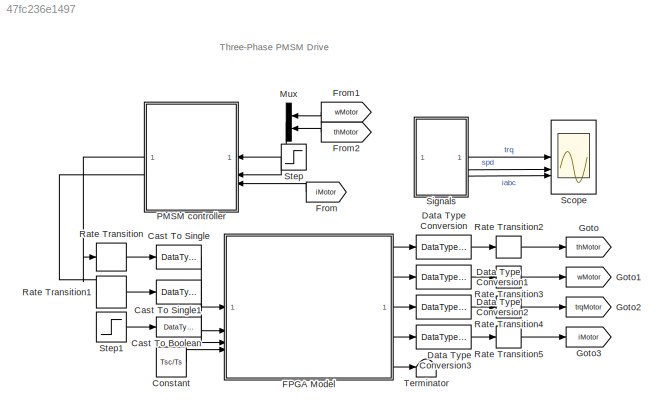
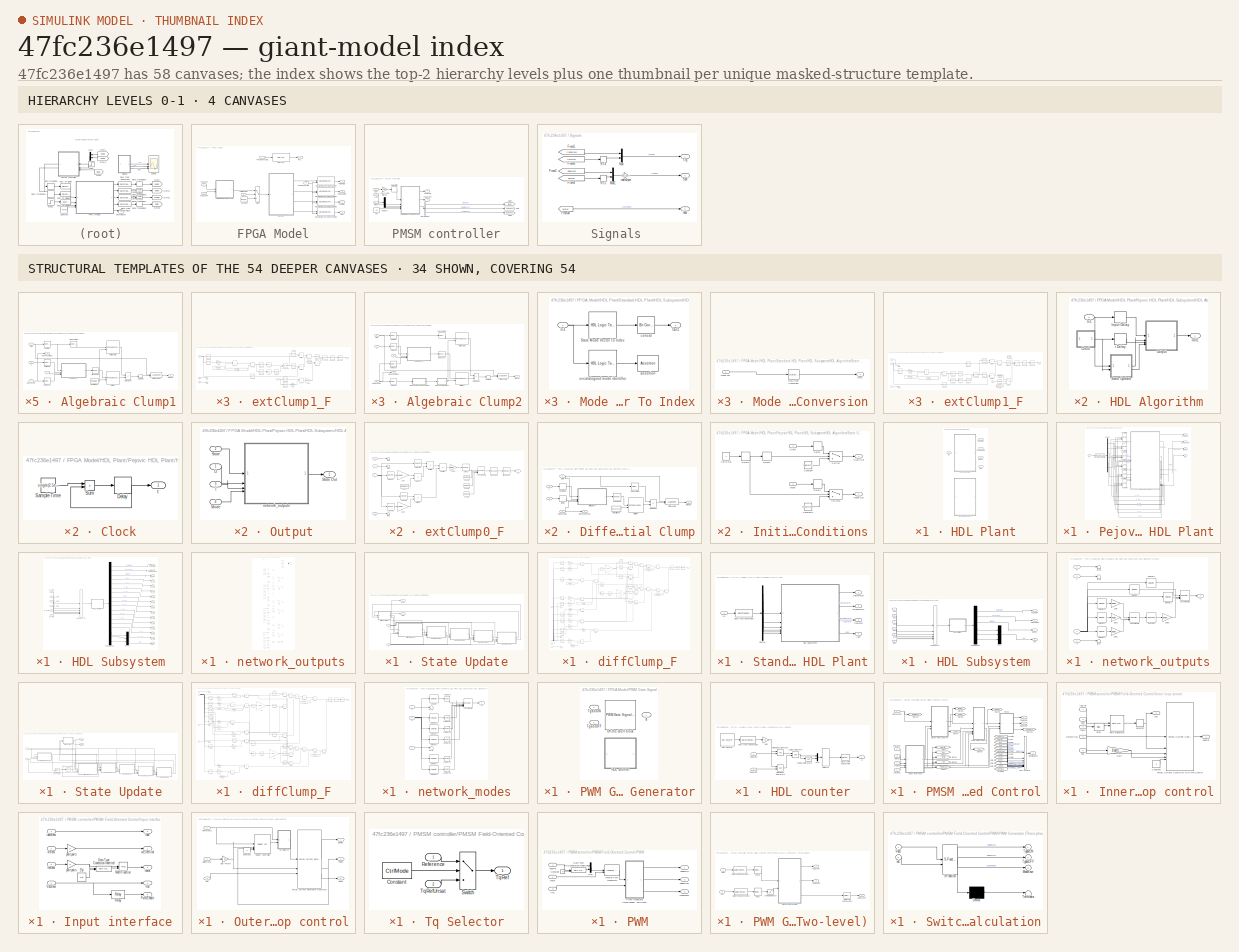
[diagram: thumbnail index - top-2 hierarchy levels (4 canvases) + 34 structural-template representatives of the remaining 54 canvases]
MODEL slx_47fc236e1497
KIND model
CONFIG AbsTol = auto
CONFIG EnableMultiTasking = off
CONFIG FixedStep = auto
CONFIG MaxStep = auto
CONFIG MinStep = auto
CONFIG PreLoadFcn = control_data;\npmsm_data;\n\navgFactor = 1;
CONFIG RelTol = 1e-3
CONFIG SampleTimeConstraint = Unconstrained
CONFIG SolverName = VariableStepAuto
CONFIG StartTime = 0.0
CONFIG StopTime = 10.0
BLOCK [DataTypeConversion] Cast To Boolean
  OutDataTypeStr = boolean
  RndMeth = Floor
  SaturateOnIntegerOverflow = off
BLOCK [DataTypeConversion] Cast To Single
  OutDataTypeStr = single
  RndMeth = Floor
  SaturateOnIntegerOverflow = off
BLOCK [DataTypeConversion] Cast To Single1
  OutDataTypeStr = single
  RndMeth = Floor
  SaturateOnIntegerOverflow = off
BLOCK [Constant] Constant
  OutDataTypeStr = uint16
  SampleTime = -1
  Value = Tsc/Ts
BLOCK [DataTypeConversion] Data Type Conversion
  RndMeth = Floor
  SaturateOnIntegerOverflow = off
BLOCK [DataTypeConversion] Data Type Conversion1
  RndMeth = Floor
  SaturateOnIntegerOverflow = off
BLOCK [DataTypeConversion] Data Type Conversion2
  RndMeth = Floor
  SaturateOnIntegerOverflow = off
BLOCK [DataTypeConversion] Data Type Conversion3
  RndMeth = Floor
  SaturateOnIntegerOverflow = off
BLOCK [SubSystem] FPGA Model
BLOCK [Constant] FPGA Model/Constant
  OutDataTypeStr = boolean
  SampleTime = -1
  Value = [0,1,0,1,0,1]
BLOCK [Inport] FPGA Model/FPGAtoCPUratio
  Port = 4
BLOCK [InportShadow] FPGA Model/FPGAtoCPUratio1
  Port = 4
BLOCK [Reference] FPGA Model/HDL Moving Average Tunable  REF=fpga_utils_lib/HDL Moving Average Tunable  (lib defined in slx_141b27237374)
  SourceBlock = fpga_utils_lib/HDL Moving Average Tunable
  SourceType = SubSystem
BLOCK [Reference] FPGA Model/HDL Moving Average Tunable1  REF=fpga_utils_lib/HDL Moving Average Tunable  (lib defined in slx_141b27237374)
  SourceBlock = fpga_utils_lib/HDL Moving Average Tunable
  SourceType = SubSystem
BLOCK [Reference] FPGA Model/HDL Moving Average Tunable2  REF=fpga_utils_lib/HDL Moving Average Tunable  (lib defined in slx_141b27237374)
  SourceBlock = fpga_utils_lib/HDL Moving Average Tunable
  SourceType = SubSystem
BLOCK [Reference] FPGA Model/HDL Moving Average Tunable3  REF=fpga_utils_lib/HDL Moving Average Tunable  (lib defined in slx_141b27237374)
  SourceBlock = fpga_utils_lib/HDL Moving Average Tunable
  SourceType = SubSystem
BLOCK [SubSystem] FPGA Model/HDL Plant
  LabelModeActiveChoice = Pejovic
  Variant = on
  VariantControl = Pejovic HDL Plant
  VariantControlMode = label
BLOCK [Outport] FPGA Model/HDL Plant/Iabc
  Port = 4
BLOCK [Inport] FPGA Model/HDL Plant/In1
BLOCK [SubSystem] FPGA Model/HDL Plant/Pejovic HDL Plant
  InitFcn = load('f1478573793584.mat');
  VariantControl = Pejovic
BLOCK [Reference] FPGA Model/HDL Plant/Pejovic HDL Plant/Controller  REF=SimscapeFPGAHIL_lib/Linearized Switch Models/Switch/Controller
  SourceBlock = SimscapeFPGAHIL_lib/Linearized Switch Models/Switch/Controller
BLOCK [Reference] FPGA Model/HDL Plant/Pejovic HDL Plant/Controller1  REF=SimscapeFPGAHIL_lib/Linearized Switch Models/Switch/Controller
  SourceBlock = SimscapeFPGAHIL_lib/Linearized Switch Models/Switch/Controller
BLOCK [Reference] FPGA Model/HDL Plant/Pejovic HDL Plant/Controller2  REF=SimscapeFPGAHIL_lib/Linearized Switch Models/Switch/Controller
  SourceBlock = SimscapeFPGAHIL_lib/Linearized Switch Models/Switch/Controller
BLOCK [Reference] FPGA Model/HDL Plant/Pejovic HDL Plant/Controller3  REF=SimscapeFPGAHIL_lib/Linearized Switch Models/Switch/Controller
  SourceBlock = SimscapeFPGAHIL_lib/Linearized Switch Models/Switch/Controller
BLOCK [Reference] FPGA Model/HDL Plant/Pejovic HDL Plant/Controller4  REF=SimscapeFPGAHIL_lib/Linearized Switch Models/Switch/Controller
  SourceBlock = SimscapeFPGAHIL_lib/Linearized Switch Models/Switch/Controller
BLOCK [Reference] FPGA Model/HDL Plant/Pejovic HDL Plant/Controller5  REF=SimscapeFPGAHIL_lib/Linearized Switch Models/Switch/Controller
  SourceBlock = SimscapeFPGAHIL_lib/Linearized Switch Models/Switch/Controller
BLOCK [Demux] FPGA Model/HDL Plant/Pejovic HDL Plant/Demux
  Outputs = 6
BLOCK [SubSystem] FPGA Model/HDL Plant/Pejovic HDL Plant/HDL Subsystem
BLOCK [SubSystem] FPGA Model/HDL Plant/Pejovic HDL Plant/HDL Subsystem/HDL Algorithm
BLOCK [SubSystem] FPGA Model/HDL Plant/Pejovic HDL Plant/HDL Subsystem/HDL Algorithm/Clock
BLOCK [Delay] FPGA Model/HDL Plant/Pejovic HDL Plant/HDL Subsystem/HDL Algorithm/Clock/Delay
  DelayLength = 1
  InputPortMap = u0
BLOCK [Constant] FPGA Model/HDL Plant/Pejovic HDL Plant/HDL Subsystem/HDL Algorithm/Clock/Sample Time
  OutDataTypeStr = single
  SampleTime = 2.5e-06
  Value = single(2.5e-06)
BLOCK [Sum] FPGA Model/HDL Plant/Pejovic HDL Plant/HDL Subsystem/HDL Algorithm/Clock/Sum
  IconShape = rectangular
  OutDataTypeStr = single
BLOCK [Outport] FPGA Model/HDL Plant/Pejovic HDL Plant/HDL Subsystem/HDL Algorithm/Clock/t
  VectorParamsAs1DForOutWhenUnconnected = off
BLOCK [Inport] FPGA Model/HDL Plant/Pejovic HDL Plant/HDL Subsystem/HDL Algorithm/In1
BLOCK [Delay] FPGA Model/HDL Plant/Pejovic HDL Plant/HDL Subsystem/HDL Algorithm/Input Delay
  DelayLength = 1
  InputPortMap = u0
BLOCK [Outport] FPGA Model/HDL Plant/Pejovic HDL Plant/HDL Subsystem/HDL Algorithm/Out1
  VectorParamsAs1DForOutWhenUnconnected = off
BLOCK [SubSystem] FPGA Model/HDL Plant/Pejovic HDL Plant/HDL Subsystem/HDL Algorithm/Output
BLOCK [Inport] FPGA Model/HDL Plant/Pejovic HDL Plant/HDL Subsystem/HDL Algorithm/Output/Mode
  Port = 4
BLOCK [Inport] FPGA Model/HDL Plant/Pejovic HDL Plant/HDL Subsystem/HDL Algorithm/Output/State
  Port = 2
BLOCK [Outport] FPGA Model/HDL Plant/Pejovic HDL Plant/HDL Subsystem/HDL Algorithm/Output/State Out
  VectorParamsAs1DForOutWhenUnconnected = off
BLOCK [Inport] FPGA Model/HDL Plant/Pejovic HDL Plant/HDL Subsystem/HDL Algorithm/Output/U
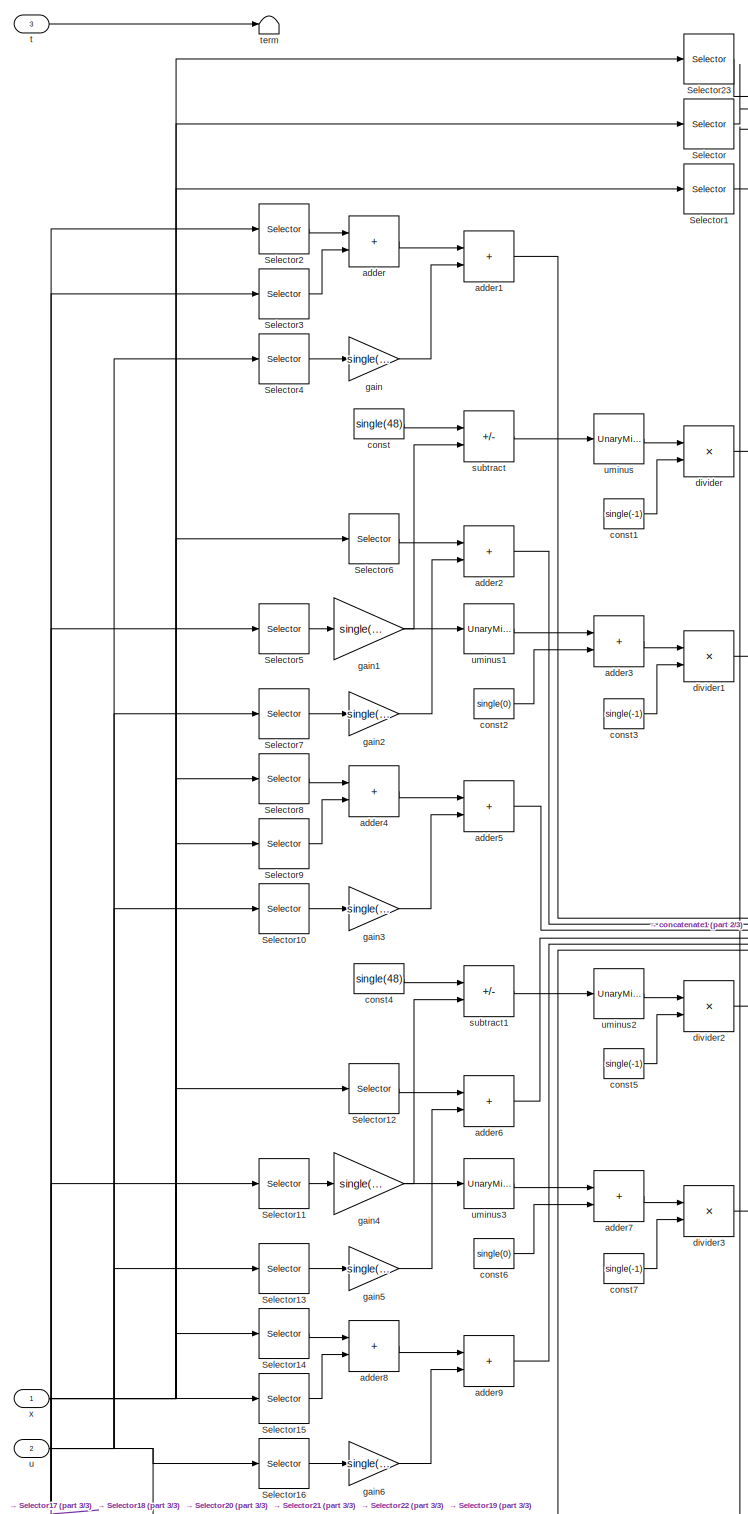
[diagram: FPGA Model/HDL Plant/Pejovic HDL Plant/HDL Subsystem/HDL Algorithm/Output/network_outputs - part 1/3, full width, middle band]
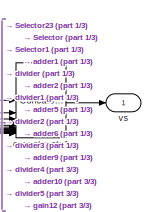
[diagram: FPGA Model/HDL Plant/Pejovic HDL Plant/HDL Subsystem/HDL Algorithm/Output/network_outputs - part 2/3, top right region]
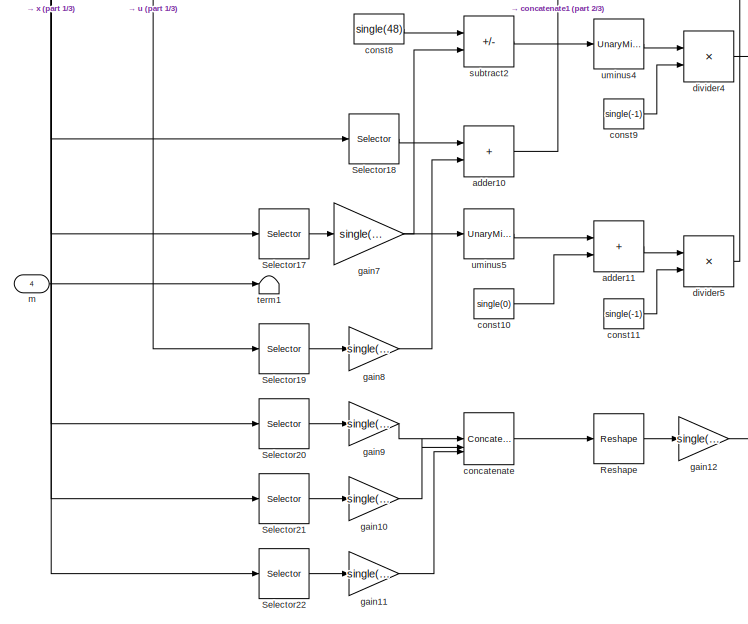
[diagram: FPGA Model/HDL Plant/Pejovic HDL Plant/HDL Subsystem/HDL Algorithm/Output/network_outputs - part 3/3, full width, bottom band]
BLOCK [SubSystem] FPGA Model/HDL Plant/Pejovic HDL Plant/HDL Subsystem/HDL Algorithm/Output/network_outputs
BLOCK [Reshape] FPGA Model/HDL Plant/Pejovic HDL Plant/HDL Subsystem/HDL Algorithm/Output/network_outputs/Reshape
  OutputDimensionality = Row vector (2-D)
BLOCK [Selector] FPGA Model/HDL Plant/Pejovic HDL Plant/HDL Subsystem/HDL Algorithm/Output/network_outputs/Selector
  IndexOptions = Index vector (dialog)
  Indices = double(7)
  OutputSizes = double(0)
  SampleTime = 2.5e-06
BLOCK [Selector] FPGA Model/HDL Plant/Pejovic HDL Plant/HDL Subsystem/HDL Algorithm/Output/network_outputs/Selector1
  IndexOptions = Index vector (dialog)
  Indices = double(9)
  OutputSizes = double(0)
  SampleTime = 2.5e-06
BLOCK [Selector] FPGA Model/HDL Plant/Pejovic HDL Plant/HDL Subsystem/HDL Algorithm/Output/network_outputs/Selector10
  IndexOptions = Index vector (dialog)
  Indices = double(2)
  OutputSizes = double(0)
  SampleTime = 2.5e-06
BLOCK [Selector] FPGA Model/HDL Plant/Pejovic HDL Plant/HDL Subsystem/HDL Algorithm/Output/network_outputs/Selector11
  IndexOptions = Index vector (dialog)
  Indices = double(2)
  OutputSizes = double(0)
  SampleTime = 2.5e-06
BLOCK [Selector] FPGA Model/HDL Plant/Pejovic HDL Plant/HDL Subsystem/HDL Algorithm/Output/network_outputs/Selector12
  IndexOptions = Index vector (dialog)
  Indices = double(2)
  OutputSizes = double(0)
  SampleTime = 2.5e-06
BLOCK [Selector] FPGA Model/HDL Plant/Pejovic HDL Plant/HDL Subsystem/HDL Algorithm/Output/network_outputs/Selector13
  IndexOptions = Index vector (dialog)
  Indices = double(2)
  OutputSizes = double(0)
  SampleTime = 2.5e-06
BLOCK [Selector] FPGA Model/HDL Plant/Pejovic HDL Plant/HDL Subsystem/HDL Algorithm/Output/network_outputs/Selector14
  IndexOptions = Index vector (dialog)
  Indices = double(3)
  OutputSizes = double(0)
  SampleTime = 2.5e-06
BLOCK [Selector] FPGA Model/HDL Plant/Pejovic HDL Plant/HDL Subsystem/HDL Algorithm/Output/network_outputs/Selector15
  IndexOptions = Index vector (dialog)
  Indices = double(6)
  OutputSizes = double(0)
  SampleTime = 2.5e-06
BLOCK [Selector] FPGA Model/HDL Plant/Pejovic HDL Plant/HDL Subsystem/HDL Algorithm/Output/network_outputs/Selector16
  IndexOptions = Index vector (dialog)
  Indices = double(3)
  OutputSizes = double(0)
  SampleTime = 2.5e-06
BLOCK [Selector] FPGA Model/HDL Plant/Pejovic HDL Plant/HDL Subsystem/HDL Algorithm/Output/network_outputs/Selector17
  IndexOptions = Index vector (dialog)
  Indices = double(3)
  OutputSizes = double(0)
  SampleTime = 2.5e-06
BLOCK [Selector] FPGA Model/HDL Plant/Pejovic HDL Plant/HDL Subsystem/HDL Algorithm/Output/network_outputs/Selector18
  IndexOptions = Index vector (dialog)
  Indices = double(3)
  OutputSizes = double(0)
  SampleTime = 2.5e-06
BLOCK [Selector] FPGA Model/HDL Plant/Pejovic HDL Plant/HDL Subsystem/HDL Algorithm/Output/network_outputs/Selector19
  IndexOptions = Index vector (dialog)
  Indices = double(3)
  OutputSizes = double(0)
  SampleTime = 2.5e-06
BLOCK [Selector] FPGA Model/HDL Plant/Pejovic HDL Plant/HDL Subsystem/HDL Algorithm/Output/network_outputs/Selector2
  IndexOptions = Index vector (dialog)
  Indices = double(1)
  OutputSizes = double(0)
  SampleTime = 2.5e-06
BLOCK [Selector] FPGA Model/HDL Plant/Pejovic HDL Plant/HDL Subsystem/HDL Algorithm/Output/network_outputs/Selector20
  IndexOptions = Index vector (dialog)
  Indices = double(4)
  OutputSizes = double(0)
  SampleTime = 2.5e-06
BLOCK [Selector] FPGA Model/HDL Plant/Pejovic HDL Plant/HDL Subsystem/HDL Algorithm/Output/network_outputs/Selector21
  IndexOptions = Index vector (dialog)
  Indices = double(5)
  OutputSizes = double(0)
  SampleTime = 2.5e-06
BLOCK [Selector] FPGA Model/HDL Plant/Pejovic HDL Plant/HDL Subsystem/HDL Algorithm/Output/network_outputs/Selector22
  IndexOptions = Index vector (dialog)
  Indices = double(6)
  OutputSizes = double(0)
  SampleTime = 2.5e-06
BLOCK [Selector] FPGA Model/HDL Plant/Pejovic HDL Plant/HDL Subsystem/HDL Algorithm/Output/network_outputs/Selector23
  IndexOptions = Index vector (dialog)
  Indices = double(8)
  OutputSizes = double(0)
  SampleTime = 2.5e-06
BLOCK [Selector] FPGA Model/HDL Plant/Pejovic HDL Plant/HDL Subsystem/HDL Algorithm/Output/network_outputs/Selector3
  IndexOptions = Index vector (dialog)
  Indices = double(4)
  OutputSizes = double(0)
  SampleTime = 2.5e-06
BLOCK [Selector] FPGA Model/HDL Plant/Pejovic HDL Plant/HDL Subsystem/HDL Algorithm/Output/network_outputs/Selector4
  IndexOptions = Index vector (dialog)
  Indices = double(1)
  OutputSizes = double(0)
  SampleTime = 2.5e-06
BLOCK [Selector] FPGA Model/HDL Plant/Pejovic HDL Plant/HDL Subsystem/HDL Algorithm/Output/network_outputs/Selector5
  IndexOptions = Index vector (dialog)
  Indices = double(1)
  OutputSizes = double(0)
  SampleTime = 2.5e-06
BLOCK [Selector] FPGA Model/HDL Plant/Pejovic HDL Plant/HDL Subsystem/HDL Algorithm/Output/network_outputs/Selector6
  IndexOptions = Index vector (dialog)
  Indices = double(1)
  OutputSizes = double(0)
  SampleTime = 2.5e-06
BLOCK [Selector] FPGA Model/HDL Plant/Pejovic HDL Plant/HDL Subsystem/HDL Algorithm/Output/network_outputs/Selector7
  IndexOptions = Index vector (dialog)
  Indices = double(1)
  OutputSizes = double(0)
  SampleTime = 2.5e-06
BLOCK [Selector] FPGA Model/HDL Plant/Pejovic HDL Plant/HDL Subsystem/HDL Algorithm/Output/network_outputs/Selector8
  IndexOptions = Index vector (dialog)
  Indices = double(2)
  OutputSizes = double(0)
  SampleTime = 2.5e-06
BLOCK [Selector] FPGA Model/HDL Plant/Pejovic HDL Plant/HDL Subsystem/HDL Algorithm/Output/network_outputs/Selector9
  IndexOptions = Index vector (dialog)
  Indices = double(5)
  OutputSizes = double(0)
  SampleTime = 2.5e-06
BLOCK [Sum] FPGA Model/HDL Plant/Pejovic HDL Plant/HDL Subsystem/HDL Algorithm/Output/network_outputs/adder
  AccumDataTypeStr = single
  IconShape = rectangular
  OutDataTypeStr = single
  SampleTime = 2.5e-06
BLOCK [Sum] FPGA Model/HDL Plant/Pejovic HDL Plant/HDL Subsystem/HDL Algorithm/Output/network_outputs/adder1
  AccumDataTypeStr = single
  IconShape = rectangular
  OutDataTypeStr = single
  SampleTime = 2.5e-06
BLOCK [Sum] FPGA Model/HDL Plant/Pejovic HDL Plant/HDL Subsystem/HDL Algorithm/Output/network_outputs/adder10
  AccumDataTypeStr = single
  IconShape = rectangular
  OutDataTypeStr = single
  SampleTime = 2.5e-06
BLOCK [Sum] FPGA Model/HDL Plant/Pejovic HDL Plant/HDL Subsystem/HDL Algorithm/Output/network_outputs/adder11
  AccumDataTypeStr = single
  IconShape = rectangular
  OutDataTypeStr = single
  SampleTime = 2.5e-06
BLOCK [Sum] FPGA Model/HDL Plant/Pejovic HDL Plant/HDL Subsystem/HDL Algorithm/Output/network_outputs/adder2
  AccumDataTypeStr = single
  IconShape = rectangular
  OutDataTypeStr = single
  SampleTime = 2.5e-06
BLOCK [Sum] FPGA Model/HDL Plant/Pejovic HDL Plant/HDL Subsystem/HDL Algorithm/Output/network_outputs/adder3
  AccumDataTypeStr = single
  IconShape = rectangular
  OutDataTypeStr = single
  SampleTime = 2.5e-06
BLOCK [Sum] FPGA Model/HDL Plant/Pejovic HDL Plant/HDL Subsystem/HDL Algorithm/Output/network_outputs/adder4
  AccumDataTypeStr = single
  IconShape = rectangular
  OutDataTypeStr = single
  SampleTime = 2.5e-06
BLOCK [Sum] FPGA Model/HDL Plant/Pejovic HDL Plant/HDL Subsystem/HDL Algorithm/Output/network_outputs/adder5
  AccumDataTypeStr = single
  IconShape = rectangular
  OutDataTypeStr = single
  SampleTime = 2.5e-06
BLOCK [Sum] FPGA Model/HDL Plant/Pejovic HDL Plant/HDL Subsystem/HDL Algorithm/Output/network_outputs/adder6
  AccumDataTypeStr = single
  IconShape = rectangular
  OutDataTypeStr = single
  SampleTime = 2.5e-06
BLOCK [Sum] FPGA Model/HDL Plant/Pejovic HDL Plant/HDL Subsystem/HDL Algorithm/Output/network_outputs/adder7
  AccumDataTypeStr = single
  IconShape = rectangular
  OutDataTypeStr = single
  SampleTime = 2.5e-06
BLOCK [Sum] FPGA Model/HDL Plant/Pejovic HDL Plant/HDL Subsystem/HDL Algorithm/Output/network_outputs/adder8
  AccumDataTypeStr = single
  IconShape = rectangular
  OutDataTypeStr = single
  SampleTime = 2.5e-06
BLOCK [Sum] FPGA Model/HDL Plant/Pejovic HDL Plant/HDL Subsystem/HDL Algorithm/Output/network_outputs/adder9
  AccumDataTypeStr = single
  IconShape = rectangular
  OutDataTypeStr = single
  SampleTime = 2.5e-06
BLOCK [Concatenate] FPGA Model/HDL Plant/Pejovic HDL Plant/HDL Subsystem/HDL Algorithm/Output/network_outputs/concatenate
  Mode = Multidimensional array
  NumInputs = 3
BLOCK [Concatenate] FPGA Model/HDL Plant/Pejovic HDL Plant/HDL Subsystem/HDL Algorithm/Output/network_outputs/concatenate1
  ConcatenateDimension = 2
  Mode = Multidimensional array
  NumInputs = 16
BLOCK [Constant] FPGA Model/HDL Plant/Pejovic HDL Plant/HDL Subsystem/HDL Algorithm/Output/network_outputs/const
  OutDataTypeStr = single
  SampleTime = 2.5e-06
  Value = single(48)
  VectorParams1D = off
BLOCK [Constant] FPGA Model/HDL Plant/Pejovic HDL Plant/HDL Subsystem/HDL Algorithm/Output/network_outputs/const1
  OutDataTypeStr = single
  SampleTime = 2.5e-06
  Value = single(-1)
  VectorParams1D = off
BLOCK [Constant] FPGA Model/HDL Plant/Pejovic HDL Plant/HDL Subsystem/HDL Algorithm/Output/network_outputs/const10
  OutDataTypeStr = single
  SampleTime = 2.5e-06
  Value = single(0)
  VectorParams1D = off
BLOCK [Constant] FPGA Model/HDL Plant/Pejovic HDL Plant/HDL Subsystem/HDL Algorithm/Output/network_outputs/const11
  OutDataTypeStr = single
  SampleTime = 2.5e-06
  Value = single(-1)
  VectorParams1D = off
BLOCK [Constant] FPGA Model/HDL Plant/Pejovic HDL Plant/HDL Subsystem/HDL Algorithm/Output/network_outputs/const2
  OutDataTypeStr = single
  SampleTime = 2.5e-06
  Value = single(0)
  VectorParams1D = off
BLOCK [Constant] FPGA Model/HDL Plant/Pejovic HDL Plant/HDL Subsystem/HDL Algorithm/Output/network_outputs/const3
  OutDataTypeStr = single
  SampleTime = 2.5e-06
  Value = single(-1)
  VectorParams1D = off
BLOCK [Constant] FPGA Model/HDL Plant/Pejovic HDL Plant/HDL Subsystem/HDL Algorithm/Output/network_outputs/const4
  OutDataTypeStr = single
  SampleTime = 2.5e-06
  Value = single(48)
  VectorParams1D = off
BLOCK [Constant] FPGA Model/HDL Plant/Pejovic HDL Plant/HDL Subsystem/HDL Algorithm/Output/network_outputs/const5
  OutDataTypeStr = single
  SampleTime = 2.5e-06
  Value = single(-1)
  VectorParams1D = off
BLOCK [Constant] FPGA Model/HDL Plant/Pejovic HDL Plant/HDL Subsystem/HDL Algorithm/Output/network_outputs/const6
  OutDataTypeStr = single
  SampleTime = 2.5e-06
  Value = single(0)
  VectorParams1D = off
BLOCK [Constant] FPGA Model/HDL Plant/Pejovic HDL Plant/HDL Subsystem/HDL Algorithm/Output/network_outputs/const7
  OutDataTypeStr = single
  SampleTime = 2.5e-06
  Value = single(-1)
  VectorParams1D = off
BLOCK [Constant] FPGA Model/HDL Plant/Pejovic HDL Plant/HDL Subsystem/HDL Algorithm/Output/network_outputs/const8
  OutDataTypeStr = single
  SampleTime = 2.5e-06
  Value = single(48)
  VectorParams1D = off
BLOCK [Constant] FPGA Model/HDL Plant/Pejovic HDL Plant/HDL Subsystem/HDL Algorithm/Output/network_outputs/const9
  OutDataTypeStr = single
  SampleTime = 2.5e-06
  Value = single(-1)
  VectorParams1D = off
BLOCK [Product] FPGA Model/HDL Plant/Pejovic HDL Plant/HDL Subsystem/HDL Algorithm/Output/network_outputs/divider
  Inputs = */
  OutDataTypeStr = single
  SampleTime = 2.5e-06
BLOCK [Product] FPGA Model/HDL Plant/Pejovic HDL Plant/HDL Subsystem/HDL Algorithm/Output/network_outputs/divider1
  Inputs = */
  OutDataTypeStr = single
  SampleTime = 2.5e-06
BLOCK [Product] FPGA Model/HDL Plant/Pejovic HDL Plant/HDL Subsystem/HDL Algorithm/Output/network_outputs/divider2
  Inputs = */
  OutDataTypeStr = single
  SampleTime = 2.5e-06
BLOCK [Product] FPGA Model/HDL Plant/Pejovic HDL Plant/HDL Subsystem/HDL Algorithm/Output/network_outputs/divider3
  Inputs = */
  OutDataTypeStr = single
  SampleTime = 2.5e-06
BLOCK [Product] FPGA Model/HDL Plant/Pejovic HDL Plant/HDL Subsystem/HDL Algorithm/Output/network_outputs/divider4
  Inputs = */
  OutDataTypeStr = single
  SampleTime = 2.5e-06
BLOCK [Product] FPGA Model/HDL Plant/Pejovic HDL Plant/HDL Subsystem/HDL Algorithm/Output/network_outputs/divider5
  Inputs = */
  OutDataTypeStr = single
  SampleTime = 2.5e-06
BLOCK [Gain] FPGA Model/HDL Plant/Pejovic HDL Plant/HDL Subsystem/HDL Algorithm/Output/network_outputs/gain
  Gain = single(-1)
  OutDataTypeStr = single
  SampleTime = 2.5e-06
BLOCK [Gain] FPGA Model/HDL Plant/Pejovic HDL Plant/HDL Subsystem/HDL Algorithm/Output/network_outputs/gain1
  Gain = single(0.001)
  OutDataTypeStr = single
  SampleTime = 2.5e-06
BLOCK [Gain] FPGA Model/HDL Plant/Pejovic HDL Plant/HDL Subsystem/HDL Algorithm/Output/network_outputs/gain10
  Gain = single(-1)
  OutDataTypeStr = single
  SampleTime = 2.5e-06
BLOCK [Gain] FPGA Model/HDL Plant/Pejovic HDL Plant/HDL Subsystem/HDL Algorithm/Output/network_outputs/gain11
  Gain = single(-1)
  OutDataTypeStr = single
  SampleTime = 2.5e-06
BLOCK [Gain] FPGA Model/HDL Plant/Pejovic HDL Plant/HDL Subsystem/HDL Algorithm/Output/network_outputs/gain12
  Gain = single(-1)
  OutDataTypeStr = single
  SampleTime = 2.5e-06
BLOCK [Gain] FPGA Model/HDL Plant/Pejovic HDL Plant/HDL Subsystem/HDL Algorithm/Output/network_outputs/gain2
  Gain = single(-1)
  OutDataTypeStr = single
  SampleTime = 2.5e-06
BLOCK [Gain] FPGA Model/HDL Plant/Pejovic HDL Plant/HDL Subsystem/HDL Algorithm/Output/network_outputs/gain3
  Gain = single(-1)
  OutDataTypeStr = single
  SampleTime = 2.5e-06
BLOCK [Gain] FPGA Model/HDL Plant/Pejovic HDL Plant/HDL Subsystem/HDL Algorithm/Output/network_outputs/gain4
  Gain = single(0.001)
  OutDataTypeStr = single
  SampleTime = 2.5e-06
BLOCK [Gain] FPGA Model/HDL Plant/Pejovic HDL Plant/HDL Subsystem/HDL Algorithm/Output/network_outputs/gain5
  Gain = single(-1)
  OutDataTypeStr = single
  SampleTime = 2.5e-06
BLOCK [Gain] FPGA Model/HDL Plant/Pejovic HDL Plant/HDL Subsystem/HDL Algorithm/Output/network_outputs/gain6
  Gain = single(-1)
  OutDataTypeStr = single
  SampleTime = 2.5e-06
BLOCK [Gain] FPGA Model/HDL Plant/Pejovic HDL Plant/HDL Subsystem/HDL Algorithm/Output/network_outputs/gain7
  Gain = single(0.001)
  OutDataTypeStr = single
  SampleTime = 2.5e-06
BLOCK [Gain] FPGA Model/HDL Plant/Pejovic HDL Plant/HDL Subsystem/HDL Algorithm/Output/network_outputs/gain8
  Gain = single(-1)
  OutDataTypeStr = single
  SampleTime = 2.5e-06
BLOCK [Gain] FPGA Model/HDL Plant/Pejovic HDL Plant/HDL Subsystem/HDL Algorithm/Output/network_outputs/gain9
  Gain = single(-1)
  OutDataTypeStr = single
  SampleTime = 2.5e-06
BLOCK [Inport] FPGA Model/HDL Plant/Pejovic HDL Plant/HDL Subsystem/HDL Algorithm/Output/network_outputs/m
  OutDataTypeStr = int32
  Port = 4
  SampleTime = 2.5e-06
BLOCK [Sum] FPGA Model/HDL Plant/Pejovic HDL Plant/HDL Subsystem/HDL Algorithm/Output/network_outputs/subtract
  AccumDataTypeStr = single
  IconShape = rectangular
  Inputs = +-
  OutDataTypeStr = single
  SampleTime = 2.5e-06
BLOCK [Sum] FPGA Model/HDL Plant/Pejovic HDL Plant/HDL Subsystem/HDL Algorithm/Output/network_outputs/subtract1
  AccumDataTypeStr = single
  IconShape = rectangular
  Inputs = +-
  OutDataTypeStr = single
  SampleTime = 2.5e-06
BLOCK [Sum] FPGA Model/HDL Plant/Pejovic HDL Plant/HDL Subsystem/HDL Algorithm/Output/network_outputs/subtract2
  AccumDataTypeStr = single
  IconShape = rectangular
  Inputs = +-
  OutDataTypeStr = single
  SampleTime = 2.5e-06
BLOCK [Inport] FPGA Model/HDL Plant/Pejovic HDL Plant/HDL Subsystem/HDL Algorithm/Output/network_outputs/t
  OutDataTypeStr = single
  Port = 3
  SampleTime = 2.5e-06
BLOCK [Terminator] FPGA Model/HDL Plant/Pejovic HDL Plant/HDL Subsystem/HDL Algorithm/Output/network_outputs/term
BLOCK [Terminator] FPGA Model/HDL Plant/Pejovic HDL Plant/HDL Subsystem/HDL Algorithm/Output/network_outputs/term1
BLOCK [Inport] FPGA Model/HDL Plant/Pejovic HDL Plant/HDL Subsystem/HDL Algorithm/Output/network_outputs/u
  OutDataTypeStr = single
  Port = 2
  PortDimensions = [6 1]
  SampleTime = 2.5e-06
BLOCK [UnaryMinus] FPGA Model/HDL Plant/Pejovic HDL Plant/HDL Subsystem/HDL Algorithm/Output/network_outputs/uminus
  SampleTime = 2.5e-06
BLOCK [UnaryMinus] FPGA Model/HDL Plant/Pejovic HDL Plant/HDL Subsystem/HDL Algorithm/Output/network_outputs/uminus1
  SampleTime = 2.5e-06
BLOCK [UnaryMinus] FPGA Model/HDL Plant/Pejovic HDL Plant/HDL Subsystem/HDL Algorithm/Output/network_outputs/uminus2
  SampleTime = 2.5e-06
BLOCK [UnaryMinus] FPGA Model/HDL Plant/Pejovic HDL Plant/HDL Subsystem/HDL Algorithm/Output/network_outputs/uminus3
  SampleTime = 2.5e-06
BLOCK [UnaryMinus] FPGA Model/HDL Plant/Pejovic HDL Plant/HDL Subsystem/HDL Algorithm/Output/network_outputs/uminus4
  SampleTime = 2.5e-06
BLOCK [UnaryMinus] FPGA Model/HDL Plant/Pejovic HDL Plant/HDL Subsystem/HDL Algorithm/Output/network_outputs/uminus5
  SampleTime = 2.5e-06
BLOCK [Outport] FPGA Model/HDL Plant/Pejovic HDL Plant/HDL Subsystem/HDL Algorithm/Output/network_outputs/vs
  OutDataTypeStr = single
  PortDimensions = [1 18]
  SampleTime = 2.5e-06
BLOCK [Inport] FPGA Model/HDL Plant/Pejovic HDL Plant/HDL Subsystem/HDL Algorithm/Output/network_outputs/x
  OutDataTypeStr = single
  PortDimensions = [12 1]
  SampleTime = 2.5e-06
BLOCK [Inport] FPGA Model/HDL Plant/Pejovic HDL Plant/HDL Subsystem/HDL Algorithm/Output/t
  Port = 3
BLOCK [SubSystem] FPGA Model/HDL Plant/Pejovic HDL Plant/HDL Subsystem/HDL Algorithm/State Update
BLOCK [SubSystem] FPGA Model/HDL Plant/Pejovic HDL Plant/HDL Subsystem/HDL Algorithm/State Update/Algebraic Clump1
BLOCK [Constant] FPGA Model/HDL Plant/Pejovic HDL Plant/HDL Subsystem/HDL Algorithm/State Update/Algebraic Clump1/Default Index
  SampleTime = 2.5e-06
  Value = fi(0,0,2,0)
BLOCK [Inport] FPGA Model/HDL Plant/Pejovic HDL Plant/HDL Subsystem/HDL Algorithm/State Update/Algebraic Clump1/Mode Vector
  Port = 3
BLOCK [Outport] FPGA Model/HDL Plant/Pejovic HDL Plant/HDL Subsystem/HDL Algorithm/State Update/Algebraic Clump1/Mode Vector Out
  Port = 2
  VectorParamsAs1DForOutWhenUnconnected = off
BLOCK [Reference] FPGA Model/HDL Plant/Pejovic HDL Plant/HDL Subsystem/HDL Algorithm/State Update/Algebraic Clump1/Multiply F  REF=hdlssclib/NFPSparseConstMultiply
  SourceBlock = hdlssclib/NFPSparseConstMultiply
BLOCK [Reference] FPGA Model/HDL Plant/Pejovic HDL Plant/HDL Subsystem/HDL Algorithm/State Update/Algebraic Clump1/Multiply State  REF=hdlssclib/NFPSparseConstMultiply
  SourceBlock = hdlssclib/NFPSparseConstMultiply
BLOCK [Selector] FPGA Model/HDL Plant/Pejovic HDL Plant/HDL Subsystem/HDL Algorithm/State Update/Algebraic Clump1/Out States
  IndexOptions = Index vector (dialog)
  Indices = [1  2  3  4]
  OutputSizes = 1
BLOCK [Sum] FPGA Model/HDL Plant/Pejovic HDL Plant/HDL Subsystem/HDL Algorithm/State Update/Algebraic Clump1/Output Sum
  IconShape = rectangular
  Inputs = +-
BLOCK [Selector] FPGA Model/HDL Plant/Pejovic HDL Plant/HDL Subsystem/HDL Algorithm/State Update/Algebraic Clump1/Owned States
  IndexOptions = Index vector (dialog)
  Indices = [1  2  3  4]
  OutputSizes = 1
BLOCK [Selector] FPGA Model/HDL Plant/Pejovic HDL Plant/HDL Subsystem/HDL Algorithm/State Update/Algebraic Clump1/Ref Inputs
  IndexOptions = Index vector (dialog)
  Indices = [1]
  OutputSizes = 1
BLOCK [Selector] FPGA Model/HDL Plant/Pejovic HDL Plant/HDL Subsystem/HDL Algorithm/State Update/Algebraic Clump1/Ref Modes
  IndexOptions = Index vector (dialog)
  Indices = [1]
  OutputSizes = 1
BLOCK [Selector] FPGA Model/HDL Plant/Pejovic HDL Plant/HDL Subsystem/HDL Algorithm/State Update/Algebraic Clump1/Ref States
  IndexOptions = Index vector (dialog)
  Indices = [7   8   9  10  11  12]
  OutputSizes = 1
BLOCK [Inport] FPGA Model/HDL Plant/Pejovic HDL Plant/HDL Subsystem/HDL Algorithm/State Update/Algebraic Clump1/State
  Port = 2
BLOCK [Assignment] FPGA Model/HDL Plant/Pejovic HDL Plant/HDL Subsystem/HDL Algorithm/State Update/Algebraic Clump1/State Assign
  IndexOptions = Index vector (dialog)
  Indices = [7   8   9  10]
  OutputSizes = 1
BLOCK [Outport] FPGA Model/HDL Plant/Pejovic HDL Plant/HDL Subsystem/HDL Algorithm/State Update/Algebraic Clump1/State Out
  VectorParamsAs1DForOutWhenUnconnected = off
BLOCK [Inport] FPGA Model/HDL Plant/Pejovic HDL Plant/HDL Subsystem/HDL Algorithm/State Update/Algebraic Clump1/U
BLOCK [SubSystem] FPGA Model/HDL Plant/Pejovic HDL Plant/HDL Subsystem/HDL Algorithm/State Update/Algebraic Clump1/extClump0_F
BLOCK [Reshape] FPGA Model/HDL Plant/Pejovic HDL Plant/HDL Subsystem/HDL Algorithm/State Update/Algebraic Clump1/extClump0_F/Reshape
  OutputDimensionality = Column vector (2-D)
BLOCK [Selector] FPGA Model/HDL Plant/Pejovic HDL Plant/HDL Subsystem/HDL Algorithm/State Update/Algebraic Clump1/extClump0_F/Selector
  IndexOptions = Index vector (dialog)
  Indices = double(5)
  OutputSizes = double(0)
  SampleTime = 2.5e-06
BLOCK [Selector] FPGA Model/HDL Plant/Pejovic HDL Plant/HDL Subsystem/HDL Algorithm/State Update/Algebraic Clump1/extClump0_F/Selector1
  IndexOptions = Index vector (dialog)
  Indices = double(6)
  OutputSizes = double(0)
  SampleTime = 2.5e-06
BLOCK [Selector] FPGA Model/HDL Plant/Pejovic HDL Plant/HDL Subsystem/HDL Algorithm/State Update/Algebraic Clump1/extClump0_F/Selector2
  IndexOptions = Index vector (dialog)
  Indices = double(6)
  OutputSizes = double(0)
  SampleTime = 2.5e-06
BLOCK [Selector] FPGA Model/HDL Plant/Pejovic HDL Plant/HDL Subsystem/HDL Algorithm/State Update/Algebraic Clump1/extClump0_F/Selector3
  IndexOptions = Index vector (dialog)
  Indices = double(5)
  OutputSizes = double(0)
  SampleTime = 2.5e-06
BLOCK [Sum] FPGA Model/HDL Plant/Pejovic HDL Plant/HDL Subsystem/HDL Algorithm/State Update/Algebraic Clump1/extClump0_F/adder
  AccumDataTypeStr = single
  IconShape = rectangular
  OutDataTypeStr = single
  SampleTime = 2.5e-06
BLOCK [Concatenate] FPGA Model/HDL Plant/Pejovic HDL Plant/HDL Subsystem/HDL Algorithm/State Update/Algebraic Clump1/extClump0_F/concatenate
  Mode = Multidimensional array
  NumInputs = 4
BLOCK [Constant] FPGA Model/HDL Plant/Pejovic HDL Plant/HDL Subsystem/HDL Algorithm/State Update/Algebraic Clump1/extClump0_F/const
  OutDataTypeStr = single
  SampleTime = 2.5e-06
  Value = single(0.03)
  VectorParams1D = off
BLOCK [Constant] FPGA Model/HDL Plant/Pejovic HDL Plant/HDL Subsystem/HDL Algorithm/State Update/Algebraic Clump1/extClump0_F/const1
  OutDataTypeStr = single
  SampleTime = 2.5e-06
  Value = single(0)
  VectorParams1D = off
BLOCK [Constant] FPGA Model/HDL Plant/Pejovic HDL Plant/HDL Subsystem/HDL Algorithm/State Update/Algebraic Clump1/extClump0_F/const2
  OutDataTypeStr = single
  SampleTime = 2.5e-06
  Value = single(0)
  VectorParams1D = off
BLOCK [Constant] FPGA Model/HDL Plant/Pejovic HDL Plant/HDL Subsystem/HDL Algorithm/State Update/Algebraic Clump1/extClump0_F/const3
  OutDataTypeStr = single
  SampleTime = 2.5e-06
  Value = single(0)
  VectorParams1D = off
BLOCK [Gain] FPGA Model/HDL Plant/Pejovic HDL Plant/HDL Subsystem/HDL Algorithm/State Update/Algebraic Clump1/extClump0_F/gain
  Gain = single(0.0002)
  OutDataTypeStr = single
  SampleTime = 2.5e-06
BLOCK [Gain] FPGA Model/HDL Plant/Pejovic HDL Plant/HDL Subsystem/HDL Algorithm/State Update/Algebraic Clump1/extClump0_F/gain1
  Gain = single(0.0002)
  OutDataTypeStr = single
  SampleTime = 2.5e-06
BLOCK [Gain] FPGA Model/HDL Plant/Pejovic HDL Plant/HDL Subsystem/HDL Algorithm/State Update/Algebraic Clump1/extClump0_F/gain2
  Gain = single(9)
  OutDataTypeStr = single
  SampleTime = 2.5e-06
BLOCK [Inport] FPGA Model/HDL Plant/Pejovic HDL Plant/HDL Subsystem/HDL Algorithm/State Update/Algebraic Clump1/extClump0_F/m
  OutDataTypeStr = int32
  Port = 4
  SampleTime = 2.5e-06
BLOCK [Product] FPGA Model/HDL Plant/Pejovic HDL Plant/HDL Subsystem/HDL Algorithm/State Update/Algebraic Clump1/extClump0_F/multiplier
  Inputs = **
  OutDataTypeStr = single
  SampleTime = 2.5e-06
BLOCK [Product] FPGA Model/HDL Plant/Pejovic HDL Plant/HDL Subsystem/HDL Algorithm/State Update/Algebraic Clump1/extClump0_F/multiplier1
  Inputs = **
  OutDataTypeStr = single
  SampleTime = 2.5e-06
BLOCK [Sum] FPGA Model/HDL Plant/Pejovic HDL Plant/HDL Subsystem/HDL Algorithm/State Update/Algebraic Clump1/extClump0_F/subtract
  AccumDataTypeStr = single
  IconShape = rectangular
  Inputs = +-
  OutDataTypeStr = single
  SampleTime = 2.5e-06
BLOCK [Inport] FPGA Model/HDL Plant/Pejovic HDL Plant/HDL Subsystem/HDL Algorithm/State Update/Algebraic Clump1/extClump0_F/t
  OutDataTypeStr = single
  Port = 3
  SampleTime = 2.5e-06
BLOCK [Terminator] FPGA Model/HDL Plant/Pejovic HDL Plant/HDL Subsystem/HDL Algorithm/State Update/Algebraic Clump1/extClump0_F/term
BLOCK [Terminator] FPGA Model/HDL Plant/Pejovic HDL Plant/HDL Subsystem/HDL Algorithm/State Update/Algebraic Clump1/extClump0_F/term1
BLOCK [Terminator] FPGA Model/HDL Plant/Pejovic HDL Plant/HDL Subsystem/HDL Algorithm/State Update/Algebraic Clump1/extClump0_F/term2
BLOCK [Math] FPGA Model/HDL Plant/Pejovic HDL Plant/HDL Subsystem/HDL Algorithm/State Update/Algebraic Clump1/extClump0_F/transpose
  Operator = transpose
BLOCK [Inport] FPGA Model/HDL Plant/Pejovic HDL Plant/HDL Subsystem/HDL Algorithm/State Update/Algebraic Clump1/extClump0_F/u
  OutDataTypeStr = single
  Port = 2
  SampleTime = 2.5e-06
BLOCK [UnaryMinus] FPGA Model/HDL Plant/Pejovic HDL Plant/HDL Subsystem/HDL Algorithm/State Update/Algebraic Clump1/extClump0_F/uminus
  SampleTime = 2.5e-06
BLOCK [Outport] FPGA Model/HDL Plant/Pejovic HDL Plant/HDL Subsystem/HDL Algorithm/State Update/Algebraic Clump1/extClump0_F/vs
  OutDataTypeStr = single
  PortDimensions = [1 4]
  SampleTime = 2.5e-06
BLOCK [Inport] FPGA Model/HDL Plant/Pejovic HDL Plant/HDL Subsystem/HDL Algorithm/State Update/Algebraic Clump1/extClump0_F/x
  OutDataTypeStr = single
  PortDimensions = [6 1]
  SampleTime = 2.5e-06
BLOCK [Inport] FPGA Model/HDL Plant/Pejovic HDL Plant/HDL Subsystem/HDL Algorithm/State Update/Algebraic Clump1/t
  Port = 4
BLOCK [Math] FPGA Model/HDL Plant/Pejovic HDL Plant/HDL Subsystem/HDL Algorithm/State Update/Algebraic Clump1/transpose
  Operator = transpose
  RndMeth = Zero
  SignedPower = on
BLOCK [SubSystem] FPGA Model/HDL Plant/Pejovic HDL Plant/HDL Subsystem/HDL Algorithm/State Update/Algebraic Clump2
BLOCK [Constant] FPGA Model/HDL Plant/Pejovic HDL Plant/HDL Subsystem/HDL Algorithm/State Update/Algebraic Clump2/Default Index
  SampleTime = 2.5e-06
  Value = fi(0,0,2,0)
BLOCK [Inport] FPGA Model/HDL Plant/Pejovic HDL Plant/HDL Subsystem/HDL Algorithm/State Update/Algebraic Clump2/Mode Vector
  Port = 3
BLOCK [Outport] FPGA Model/HDL Plant/Pejovic HDL Plant/HDL Subsystem/HDL Algorithm/State Update/Algebraic Clump2/Mode Vector Out
  Port = 2
  VectorParamsAs1DForOutWhenUnconnected = off
BLOCK [Reference] FPGA Model/HDL Plant/Pejovic HDL Plant/HDL Subsystem/HDL Algorithm/State Update/Algebraic Clump2/Multiply F  REF=hdlssclib/NFPSparseConstMultiply
  SourceBlock = hdlssclib/NFPSparseConstMultiply
BLOCK [Reference] FPGA Model/HDL Plant/Pejovic HDL Plant/HDL Subsystem/HDL Algorithm/State Update/Algebraic Clump2/Multiply State  REF=hdlssclib/NFPSparseConstMultiply
  SourceBlock = hdlssclib/NFPSparseConstMultiply
BLOCK [Selector] FPGA Model/HDL Plant/Pejovic HDL Plant/HDL Subsystem/HDL Algorithm/State Update/Algebraic Clump2/Out States
  IndexOptions = Index vector (dialog)
  Indices = [1  2]
  OutputSizes = 1
BLOCK [Sum] FPGA Model/HDL Plant/Pejovic HDL Plant/HDL Subsystem/HDL Algorithm/State Update/Algebraic Clump2/Output Sum
  IconShape = rectangular
  Inputs = +-
BLOCK [Selector] FPGA Model/HDL Plant/Pejovic HDL Plant/HDL Subsystem/HDL Algorithm/State Update/Algebraic Clump2/Owned States
  IndexOptions = Index vector (dialog)
  Indices = [1  2]
  OutputSizes = 1
BLOCK [Selector] FPGA Model/HDL Plant/Pejovic HDL Plant/HDL Subsystem/HDL Algorithm/State Update/Algebraic Clump2/Ref Inputs
  IndexOptions = Index vector (dialog)
  Indices = [6  3]
  OutputSizes = 1
BLOCK [Selector] FPGA Model/HDL Plant/Pejovic HDL Plant/HDL Subsystem/HDL Algorithm/State Update/Algebraic Clump2/Ref Modes
  IndexOptions = Index vector (dialog)
  Indices = [1]
  OutputSizes = 1
BLOCK [Selector] FPGA Model/HDL Plant/Pejovic HDL Plant/HDL Subsystem/HDL Algorithm/State Update/Algebraic Clump2/Ref States
  IndexOptions = Index vector (dialog)
  Indices = [3   6  10  11  12]
  OutputSizes = 1
BLOCK [Inport] FPGA Model/HDL Plant/Pejovic HDL Plant/HDL Subsystem/HDL Algorithm/State Update/Algebraic Clump2/State
  Port = 2
BLOCK [Assignment] FPGA Model/HDL Plant/Pejovic HDL Plant/HDL Subsystem/HDL Algorithm/State Update/Algebraic Clump2/State Assign
  IndexOptions = Index vector (dialog)
  Indices = [3  6]
  OutputSizes = 1
BLOCK [Outport] FPGA Model/HDL Plant/Pejovic HDL Plant/HDL Subsystem/HDL Algorithm/State Update/Algebraic Clump2/State Out
  VectorParamsAs1DForOutWhenUnconnected = off
BLOCK [Inport] FPGA Model/HDL Plant/Pejovic HDL Plant/HDL Subsystem/HDL Algorithm/State Update/Algebraic Clump2/U
BLOCK [SubSystem] FPGA Model/HDL Plant/Pejovic HDL Plant/HDL Subsystem/HDL Algorithm/State Update/Algebraic Clump2/extClump1_F
BLOCK [Reshape] FPGA Model/HDL Plant/Pejovic HDL Plant/HDL Subsystem/HDL Algorithm/State Update/Algebraic Clump2/extClump1_F/Reshape
  OutputDimensionality = Column vector (2-D)
BLOCK [Selector] FPGA Model/HDL Plant/Pejovic HDL Plant/HDL Subsystem/HDL Algorithm/State Update/Algebraic Clump2/extClump1_F/Selector
  IndexOptions = Index vector (dialog)
  Indices = double(3)
  OutputSizes = double(0)
  SampleTime = 2.5e-06
BLOCK [Selector] FPGA Model/HDL Plant/Pejovic HDL Plant/HDL Subsystem/HDL Algorithm/State Update/Algebraic Clump2/extClump1_F/Selector1
  IndexOptions = Index vector (dialog)
  Indices = double(3)
  OutputSizes = double(0)
  SampleTime = 2.5e-06
BLOCK [Selector] FPGA Model/HDL Plant/Pejovic HDL Plant/HDL Subsystem/HDL Algorithm/State Update/Algebraic Clump2/extClump1_F/Selector2
  IndexOptions = Index vector (dialog)
  Indices = double(3)
  OutputSizes = double(0)
  SampleTime = 2.5e-06
BLOCK [Selector] FPGA Model/HDL Plant/Pejovic HDL Plant/HDL Subsystem/HDL Algorithm/State Update/Algebraic Clump2/extClump1_F/Selector3
  IndexOptions = Index vector (dialog)
  Indices = double(1)
  OutputSizes = double(0)
  SampleTime = 2.5e-06
BLOCK [Selector] FPGA Model/HDL Plant/Pejovic HDL Plant/HDL Subsystem/HDL Algorithm/State Update/Algebraic Clump2/extClump1_F/Selector4
  IndexOptions = Index vector (dialog)
  Indices = double(2)
  OutputSizes = double(0)
  SampleTime = 2.5e-06
BLOCK [Selector] FPGA Model/HDL Plant/Pejovic HDL Plant/HDL Subsystem/HDL Algorithm/State Update/Algebraic Clump2/extClump1_F/Selector5
  IndexOptions = Index vector (dialog)
  Indices = double(1)
  OutputSizes = double(0)
  SampleTime = 2.5e-06
BLOCK [Selector] FPGA Model/HDL Plant/Pejovic HDL Plant/HDL Subsystem/HDL Algorithm/State Update/Algebraic Clump2/extClump1_F/Selector6
  IndexOptions = Index vector (dialog)
  Indices = double(4)
  OutputSizes = double(0)
  SampleTime = 2.5e-06
BLOCK [Selector] FPGA Model/HDL Plant/Pejovic HDL Plant/HDL Subsystem/HDL Algorithm/State Update/Algebraic Clump2/extClump1_F/Selector7
  IndexOptions = Index vector (dialog)
  Indices = double(2)
  OutputSizes = double(0)
  SampleTime = 2.5e-06
BLOCK [Selector] FPGA Model/HDL Plant/Pejovic HDL Plant/HDL Subsystem/HDL Algorithm/State Update/Algebraic Clump2/extClump1_F/Selector8
  IndexOptions = Index vector (dialog)
  Indices = double(5)
  OutputSizes = double(0)
  SampleTime = 2.5e-06
BLOCK [Sum] FPGA Model/HDL Plant/Pejovic HDL Plant/HDL Subsystem/HDL Algorithm/State Update/Algebraic Clump2/extClump1_F/adder
  AccumDataTypeStr = single
  IconShape = rectangular
  OutDataTypeStr = single
  SampleTime = 2.5e-06
BLOCK [Sum] FPGA Model/HDL Plant/Pejovic HDL Plant/HDL Subsystem/HDL Algorithm/State Update/Algebraic Clump2/extClump1_F/adder1
  AccumDataTypeStr = single
  IconShape = rectangular
  OutDataTypeStr = single
  SampleTime = 2.5e-06
BLOCK [Sum] FPGA Model/HDL Plant/Pejovic HDL Plant/HDL Subsystem/HDL Algorithm/State Update/Algebraic Clump2/extClump1_F/adder2
  AccumDataTypeStr = single
  IconShape = rectangular
  OutDataTypeStr = single
  SampleTime = 2.5e-06
BLOCK [Sum] FPGA Model/HDL Plant/Pejovic HDL Plant/HDL Subsystem/HDL Algorithm/State Update/Algebraic Clump2/extClump1_F/adder3
  AccumDataTypeStr = single
  IconShape = rectangular
  OutDataTypeStr = single
  SampleTime = 2.5e-06
BLOCK [Sum] FPGA Model/HDL Plant/Pejovic HDL Plant/HDL Subsystem/HDL Algorithm/State Update/Algebraic Clump2/extClump1_F/adder4
  AccumDataTypeStr = single
  IconShape = rectangular
  OutDataTypeStr = single
  SampleTime = 2.5e-06
BLOCK [Concatenate] FPGA Model/HDL Plant/Pejovic HDL Plant/HDL Subsystem/HDL Algorithm/State Update/Algebraic Clump2/extClump1_F/concatenate
  ConcatenateDimension = 2
  Mode = Multidimensional array
BLOCK [Concatenate] FPGA Model/HDL Plant/Pejovic HDL Plant/HDL Subsystem/HDL Algorithm/State Update/Algebraic Clump2/extClump1_F/concatenate1
  Mode = Multidimensional array
BLOCK [Constant] FPGA Model/HDL Plant/Pejovic HDL Plant/HDL Subsystem/HDL Algorithm/State Update/Algebraic Clump2/extClump1_F/const
  OutDataTypeStr = single
  SampleTime = 2.5e-06
  Value = single(-1.5707963705062866)
  VectorParams1D = off
BLOCK [Constant] FPGA Model/HDL Plant/Pejovic HDL Plant/HDL Subsystem/HDL Algorithm/State Update/Algebraic Clump2/extClump1_F/const1
  OutDataTypeStr = single
  SampleTime = 2.5e-06
  Value = single([0 -2.094395160675049 2.094395160675049])
  VectorParams1D = off
BLOCK [Constant] FPGA Model/HDL Plant/Pejovic HDL Plant/HDL Subsystem/HDL Algorithm/State Update/Algebraic Clump2/extClump1_F/const2
  OutDataTypeStr = single
  SampleTime = 2.5e-06
  Value = single(-48)
  VectorParams1D = off
BLOCK [Trigonometry] FPGA Model/HDL Plant/Pejovic HDL Plant/HDL Subsystem/HDL Algorithm/State Update/Algebraic Clump2/extClump1_F/cos
  Operator = cos
  SampleTime = 2.5e-06
BLOCK [Gain] FPGA Model/HDL Plant/Pejovic HDL Plant/HDL Subsystem/HDL Algorithm/State Update/Algebraic Clump2/extClump1_F/gain
  Gain = single(6)
  OutDataTypeStr = single
  SampleTime = 2.5e-06
BLOCK [Gain] FPGA Model/HDL Plant/Pejovic HDL Plant/HDL Subsystem/HDL Algorithm/State Update/Algebraic Clump2/extClump1_F/gain1
  Gain = single(-1)
  OutDataTypeStr = single
  SampleTime = 2.5e-06
BLOCK [Gain] FPGA Model/HDL Plant/Pejovic HDL Plant/HDL Subsystem/HDL Algorithm/State Update/Algebraic Clump2/extClump1_F/gain2
  Gain = single(0.001)
  OutDataTypeStr = single
  SampleTime = 2.5e-06
BLOCK [Inport] FPGA Model/HDL Plant/Pejovic HDL Plant/HDL Subsystem/HDL Algorithm/State Update/Algebraic Clump2/extClump1_F/m
  OutDataTypeStr = int32
  Port = 4
  SampleTime = 2.5e-06
BLOCK [Product] FPGA Model/HDL Plant/Pejovic HDL Plant/HDL Subsystem/HDL Algorithm/State Update/Algebraic Clump2/extClump1_F/multiplier
  Inputs = **
  OutDataTypeStr = single
  SampleTime = 2.5e-06
BLOCK [Product] FPGA Model/HDL Plant/Pejovic HDL Plant/HDL Subsystem/HDL Algorithm/State Update/Algebraic Clump2/extClump1_F/multiplier1
  Inputs = **
  OutDataTypeStr = single
  SampleTime = 2.5e-06
BLOCK [Trigonometry] FPGA Model/HDL Plant/Pejovic HDL Plant/HDL Subsystem/HDL Algorithm/State Update/Algebraic Clump2/extClump1_F/sin
  SampleTime = 2.5e-06
BLOCK [Inport] FPGA Model/HDL Plant/Pejovic HDL Plant/HDL Subsystem/HDL Algorithm/State Update/Algebraic Clump2/extClump1_F/t
  OutDataTypeStr = single
  Port = 3
  SampleTime = 2.5e-06
BLOCK [Terminator] FPGA Model/HDL Plant/Pejovic HDL Plant/HDL Subsystem/HDL Algorithm/State Update/Algebraic Clump2/extClump1_F/term
BLOCK [Terminator] FPGA Model/HDL Plant/Pejovic HDL Plant/HDL Subsystem/HDL Algorithm/State Update/Algebraic Clump2/extClump1_F/term1
BLOCK [Math] FPGA Model/HDL Plant/Pejovic HDL Plant/HDL Subsystem/HDL Algorithm/State Update/Algebraic Clump2/extClump1_F/transpose
  Operator = transpose
BLOCK [Inport] FPGA Model/HDL Plant/Pejovic HDL Plant/HDL Subsystem/HDL Algorithm/State Update/Algebraic Clump2/extClump1_F/u
  OutDataTypeStr = single
  Port = 2
  PortDimensions = [2 1]
  SampleTime = 2.5e-06
BLOCK [UnaryMinus] FPGA Model/HDL Plant/Pejovic HDL Plant/HDL Subsystem/HDL Algorithm/State Update/Algebraic Clump2/extClump1_F/uminus
  SampleTime = 2.5e-06
BLOCK [UnaryMinus] FPGA Model/HDL Plant/Pejovic HDL Plant/HDL Subsystem/HDL Algorithm/State Update/Algebraic Clump2/extClump1_F/uminus1
  SampleTime = 2.5e-06
BLOCK [Outport] FPGA Model/HDL Plant/Pejovic HDL Plant/HDL Subsystem/HDL Algorithm/State Update/Algebraic Clump2/extClump1_F/vs
  OutDataTypeStr = single
  PortDimensions = [1 2]
  SampleTime = 2.5e-06
BLOCK [Inport] FPGA Model/HDL Plant/Pejovic HDL Plant/HDL Subsystem/HDL Algorithm/State Update/Algebraic Clump2/extClump1_F/x
  OutDataTypeStr = single
  PortDimensions = [5 1]
  SampleTime = 2.5e-06
BLOCK [Inport] FPGA Model/HDL Plant/Pejovic HDL Plant/HDL Subsystem/HDL Algorithm/State Update/Algebraic Clump2/t
  Port = 4
BLOCK [Math] FPGA Model/HDL Plant/Pejovic HDL Plant/HDL Subsystem/HDL Algorithm/State Update/Algebraic Clump2/transpose
  Operator = transpose
  RndMeth = Zero
  SignedPower = on
BLOCK [SubSystem] FPGA Model/HDL Plant/Pejovic HDL Plant/HDL Subsystem/HDL Algorithm/State Update/Algebraic Clump3
BLOCK [Constant] FPGA Model/HDL Plant/Pejovic HDL Plant/HDL Subsystem/HDL Algorithm/State Update/Algebraic Clump3/Default Index
  SampleTime = 2.5e-06
  Value = fi(0,0,2,0)
BLOCK [Inport] FPGA Model/HDL Plant/Pejovic HDL Plant/HDL Subsystem/HDL Algorithm/State Update/Algebraic Clump3/Mode Vector
  Port = 3
BLOCK [Outport] FPGA Model/HDL Plant/Pejovic HDL Plant/HDL Subsystem/HDL Algorithm/State Update/Algebraic Clump3/Mode Vector Out
  Port = 2
  VectorParamsAs1DForOutWhenUnconnected = off
BLOCK [Reference] FPGA Model/HDL Plant/Pejovic HDL Plant/HDL Subsystem/HDL Algorithm/State Update/Algebraic Clump3/Multiply F  REF=hdlssclib/NFPSparseConstMultiply
  SourceBlock = hdlssclib/NFPSparseConstMultiply
BLOCK [Reference] FPGA Model/HDL Plant/Pejovic HDL Plant/HDL Subsystem/HDL Algorithm/State Update/Algebraic Clump3/Multiply State  REF=hdlssclib/NFPSparseConstMultiply
  SourceBlock = hdlssclib/NFPSparseConstMultiply
BLOCK [Selector] FPGA Model/HDL Plant/Pejovic HDL Plant/HDL Subsystem/HDL Algorithm/State Update/Algebraic Clump3/Out States
  IndexOptions = Index vector (dialog)
  Indices = [1  2]
  OutputSizes = 1
BLOCK [Sum] FPGA Model/HDL Plant/Pejovic HDL Plant/HDL Subsystem/HDL Algorithm/State Update/Algebraic Clump3/Output Sum
  IconShape = rectangular
  Inputs = +-
BLOCK [Selector] FPGA Model/HDL Plant/Pejovic HDL Plant/HDL Subsystem/HDL Algorithm/State Update/Algebraic Clump3/Owned States
  IndexOptions = Index vector (dialog)
  Indices = [1  2]
  OutputSizes = 1
BLOCK [Selector] FPGA Model/HDL Plant/Pejovic HDL Plant/HDL Subsystem/HDL Algorithm/State Update/Algebraic Clump3/Ref Inputs
  IndexOptions = Index vector (dialog)
  Indices = [5  2]
  OutputSizes = 1
BLOCK [Selector] FPGA Model/HDL Plant/Pejovic HDL Plant/HDL Subsystem/HDL Algorithm/State Update/Algebraic Clump3/Ref Modes
  IndexOptions = Index vector (dialog)
  Indices = [1]
  OutputSizes = 1
BLOCK [Selector] FPGA Model/HDL Plant/Pejovic HDL Plant/HDL Subsystem/HDL Algorithm/State Update/Algebraic Clump3/Ref States
  IndexOptions = Index vector (dialog)
  Indices = [2   5  10  11  12]
  OutputSizes = 1
BLOCK [Inport] FPGA Model/HDL Plant/Pejovic HDL Plant/HDL Subsystem/HDL Algorithm/State Update/Algebraic Clump3/State
  Port = 2
BLOCK [Assignment] FPGA Model/HDL Plant/Pejovic HDL Plant/HDL Subsystem/HDL Algorithm/State Update/Algebraic Clump3/State Assign
  IndexOptions = Index vector (dialog)
  Indices = [2  5]
  OutputSizes = 1
BLOCK [Outport] FPGA Model/HDL Plant/Pejovic HDL Plant/HDL Subsystem/HDL Algorithm/State Update/Algebraic Clump3/State Out
  VectorParamsAs1DForOutWhenUnconnected = off
BLOCK [Inport] FPGA Model/HDL Plant/Pejovic HDL Plant/HDL Subsystem/HDL Algorithm/State Update/Algebraic Clump3/U
BLOCK [SubSystem] FPGA Model/HDL Plant/Pejovic HDL Plant/HDL Subsystem/HDL Algorithm/State Update/Algebraic Clump3/extClump2_F
BLOCK [Reshape] FPGA Model/HDL Plant/Pejovic HDL Plant/HDL Subsystem/HDL Algorithm/State Update/Algebraic Clump3/extClump2_F/Reshape
  OutputDimensionality = Column vector (2-D)
BLOCK [Selector] FPGA Model/HDL Plant/Pejovic HDL Plant/HDL Subsystem/HDL Algorithm/State Update/Algebraic Clump3/extClump2_F/Selector
  IndexOptions = Index vector (dialog)
  Indices = double(3)
  OutputSizes = double(0)
  SampleTime = 2.5e-06
BLOCK [Selector] FPGA Model/HDL Plant/Pejovic HDL Plant/HDL Subsystem/HDL Algorithm/State Update/Algebraic Clump3/extClump2_F/Selector1
  IndexOptions = Index vector (dialog)
  Indices = double(2)
  OutputSizes = double(0)
  SampleTime = 2.5e-06
BLOCK [Selector] FPGA Model/HDL Plant/Pejovic HDL Plant/HDL Subsystem/HDL Algorithm/State Update/Algebraic Clump3/extClump2_F/Selector2
  IndexOptions = Index vector (dialog)
  Indices = double(2)
  OutputSizes = double(0)
  SampleTime = 2.5e-06
BLOCK [Selector] FPGA Model/HDL Plant/Pejovic HDL Plant/HDL Subsystem/HDL Algorithm/State Update/Algebraic Clump3/extClump2_F/Selector3
  IndexOptions = Index vector (dialog)
  Indices = double(1)
  OutputSizes = double(0)
  SampleTime = 2.5e-06
BLOCK [Selector] FPGA Model/HDL Plant/Pejovic HDL Plant/HDL Subsystem/HDL Algorithm/State Update/Algebraic Clump3/extClump2_F/Selector4
  IndexOptions = Index vector (dialog)
  Indices = double(2)
  OutputSizes = double(0)
  SampleTime = 2.5e-06
BLOCK [Selector] FPGA Model/HDL Plant/Pejovic HDL Plant/HDL Subsystem/HDL Algorithm/State Update/Algebraic Clump3/extClump2_F/Selector5
  IndexOptions = Index vector (dialog)
  Indices = double(1)
  OutputSizes = double(0)
  SampleTime = 2.5e-06
BLOCK [Selector] FPGA Model/HDL Plant/Pejovic HDL Plant/HDL Subsystem/HDL Algorithm/State Update/Algebraic Clump3/extClump2_F/Selector6
  IndexOptions = Index vector (dialog)
  Indices = double(4)
  OutputSizes = double(0)
  SampleTime = 2.5e-06
BLOCK [Selector] FPGA Model/HDL Plant/Pejovic HDL Plant/HDL Subsystem/HDL Algorithm/State Update/Algebraic Clump3/extClump2_F/Selector7
  IndexOptions = Index vector (dialog)
  Indices = double(2)
  OutputSizes = double(0)
  SampleTime = 2.5e-06
BLOCK [Selector] FPGA Model/HDL Plant/Pejovic HDL Plant/HDL Subsystem/HDL Algorithm/State Update/Algebraic Clump3/extClump2_F/Selector8
  IndexOptions = Index vector (dialog)
  Indices = double(5)
  OutputSizes = double(0)
  SampleTime = 2.5e-06
BLOCK [Sum] FPGA Model/HDL Plant/Pejovic HDL Plant/HDL Subsystem/HDL Algorithm/State Update/Algebraic Clump3/extClump2_F/adder
  AccumDataTypeStr = single
  IconShape = rectangular
  OutDataTypeStr = single
  SampleTime = 2.5e-06
BLOCK [Sum] FPGA Model/HDL Plant/Pejovic HDL Plant/HDL Subsystem/HDL Algorithm/State Update/Algebraic Clump3/extClump2_F/adder1
  AccumDataTypeStr = single
  IconShape = rectangular
  OutDataTypeStr = single
  SampleTime = 2.5e-06
BLOCK [Sum] FPGA Model/HDL Plant/Pejovic HDL Plant/HDL Subsystem/HDL Algorithm/State Update/Algebraic Clump3/extClump2_F/adder2
  AccumDataTypeStr = single
  IconShape = rectangular
  OutDataTypeStr = single
  SampleTime = 2.5e-06
BLOCK [Sum] FPGA Model/HDL Plant/Pejovic HDL Plant/HDL Subsystem/HDL Algorithm/State Update/Algebraic Clump3/extClump2_F/adder3
  AccumDataTypeStr = single
  IconShape = rectangular
  OutDataTypeStr = single
  SampleTime = 2.5e-06
BLOCK [Sum] FPGA Model/HDL Plant/Pejovic HDL Plant/HDL Subsystem/HDL Algorithm/State Update/Algebraic Clump3/extClump2_F/adder4
  AccumDataTypeStr = single
  IconShape = rectangular
  OutDataTypeStr = single
  SampleTime = 2.5e-06
BLOCK [Concatenate] FPGA Model/HDL Plant/Pejovic HDL Plant/HDL Subsystem/HDL Algorithm/State Update/Algebraic Clump3/extClump2_F/concatenate
  ConcatenateDimension = 2
  Mode = Multidimensional array
BLOCK [Concatenate] FPGA Model/HDL Plant/Pejovic HDL Plant/HDL Subsystem/HDL Algorithm/State Update/Algebraic Clump3/extClump2_F/concatenate1
  Mode = Multidimensional array
BLOCK [Constant] FPGA Model/HDL Plant/Pejovic HDL Plant/HDL Subsystem/HDL Algorithm/State Update/Algebraic Clump3/extClump2_F/const
  OutDataTypeStr = single
  SampleTime = 2.5e-06
  Value = single(-1.5707963705062866)
  VectorParams1D = off
BLOCK [Constant] FPGA Model/HDL Plant/Pejovic HDL Plant/HDL Subsystem/HDL Algorithm/State Update/Algebraic Clump3/extClump2_F/const1
  OutDataTypeStr = single
  SampleTime = 2.5e-06
  Value = single([0 -2.094395160675049 2.094395160675049])
  VectorParams1D = off
BLOCK [Constant] FPGA Model/HDL Plant/Pejovic HDL Plant/HDL Subsystem/HDL Algorithm/State Update/Algebraic Clump3/extClump2_F/const2
  OutDataTypeStr = single
  SampleTime = 2.5e-06
  Value = single(-48)
  VectorParams1D = off
BLOCK [Trigonometry] FPGA Model/HDL Plant/Pejovic HDL Plant/HDL Subsystem/HDL Algorithm/State Update/Algebraic Clump3/extClump2_F/cos
  Operator = cos
  SampleTime = 2.5e-06
BLOCK [Gain] FPGA Model/HDL Plant/Pejovic HDL Plant/HDL Subsystem/HDL Algorithm/State Update/Algebraic Clump3/extClump2_F/gain
  Gain = single(6)
  OutDataTypeStr = single
  SampleTime = 2.5e-06
BLOCK [Gain] FPGA Model/HDL Plant/Pejovic HDL Plant/HDL Subsystem/HDL Algorithm/State Update/Algebraic Clump3/extClump2_F/gain1
  Gain = single(-1)
  OutDataTypeStr = single
  SampleTime = 2.5e-06
BLOCK [Gain] FPGA Model/HDL Plant/Pejovic HDL Plant/HDL Subsystem/HDL Algorithm/State Update/Algebraic Clump3/extClump2_F/gain2
  Gain = single(0.001)
  OutDataTypeStr = single
  SampleTime = 2.5e-06
BLOCK [Inport] FPGA Model/HDL Plant/Pejovic HDL Plant/HDL Subsystem/HDL Algorithm/State Update/Algebraic Clump3/extClump2_F/m
  OutDataTypeStr = int32
  Port = 4
  SampleTime = 2.5e-06
BLOCK [Product] FPGA Model/HDL Plant/Pejovic HDL Plant/HDL Subsystem/HDL Algorithm/State Update/Algebraic Clump3/extClump2_F/multiplier
  Inputs = **
  OutDataTypeStr = single
  SampleTime = 2.5e-06
BLOCK [Product] FPGA Model/HDL Plant/Pejovic HDL Plant/HDL Subsystem/HDL Algorithm/State Update/Algebraic Clump3/extClump2_F/multiplier1
  Inputs = **
  OutDataTypeStr = single
  SampleTime = 2.5e-06
BLOCK [Trigonometry] FPGA Model/HDL Plant/Pejovic HDL Plant/HDL Subsystem/HDL Algorithm/State Update/Algebraic Clump3/extClump2_F/sin
  SampleTime = 2.5e-06
BLOCK [Inport] FPGA Model/HDL Plant/Pejovic HDL Plant/HDL Subsystem/HDL Algorithm/State Update/Algebraic Clump3/extClump2_F/t
  OutDataTypeStr = single
  Port = 3
  SampleTime = 2.5e-06
BLOCK [Terminator] FPGA Model/HDL Plant/Pejovic HDL Plant/HDL Subsystem/HDL Algorithm/State Update/Algebraic Clump3/extClump2_F/term
BLOCK [Terminator] FPGA Model/HDL Plant/Pejovic HDL Plant/HDL Subsystem/HDL Algorithm/State Update/Algebraic Clump3/extClump2_F/term1
BLOCK [Math] FPGA Model/HDL Plant/Pejovic HDL Plant/HDL Subsystem/HDL Algorithm/State Update/Algebraic Clump3/extClump2_F/transpose
  Operator = transpose
BLOCK [Inport] FPGA Model/HDL Plant/Pejovic HDL Plant/HDL Subsystem/HDL Algorithm/State Update/Algebraic Clump3/extClump2_F/u
  OutDataTypeStr = single
  Port = 2
  PortDimensions = [2 1]
  SampleTime = 2.5e-06
BLOCK [UnaryMinus] FPGA Model/HDL Plant/Pejovic HDL Plant/HDL Subsystem/HDL Algorithm/State Update/Algebraic Clump3/extClump2_F/uminus
  SampleTime = 2.5e-06
BLOCK [UnaryMinus] FPGA Model/HDL Plant/Pejovic HDL Plant/HDL Subsystem/HDL Algorithm/State Update/Algebraic Clump3/extClump2_F/uminus1
  SampleTime = 2.5e-06
BLOCK [Outport] FPGA Model/HDL Plant/Pejovic HDL Plant/HDL Subsystem/HDL Algorithm/State Update/Algebraic Clump3/extClump2_F/vs
  OutDataTypeStr = single
  PortDimensions = [1 2]
  SampleTime = 2.5e-06
BLOCK [Inport] FPGA Model/HDL Plant/Pejovic HDL Plant/HDL Subsystem/HDL Algorithm/State Update/Algebraic Clump3/extClump2_F/x
  OutDataTypeStr = single
  PortDimensions = [5 1]
  SampleTime = 2.5e-06
BLOCK [Inport] FPGA Model/HDL Plant/Pejovic HDL Plant/HDL Subsystem/HDL Algorithm/State Update/Algebraic Clump3/t
  Port = 4
BLOCK [Math] FPGA Model/HDL Plant/Pejovic HDL Plant/HDL Subsystem/HDL Algorithm/State Update/Algebraic Clump3/transpose
  Operator = transpose
  RndMeth = Zero
  SignedPower = on
BLOCK [SubSystem] FPGA Model/HDL Plant/Pejovic HDL Plant/HDL Subsystem/HDL Algorithm/State Update/Algebraic Clump4
BLOCK [Constant] FPGA Model/HDL Plant/Pejovic HDL Plant/HDL Subsystem/HDL Algorithm/State Update/Algebraic Clump4/Default Index
  SampleTime = 2.5e-06
  Value = fi(0,0,2,0)
BLOCK [Inport] FPGA Model/HDL Plant/Pejovic HDL Plant/HDL Subsystem/HDL Algorithm/State Update/Algebraic Clump4/Mode Vector
  Port = 3
BLOCK [Outport] FPGA Model/HDL Plant/Pejovic HDL Plant/HDL Subsystem/HDL Algorithm/State Update/Algebraic Clump4/Mode Vector Out
  Port = 2
  VectorParamsAs1DForOutWhenUnconnected = off
BLOCK [Reference] FPGA Model/HDL Plant/Pejovic HDL Plant/HDL Subsystem/HDL Algorithm/State Update/Algebraic Clump4/Multiply F  REF=hdlssclib/NFPSparseConstMultiply
  SourceBlock = hdlssclib/NFPSparseConstMultiply
BLOCK [Reference] FPGA Model/HDL Plant/Pejovic HDL Plant/HDL Subsystem/HDL Algorithm/State Update/Algebraic Clump4/Multiply State  REF=hdlssclib/NFPSparseConstMultiply
  SourceBlock = hdlssclib/NFPSparseConstMultiply
BLOCK [Selector] FPGA Model/HDL Plant/Pejovic HDL Plant/HDL Subsystem/HDL Algorithm/State Update/Algebraic Clump4/Out States
  IndexOptions = Index vector (dialog)
  Indices = [1  2]
  OutputSizes = 1
BLOCK [Sum] FPGA Model/HDL Plant/Pejovic HDL Plant/HDL Subsystem/HDL Algorithm/State Update/Algebraic Clump4/Output Sum
  IconShape = rectangular
  Inputs = +-
BLOCK [Selector] FPGA Model/HDL Plant/Pejovic HDL Plant/HDL Subsystem/HDL Algorithm/State Update/Algebraic Clump4/Owned States
  IndexOptions = Index vector (dialog)
  Indices = [1  2]
  OutputSizes = 1
BLOCK [Selector] FPGA Model/HDL Plant/Pejovic HDL Plant/HDL Subsystem/HDL Algorithm/State Update/Algebraic Clump4/Ref Inputs
  IndexOptions = Index vector (dialog)
  Indices = [4  1]
  OutputSizes = 1
BLOCK [Selector] FPGA Model/HDL Plant/Pejovic HDL Plant/HDL Subsystem/HDL Algorithm/State Update/Algebraic Clump4/Ref Modes
  IndexOptions = Index vector (dialog)
  Indices = [1]
  OutputSizes = 1
BLOCK [Selector] FPGA Model/HDL Plant/Pejovic HDL Plant/HDL Subsystem/HDL Algorithm/State Update/Algebraic Clump4/Ref States
  IndexOptions = Index vector (dialog)
  Indices = [1   4  10  11  12]
  OutputSizes = 1
BLOCK [Inport] FPGA Model/HDL Plant/Pejovic HDL Plant/HDL Subsystem/HDL Algorithm/State Update/Algebraic Clump4/State
  Port = 2
BLOCK [Assignment] FPGA Model/HDL Plant/Pejovic HDL Plant/HDL Subsystem/HDL Algorithm/State Update/Algebraic Clump4/State Assign
  IndexOptions = Index vector (dialog)
  Indices = [1  4]
  OutputSizes = 1
BLOCK [Outport] FPGA Model/HDL Plant/Pejovic HDL Plant/HDL Subsystem/HDL Algorithm/State Update/Algebraic Clump4/State Out
  VectorParamsAs1DForOutWhenUnconnected = off
BLOCK [Inport] FPGA Model/HDL Plant/Pejovic HDL Plant/HDL Subsystem/HDL Algorithm/State Update/Algebraic Clump4/U
BLOCK [SubSystem] FPGA Model/HDL Plant/Pejovic HDL Plant/HDL Subsystem/HDL Algorithm/State Update/Algebraic Clump4/extClump3_F
BLOCK [Reshape] FPGA Model/HDL Plant/Pejovic HDL Plant/HDL Subsystem/HDL Algorithm/State Update/Algebraic Clump4/extClump3_F/Reshape
  OutputDimensionality = Column vector (2-D)
BLOCK [Selector] FPGA Model/HDL Plant/Pejovic HDL Plant/HDL Subsystem/HDL Algorithm/State Update/Algebraic Clump4/extClump3_F/Selector
  IndexOptions = Index vector (dialog)
  Indices = double(3)
  OutputSizes = double(0)
  SampleTime = 2.5e-06
BLOCK [Selector] FPGA Model/HDL Plant/Pejovic HDL Plant/HDL Subsystem/HDL Algorithm/State Update/Algebraic Clump4/extClump3_F/Selector1
  IndexOptions = Index vector (dialog)
  Indices = double(1)
  OutputSizes = double(0)
  SampleTime = 2.5e-06
BLOCK [Selector] FPGA Model/HDL Plant/Pejovic HDL Plant/HDL Subsystem/HDL Algorithm/State Update/Algebraic Clump4/extClump3_F/Selector2
  IndexOptions = Index vector (dialog)
  Indices = double(1)
  OutputSizes = double(0)
  SampleTime = 2.5e-06
BLOCK [Selector] FPGA Model/HDL Plant/Pejovic HDL Plant/HDL Subsystem/HDL Algorithm/State Update/Algebraic Clump4/extClump3_F/Selector3
  IndexOptions = Index vector (dialog)
  Indices = double(1)
  OutputSizes = double(0)
  SampleTime = 2.5e-06
BLOCK [Selector] FPGA Model/HDL Plant/Pejovic HDL Plant/HDL Subsystem/HDL Algorithm/State Update/Algebraic Clump4/extClump3_F/Selector4
  IndexOptions = Index vector (dialog)
  Indices = double(2)
  OutputSizes = double(0)
  SampleTime = 2.5e-06
BLOCK [Selector] FPGA Model/HDL Plant/Pejovic HDL Plant/HDL Subsystem/HDL Algorithm/State Update/Algebraic Clump4/extClump3_F/Selector5
  IndexOptions = Index vector (dialog)
  Indices = double(1)
  OutputSizes = double(0)
  SampleTime = 2.5e-06
BLOCK [Selector] FPGA Model/HDL Plant/Pejovic HDL Plant/HDL Subsystem/HDL Algorithm/State Update/Algebraic Clump4/extClump3_F/Selector6
  IndexOptions = Index vector (dialog)
  Indices = double(4)
  OutputSizes = double(0)
  SampleTime = 2.5e-06
BLOCK [Selector] FPGA Model/HDL Plant/Pejovic HDL Plant/HDL Subsystem/HDL Algorithm/State Update/Algebraic Clump4/extClump3_F/Selector7
  IndexOptions = Index vector (dialog)
  Indices = double(2)
  OutputSizes = double(0)
  SampleTime = 2.5e-06
BLOCK [Selector] FPGA Model/HDL Plant/Pejovic HDL Plant/HDL Subsystem/HDL Algorithm/State Update/Algebraic Clump4/extClump3_F/Selector8
  IndexOptions = Index vector (dialog)
  Indices = double(5)
  OutputSizes = double(0)
  SampleTime = 2.5e-06
BLOCK [Sum] FPGA Model/HDL Plant/Pejovic HDL Plant/HDL Subsystem/HDL Algorithm/State Update/Algebraic Clump4/extClump3_F/adder
  AccumDataTypeStr = single
  IconShape = rectangular
  OutDataTypeStr = single
  SampleTime = 2.5e-06
BLOCK [Sum] FPGA Model/HDL Plant/Pejovic HDL Plant/HDL Subsystem/HDL Algorithm/State Update/Algebraic Clump4/extClump3_F/adder1
  AccumDataTypeStr = single
  IconShape = rectangular
  OutDataTypeStr = single
  SampleTime = 2.5e-06
BLOCK [Sum] FPGA Model/HDL Plant/Pejovic HDL Plant/HDL Subsystem/HDL Algorithm/State Update/Algebraic Clump4/extClump3_F/adder2
  AccumDataTypeStr = single
  IconShape = rectangular
  OutDataTypeStr = single
  SampleTime = 2.5e-06
BLOCK [Sum] FPGA Model/HDL Plant/Pejovic HDL Plant/HDL Subsystem/HDL Algorithm/State Update/Algebraic Clump4/extClump3_F/adder3
  AccumDataTypeStr = single
  IconShape = rectangular
  OutDataTypeStr = single
  SampleTime = 2.5e-06
BLOCK [Sum] FPGA Model/HDL Plant/Pejovic HDL Plant/HDL Subsystem/HDL Algorithm/State Update/Algebraic Clump4/extClump3_F/adder4
  AccumDataTypeStr = single
  IconShape = rectangular
  OutDataTypeStr = single
  SampleTime = 2.5e-06
BLOCK [Concatenate] FPGA Model/HDL Plant/Pejovic HDL Plant/HDL Subsystem/HDL Algorithm/State Update/Algebraic Clump4/extClump3_F/concatenate
  ConcatenateDimension = 2
  Mode = Multidimensional array
BLOCK [Concatenate] FPGA Model/HDL Plant/Pejovic HDL Plant/HDL Subsystem/HDL Algorithm/State Update/Algebraic Clump4/extClump3_F/concatenate1
  Mode = Multidimensional array
BLOCK [Constant] FPGA Model/HDL Plant/Pejovic HDL Plant/HDL Subsystem/HDL Algorithm/State Update/Algebraic Clump4/extClump3_F/const
  OutDataTypeStr = single
  SampleTime = 2.5e-06
  Value = single(-1.5707963705062866)
  VectorParams1D = off
BLOCK [Constant] FPGA Model/HDL Plant/Pejovic HDL Plant/HDL Subsystem/HDL Algorithm/State Update/Algebraic Clump4/extClump3_F/const1
  OutDataTypeStr = single
  SampleTime = 2.5e-06
  Value = single([0 -2.094395160675049 2.094395160675049])
  VectorParams1D = off
BLOCK [Constant] FPGA Model/HDL Plant/Pejovic HDL Plant/HDL Subsystem/HDL Algorithm/State Update/Algebraic Clump4/extClump3_F/const2
  OutDataTypeStr = single
  SampleTime = 2.5e-06
  Value = single(-48)
  VectorParams1D = off
BLOCK [Trigonometry] FPGA Model/HDL Plant/Pejovic HDL Plant/HDL Subsystem/HDL Algorithm/State Update/Algebraic Clump4/extClump3_F/cos
  Operator = cos
  SampleTime = 2.5e-06
BLOCK [Gain] FPGA Model/HDL Plant/Pejovic HDL Plant/HDL Subsystem/HDL Algorithm/State Update/Algebraic Clump4/extClump3_F/gain
  Gain = single(6)
  OutDataTypeStr = single
  SampleTime = 2.5e-06
BLOCK [Gain] FPGA Model/HDL Plant/Pejovic HDL Plant/HDL Subsystem/HDL Algorithm/State Update/Algebraic Clump4/extClump3_F/gain1
  Gain = single(-1)
  OutDataTypeStr = single
  SampleTime = 2.5e-06
BLOCK [Gain] FPGA Model/HDL Plant/Pejovic HDL Plant/HDL Subsystem/HDL Algorithm/State Update/Algebraic Clump4/extClump3_F/gain2
  Gain = single(0.001)
  OutDataTypeStr = single
  SampleTime = 2.5e-06
BLOCK [Inport] FPGA Model/HDL Plant/Pejovic HDL Plant/HDL Subsystem/HDL Algorithm/State Update/Algebraic Clump4/extClump3_F/m
  OutDataTypeStr = int32
  Port = 4
  SampleTime = 2.5e-06
BLOCK [Product] FPGA Model/HDL Plant/Pejovic HDL Plant/HDL Subsystem/HDL Algorithm/State Update/Algebraic Clump4/extClump3_F/multiplier
  Inputs = **
  OutDataTypeStr = single
  SampleTime = 2.5e-06
BLOCK [Product] FPGA Model/HDL Plant/Pejovic HDL Plant/HDL Subsystem/HDL Algorithm/State Update/Algebraic Clump4/extClump3_F/multiplier1
  Inputs = **
  OutDataTypeStr = single
  SampleTime = 2.5e-06
BLOCK [Trigonometry] FPGA Model/HDL Plant/Pejovic HDL Plant/HDL Subsystem/HDL Algorithm/State Update/Algebraic Clump4/extClump3_F/sin
  SampleTime = 2.5e-06
BLOCK [Inport] FPGA Model/HDL Plant/Pejovic HDL Plant/HDL Subsystem/HDL Algorithm/State Update/Algebraic Clump4/extClump3_F/t
  OutDataTypeStr = single
  Port = 3
  SampleTime = 2.5e-06
BLOCK [Terminator] FPGA Model/HDL Plant/Pejovic HDL Plant/HDL Subsystem/HDL Algorithm/State Update/Algebraic Clump4/extClump3_F/term
BLOCK [Terminator] FPGA Model/HDL Plant/Pejovic HDL Plant/HDL Subsystem/HDL Algorithm/State Update/Algebraic Clump4/extClump3_F/term1
BLOCK [Math] FPGA Model/HDL Plant/Pejovic HDL Plant/HDL Subsystem/HDL Algorithm/State Update/Algebraic Clump4/extClump3_F/transpose
  Operator = transpose
BLOCK [Inport] FPGA Model/HDL Plant/Pejovic HDL Plant/HDL Subsystem/HDL Algorithm/State Update/Algebraic Clump4/extClump3_F/u
  OutDataTypeStr = single
  Port = 2
  PortDimensions = [2 1]
  SampleTime = 2.5e-06
BLOCK [UnaryMinus] FPGA Model/HDL Plant/Pejovic HDL Plant/HDL Subsystem/HDL Algorithm/State Update/Algebraic Clump4/extClump3_F/uminus
  SampleTime = 2.5e-06
BLOCK [UnaryMinus] FPGA Model/HDL Plant/Pejovic HDL Plant/HDL Subsystem/HDL Algorithm/State Update/Algebraic Clump4/extClump3_F/uminus1
  SampleTime = 2.5e-06
BLOCK [Outport] FPGA Model/HDL Plant/Pejovic HDL Plant/HDL Subsystem/HDL Algorithm/State Update/Algebraic Clump4/extClump3_F/vs
  OutDataTypeStr = single
  PortDimensions = [1 2]
  SampleTime = 2.5e-06
BLOCK [Inport] FPGA Model/HDL Plant/Pejovic HDL Plant/HDL Subsystem/HDL Algorithm/State Update/Algebraic Clump4/extClump3_F/x
  OutDataTypeStr = single
  PortDimensions = [5 1]
  SampleTime = 2.5e-06
BLOCK [Inport] FPGA Model/HDL Plant/Pejovic HDL Plant/HDL Subsystem/HDL Algorithm/State Update/Algebraic Clump4/t
  Port = 4
BLOCK [Math] FPGA Model/HDL Plant/Pejovic HDL Plant/HDL Subsystem/HDL Algorithm/State Update/Algebraic Clump4/transpose
  Operator = transpose
  RndMeth = Zero
  SignedPower = on
BLOCK [SubSystem] FPGA Model/HDL Plant/Pejovic HDL Plant/HDL Subsystem/HDL Algorithm/State Update/Differential Clump
BLOCK [Constant] FPGA Model/HDL Plant/Pejovic HDL Plant/HDL Subsystem/HDL Algorithm/State Update/Differential Clump/Default Index
  SampleTime = 2.5e-06
  Value = fi(0,0,2,0)
BLOCK [Delay] FPGA Model/HDL Plant/Pejovic HDL Plant/HDL Subsystem/HDL Algorithm/State Update/Differential Clump/Input Delay
  DelayLength = 1
  InputPortMap = u0
BLOCK [Inport] FPGA Model/HDL Plant/Pejovic HDL Plant/HDL Subsystem/HDL Algorithm/State Update/Differential Clump/Mode Vector
  Port = 3
BLOCK [Outport] FPGA Model/HDL Plant/Pejovic HDL Plant/HDL Subsystem/HDL Algorithm/State Update/Differential Clump/Mode Vector Out
  Port = 2
  VectorParamsAs1DForOutWhenUnconnected = off
BLOCK [Reference] FPGA Model/HDL Plant/Pejovic HDL Plant/HDL Subsystem/HDL Algorithm/State Update/Differential Clump/Multiply F  REF=hdlssclib/NFPSparseConstMultiply
  SourceBlock = hdlssclib/NFPSparseConstMultiply
BLOCK [Sum] FPGA Model/HDL Plant/Pejovic HDL Plant/HDL Subsystem/HDL Algorithm/State Update/Differential Clump/Output Sum
  IconShape = rectangular
  Inputs = +-
BLOCK [Selector] FPGA Model/HDL Plant/Pejovic HDL Plant/HDL Subsystem/HDL Algorithm/State Update/Differential Clump/Owned States
  IndexOptions = Index vector (dialog)
  Indices = [11  12]
  OutputSizes = 1
BLOCK [Inport] FPGA Model/HDL Plant/Pejovic HDL Plant/HDL Subsystem/HDL Algorithm/State Update/Differential Clump/State
  Port = 2
BLOCK [Assignment] FPGA Model/HDL Plant/Pejovic HDL Plant/HDL Subsystem/HDL Algorithm/State Update/Differential Clump/State Assign
  IndexOptions = Index vector (dialog)
  Indices = [11  12]
  OutputSizes = 1
BLOCK [Outport] FPGA Model/HDL Plant/Pejovic HDL Plant/HDL Subsystem/HDL Algorithm/State Update/Differential Clump/State Out
  VectorParamsAs1DForOutWhenUnconnected = off
BLOCK [Inport] FPGA Model/HDL Plant/Pejovic HDL Plant/HDL Subsystem/HDL Algorithm/State Update/Differential Clump/U
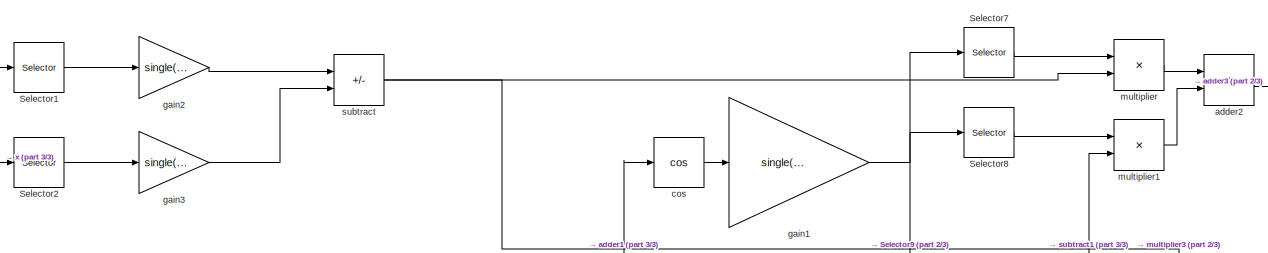
[diagram: FPGA Model/HDL Plant/Pejovic HDL Plant/HDL Subsystem/HDL Algorithm/State Update/Differential Clump/diffClump_F - part 1/3, top center region]
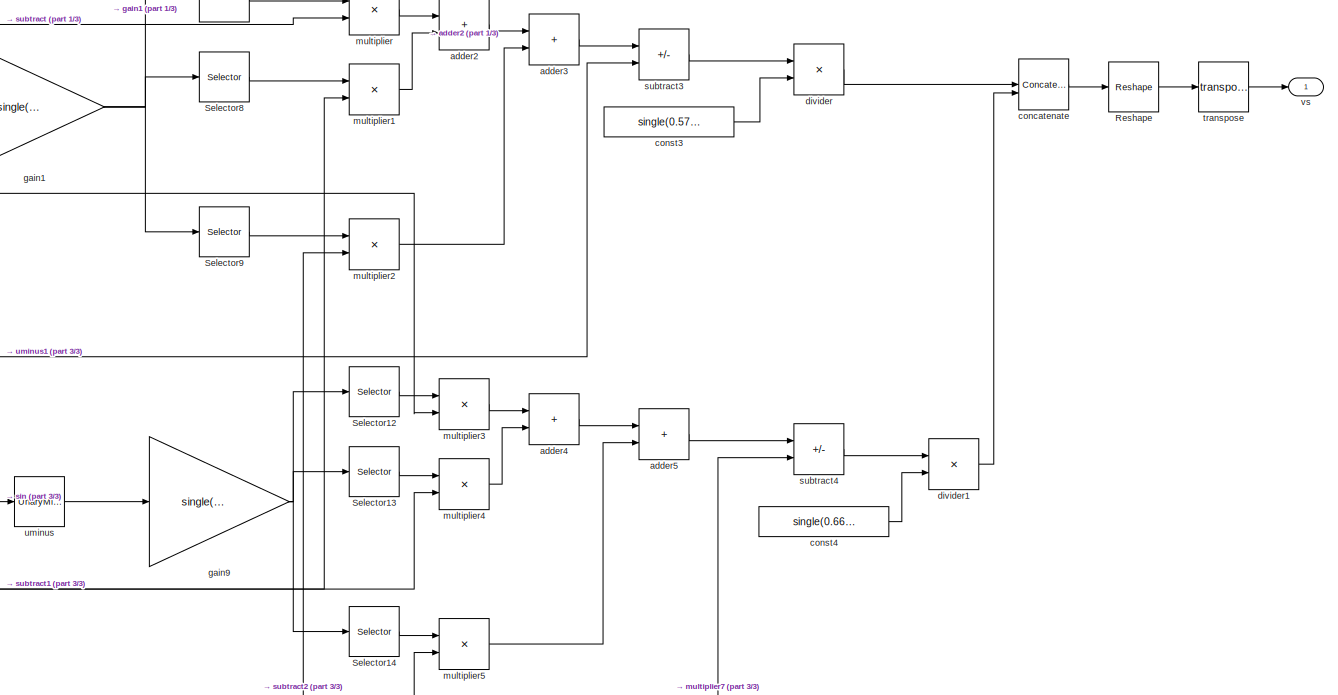
[diagram: FPGA Model/HDL Plant/Pejovic HDL Plant/HDL Subsystem/HDL Algorithm/State Update/Differential Clump/diffClump_F - part 2/3, top right region]
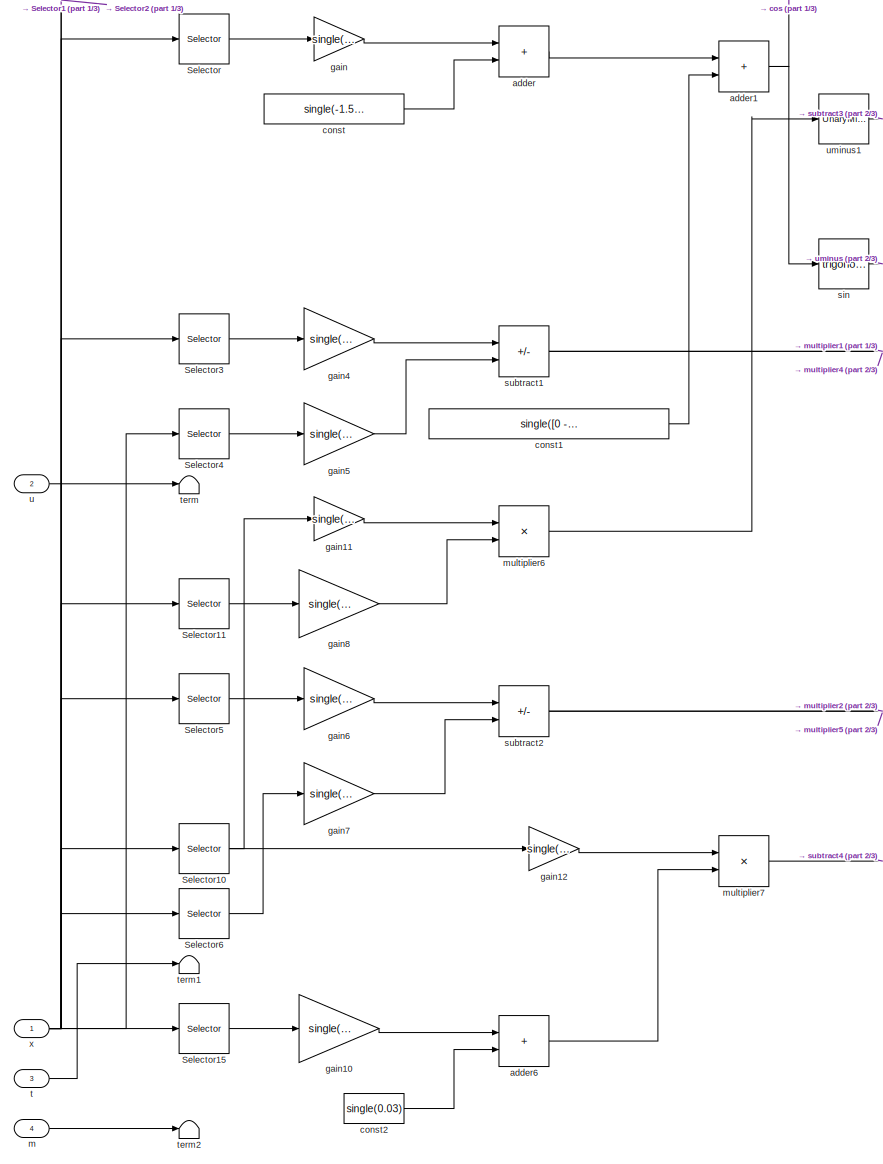
[diagram: FPGA Model/HDL Plant/Pejovic HDL Plant/HDL Subsystem/HDL Algorithm/State Update/Differential Clump/diffClump_F - part 3/3, left side, full height]
BLOCK [SubSystem] FPGA Model/HDL Plant/Pejovic HDL Plant/HDL Subsystem/HDL Algorithm/State Update/Differential Clump/diffClump_F
BLOCK [Reshape] FPGA Model/HDL Plant/Pejovic HDL Plant/HDL Subsystem/HDL Algorithm/State Update/Differential Clump/diffClump_F/Reshape
  OutputDimensionality = Column vector (2-D)
BLOCK [Selector] FPGA Model/HDL Plant/Pejovic HDL Plant/HDL Subsystem/HDL Algorithm/State Update/Differential Clump/diffClump_F/Selector
  IndexOptions = Index vector (dialog)
  Indices = double(10)
  OutputSizes = double(0)
  SampleTime = 2.5e-06
BLOCK [Selector] FPGA Model/HDL Plant/Pejovic HDL Plant/HDL Subsystem/HDL Algorithm/State Update/Differential Clump/diffClump_F/Selector1
  IndexOptions = Index vector (dialog)
  Indices = double(1)
  OutputSizes = double(0)
  SampleTime = 2.5e-06
BLOCK [Selector] FPGA Model/HDL Plant/Pejovic HDL Plant/HDL Subsystem/HDL Algorithm/State Update/Differential Clump/diffClump_F/Selector10
  IndexOptions = Index vector (dialog)
  Indices = double(7)
  OutputSizes = double(0)
  SampleTime = 2.5e-06
BLOCK [Selector] FPGA Model/HDL Plant/Pejovic HDL Plant/HDL Subsystem/HDL Algorithm/State Update/Differential Clump/diffClump_F/Selector11
  IndexOptions = Index vector (dialog)
  Indices = double(12)
  OutputSizes = double(0)
  SampleTime = 2.5e-06
BLOCK [Selector] FPGA Model/HDL Plant/Pejovic HDL Plant/HDL Subsystem/HDL Algorithm/State Update/Differential Clump/diffClump_F/Selector12
  IndexOptions = Index vector (dialog)
  Indices = double(1)
  OutputSizes = double(0)
  SampleTime = 2.5e-06
BLOCK [Selector] FPGA Model/HDL Plant/Pejovic HDL Plant/HDL Subsystem/HDL Algorithm/State Update/Differential Clump/diffClump_F/Selector13
  IndexOptions = Index vector (dialog)
  Indices = double(2)
  OutputSizes = double(0)
  SampleTime = 2.5e-06
BLOCK [Selector] FPGA Model/HDL Plant/Pejovic HDL Plant/HDL Subsystem/HDL Algorithm/State Update/Differential Clump/diffClump_F/Selector14
  IndexOptions = Index vector (dialog)
  Indices = double(3)
  OutputSizes = double(0)
  SampleTime = 2.5e-06
BLOCK [Selector] FPGA Model/HDL Plant/Pejovic HDL Plant/HDL Subsystem/HDL Algorithm/State Update/Differential Clump/diffClump_F/Selector15
  IndexOptions = Index vector (dialog)
  Indices = double(11)
  OutputSizes = double(0)
  SampleTime = 2.5e-06
BLOCK [Selector] FPGA Model/HDL Plant/Pejovic HDL Plant/HDL Subsystem/HDL Algorithm/State Update/Differential Clump/diffClump_F/Selector2
  IndexOptions = Index vector (dialog)
  Indices = double(4)
  OutputSizes = double(0)
  SampleTime = 2.5e-06
BLOCK [Selector] FPGA Model/HDL Plant/Pejovic HDL Plant/HDL Subsystem/HDL Algorithm/State Update/Differential Clump/diffClump_F/Selector3
  IndexOptions = Index vector (dialog)
  Indices = double(2)
  OutputSizes = double(0)
  SampleTime = 2.5e-06
BLOCK [Selector] FPGA Model/HDL Plant/Pejovic HDL Plant/HDL Subsystem/HDL Algorithm/State Update/Differential Clump/diffClump_F/Selector4
  IndexOptions = Index vector (dialog)
  Indices = double(5)
  OutputSizes = double(0)
  SampleTime = 2.5e-06
BLOCK [Selector] FPGA Model/HDL Plant/Pejovic HDL Plant/HDL Subsystem/HDL Algorithm/State Update/Differential Clump/diffClump_F/Selector5
  IndexOptions = Index vector (dialog)
  Indices = double(3)
  OutputSizes = double(0)
  SampleTime = 2.5e-06
BLOCK [Selector] FPGA Model/HDL Plant/Pejovic HDL Plant/HDL Subsystem/HDL Algorithm/State Update/Differential Clump/diffClump_F/Selector6
  IndexOptions = Index vector (dialog)
  Indices = double(6)
  OutputSizes = double(0)
  SampleTime = 2.5e-06
BLOCK [Selector] FPGA Model/HDL Plant/Pejovic HDL Plant/HDL Subsystem/HDL Algorithm/State Update/Differential Clump/diffClump_F/Selector7
  IndexOptions = Index vector (dialog)
  Indices = double(1)
  OutputSizes = double(0)
  SampleTime = 2.5e-06
BLOCK [Selector] FPGA Model/HDL Plant/Pejovic HDL Plant/HDL Subsystem/HDL Algorithm/State Update/Differential Clump/diffClump_F/Selector8
  IndexOptions = Index vector (dialog)
  Indices = double(2)
  OutputSizes = double(0)
  SampleTime = 2.5e-06
BLOCK [Selector] FPGA Model/HDL Plant/Pejovic HDL Plant/HDL Subsystem/HDL Algorithm/State Update/Differential Clump/diffClump_F/Selector9
  IndexOptions = Index vector (dialog)
  Indices = double(3)
  OutputSizes = double(0)
  SampleTime = 2.5e-06
BLOCK [Sum] FPGA Model/HDL Plant/Pejovic HDL Plant/HDL Subsystem/HDL Algorithm/State Update/Differential Clump/diffClump_F/adder
  AccumDataTypeStr = single
  IconShape = rectangular
  OutDataTypeStr = single
  SampleTime = 2.5e-06
BLOCK [Sum] FPGA Model/HDL Plant/Pejovic HDL Plant/HDL Subsystem/HDL Algorithm/State Update/Differential Clump/diffClump_F/adder1
  AccumDataTypeStr = single
  IconShape = rectangular
  OutDataTypeStr = single
  SampleTime = 2.5e-06
BLOCK [Sum] FPGA Model/HDL Plant/Pejovic HDL Plant/HDL Subsystem/HDL Algorithm/State Update/Differential Clump/diffClump_F/adder2
  AccumDataTypeStr = single
  IconShape = rectangular
  OutDataTypeStr = single
  SampleTime = 2.5e-06
BLOCK [Sum] FPGA Model/HDL Plant/Pejovic HDL Plant/HDL Subsystem/HDL Algorithm/State Update/Differential Clump/diffClump_F/adder3
  AccumDataTypeStr = single
  IconShape = rectangular
  OutDataTypeStr = single
  SampleTime = 2.5e-06
BLOCK [Sum] FPGA Model/HDL Plant/Pejovic HDL Plant/HDL Subsystem/HDL Algorithm/State Update/Differential Clump/diffClump_F/adder4
  AccumDataTypeStr = single
  IconShape = rectangular
  OutDataTypeStr = single
  SampleTime = 2.5e-06
BLOCK [Sum] FPGA Model/HDL Plant/Pejovic HDL Plant/HDL Subsystem/HDL Algorithm/State Update/Differential Clump/diffClump_F/adder5
  AccumDataTypeStr = single
  IconShape = rectangular
  OutDataTypeStr = single
  SampleTime = 2.5e-06
BLOCK [Sum] FPGA Model/HDL Plant/Pejovic HDL Plant/HDL Subsystem/HDL Algorithm/State Update/Differential Clump/diffClump_F/adder6
  AccumDataTypeStr = single
  IconShape = rectangular
  OutDataTypeStr = single
  SampleTime = 2.5e-06
BLOCK [Concatenate] FPGA Model/HDL Plant/Pejovic HDL Plant/HDL Subsystem/HDL Algorithm/State Update/Differential Clump/diffClump_F/concatenate
  Mode = Multidimensional array
BLOCK [Constant] FPGA Model/HDL Plant/Pejovic HDL Plant/HDL Subsystem/HDL Algorithm/State Update/Differential Clump/diffClump_F/const
  OutDataTypeStr = single
  SampleTime = 2.5e-06
  Value = single(-1.5707963705062866)
  VectorParams1D = off
BLOCK [Constant] FPGA Model/HDL Plant/Pejovic HDL Plant/HDL Subsystem/HDL Algorithm/State Update/Differential Clump/diffClump_F/const1
  OutDataTypeStr = single
  SampleTime = 2.5e-06
  Value = single([0 -2.094395160675049 2.094395160675049])
  VectorParams1D = off
BLOCK [Constant] FPGA Model/HDL Plant/Pejovic HDL Plant/HDL Subsystem/HDL Algorithm/State Update/Differential Clump/diffClump_F/const2
  OutDataTypeStr = single
  SampleTime = 2.5e-06
  Value = single(0.03)
  VectorParams1D = off
BLOCK [Constant] FPGA Model/HDL Plant/Pejovic HDL Plant/HDL Subsystem/HDL Algorithm/State Update/Differential Clump/diffClump_F/const3
  OutDataTypeStr = single
  SampleTime = 2.5e-06
  Value = single(0.5773502588272095)
  VectorParams1D = off
BLOCK [Constant] FPGA Model/HDL Plant/Pejovic HDL Plant/HDL Subsystem/HDL Algorithm/State Update/Differential Clump/diffClump_F/const4
  OutDataTypeStr = single
  SampleTime = 2.5e-06
  Value = single(0.6666666865348816)
  VectorParams1D = off
BLOCK [Trigonometry] FPGA Model/HDL Plant/Pejovic HDL Plant/HDL Subsystem/HDL Algorithm/State Update/Differential Clump/diffClump_F/cos
  Operator = cos
  SampleTime = 2.5e-06
BLOCK [Product] FPGA Model/HDL Plant/Pejovic HDL Plant/HDL Subsystem/HDL Algorithm/State Update/Differential Clump/diffClump_F/divider
  Inputs = */
  OutDataTypeStr = single
  SampleTime = 2.5e-06
BLOCK [Product] FPGA Model/HDL Plant/Pejovic HDL Plant/HDL Subsystem/HDL Algorithm/State Update/Differential Clump/diffClump_F/divider1
  Inputs = */
  OutDataTypeStr = single
  SampleTime = 2.5e-06
BLOCK [Gain] FPGA Model/HDL Plant/Pejovic HDL Plant/HDL Subsystem/HDL Algorithm/State Update/Differential Clump/diffClump_F/gain
  Gain = single(6)
  OutDataTypeStr = single
  SampleTime = 2.5e-06
BLOCK [Gain] FPGA Model/HDL Plant/Pejovic HDL Plant/HDL Subsystem/HDL Algorithm/State Update/Differential Clump/diffClump_F/gain1
  Gain = single(0.6666666865348816)
  OutDataTypeStr = single
  SampleTime = 2.5e-06
BLOCK [Gain] FPGA Model/HDL Plant/Pejovic HDL Plant/HDL Subsystem/HDL Algorithm/State Update/Differential Clump/diffClump_F/gain10
  Gain = single(0.0002)
  OutDataTypeStr = single
  SampleTime = 2.5e-06
BLOCK [Gain] FPGA Model/HDL Plant/Pejovic HDL Plant/HDL Subsystem/HDL Algorithm/State Update/Differential Clump/diffClump_F/gain11
  Gain = single(6)
  OutDataTypeStr = single
  SampleTime = 2.5e-06
BLOCK [Gain] FPGA Model/HDL Plant/Pejovic HDL Plant/HDL Subsystem/HDL Algorithm/State Update/Differential Clump/diffClump_F/gain12
  Gain = single(6)
  OutDataTypeStr = single
  SampleTime = 2.5e-06
BLOCK [Gain] FPGA Model/HDL Plant/Pejovic HDL Plant/HDL Subsystem/HDL Algorithm/State Update/Differential Clump/diffClump_F/gain2
  Gain = single(0.001)
  OutDataTypeStr = single
  SampleTime = 2.5e-06
BLOCK [Gain] FPGA Model/HDL Plant/Pejovic HDL Plant/HDL Subsystem/HDL Algorithm/State Update/Differential Clump/diffClump_F/gain3
  Gain = single(0.013)
  OutDataTypeStr = single
  SampleTime = 2.5e-06
BLOCK [Gain] FPGA Model/HDL Plant/Pejovic HDL Plant/HDL Subsystem/HDL Algorithm/State Update/Differential Clump/diffClump_F/gain4
  Gain = single(0.001)
  OutDataTypeStr = single
  SampleTime = 2.5e-06
BLOCK [Gain] FPGA Model/HDL Plant/Pejovic HDL Plant/HDL Subsystem/HDL Algorithm/State Update/Differential Clump/diffClump_F/gain5
  Gain = single(0.013)
  OutDataTypeStr = single
  SampleTime = 2.5e-06
BLOCK [Gain] FPGA Model/HDL Plant/Pejovic HDL Plant/HDL Subsystem/HDL Algorithm/State Update/Differential Clump/diffClump_F/gain6
  Gain = single(0.001)
  OutDataTypeStr = single
  SampleTime = 2.5e-06
BLOCK [Gain] FPGA Model/HDL Plant/Pejovic HDL Plant/HDL Subsystem/HDL Algorithm/State Update/Differential Clump/diffClump_F/gain7
  Gain = single(0.013)
  OutDataTypeStr = single
  SampleTime = 2.5e-06
BLOCK [Gain] FPGA Model/HDL Plant/Pejovic HDL Plant/HDL Subsystem/HDL Algorithm/State Update/Differential Clump/diffClump_F/gain8
  Gain = single(0.0002)
  OutDataTypeStr = single
  SampleTime = 2.5e-06
BLOCK [Gain] FPGA Model/HDL Plant/Pejovic HDL Plant/HDL Subsystem/HDL Algorithm/State Update/Differential Clump/diffClump_F/gain9
  Gain = single(0.6666666865348816)
  OutDataTypeStr = single
  SampleTime = 2.5e-06
BLOCK [Inport] FPGA Model/HDL Plant/Pejovic HDL Plant/HDL Subsystem/HDL Algorithm/State Update/Differential Clump/diffClump_F/m
  OutDataTypeStr = int32
  Port = 4
  SampleTime = 2.5e-06
BLOCK [Product] FPGA Model/HDL Plant/Pejovic HDL Plant/HDL Subsystem/HDL Algorithm/State Update/Differential Clump/diffClump_F/multiplier
  Inputs = **
  OutDataTypeStr = single
  SampleTime = 2.5e-06
BLOCK [Product] FPGA Model/HDL Plant/Pejovic HDL Plant/HDL Subsystem/HDL Algorithm/State Update/Differential Clump/diffClump_F/multiplier1
  Inputs = **
  OutDataTypeStr = single
  SampleTime = 2.5e-06
BLOCK [Product] FPGA Model/HDL Plant/Pejovic HDL Plant/HDL Subsystem/HDL Algorithm/State Update/Differential Clump/diffClump_F/multiplier2
  Inputs = **
  OutDataTypeStr = single
  SampleTime = 2.5e-06
BLOCK [Product] FPGA Model/HDL Plant/Pejovic HDL Plant/HDL Subsystem/HDL Algorithm/State Update/Differential Clump/diffClump_F/multiplier3
  Inputs = **
  OutDataTypeStr = single
  SampleTime = 2.5e-06
BLOCK [Product] FPGA Model/HDL Plant/Pejovic HDL Plant/HDL Subsystem/HDL Algorithm/State Update/Differential Clump/diffClump_F/multiplier4
  Inputs = **
  OutDataTypeStr = single
  SampleTime = 2.5e-06
BLOCK [Product] FPGA Model/HDL Plant/Pejovic HDL Plant/HDL Subsystem/HDL Algorithm/State Update/Differential Clump/diffClump_F/multiplier5
  Inputs = **
  OutDataTypeStr = single
  SampleTime = 2.5e-06
BLOCK [Product] FPGA Model/HDL Plant/Pejovic HDL Plant/HDL Subsystem/HDL Algorithm/State Update/Differential Clump/diffClump_F/multiplier6
  Inputs = **
  OutDataTypeStr = single
  SampleTime = 2.5e-06
BLOCK [Product] FPGA Model/HDL Plant/Pejovic HDL Plant/HDL Subsystem/HDL Algorithm/State Update/Differential Clump/diffClump_F/multiplier7
  Inputs = **
  OutDataTypeStr = single
  SampleTime = 2.5e-06
BLOCK [Trigonometry] FPGA Model/HDL Plant/Pejovic HDL Plant/HDL Subsystem/HDL Algorithm/State Update/Differential Clump/diffClump_F/sin
  SampleTime = 2.5e-06
BLOCK [Sum] FPGA Model/HDL Plant/Pejovic HDL Plant/HDL Subsystem/HDL Algorithm/State Update/Differential Clump/diffClump_F/subtract
  AccumDataTypeStr = single
  IconShape = rectangular
  Inputs = +-
  OutDataTypeStr = single
  SampleTime = 2.5e-06
BLOCK [Sum] FPGA Model/HDL Plant/Pejovic HDL Plant/HDL Subsystem/HDL Algorithm/State Update/Differential Clump/diffClump_F/subtract1
  AccumDataTypeStr = single
  IconShape = rectangular
  Inputs = +-
  OutDataTypeStr = single
  SampleTime = 2.5e-06
BLOCK [Sum] FPGA Model/HDL Plant/Pejovic HDL Plant/HDL Subsystem/HDL Algorithm/State Update/Differential Clump/diffClump_F/subtract2
  AccumDataTypeStr = single
  IconShape = rectangular
  Inputs = +-
  OutDataTypeStr = single
  SampleTime = 2.5e-06
BLOCK [Sum] FPGA Model/HDL Plant/Pejovic HDL Plant/HDL Subsystem/HDL Algorithm/State Update/Differential Clump/diffClump_F/subtract3
  AccumDataTypeStr = single
  IconShape = rectangular
  Inputs = +-
  OutDataTypeStr = single
  SampleTime = 2.5e-06
BLOCK [Sum] FPGA Model/HDL Plant/Pejovic HDL Plant/HDL Subsystem/HDL Algorithm/State Update/Differential Clump/diffClump_F/subtract4
  AccumDataTypeStr = single
  IconShape = rectangular
  Inputs = +-
  OutDataTypeStr = single
  SampleTime = 2.5e-06
BLOCK [Inport] FPGA Model/HDL Plant/Pejovic HDL Plant/HDL Subsystem/HDL Algorithm/State Update/Differential Clump/diffClump_F/t
  OutDataTypeStr = single
  Port = 3
  SampleTime = 2.5e-06
BLOCK [Terminator] FPGA Model/HDL Plant/Pejovic HDL Plant/HDL Subsystem/HDL Algorithm/State Update/Differential Clump/diffClump_F/term
BLOCK [Terminator] FPGA Model/HDL Plant/Pejovic HDL Plant/HDL Subsystem/HDL Algorithm/State Update/Differential Clump/diffClump_F/term1
BLOCK [Terminator] FPGA Model/HDL Plant/Pejovic HDL Plant/HDL Subsystem/HDL Algorithm/State Update/Differential Clump/diffClump_F/term2
BLOCK [Math] FPGA Model/HDL Plant/Pejovic HDL Plant/HDL Subsystem/HDL Algorithm/State Update/Differential Clump/diffClump_F/transpose
  Operator = transpose
BLOCK [Inport] FPGA Model/HDL Plant/Pejovic HDL Plant/HDL Subsystem/HDL Algorithm/State Update/Differential Clump/diffClump_F/u
  OutDataTypeStr = single
  Port = 2
  PortDimensions = [6 1]
  SampleTime = 2.5e-06
BLOCK [UnaryMinus] FPGA Model/HDL Plant/Pejovic HDL Plant/HDL Subsystem/HDL Algorithm/State Update/Differential Clump/diffClump_F/uminus
  SampleTime = 2.5e-06
BLOCK [UnaryMinus] FPGA Model/HDL Plant/Pejovic HDL Plant/HDL Subsystem/HDL Algorithm/State Update/Differential Clump/diffClump_F/uminus1
  SampleTime = 2.5e-06
BLOCK [Outport] FPGA Model/HDL Plant/Pejovic HDL Plant/HDL Subsystem/HDL Algorithm/State Update/Differential Clump/diffClump_F/vs
  OutDataTypeStr = single
  PortDimensions = [1 2]
  SampleTime = 2.5e-06
BLOCK [Inport] FPGA Model/HDL Plant/Pejovic HDL Plant/HDL Subsystem/HDL Algorithm/State Update/Differential Clump/diffClump_F/x
  OutDataTypeStr = single
  PortDimensions = [12 1]
  SampleTime = 2.5e-06
BLOCK [Inport] FPGA Model/HDL Plant/Pejovic HDL Plant/HDL Subsystem/HDL Algorithm/State Update/Differential Clump/t
  Port = 4
BLOCK [Delay] FPGA Model/HDL Plant/Pejovic HDL Plant/HDL Subsystem/HDL Algorithm/State Update/Differential Clump/t Delay
  DelayLength = 1
  InputPortMap = u0
BLOCK [Math] FPGA Model/HDL Plant/Pejovic HDL Plant/HDL Subsystem/HDL Algorithm/State Update/Differential Clump/transpose
  Operator = transpose
  RndMeth = Zero
  SignedPower = on
BLOCK [SubSystem] FPGA Model/HDL Plant/Pejovic HDL Plant/HDL Subsystem/HDL Algorithm/State Update/Initial Conditions
BLOCK [Constant] FPGA Model/HDL Plant/Pejovic HDL Plant/HDL Subsystem/HDL Algorithm/State Update/Initial Conditions/Constant
  SampleTime = 2.5e-06
  Value = single(f1478573793584.IC.X)
BLOCK [Constant] FPGA Model/HDL Plant/Pejovic HDL Plant/HDL Subsystem/HDL Algorithm/State Update/Initial Conditions/Constant1
  SampleTime = 2.5e-06
  Value = f1478573793584.IM
BLOCK [Delay] FPGA Model/HDL Plant/Pejovic HDL Plant/HDL Subsystem/HDL Algorithm/State Update/Initial Conditions/Delay
  DelayLength = 1
  InputPortMap = u0
BLOCK [Delay] FPGA Model/HDL Plant/Pejovic HDL Plant/HDL Subsystem/HDL Algorithm/State Update/Initial Conditions/Delay1
  DelayLength = 1
  InputPortMap = u0
BLOCK [Delay] FPGA Model/HDL Plant/Pejovic HDL Plant/HDL Subsystem/HDL Algorithm/State Update/Initial Conditions/Delay2
  DelayLength = 1
  InputPortMap = u0
BLOCK [Delay] FPGA Model/HDL Plant/Pejovic HDL Plant/HDL Subsystem/HDL Algorithm/State Update/Initial Conditions/Delay3
  DelayLength = 1
  InputPortMap = u0
BLOCK [Inport] FPGA Model/HDL Plant/Pejovic HDL Plant/HDL Subsystem/HDL Algorithm/State Update/Initial Conditions/Mode
  Port = 2
BLOCK [Outport] FPGA Model/HDL Plant/Pejovic HDL Plant/HDL Subsystem/HDL Algorithm/State Update/Initial Conditions/Mode Out
  Port = 2
  VectorParamsAs1DForOutWhenUnconnected = off
BLOCK [Inport] FPGA Model/HDL Plant/Pejovic HDL Plant/HDL Subsystem/HDL Algorithm/State Update/Initial Conditions/State
BLOCK [Outport] FPGA Model/HDL Plant/Pejovic HDL Plant/HDL Subsystem/HDL Algorithm/State Update/Initial Conditions/State Out
  VectorParamsAs1DForOutWhenUnconnected = off
BLOCK [Switch] FPGA Model/HDL Plant/Pejovic HDL Plant/HDL Subsystem/HDL Algorithm/State Update/Initial Conditions/Switch
  Criteria = u2 ~= 0
  InputSameDT = off
  OutDataTypeStr = single
  SaturateOnIntegerOverflow = off
BLOCK [Switch] FPGA Model/HDL Plant/Pejovic HDL Plant/HDL Subsystem/HDL Algorithm/State Update/Initial Conditions/Switch1
  Criteria = u2 ~= 0
  InputSameDT = off
  OutDataTypeStr = int32
  SaturateOnIntegerOverflow = off
BLOCK [Constant] FPGA Model/HDL Plant/Pejovic HDL Plant/HDL Subsystem/HDL Algorithm/State Update/Initial Conditions/Valid Out
  OutDataTypeStr = boolean
  SampleTime = 2.5e-06
BLOCK [Outport] FPGA Model/HDL Plant/Pejovic HDL Plant/HDL Subsystem/HDL Algorithm/State Update/Mode
  Port = 2
  VectorParamsAs1DForOutWhenUnconnected = off
BLOCK [Outport] FPGA Model/HDL Plant/Pejovic HDL Plant/HDL Subsystem/HDL Algorithm/State Update/State
  VectorParamsAs1DForOutWhenUnconnected = off
BLOCK [Inport] FPGA Model/HDL Plant/Pejovic HDL Plant/HDL Subsystem/HDL Algorithm/State Update/U
BLOCK [Inport] FPGA Model/HDL Plant/Pejovic HDL Plant/HDL Subsystem/HDL Algorithm/State Update/t
  Port = 2
BLOCK [Delay] FPGA Model/HDL Plant/Pejovic HDL Plant/HDL Subsystem/HDL Algorithm/t Delay
  DelayLength = 1
  InputPortMap = u0
BLOCK [Outport] FPGA Model/HDL Plant/Pejovic HDL Plant/HDL Subsystem/Iabc
  Port = 16
BLOCK [Concatenate] FPGA Model/HDL Plant/Pejovic HDL Plant/HDL Subsystem/Input Concat
  NumInputs = 6
BLOCK [Mux] FPGA Model/HDL Plant/Pejovic HDL Plant/HDL Subsystem/Mux16
  DisplayOption = bar
  Inputs = 3
BLOCK [Demux] FPGA Model/HDL Plant/Pejovic HDL Plant/HDL Subsystem/Output Demux
  Outputs = 18
BLOCK [Inport] FPGA Model/HDL Plant/Pejovic HDL Plant/HDL Subsystem/ic_out1
  Port = 4
BLOCK [Inport] FPGA Model/HDL Plant/Pejovic HDL Plant/HDL Subsystem/ic_out2
BLOCK [Inport] FPGA Model/HDL Plant/Pejovic HDL Plant/HDL Subsystem/ic_out3
  Port = 5
BLOCK [Inport] FPGA Model/HDL Plant/Pejovic HDL Plant/HDL Subsystem/ic_out4
  Port = 2
BLOCK [Inport] FPGA Model/HDL Plant/Pejovic HDL Plant/HDL Subsystem/ic_out5
  Port = 6
BLOCK [Inport] FPGA Model/HDL Plant/Pejovic HDL Plant/HDL Subsystem/ic_out6
  Port = 3
BLOCK [Outport] FPGA Model/HDL Plant/Pejovic HDL Plant/HDL Subsystem/is_in1
  Port = 4
BLOCK [Outport] FPGA Model/HDL Plant/Pejovic HDL Plant/HDL Subsystem/is_in2
  Port = 6
BLOCK [Outport] FPGA Model/HDL Plant/Pejovic HDL Plant/HDL Subsystem/is_in3
  Port = 8
BLOCK [Outport] FPGA Model/HDL Plant/Pejovic HDL Plant/HDL Subsystem/is_in4
  Port = 10
BLOCK [Outport] FPGA Model/HDL Plant/Pejovic HDL Plant/HDL Subsystem/is_in5
  Port = 12
BLOCK [Outport] FPGA Model/HDL Plant/Pejovic HDL Plant/HDL Subsystem/is_in6
  Port = 14
BLOCK [Outport] FPGA Model/HDL Plant/Pejovic HDL Plant/HDL Subsystem/omegaMotor
  Port = 2
BLOCK [Outport] FPGA Model/HDL Plant/Pejovic HDL Plant/HDL Subsystem/thetaMotor
BLOCK [Outport] FPGA Model/HDL Plant/Pejovic HDL Plant/HDL Subsystem/trqMotor
  Port = 3
BLOCK [Outport] FPGA Model/HDL Plant/Pejovic HDL Plant/HDL Subsystem/vs_in1
  Port = 5
BLOCK [Outport] FPGA Model/HDL Plant/Pejovic HDL Plant/HDL Subsystem/vs_in2
  Port = 7
BLOCK [Outport] FPGA Model/HDL Plant/Pejovic HDL Plant/HDL Subsystem/vs_in3
  Port = 9
BLOCK [Outport] FPGA Model/HDL Plant/Pejovic HDL Plant/HDL Subsystem/vs_in4
  Port = 11
BLOCK [Outport] FPGA Model/HDL Plant/Pejovic HDL Plant/HDL Subsystem/vs_in5
  Port = 13
BLOCK [Outport] FPGA Model/HDL Plant/Pejovic HDL Plant/HDL Subsystem/vs_in6
  Port = 15
BLOCK [Outport] FPGA Model/HDL Plant/Pejovic HDL Plant/Iabc
  Port = 4
BLOCK [Inport] FPGA Model/HDL Plant/Pejovic HDL Plant/In1
BLOCK [SignalSpecification] FPGA Model/HDL Plant/Pejovic HDL Plant/Signal Specification
  OutDataTypeStr = boolean
BLOCK [Outport] FPGA Model/HDL Plant/Pejovic HDL Plant/omegaMotor
  Port = 2
BLOCK [Outport] FPGA Model/HDL Plant/Pejovic HDL Plant/thetaMotor
BLOCK [Outport] FPGA Model/HDL Plant/Pejovic HDL Plant/trqMotor
  Port = 3
BLOCK [SubSystem] FPGA Model/HDL Plant/Standard HDL Plant
  InitFcn = load('f1859323186544.mat');
  VariantControl = Standard
BLOCK [DataTypeConversion] FPGA Model/HDL Plant/Standard HDL Plant/Data Type Conversion
  RndMeth = Floor
  SaturateOnIntegerOverflow = off
BLOCK [Demux] FPGA Model/HDL Plant/Standard HDL Plant/Demux
  Outputs = 6
BLOCK [SubSystem] FPGA Model/HDL Plant/Standard HDL Plant/HDL Subsystem
BLOCK [Inport] FPGA Model/HDL Plant/Standard HDL Plant/HDL Subsystem/GaH
BLOCK [Inport] FPGA Model/HDL Plant/Standard HDL Plant/HDL Subsystem/GaL
  Port = 2
BLOCK [Inport] FPGA Model/HDL Plant/Standard HDL Plant/HDL Subsystem/GbH
  Port = 3
BLOCK [Inport] FPGA Model/HDL Plant/Standard HDL Plant/HDL Subsystem/GbL
  Port = 4
BLOCK [Inport] FPGA Model/HDL Plant/Standard HDL Plant/HDL Subsystem/GcH
  Port = 5
BLOCK [Inport] FPGA Model/HDL Plant/Standard HDL Plant/HDL Subsystem/GcL
  Port = 6
BLOCK [SubSystem] FPGA Model/HDL Plant/Standard HDL Plant/HDL Subsystem/HDL Algorithm
BLOCK [SubSystem] FPGA Model/HDL Plant/Standard HDL Plant/HDL Subsystem/HDL Algorithm/Clock
BLOCK [Delay] FPGA Model/HDL Plant/Standard HDL Plant/HDL Subsystem/HDL Algorithm/Clock/Delay
  DelayLength = 1
  InputPortMap = u0
BLOCK [Constant] FPGA Model/HDL Plant/Standard HDL Plant/HDL Subsystem/HDL Algorithm/Clock/Sample Time
  OutDataTypeStr = single
  SampleTime = 2.5e-06
  Value = single(2.5e-06)
BLOCK [Sum] FPGA Model/HDL Plant/Standard HDL Plant/HDL Subsystem/HDL Algorithm/Clock/Sum
  IconShape = rectangular
  OutDataTypeStr = single
BLOCK [Outport] FPGA Model/HDL Plant/Standard HDL Plant/HDL Subsystem/HDL Algorithm/Clock/t
  VectorParamsAs1DForOutWhenUnconnected = off
BLOCK [Inport] FPGA Model/HDL Plant/Standard HDL Plant/HDL Subsystem/HDL Algorithm/In1
BLOCK [Delay] FPGA Model/HDL Plant/Standard HDL Plant/HDL Subsystem/HDL Algorithm/Input Delay
  DelayLength = 1
  InputPortMap = u0
BLOCK [Outport] FPGA Model/HDL Plant/Standard HDL Plant/HDL Subsystem/HDL Algorithm/Out1
  VectorParamsAs1DForOutWhenUnconnected = off
BLOCK [SubSystem] FPGA Model/HDL Plant/Standard HDL Plant/HDL Subsystem/HDL Algorithm/Output
BLOCK [Inport] FPGA Model/HDL Plant/Standard HDL Plant/HDL Subsystem/HDL Algorithm/Output/Mode
  Port = 4
BLOCK [Inport] FPGA Model/HDL Plant/Standard HDL Plant/HDL Subsystem/HDL Algorithm/Output/State
  Port = 2
BLOCK [Outport] FPGA Model/HDL Plant/Standard HDL Plant/HDL Subsystem/HDL Algorithm/Output/State Out
  VectorParamsAs1DForOutWhenUnconnected = off
BLOCK [Inport] FPGA Model/HDL Plant/Standard HDL Plant/HDL Subsystem/HDL Algorithm/Output/U
BLOCK [SubSystem] FPGA Model/HDL Plant/Standard HDL Plant/HDL Subsystem/HDL Algorithm/Output/network_outputs
BLOCK [Reshape] FPGA Model/HDL Plant/Standard HDL Plant/HDL Subsystem/HDL Algorithm/Output/network_outputs/Reshape
  OutputDimensionality = Row vector (2-D)
BLOCK [Selector] FPGA Model/HDL Plant/Standard HDL Plant/HDL Subsystem/HDL Algorithm/Output/network_outputs/Selector
  IndexOptions = Index vector (dialog)
  Indices = double(7)
  OutputSizes = double(0)
BLOCK [Selector] FPGA Model/HDL Plant/Standard HDL Plant/HDL Subsystem/HDL Algorithm/Output/network_outputs/Selector1
  IndexOptions = Index vector (dialog)
  Indices = double(9)
  OutputSizes = double(0)
BLOCK [Selector] FPGA Model/HDL Plant/Standard HDL Plant/HDL Subsystem/HDL Algorithm/Output/network_outputs/Selector2
  IndexOptions = Index vector (dialog)
  Indices = double(4)
  OutputSizes = double(0)
BLOCK [Selector] FPGA Model/HDL Plant/Standard HDL Plant/HDL Subsystem/HDL Algorithm/Output/network_outputs/Selector3
  IndexOptions = Index vector (dialog)
  Indices = double(5)
  OutputSizes = double(0)
BLOCK [Selector] FPGA Model/HDL Plant/Standard HDL Plant/HDL Subsystem/HDL Algorithm/Output/network_outputs/Selector4
  IndexOptions = Index vector (dialog)
  Indices = double(6)
  OutputSizes = double(0)
BLOCK [Selector] FPGA Model/HDL Plant/Standard HDL Plant/HDL Subsystem/HDL Algorithm/Output/network_outputs/Selector5
  IndexOptions = Index vector (dialog)
  Indices = double(8)
  OutputSizes = double(0)
BLOCK [Concatenate] FPGA Model/HDL Plant/Standard HDL Plant/HDL Subsystem/HDL Algorithm/Output/network_outputs/concatenate
  Mode = Multidimensional array
  NumInputs = 3
BLOCK [Concatenate] FPGA Model/HDL Plant/Standard HDL Plant/HDL Subsystem/HDL Algorithm/Output/network_outputs/concatenate1
  ConcatenateDimension = 2
  Mode = Multidimensional array
  NumInputs = 4
BLOCK [Gain] FPGA Model/HDL Plant/Standard HDL Plant/HDL Subsystem/HDL Algorithm/Output/network_outputs/gain
  Gain = single(-1)
  OutDataTypeStr = single
  SampleTime = 2.5e-06
BLOCK [Gain] FPGA Model/HDL Plant/Standard HDL Plant/HDL Subsystem/HDL Algorithm/Output/network_outputs/gain1
  Gain = single(-1)
  OutDataTypeStr = single
  SampleTime = 2.5e-06
BLOCK [Gain] FPGA Model/HDL Plant/Standard HDL Plant/HDL Subsystem/HDL Algorithm/Output/network_outputs/gain2
  Gain = single(-1)
  OutDataTypeStr = single
  SampleTime = 2.5e-06
BLOCK [Gain] FPGA Model/HDL Plant/Standard HDL Plant/HDL Subsystem/HDL Algorithm/Output/network_outputs/gain3
  Gain = single(-1)
  OutDataTypeStr = single
  SampleTime = 2.5e-06
BLOCK [Inport] FPGA Model/HDL Plant/Standard HDL Plant/HDL Subsystem/HDL Algorithm/Output/network_outputs/m
  OutDataTypeStr = int32
  Port = 4
  PortDimensions = [6 1]
  SampleTime = 2.5e-06
BLOCK [Inport] FPGA Model/HDL Plant/Standard HDL Plant/HDL Subsystem/HDL Algorithm/Output/network_outputs/t
  OutDataTypeStr = single
  Port = 3
  SampleTime = 2.5e-06
BLOCK [Terminator] FPGA Model/HDL Plant/Standard HDL Plant/HDL Subsystem/HDL Algorithm/Output/network_outputs/term
BLOCK [Terminator] FPGA Model/HDL Plant/Standard HDL Plant/HDL Subsystem/HDL Algorithm/Output/network_outputs/term1
BLOCK [Terminator] FPGA Model/HDL Plant/Standard HDL Plant/HDL Subsystem/HDL Algorithm/Output/network_outputs/term2
BLOCK [Inport] FPGA Model/HDL Plant/Standard HDL Plant/HDL Subsystem/HDL Algorithm/Output/network_outputs/u
  OutDataTypeStr = single
  Port = 2
  PortDimensions = [6 1]
  SampleTime = 2.5e-06
BLOCK [Outport] FPGA Model/HDL Plant/Standard HDL Plant/HDL Subsystem/HDL Algorithm/Output/network_outputs/vs
  OutDataTypeStr = single
  PortDimensions = [1 6]
  SampleTime = 2.5e-06
BLOCK [Inport] FPGA Model/HDL Plant/Standard HDL Plant/HDL Subsystem/HDL Algorithm/Output/network_outputs/x
  OutDataTypeStr = single
  PortDimensions = [15 1]
  SampleTime = 2.5e-06
BLOCK [Inport] FPGA Model/HDL Plant/Standard HDL Plant/HDL Subsystem/HDL Algorithm/Output/t
  Port = 3
BLOCK [SubSystem] FPGA Model/HDL Plant/Standard HDL Plant/HDL Subsystem/HDL Algorithm/State Update
BLOCK [SubSystem] FPGA Model/HDL Plant/Standard HDL Plant/HDL Subsystem/HDL Algorithm/State Update/Algebraic Clump1
BLOCK [Constant] FPGA Model/HDL Plant/Standard HDL Plant/HDL Subsystem/HDL Algorithm/State Update/Algebraic Clump1/Default Index
  SampleTime = 2.5e-06
  Value = fi(0,0,2,0)
BLOCK [Inport] FPGA Model/HDL Plant/Standard HDL Plant/HDL Subsystem/HDL Algorithm/State Update/Algebraic Clump1/Mode Vector
  Port = 3
BLOCK [Outport] FPGA Model/HDL Plant/Standard HDL Plant/HDL Subsystem/HDL Algorithm/State Update/Algebraic Clump1/Mode Vector Out
  Port = 2
  VectorParamsAs1DForOutWhenUnconnected = off
BLOCK [Reference] FPGA Model/HDL Plant/Standard HDL Plant/HDL Subsystem/HDL Algorithm/State Update/Algebraic Clump1/Multiply F  REF=hdlssclib/NFPSparseConstMultiply
  SourceBlock = hdlssclib/NFPSparseConstMultiply
BLOCK [Reference] FPGA Model/HDL Plant/Standard HDL Plant/HDL Subsystem/HDL Algorithm/State Update/Algebraic Clump1/Multiply State  REF=hdlssclib/NFPSparseConstMultiply
  SourceBlock = hdlssclib/NFPSparseConstMultiply
BLOCK [Selector] FPGA Model/HDL Plant/Standard HDL Plant/HDL Subsystem/HDL Algorithm/State Update/Algebraic Clump1/Out States
  IndexOptions = Index vector (dialog)
  Indices = [1  2  3  4]
  OutputSizes = 1
BLOCK [Sum] FPGA Model/HDL Plant/Standard HDL Plant/HDL Subsystem/HDL Algorithm/State Update/Algebraic Clump1/Output Sum
  IconShape = rectangular
  Inputs = +-
BLOCK [Selector] FPGA Model/HDL Plant/Standard HDL Plant/HDL Subsystem/HDL Algorithm/State Update/Algebraic Clump1/Owned States
  IndexOptions = Index vector (dialog)
  Indices = [1  2  3  4]
  OutputSizes = 1
BLOCK [Selector] FPGA Model/HDL Plant/Standard HDL Plant/HDL Subsystem/HDL Algorithm/State Update/Algebraic Clump1/Ref Inputs
  IndexOptions = Index vector (dialog)
  Indices = [1]
  OutputSizes = 1
BLOCK [Selector] FPGA Model/HDL Plant/Standard HDL Plant/HDL Subsystem/HDL Algorithm/State Update/Algebraic Clump1/Ref Modes
  IndexOptions = Index vector (dialog)
  Indices = [1]
  OutputSizes = 1
BLOCK [Selector] FPGA Model/HDL Plant/Standard HDL Plant/HDL Subsystem/HDL Algorithm/State Update/Algebraic Clump1/Ref States
  IndexOptions = Index vector (dialog)
  Indices = [7   8   9  13  14  15]
  OutputSizes = 1
BLOCK [Inport] FPGA Model/HDL Plant/Standard HDL Plant/HDL Subsystem/HDL Algorithm/State Update/Algebraic Clump1/State
  Port = 2
BLOCK [Assignment] FPGA Model/HDL Plant/Standard HDL Plant/HDL Subsystem/HDL Algorithm/State Update/Algebraic Clump1/State Assign
  IndexOptions = Index vector (dialog)
  Indices = [7   8   9  13]
  OutputSizes = 1
BLOCK [Outport] FPGA Model/HDL Plant/Standard HDL Plant/HDL Subsystem/HDL Algorithm/State Update/Algebraic Clump1/State Out
  VectorParamsAs1DForOutWhenUnconnected = off
BLOCK [Inport] FPGA Model/HDL Plant/Standard HDL Plant/HDL Subsystem/HDL Algorithm/State Update/Algebraic Clump1/U
BLOCK [SubSystem] FPGA Model/HDL Plant/Standard HDL Plant/HDL Subsystem/HDL Algorithm/State Update/Algebraic Clump1/extClump0_F
BLOCK [Reshape] FPGA Model/HDL Plant/Standard HDL Plant/HDL Subsystem/HDL Algorithm/State Update/Algebraic Clump1/extClump0_F/Reshape
  OutputDimensionality = Column vector (2-D)
BLOCK [Selector] FPGA Model/HDL Plant/Standard HDL Plant/HDL Subsystem/HDL Algorithm/State Update/Algebraic Clump1/extClump0_F/Selector
  IndexOptions = Index vector (dialog)
  Indices = double(5)
  OutputSizes = double(0)
BLOCK [Selector] FPGA Model/HDL Plant/Standard HDL Plant/HDL Subsystem/HDL Algorithm/State Update/Algebraic Clump1/extClump0_F/Selector1
  IndexOptions = Index vector (dialog)
  Indices = double(6)
  OutputSizes = double(0)
BLOCK [Selector] FPGA Model/HDL Plant/Standard HDL Plant/HDL Subsystem/HDL Algorithm/State Update/Algebraic Clump1/extClump0_F/Selector2
  IndexOptions = Index vector (dialog)
  Indices = double(6)
  OutputSizes = double(0)
BLOCK [Selector] FPGA Model/HDL Plant/Standard HDL Plant/HDL Subsystem/HDL Algorithm/State Update/Algebraic Clump1/extClump0_F/Selector3
  IndexOptions = Index vector (dialog)
  Indices = double(5)
  OutputSizes = double(0)
BLOCK [Sum] FPGA Model/HDL Plant/Standard HDL Plant/HDL Subsystem/HDL Algorithm/State Update/Algebraic Clump1/extClump0_F/adder
  AccumDataTypeStr = single
  IconShape = rectangular
  OutDataTypeStr = single
  SampleTime = 2.5e-06
BLOCK [Concatenate] FPGA Model/HDL Plant/Standard HDL Plant/HDL Subsystem/HDL Algorithm/State Update/Algebraic Clump1/extClump0_F/concatenate
  Mode = Multidimensional array
  NumInputs = 4
BLOCK [Constant] FPGA Model/HDL Plant/Standard HDL Plant/HDL Subsystem/HDL Algorithm/State Update/Algebraic Clump1/extClump0_F/const
  OutDataTypeStr = single
  SampleTime = 2.5e-06
  Value = single(0.03)
  VectorParams1D = off
BLOCK [Constant] FPGA Model/HDL Plant/Standard HDL Plant/HDL Subsystem/HDL Algorithm/State Update/Algebraic Clump1/extClump0_F/const1
  OutDataTypeStr = single
  SampleTime = 2.5e-06
  Value = single(0)
  VectorParams1D = off
BLOCK [Constant] FPGA Model/HDL Plant/Standard HDL Plant/HDL Subsystem/HDL Algorithm/State Update/Algebraic Clump1/extClump0_F/const2
  OutDataTypeStr = single
  SampleTime = 2.5e-06
  Value = single(0)
  VectorParams1D = off
BLOCK [Constant] FPGA Model/HDL Plant/Standard HDL Plant/HDL Subsystem/HDL Algorithm/State Update/Algebraic Clump1/extClump0_F/const3
  OutDataTypeStr = single
  SampleTime = 2.5e-06
  Value = single(0)
  VectorParams1D = off
BLOCK [Gain] FPGA Model/HDL Plant/Standard HDL Plant/HDL Subsystem/HDL Algorithm/State Update/Algebraic Clump1/extClump0_F/gain
  Gain = single(0.0002)
  OutDataTypeStr = single
  SampleTime = 2.5e-06
BLOCK [Gain] FPGA Model/HDL Plant/Standard HDL Plant/HDL Subsystem/HDL Algorithm/State Update/Algebraic Clump1/extClump0_F/gain1
  Gain = single(0.0002)
  OutDataTypeStr = single
  SampleTime = 2.5e-06
BLOCK [Gain] FPGA Model/HDL Plant/Standard HDL Plant/HDL Subsystem/HDL Algorithm/State Update/Algebraic Clump1/extClump0_F/gain2
  Gain = single(9)
  OutDataTypeStr = single
  SampleTime = 2.5e-06
BLOCK [Inport] FPGA Model/HDL Plant/Standard HDL Plant/HDL Subsystem/HDL Algorithm/State Update/Algebraic Clump1/extClump0_F/m
  OutDataTypeStr = int32
  Port = 4
  SampleTime = 2.5e-06
BLOCK [Product] FPGA Model/HDL Plant/Standard HDL Plant/HDL Subsystem/HDL Algorithm/State Update/Algebraic Clump1/extClump0_F/multiplier
  Inputs = **
  OutDataTypeStr = single
  SampleTime = 2.5e-06
BLOCK [Product] FPGA Model/HDL Plant/Standard HDL Plant/HDL Subsystem/HDL Algorithm/State Update/Algebraic Clump1/extClump0_F/multiplier1
  Inputs = **
  OutDataTypeStr = single
  SampleTime = 2.5e-06
BLOCK [Sum] FPGA Model/HDL Plant/Standard HDL Plant/HDL Subsystem/HDL Algorithm/State Update/Algebraic Clump1/extClump0_F/subtract
  AccumDataTypeStr = single
  IconShape = rectangular
  Inputs = +-
  OutDataTypeStr = single
  SampleTime = 2.5e-06
BLOCK [Inport] FPGA Model/HDL Plant/Standard HDL Plant/HDL Subsystem/HDL Algorithm/State Update/Algebraic Clump1/extClump0_F/t
  OutDataTypeStr = single
  Port = 3
  SampleTime = 2.5e-06
BLOCK [Terminator] FPGA Model/HDL Plant/Standard HDL Plant/HDL Subsystem/HDL Algorithm/State Update/Algebraic Clump1/extClump0_F/term
BLOCK [Terminator] FPGA Model/HDL Plant/Standard HDL Plant/HDL Subsystem/HDL Algorithm/State Update/Algebraic Clump1/extClump0_F/term1
BLOCK [Terminator] FPGA Model/HDL Plant/Standard HDL Plant/HDL Subsystem/HDL Algorithm/State Update/Algebraic Clump1/extClump0_F/term2
BLOCK [Math] FPGA Model/HDL Plant/Standard HDL Plant/HDL Subsystem/HDL Algorithm/State Update/Algebraic Clump1/extClump0_F/transpose
  Operator = transpose
BLOCK [Inport] FPGA Model/HDL Plant/Standard HDL Plant/HDL Subsystem/HDL Algorithm/State Update/Algebraic Clump1/extClump0_F/u
  OutDataTypeStr = single
  Port = 2
  SampleTime = 2.5e-06
BLOCK [UnaryMinus] FPGA Model/HDL Plant/Standard HDL Plant/HDL Subsystem/HDL Algorithm/State Update/Algebraic Clump1/extClump0_F/uminus
  SampleTime = 2.5e-06
BLOCK [Outport] FPGA Model/HDL Plant/Standard HDL Plant/HDL Subsystem/HDL Algorithm/State Update/Algebraic Clump1/extClump0_F/vs
  OutDataTypeStr = single
  PortDimensions = [1 4]
  SampleTime = 2.5e-06
BLOCK [Inport] FPGA Model/HDL Plant/Standard HDL Plant/HDL Subsystem/HDL Algorithm/State Update/Algebraic Clump1/extClump0_F/x
  OutDataTypeStr = single
  PortDimensions = [6 1]
  SampleTime = 2.5e-06
BLOCK [Inport] FPGA Model/HDL Plant/Standard HDL Plant/HDL Subsystem/HDL Algorithm/State Update/Algebraic Clump1/t
  Port = 4
BLOCK [Math] FPGA Model/HDL Plant/Standard HDL Plant/HDL Subsystem/HDL Algorithm/State Update/Algebraic Clump1/transpose
  Operator = transpose
  RndMeth = Zero
  SignedPower = on
BLOCK [SubSystem] FPGA Model/HDL Plant/Standard HDL Plant/HDL Subsystem/HDL Algorithm/State Update/Algebraic Clump2
BLOCK [Inport] FPGA Model/HDL Plant/Standard HDL Plant/HDL Subsystem/HDL Algorithm/State Update/Algebraic Clump2/Mode Vector
  Port = 3
BLOCK [Outport] FPGA Model/HDL Plant/Standard HDL Plant/HDL Subsystem/HDL Algorithm/State Update/Algebraic Clump2/Mode Vector Out
  Port = 2
  VectorParamsAs1DForOutWhenUnconnected = off
BLOCK [SubSystem] FPGA Model/HDL Plant/Standard HDL Plant/HDL Subsystem/HDL Algorithm/State Update/Algebraic Clump2/Mode Vector To Index
BLOCK [Inport] FPGA Model/HDL Plant/Standard HDL Plant/HDL Subsystem/HDL Algorithm/State Update/Algebraic Clump2/Mode Vector To Index/In1
BLOCK [Outport] FPGA Model/HDL Plant/Standard HDL Plant/HDL Subsystem/HDL Algorithm/State Update/Algebraic Clump2/Mode Vector To Index/Out1
  VectorParamsAs1DForOutWhenUnconnected = off
BLOCK [Reference] FPGA Model/HDL Plant/Standard HDL Plant/HDL Subsystem/HDL Algorithm/State Update/Algebraic Clump2/Mode Vector To Index/State Mode Vector To Index  REF=hdlssclib/HDL Logic Table
  SourceBlock = hdlssclib/HDL Logic Table
BLOCK [Assertion] FPGA Model/HDL Plant/Standard HDL Plant/HDL Subsystem/HDL Algorithm/State Update/Algebraic Clump2/Mode Vector To Index/assertion
  StopWhenAssertionFail = off
BLOCK [Reference] FPGA Model/HDL Plant/Standard HDL Plant/HDL Subsystem/HDL Algorithm/State Update/Algebraic Clump2/Mode Vector To Index/concat  REF=hdlsllib/Logic and Bit
Operations/Bit Concat
  SourceBlock = hdlsllib/Logic and Bit\nOperations/Bit Concat
  SourceType = Bit Concat
BLOCK [Reference] FPGA Model/HDL Plant/Standard HDL Plant/HDL Subsystem/HDL Algorithm/State Update/Algebraic Clump2/Mode Vector To Index/uncatalogued mode identifier  REF=hdlssclib/HDL Logic Table
  SourceBlock = hdlssclib/HDL Logic Table
BLOCK [SubSystem] FPGA Model/HDL Plant/Standard HDL Plant/HDL Subsystem/HDL Algorithm/State Update/Algebraic Clump2/Mode Vector Type Conversion
BLOCK [DataTypeConversion] FPGA Model/HDL Plant/Standard HDL Plant/HDL Subsystem/HDL Algorithm/State Update/Algebraic Clump2/Mode Vector Type Conversion/Data Type Conversion
  OutDataTypeStr = boolean
  RndMeth = Nearest
  SaturateOnIntegerOverflow = off
BLOCK [Inport] FPGA Model/HDL Plant/Standard HDL Plant/HDL Subsystem/HDL Algorithm/State Update/Algebraic Clump2/Mode Vector Type Conversion/Mode vec
BLOCK [Outport] FPGA Model/HDL Plant/Standard HDL Plant/HDL Subsystem/HDL Algorithm/State Update/Algebraic Clump2/Mode Vector Type Conversion/Out1
  VectorParamsAs1DForOutWhenUnconnected = off
BLOCK [Reference] FPGA Model/HDL Plant/Standard HDL Plant/HDL Subsystem/HDL Algorithm/State Update/Algebraic Clump2/Multiply F  REF=hdlssclib/NFPSparseConstMultiply
  SourceBlock = hdlssclib/NFPSparseConstMultiply
BLOCK [Reference] FPGA Model/HDL Plant/Standard HDL Plant/HDL Subsystem/HDL Algorithm/State Update/Algebraic Clump2/Multiply State  REF=hdlssclib/NFPSparseConstMultiply
  SourceBlock = hdlssclib/NFPSparseConstMultiply
BLOCK [Selector] FPGA Model/HDL Plant/Standard HDL Plant/HDL Subsystem/HDL Algorithm/State Update/Algebraic Clump2/Out States
  IndexOptions = Index vector (dialog)
  Indices = [1  2  3]
  OutputSizes = 1
BLOCK [Sum] FPGA Model/HDL Plant/Standard HDL Plant/HDL Subsystem/HDL Algorithm/State Update/Algebraic Clump2/Output Sum
  IconShape = rectangular
  Inputs = +-
BLOCK [Selector] FPGA Model/HDL Plant/Standard HDL Plant/HDL Subsystem/HDL Algorithm/State Update/Algebraic Clump2/Owned States
  IndexOptions = Index vector (dialog)
  Indices = [1  2  3]
  OutputSizes = 1
BLOCK [Selector] FPGA Model/HDL Plant/Standard HDL Plant/HDL Subsystem/HDL Algorithm/State Update/Algebraic Clump2/Ref Inputs
  IndexOptions = Index vector (dialog)
  Indices = [5  6]
  OutputSizes = 1
BLOCK [Selector] FPGA Model/HDL Plant/Standard HDL Plant/HDL Subsystem/HDL Algorithm/State Update/Algebraic Clump2/Ref Modes
  IndexOptions = Index vector (dialog)
  Indices = [5  6]
  OutputSizes = 1
BLOCK [Selector] FPGA Model/HDL Plant/Standard HDL Plant/HDL Subsystem/HDL Algorithm/State Update/Algebraic Clump2/Ref States
  IndexOptions = Index vector (dialog)
  Indices = [12   3   6  13  14  15]
  OutputSizes = 1
BLOCK [Selector] FPGA Model/HDL Plant/Standard HDL Plant/HDL Subsystem/HDL Algorithm/State Update/Algebraic Clump2/Selector
  IndexOptions = Index vector (dialog)
  Indices = [5  6]
  OutputSizes = 1
BLOCK [Inport] FPGA Model/HDL Plant/Standard HDL Plant/HDL Subsystem/HDL Algorithm/State Update/Algebraic Clump2/State
  Port = 2
BLOCK [Assignment] FPGA Model/HDL Plant/Standard HDL Plant/HDL Subsystem/HDL Algorithm/State Update/Algebraic Clump2/State Assign
  IndexOptions = Index vector (dialog)
  Indices = [12   3   6]
  OutputSizes = 1
BLOCK [Outport] FPGA Model/HDL Plant/Standard HDL Plant/HDL Subsystem/HDL Algorithm/State Update/Algebraic Clump2/State Out
  VectorParamsAs1DForOutWhenUnconnected = off
BLOCK [Inport] FPGA Model/HDL Plant/Standard HDL Plant/HDL Subsystem/HDL Algorithm/State Update/Algebraic Clump2/U
BLOCK [SubSystem] FPGA Model/HDL Plant/Standard HDL Plant/HDL Subsystem/HDL Algorithm/State Update/Algebraic Clump2/extClump1_F
BLOCK [Reshape] FPGA Model/HDL Plant/Standard HDL Plant/HDL Subsystem/HDL Algorithm/State Update/Algebraic Clump2/extClump1_F/Reshape
  OutputDimensionality = Column vector (2-D)
BLOCK [Selector] FPGA Model/HDL Plant/Standard HDL Plant/HDL Subsystem/HDL Algorithm/State Update/Algebraic Clump2/extClump1_F/Selector
  IndexOptions = Index vector (dialog)
  Indices = double(4)
  OutputSizes = double(0)
BLOCK [Selector] FPGA Model/HDL Plant/Standard HDL Plant/HDL Subsystem/HDL Algorithm/State Update/Algebraic Clump2/extClump1_F/Selector1
  IndexOptions = Index vector (dialog)
  Indices = double(3)
  OutputSizes = double(0)
BLOCK [Selector] FPGA Model/HDL Plant/Standard HDL Plant/HDL Subsystem/HDL Algorithm/State Update/Algebraic Clump2/extClump1_F/Selector2
  IndexOptions = Index vector (dialog)
  Indices = double(3)
  OutputSizes = double(0)
BLOCK [Selector] FPGA Model/HDL Plant/Standard HDL Plant/HDL Subsystem/HDL Algorithm/State Update/Algebraic Clump2/extClump1_F/Selector3
  IndexOptions = Index vector (dialog)
  Indices = double(1)
  OutputSizes = double(0)
BLOCK [Selector] FPGA Model/HDL Plant/Standard HDL Plant/HDL Subsystem/HDL Algorithm/State Update/Algebraic Clump2/extClump1_F/Selector4
  IndexOptions = Index vector (dialog)
  Indices = double(5)
  OutputSizes = double(0)
BLOCK [Selector] FPGA Model/HDL Plant/Standard HDL Plant/HDL Subsystem/HDL Algorithm/State Update/Algebraic Clump2/extClump1_F/Selector5
  IndexOptions = Index vector (dialog)
  Indices = double(2)
  OutputSizes = double(0)
BLOCK [Selector] FPGA Model/HDL Plant/Standard HDL Plant/HDL Subsystem/HDL Algorithm/State Update/Algebraic Clump2/extClump1_F/Selector6
  IndexOptions = Index vector (dialog)
  Indices = double(6)
  OutputSizes = double(0)
BLOCK [Selector] FPGA Model/HDL Plant/Standard HDL Plant/HDL Subsystem/HDL Algorithm/State Update/Algebraic Clump2/extClump1_F/Selector7
  IndexOptions = Index vector (dialog)
  Indices = double(1)
  OutputSizes = double(0)
BLOCK [Sum] FPGA Model/HDL Plant/Standard HDL Plant/HDL Subsystem/HDL Algorithm/State Update/Algebraic Clump2/extClump1_F/adder
  AccumDataTypeStr = single
  IconShape = rectangular
  OutDataTypeStr = single
  SampleTime = 2.5e-06
BLOCK [Sum] FPGA Model/HDL Plant/Standard HDL Plant/HDL Subsystem/HDL Algorithm/State Update/Algebraic Clump2/extClump1_F/adder1
  AccumDataTypeStr = single
  IconShape = rectangular
  OutDataTypeStr = single
  SampleTime = 2.5e-06
BLOCK [Sum] FPGA Model/HDL Plant/Standard HDL Plant/HDL Subsystem/HDL Algorithm/State Update/Algebraic Clump2/extClump1_F/adder2
  AccumDataTypeStr = single
  IconShape = rectangular
  OutDataTypeStr = single
  SampleTime = 2.5e-06
BLOCK [Concatenate] FPGA Model/HDL Plant/Standard HDL Plant/HDL Subsystem/HDL Algorithm/State Update/Algebraic Clump2/extClump1_F/concatenate
  ConcatenateDimension = 2
  Mode = Multidimensional array
BLOCK [Concatenate] FPGA Model/HDL Plant/Standard HDL Plant/HDL Subsystem/HDL Algorithm/State Update/Algebraic Clump2/extClump1_F/concatenate1
  Mode = Multidimensional array
  NumInputs = 3
BLOCK [Constant] FPGA Model/HDL Plant/Standard HDL Plant/HDL Subsystem/HDL Algorithm/State Update/Algebraic Clump2/extClump1_F/const
  OutDataTypeStr = single
  SampleTime = 2.5e-06
  Value = single(-1.5707963705062866)
  VectorParams1D = off
BLOCK [Constant] FPGA Model/HDL Plant/Standard HDL Plant/HDL Subsystem/HDL Algorithm/State Update/Algebraic Clump2/extClump1_F/const1
  OutDataTypeStr = single
  SampleTime = 2.5e-06
  Value = single([0 -2.094395160675049 2.094395160675049])
  VectorParams1D = off
BLOCK [Constant] FPGA Model/HDL Plant/Standard HDL Plant/HDL Subsystem/HDL Algorithm/State Update/Algebraic Clump2/extClump1_F/const2
  OutDataTypeStr = single
  SampleTime = 2.5e-06
  Value = single(0)
  VectorParams1D = off
BLOCK [Constant] FPGA Model/HDL Plant/Standard HDL Plant/HDL Subsystem/HDL Algorithm/State Update/Algebraic Clump2/extClump1_F/const3
  OutDataTypeStr = single
  SampleTime = 2.5e-06
  Value = single(4.8e-05)
  VectorParams1D = off
BLOCK [Constant] FPGA Model/HDL Plant/Standard HDL Plant/HDL Subsystem/HDL Algorithm/State Update/Algebraic Clump2/extClump1_F/const4
  OutDataTypeStr = single
  SampleTime = 2.5e-06
  Value = single(48)
  VectorParams1D = off
BLOCK [Trigonometry] FPGA Model/HDL Plant/Standard HDL Plant/HDL Subsystem/HDL Algorithm/State Update/Algebraic Clump2/extClump1_F/cos
  Operator = cos
  SampleTime = 2.5e-06
BLOCK [Gain] FPGA Model/HDL Plant/Standard HDL Plant/HDL Subsystem/HDL Algorithm/State Update/Algebraic Clump2/extClump1_F/gain
  Gain = single(6)
  OutDataTypeStr = single
  SampleTime = 2.5e-06
BLOCK [Inport] FPGA Model/HDL Plant/Standard HDL Plant/HDL Subsystem/HDL Algorithm/State Update/Algebraic Clump2/extClump1_F/m
  OutDataTypeStr = int32
  Port = 4
  PortDimensions = [2 1]
  SampleTime = 2.5e-06
BLOCK [Product] FPGA Model/HDL Plant/Standard HDL Plant/HDL Subsystem/HDL Algorithm/State Update/Algebraic Clump2/extClump1_F/multiplier
  Inputs = **
  OutDataTypeStr = single
  SampleTime = 2.5e-06
BLOCK [Product] FPGA Model/HDL Plant/Standard HDL Plant/HDL Subsystem/HDL Algorithm/State Update/Algebraic Clump2/extClump1_F/multiplier1
  Inputs = **
  OutDataTypeStr = single
  SampleTime = 2.5e-06
BLOCK [Trigonometry] FPGA Model/HDL Plant/Standard HDL Plant/HDL Subsystem/HDL Algorithm/State Update/Algebraic Clump2/extClump1_F/sin
  SampleTime = 2.5e-06
BLOCK [Switch] FPGA Model/HDL Plant/Standard HDL Plant/HDL Subsystem/HDL Algorithm/State Update/Algebraic Clump2/extClump1_F/switch
  Criteria = u2 ~= 0
  InputSameDT = off
  OutDataTypeStr = single
  SampleTime = 2.5e-06
  SaturateOnIntegerOverflow = off
  Threshold = double(0)
BLOCK [Inport] FPGA Model/HDL Plant/Standard HDL Plant/HDL Subsystem/HDL Algorithm/State Update/Algebraic Clump2/extClump1_F/t
  OutDataTypeStr = single
  Port = 3
  SampleTime = 2.5e-06
BLOCK [Terminator] FPGA Model/HDL Plant/Standard HDL Plant/HDL Subsystem/HDL Algorithm/State Update/Algebraic Clump2/extClump1_F/term
BLOCK [Terminator] FPGA Model/HDL Plant/Standard HDL Plant/HDL Subsystem/HDL Algorithm/State Update/Algebraic Clump2/extClump1_F/term1
BLOCK [Math] FPGA Model/HDL Plant/Standard HDL Plant/HDL Subsystem/HDL Algorithm/State Update/Algebraic Clump2/extClump1_F/transpose
  Operator = transpose
BLOCK [Inport] FPGA Model/HDL Plant/Standard HDL Plant/HDL Subsystem/HDL Algorithm/State Update/Algebraic Clump2/extClump1_F/u
  OutDataTypeStr = single
  Port = 2
  PortDimensions = [2 1]
  SampleTime = 2.5e-06
BLOCK [UnaryMinus] FPGA Model/HDL Plant/Standard HDL Plant/HDL Subsystem/HDL Algorithm/State Update/Algebraic Clump2/extClump1_F/uminus
  SampleTime = 2.5e-06
BLOCK [UnaryMinus] FPGA Model/HDL Plant/Standard HDL Plant/HDL Subsystem/HDL Algorithm/State Update/Algebraic Clump2/extClump1_F/uminus1
  SampleTime = 2.5e-06
BLOCK [Outport] FPGA Model/HDL Plant/Standard HDL Plant/HDL Subsystem/HDL Algorithm/State Update/Algebraic Clump2/extClump1_F/vs
  OutDataTypeStr = single
  PortDimensions = [1 3]
  SampleTime = 2.5e-06
BLOCK [Inport] FPGA Model/HDL Plant/Standard HDL Plant/HDL Subsystem/HDL Algorithm/State Update/Algebraic Clump2/extClump1_F/x
  OutDataTypeStr = single
  PortDimensions = [6 1]
  SampleTime = 2.5e-06
BLOCK [Inport] FPGA Model/HDL Plant/Standard HDL Plant/HDL Subsystem/HDL Algorithm/State Update/Algebraic Clump2/t
  Port = 4
BLOCK [Math] FPGA Model/HDL Plant/Standard HDL Plant/HDL Subsystem/HDL Algorithm/State Update/Algebraic Clump2/transpose
  Operator = transpose
  RndMeth = Zero
  SignedPower = on
BLOCK [SubSystem] FPGA Model/HDL Plant/Standard HDL Plant/HDL Subsystem/HDL Algorithm/State Update/Algebraic Clump3
BLOCK [Inport] FPGA Model/HDL Plant/Standard HDL Plant/HDL Subsystem/HDL Algorithm/State Update/Algebraic Clump3/Mode Vector
  Port = 3
BLOCK [Outport] FPGA Model/HDL Plant/Standard HDL Plant/HDL Subsystem/HDL Algorithm/State Update/Algebraic Clump3/Mode Vector Out
  Port = 2
  VectorParamsAs1DForOutWhenUnconnected = off
BLOCK [SubSystem] FPGA Model/HDL Plant/Standard HDL Plant/HDL Subsystem/HDL Algorithm/State Update/Algebraic Clump3/Mode Vector To Index
BLOCK [Inport] FPGA Model/HDL Plant/Standard HDL Plant/HDL Subsystem/HDL Algorithm/State Update/Algebraic Clump3/Mode Vector To Index/In1
BLOCK [Outport] FPGA Model/HDL Plant/Standard HDL Plant/HDL Subsystem/HDL Algorithm/State Update/Algebraic Clump3/Mode Vector To Index/Out1
  VectorParamsAs1DForOutWhenUnconnected = off
BLOCK [Reference] FPGA Model/HDL Plant/Standard HDL Plant/HDL Subsystem/HDL Algorithm/State Update/Algebraic Clump3/Mode Vector To Index/State Mode Vector To Index  REF=hdlssclib/HDL Logic Table
  SourceBlock = hdlssclib/HDL Logic Table
BLOCK [Assertion] FPGA Model/HDL Plant/Standard HDL Plant/HDL Subsystem/HDL Algorithm/State Update/Algebraic Clump3/Mode Vector To Index/assertion
  StopWhenAssertionFail = off
BLOCK [Reference] FPGA Model/HDL Plant/Standard HDL Plant/HDL Subsystem/HDL Algorithm/State Update/Algebraic Clump3/Mode Vector To Index/concat  REF=hdlsllib/Logic and Bit
Operations/Bit Concat
  SourceBlock = hdlsllib/Logic and Bit\nOperations/Bit Concat
  SourceType = Bit Concat
BLOCK [Reference] FPGA Model/HDL Plant/Standard HDL Plant/HDL Subsystem/HDL Algorithm/State Update/Algebraic Clump3/Mode Vector To Index/uncatalogued mode identifier  REF=hdlssclib/HDL Logic Table
  SourceBlock = hdlssclib/HDL Logic Table
BLOCK [SubSystem] FPGA Model/HDL Plant/Standard HDL Plant/HDL Subsystem/HDL Algorithm/State Update/Algebraic Clump3/Mode Vector Type Conversion
BLOCK [DataTypeConversion] FPGA Model/HDL Plant/Standard HDL Plant/HDL Subsystem/HDL Algorithm/State Update/Algebraic Clump3/Mode Vector Type Conversion/Data Type Conversion
  OutDataTypeStr = boolean
  RndMeth = Nearest
  SaturateOnIntegerOverflow = off
BLOCK [Inport] FPGA Model/HDL Plant/Standard HDL Plant/HDL Subsystem/HDL Algorithm/State Update/Algebraic Clump3/Mode Vector Type Conversion/Mode vec
BLOCK [Outport] FPGA Model/HDL Plant/Standard HDL Plant/HDL Subsystem/HDL Algorithm/State Update/Algebraic Clump3/Mode Vector Type Conversion/Out1
  VectorParamsAs1DForOutWhenUnconnected = off
BLOCK [Reference] FPGA Model/HDL Plant/Standard HDL Plant/HDL Subsystem/HDL Algorithm/State Update/Algebraic Clump3/Multiply F  REF=hdlssclib/NFPSparseConstMultiply
  SourceBlock = hdlssclib/NFPSparseConstMultiply
BLOCK [Reference] FPGA Model/HDL Plant/Standard HDL Plant/HDL Subsystem/HDL Algorithm/State Update/Algebraic Clump3/Multiply State  REF=hdlssclib/NFPSparseConstMultiply
  SourceBlock = hdlssclib/NFPSparseConstMultiply
BLOCK [Selector] FPGA Model/HDL Plant/Standard HDL Plant/HDL Subsystem/HDL Algorithm/State Update/Algebraic Clump3/Out States
  IndexOptions = Index vector (dialog)
  Indices = [1  2  3]
  OutputSizes = 1
BLOCK [Sum] FPGA Model/HDL Plant/Standard HDL Plant/HDL Subsystem/HDL Algorithm/State Update/Algebraic Clump3/Output Sum
  IconShape = rectangular
  Inputs = +-
BLOCK [Selector] FPGA Model/HDL Plant/Standard HDL Plant/HDL Subsystem/HDL Algorithm/State Update/Algebraic Clump3/Owned States
  IndexOptions = Index vector (dialog)
  Indices = [1  2  3]
  OutputSizes = 1
BLOCK [Selector] FPGA Model/HDL Plant/Standard HDL Plant/HDL Subsystem/HDL Algorithm/State Update/Algebraic Clump3/Ref Inputs
  IndexOptions = Index vector (dialog)
  Indices = [3  4]
  OutputSizes = 1
BLOCK [Selector] FPGA Model/HDL Plant/Standard HDL Plant/HDL Subsystem/HDL Algorithm/State Update/Algebraic Clump3/Ref Modes
  IndexOptions = Index vector (dialog)
  Indices = [3  4]
  OutputSizes = 1
BLOCK [Selector] FPGA Model/HDL Plant/Standard HDL Plant/HDL Subsystem/HDL Algorithm/State Update/Algebraic Clump3/Ref States
  IndexOptions = Index vector (dialog)
  Indices = [11   2   5  13  14  15]
  OutputSizes = 1
BLOCK [Selector] FPGA Model/HDL Plant/Standard HDL Plant/HDL Subsystem/HDL Algorithm/State Update/Algebraic Clump3/Selector
  IndexOptions = Index vector (dialog)
  Indices = [3  4]
  OutputSizes = 1
BLOCK [Inport] FPGA Model/HDL Plant/Standard HDL Plant/HDL Subsystem/HDL Algorithm/State Update/Algebraic Clump3/State
  Port = 2
BLOCK [Assignment] FPGA Model/HDL Plant/Standard HDL Plant/HDL Subsystem/HDL Algorithm/State Update/Algebraic Clump3/State Assign
  IndexOptions = Index vector (dialog)
  Indices = [11   2   5]
  OutputSizes = 1
BLOCK [Outport] FPGA Model/HDL Plant/Standard HDL Plant/HDL Subsystem/HDL Algorithm/State Update/Algebraic Clump3/State Out
  VectorParamsAs1DForOutWhenUnconnected = off
BLOCK [Inport] FPGA Model/HDL Plant/Standard HDL Plant/HDL Subsystem/HDL Algorithm/State Update/Algebraic Clump3/U
BLOCK [SubSystem] FPGA Model/HDL Plant/Standard HDL Plant/HDL Subsystem/HDL Algorithm/State Update/Algebraic Clump3/extClump2_F
BLOCK [Reshape] FPGA Model/HDL Plant/Standard HDL Plant/HDL Subsystem/HDL Algorithm/State Update/Algebraic Clump3/extClump2_F/Reshape
  OutputDimensionality = Column vector (2-D)
BLOCK [Selector] FPGA Model/HDL Plant/Standard HDL Plant/HDL Subsystem/HDL Algorithm/State Update/Algebraic Clump3/extClump2_F/Selector
  IndexOptions = Index vector (dialog)
  Indices = double(4)
  OutputSizes = double(0)
BLOCK [Selector] FPGA Model/HDL Plant/Standard HDL Plant/HDL Subsystem/HDL Algorithm/State Update/Algebraic Clump3/extClump2_F/Selector1
  IndexOptions = Index vector (dialog)
  Indices = double(2)
  OutputSizes = double(0)
BLOCK [Selector] FPGA Model/HDL Plant/Standard HDL Plant/HDL Subsystem/HDL Algorithm/State Update/Algebraic Clump3/extClump2_F/Selector2
  IndexOptions = Index vector (dialog)
  Indices = double(2)
  OutputSizes = double(0)
BLOCK [Selector] FPGA Model/HDL Plant/Standard HDL Plant/HDL Subsystem/HDL Algorithm/State Update/Algebraic Clump3/extClump2_F/Selector3
  IndexOptions = Index vector (dialog)
  Indices = double(1)
  OutputSizes = double(0)
BLOCK [Selector] FPGA Model/HDL Plant/Standard HDL Plant/HDL Subsystem/HDL Algorithm/State Update/Algebraic Clump3/extClump2_F/Selector4
  IndexOptions = Index vector (dialog)
  Indices = double(5)
  OutputSizes = double(0)
BLOCK [Selector] FPGA Model/HDL Plant/Standard HDL Plant/HDL Subsystem/HDL Algorithm/State Update/Algebraic Clump3/extClump2_F/Selector5
  IndexOptions = Index vector (dialog)
  Indices = double(2)
  OutputSizes = double(0)
BLOCK [Selector] FPGA Model/HDL Plant/Standard HDL Plant/HDL Subsystem/HDL Algorithm/State Update/Algebraic Clump3/extClump2_F/Selector6
  IndexOptions = Index vector (dialog)
  Indices = double(6)
  OutputSizes = double(0)
BLOCK [Selector] FPGA Model/HDL Plant/Standard HDL Plant/HDL Subsystem/HDL Algorithm/State Update/Algebraic Clump3/extClump2_F/Selector7
  IndexOptions = Index vector (dialog)
  Indices = double(1)
  OutputSizes = double(0)
BLOCK [Sum] FPGA Model/HDL Plant/Standard HDL Plant/HDL Subsystem/HDL Algorithm/State Update/Algebraic Clump3/extClump2_F/adder
  AccumDataTypeStr = single
  IconShape = rectangular
  OutDataTypeStr = single
  SampleTime = 2.5e-06
BLOCK [Sum] FPGA Model/HDL Plant/Standard HDL Plant/HDL Subsystem/HDL Algorithm/State Update/Algebraic Clump3/extClump2_F/adder1
  AccumDataTypeStr = single
  IconShape = rectangular
  OutDataTypeStr = single
  SampleTime = 2.5e-06
BLOCK [Sum] FPGA Model/HDL Plant/Standard HDL Plant/HDL Subsystem/HDL Algorithm/State Update/Algebraic Clump3/extClump2_F/adder2
  AccumDataTypeStr = single
  IconShape = rectangular
  OutDataTypeStr = single
  SampleTime = 2.5e-06
BLOCK [Concatenate] FPGA Model/HDL Plant/Standard HDL Plant/HDL Subsystem/HDL Algorithm/State Update/Algebraic Clump3/extClump2_F/concatenate
  ConcatenateDimension = 2
  Mode = Multidimensional array
BLOCK [Concatenate] FPGA Model/HDL Plant/Standard HDL Plant/HDL Subsystem/HDL Algorithm/State Update/Algebraic Clump3/extClump2_F/concatenate1
  Mode = Multidimensional array
  NumInputs = 3
BLOCK [Constant] FPGA Model/HDL Plant/Standard HDL Plant/HDL Subsystem/HDL Algorithm/State Update/Algebraic Clump3/extClump2_F/const
  OutDataTypeStr = single
  SampleTime = 2.5e-06
  Value = single(-1.5707963705062866)
  VectorParams1D = off
BLOCK [Constant] FPGA Model/HDL Plant/Standard HDL Plant/HDL Subsystem/HDL Algorithm/State Update/Algebraic Clump3/extClump2_F/const1
  OutDataTypeStr = single
  SampleTime = 2.5e-06
  Value = single([0 -2.094395160675049 2.094395160675049])
  VectorParams1D = off
BLOCK [Constant] FPGA Model/HDL Plant/Standard HDL Plant/HDL Subsystem/HDL Algorithm/State Update/Algebraic Clump3/extClump2_F/const2
  OutDataTypeStr = single
  SampleTime = 2.5e-06
  Value = single(0)
  VectorParams1D = off
BLOCK [Constant] FPGA Model/HDL Plant/Standard HDL Plant/HDL Subsystem/HDL Algorithm/State Update/Algebraic Clump3/extClump2_F/const3
  OutDataTypeStr = single
  SampleTime = 2.5e-06
  Value = single(4.8e-05)
  VectorParams1D = off
BLOCK [Constant] FPGA Model/HDL Plant/Standard HDL Plant/HDL Subsystem/HDL Algorithm/State Update/Algebraic Clump3/extClump2_F/const4
  OutDataTypeStr = single
  SampleTime = 2.5e-06
  Value = single(48)
  VectorParams1D = off
BLOCK [Trigonometry] FPGA Model/HDL Plant/Standard HDL Plant/HDL Subsystem/HDL Algorithm/State Update/Algebraic Clump3/extClump2_F/cos
  Operator = cos
  SampleTime = 2.5e-06
BLOCK [Gain] FPGA Model/HDL Plant/Standard HDL Plant/HDL Subsystem/HDL Algorithm/State Update/Algebraic Clump3/extClump2_F/gain
  Gain = single(6)
  OutDataTypeStr = single
  SampleTime = 2.5e-06
BLOCK [Inport] FPGA Model/HDL Plant/Standard HDL Plant/HDL Subsystem/HDL Algorithm/State Update/Algebraic Clump3/extClump2_F/m
  OutDataTypeStr = int32
  Port = 4
  PortDimensions = [2 1]
  SampleTime = 2.5e-06
BLOCK [Product] FPGA Model/HDL Plant/Standard HDL Plant/HDL Subsystem/HDL Algorithm/State Update/Algebraic Clump3/extClump2_F/multiplier
  Inputs = **
  OutDataTypeStr = single
  SampleTime = 2.5e-06
BLOCK [Product] FPGA Model/HDL Plant/Standard HDL Plant/HDL Subsystem/HDL Algorithm/State Update/Algebraic Clump3/extClump2_F/multiplier1
  Inputs = **
  OutDataTypeStr = single
  SampleTime = 2.5e-06
BLOCK [Trigonometry] FPGA Model/HDL Plant/Standard HDL Plant/HDL Subsystem/HDL Algorithm/State Update/Algebraic Clump3/extClump2_F/sin
  SampleTime = 2.5e-06
BLOCK [Switch] FPGA Model/HDL Plant/Standard HDL Plant/HDL Subsystem/HDL Algorithm/State Update/Algebraic Clump3/extClump2_F/switch
  Criteria = u2 ~= 0
  InputSameDT = off
  OutDataTypeStr = single
  SampleTime = 2.5e-06
  SaturateOnIntegerOverflow = off
  Threshold = double(0)
BLOCK [Inport] FPGA Model/HDL Plant/Standard HDL Plant/HDL Subsystem/HDL Algorithm/State Update/Algebraic Clump3/extClump2_F/t
  OutDataTypeStr = single
  Port = 3
  SampleTime = 2.5e-06
BLOCK [Terminator] FPGA Model/HDL Plant/Standard HDL Plant/HDL Subsystem/HDL Algorithm/State Update/Algebraic Clump3/extClump2_F/term
BLOCK [Terminator] FPGA Model/HDL Plant/Standard HDL Plant/HDL Subsystem/HDL Algorithm/State Update/Algebraic Clump3/extClump2_F/term1
BLOCK [Math] FPGA Model/HDL Plant/Standard HDL Plant/HDL Subsystem/HDL Algorithm/State Update/Algebraic Clump3/extClump2_F/transpose
  Operator = transpose
BLOCK [Inport] FPGA Model/HDL Plant/Standard HDL Plant/HDL Subsystem/HDL Algorithm/State Update/Algebraic Clump3/extClump2_F/u
  OutDataTypeStr = single
  Port = 2
  PortDimensions = [2 1]
  SampleTime = 2.5e-06
BLOCK [UnaryMinus] FPGA Model/HDL Plant/Standard HDL Plant/HDL Subsystem/HDL Algorithm/State Update/Algebraic Clump3/extClump2_F/uminus
  SampleTime = 2.5e-06
BLOCK [UnaryMinus] FPGA Model/HDL Plant/Standard HDL Plant/HDL Subsystem/HDL Algorithm/State Update/Algebraic Clump3/extClump2_F/uminus1
  SampleTime = 2.5e-06
BLOCK [Outport] FPGA Model/HDL Plant/Standard HDL Plant/HDL Subsystem/HDL Algorithm/State Update/Algebraic Clump3/extClump2_F/vs
  OutDataTypeStr = single
  PortDimensions = [1 3]
  SampleTime = 2.5e-06
BLOCK [Inport] FPGA Model/HDL Plant/Standard HDL Plant/HDL Subsystem/HDL Algorithm/State Update/Algebraic Clump3/extClump2_F/x
  OutDataTypeStr = single
  PortDimensions = [6 1]
  SampleTime = 2.5e-06
BLOCK [Inport] FPGA Model/HDL Plant/Standard HDL Plant/HDL Subsystem/HDL Algorithm/State Update/Algebraic Clump3/t
  Port = 4
BLOCK [Math] FPGA Model/HDL Plant/Standard HDL Plant/HDL Subsystem/HDL Algorithm/State Update/Algebraic Clump3/transpose
  Operator = transpose
  RndMeth = Zero
  SignedPower = on
BLOCK [SubSystem] FPGA Model/HDL Plant/Standard HDL Plant/HDL Subsystem/HDL Algorithm/State Update/Algebraic Clump4
BLOCK [Inport] FPGA Model/HDL Plant/Standard HDL Plant/HDL Subsystem/HDL Algorithm/State Update/Algebraic Clump4/Mode Vector
  Port = 3
BLOCK [Outport] FPGA Model/HDL Plant/Standard HDL Plant/HDL Subsystem/HDL Algorithm/State Update/Algebraic Clump4/Mode Vector Out
  Port = 2
  VectorParamsAs1DForOutWhenUnconnected = off
BLOCK [SubSystem] FPGA Model/HDL Plant/Standard HDL Plant/HDL Subsystem/HDL Algorithm/State Update/Algebraic Clump4/Mode Vector To Index
BLOCK [Inport] FPGA Model/HDL Plant/Standard HDL Plant/HDL Subsystem/HDL Algorithm/State Update/Algebraic Clump4/Mode Vector To Index/In1
BLOCK [Outport] FPGA Model/HDL Plant/Standard HDL Plant/HDL Subsystem/HDL Algorithm/State Update/Algebraic Clump4/Mode Vector To Index/Out1
  VectorParamsAs1DForOutWhenUnconnected = off
BLOCK [Reference] FPGA Model/HDL Plant/Standard HDL Plant/HDL Subsystem/HDL Algorithm/State Update/Algebraic Clump4/Mode Vector To Index/State Mode Vector To Index  REF=hdlssclib/HDL Logic Table
  SourceBlock = hdlssclib/HDL Logic Table
BLOCK [Assertion] FPGA Model/HDL Plant/Standard HDL Plant/HDL Subsystem/HDL Algorithm/State Update/Algebraic Clump4/Mode Vector To Index/assertion
  StopWhenAssertionFail = off
BLOCK [Reference] FPGA Model/HDL Plant/Standard HDL Plant/HDL Subsystem/HDL Algorithm/State Update/Algebraic Clump4/Mode Vector To Index/concat  REF=hdlsllib/Logic and Bit
Operations/Bit Concat
  SourceBlock = hdlsllib/Logic and Bit\nOperations/Bit Concat
  SourceType = Bit Concat
BLOCK [Reference] FPGA Model/HDL Plant/Standard HDL Plant/HDL Subsystem/HDL Algorithm/State Update/Algebraic Clump4/Mode Vector To Index/uncatalogued mode identifier  REF=hdlssclib/HDL Logic Table
  SourceBlock = hdlssclib/HDL Logic Table
BLOCK [SubSystem] FPGA Model/HDL Plant/Standard HDL Plant/HDL Subsystem/HDL Algorithm/State Update/Algebraic Clump4/Mode Vector Type Conversion
BLOCK [DataTypeConversion] FPGA Model/HDL Plant/Standard HDL Plant/HDL Subsystem/HDL Algorithm/State Update/Algebraic Clump4/Mode Vector Type Conversion/Data Type Conversion
  OutDataTypeStr = boolean
  RndMeth = Nearest
  SaturateOnIntegerOverflow = off
BLOCK [Inport] FPGA Model/HDL Plant/Standard HDL Plant/HDL Subsystem/HDL Algorithm/State Update/Algebraic Clump4/Mode Vector Type Conversion/Mode vec
BLOCK [Outport] FPGA Model/HDL Plant/Standard HDL Plant/HDL Subsystem/HDL Algorithm/State Update/Algebraic Clump4/Mode Vector Type Conversion/Out1
  VectorParamsAs1DForOutWhenUnconnected = off
BLOCK [Reference] FPGA Model/HDL Plant/Standard HDL Plant/HDL Subsystem/HDL Algorithm/State Update/Algebraic Clump4/Multiply F  REF=hdlssclib/NFPSparseConstMultiply
  SourceBlock = hdlssclib/NFPSparseConstMultiply
BLOCK [Reference] FPGA Model/HDL Plant/Standard HDL Plant/HDL Subsystem/HDL Algorithm/State Update/Algebraic Clump4/Multiply State  REF=hdlssclib/NFPSparseConstMultiply
  SourceBlock = hdlssclib/NFPSparseConstMultiply
BLOCK [Selector] FPGA Model/HDL Plant/Standard HDL Plant/HDL Subsystem/HDL Algorithm/State Update/Algebraic Clump4/Out States
  IndexOptions = Index vector (dialog)
  Indices = [1  2  3]
  OutputSizes = 1
BLOCK [Sum] FPGA Model/HDL Plant/Standard HDL Plant/HDL Subsystem/HDL Algorithm/State Update/Algebraic Clump4/Output Sum
  IconShape = rectangular
  Inputs = +-
BLOCK [Selector] FPGA Model/HDL Plant/Standard HDL Plant/HDL Subsystem/HDL Algorithm/State Update/Algebraic Clump4/Owned States
  IndexOptions = Index vector (dialog)
  Indices = [1  2  3]
  OutputSizes = 1
BLOCK [Selector] FPGA Model/HDL Plant/Standard HDL Plant/HDL Subsystem/HDL Algorithm/State Update/Algebraic Clump4/Ref Inputs
  IndexOptions = Index vector (dialog)
  Indices = [1  2]
  OutputSizes = 1
BLOCK [Selector] FPGA Model/HDL Plant/Standard HDL Plant/HDL Subsystem/HDL Algorithm/State Update/Algebraic Clump4/Ref Modes
  IndexOptions = Index vector (dialog)
  Indices = [1  2]
  OutputSizes = 1
BLOCK [Selector] FPGA Model/HDL Plant/Standard HDL Plant/HDL Subsystem/HDL Algorithm/State Update/Algebraic Clump4/Ref States
  IndexOptions = Index vector (dialog)
  Indices = [10   1   4  13  14  15]
  OutputSizes = 1
BLOCK [Selector] FPGA Model/HDL Plant/Standard HDL Plant/HDL Subsystem/HDL Algorithm/State Update/Algebraic Clump4/Selector
  IndexOptions = Index vector (dialog)
  Indices = [1  2]
  OutputSizes = 1
BLOCK [Inport] FPGA Model/HDL Plant/Standard HDL Plant/HDL Subsystem/HDL Algorithm/State Update/Algebraic Clump4/State
  Port = 2
BLOCK [Assignment] FPGA Model/HDL Plant/Standard HDL Plant/HDL Subsystem/HDL Algorithm/State Update/Algebraic Clump4/State Assign
  IndexOptions = Index vector (dialog)
  Indices = [10   1   4]
  OutputSizes = 1
BLOCK [Outport] FPGA Model/HDL Plant/Standard HDL Plant/HDL Subsystem/HDL Algorithm/State Update/Algebraic Clump4/State Out
  VectorParamsAs1DForOutWhenUnconnected = off
BLOCK [Inport] FPGA Model/HDL Plant/Standard HDL Plant/HDL Subsystem/HDL Algorithm/State Update/Algebraic Clump4/U
BLOCK [SubSystem] FPGA Model/HDL Plant/Standard HDL Plant/HDL Subsystem/HDL Algorithm/State Update/Algebraic Clump4/extClump3_F
BLOCK [Reshape] FPGA Model/HDL Plant/Standard HDL Plant/HDL Subsystem/HDL Algorithm/State Update/Algebraic Clump4/extClump3_F/Reshape
  OutputDimensionality = Column vector (2-D)
BLOCK [Selector] FPGA Model/HDL Plant/Standard HDL Plant/HDL Subsystem/HDL Algorithm/State Update/Algebraic Clump4/extClump3_F/Selector
  IndexOptions = Index vector (dialog)
  Indices = double(4)
  OutputSizes = double(0)
BLOCK [Selector] FPGA Model/HDL Plant/Standard HDL Plant/HDL Subsystem/HDL Algorithm/State Update/Algebraic Clump4/extClump3_F/Selector1
  IndexOptions = Index vector (dialog)
  Indices = double(1)
  OutputSizes = double(0)
BLOCK [Selector] FPGA Model/HDL Plant/Standard HDL Plant/HDL Subsystem/HDL Algorithm/State Update/Algebraic Clump4/extClump3_F/Selector2
  IndexOptions = Index vector (dialog)
  Indices = double(1)
  OutputSizes = double(0)
BLOCK [Selector] FPGA Model/HDL Plant/Standard HDL Plant/HDL Subsystem/HDL Algorithm/State Update/Algebraic Clump4/extClump3_F/Selector3
  IndexOptions = Index vector (dialog)
  Indices = double(1)
  OutputSizes = double(0)
BLOCK [Selector] FPGA Model/HDL Plant/Standard HDL Plant/HDL Subsystem/HDL Algorithm/State Update/Algebraic Clump4/extClump3_F/Selector4
  IndexOptions = Index vector (dialog)
  Indices = double(5)
  OutputSizes = double(0)
BLOCK [Selector] FPGA Model/HDL Plant/Standard HDL Plant/HDL Subsystem/HDL Algorithm/State Update/Algebraic Clump4/extClump3_F/Selector5
  IndexOptions = Index vector (dialog)
  Indices = double(2)
  OutputSizes = double(0)
BLOCK [Selector] FPGA Model/HDL Plant/Standard HDL Plant/HDL Subsystem/HDL Algorithm/State Update/Algebraic Clump4/extClump3_F/Selector6
  IndexOptions = Index vector (dialog)
  Indices = double(6)
  OutputSizes = double(0)
BLOCK [Selector] FPGA Model/HDL Plant/Standard HDL Plant/HDL Subsystem/HDL Algorithm/State Update/Algebraic Clump4/extClump3_F/Selector7
  IndexOptions = Index vector (dialog)
  Indices = double(1)
  OutputSizes = double(0)
BLOCK [Sum] FPGA Model/HDL Plant/Standard HDL Plant/HDL Subsystem/HDL Algorithm/State Update/Algebraic Clump4/extClump3_F/adder
  AccumDataTypeStr = single
  IconShape = rectangular
  OutDataTypeStr = single
  SampleTime = 2.5e-06
BLOCK [Sum] FPGA Model/HDL Plant/Standard HDL Plant/HDL Subsystem/HDL Algorithm/State Update/Algebraic Clump4/extClump3_F/adder1
  AccumDataTypeStr = single
  IconShape = rectangular
  OutDataTypeStr = single
  SampleTime = 2.5e-06
BLOCK [Sum] FPGA Model/HDL Plant/Standard HDL Plant/HDL Subsystem/HDL Algorithm/State Update/Algebraic Clump4/extClump3_F/adder2
  AccumDataTypeStr = single
  IconShape = rectangular
  OutDataTypeStr = single
  SampleTime = 2.5e-06
BLOCK [Concatenate] FPGA Model/HDL Plant/Standard HDL Plant/HDL Subsystem/HDL Algorithm/State Update/Algebraic Clump4/extClump3_F/concatenate
  ConcatenateDimension = 2
  Mode = Multidimensional array
BLOCK [Concatenate] FPGA Model/HDL Plant/Standard HDL Plant/HDL Subsystem/HDL Algorithm/State Update/Algebraic Clump4/extClump3_F/concatenate1
  Mode = Multidimensional array
  NumInputs = 3
BLOCK [Constant] FPGA Model/HDL Plant/Standard HDL Plant/HDL Subsystem/HDL Algorithm/State Update/Algebraic Clump4/extClump3_F/const
  OutDataTypeStr = single
  SampleTime = 2.5e-06
  Value = single(-1.5707963705062866)
  VectorParams1D = off
BLOCK [Constant] FPGA Model/HDL Plant/Standard HDL Plant/HDL Subsystem/HDL Algorithm/State Update/Algebraic Clump4/extClump3_F/const1
  OutDataTypeStr = single
  SampleTime = 2.5e-06
  Value = single([0 -2.094395160675049 2.094395160675049])
  VectorParams1D = off
BLOCK [Constant] FPGA Model/HDL Plant/Standard HDL Plant/HDL Subsystem/HDL Algorithm/State Update/Algebraic Clump4/extClump3_F/const2
  OutDataTypeStr = single
  SampleTime = 2.5e-06
  Value = single(0)
  VectorParams1D = off
BLOCK [Constant] FPGA Model/HDL Plant/Standard HDL Plant/HDL Subsystem/HDL Algorithm/State Update/Algebraic Clump4/extClump3_F/const3
  OutDataTypeStr = single
  SampleTime = 2.5e-06
  Value = single(4.8e-05)
  VectorParams1D = off
BLOCK [Constant] FPGA Model/HDL Plant/Standard HDL Plant/HDL Subsystem/HDL Algorithm/State Update/Algebraic Clump4/extClump3_F/const4
  OutDataTypeStr = single
  SampleTime = 2.5e-06
  Value = single(48)
  VectorParams1D = off
BLOCK [Trigonometry] FPGA Model/HDL Plant/Standard HDL Plant/HDL Subsystem/HDL Algorithm/State Update/Algebraic Clump4/extClump3_F/cos
  Operator = cos
  SampleTime = 2.5e-06
BLOCK [Gain] FPGA Model/HDL Plant/Standard HDL Plant/HDL Subsystem/HDL Algorithm/State Update/Algebraic Clump4/extClump3_F/gain
  Gain = single(6)
  OutDataTypeStr = single
  SampleTime = 2.5e-06
BLOCK [Inport] FPGA Model/HDL Plant/Standard HDL Plant/HDL Subsystem/HDL Algorithm/State Update/Algebraic Clump4/extClump3_F/m
  OutDataTypeStr = int32
  Port = 4
  PortDimensions = [2 1]
  SampleTime = 2.5e-06
BLOCK [Product] FPGA Model/HDL Plant/Standard HDL Plant/HDL Subsystem/HDL Algorithm/State Update/Algebraic Clump4/extClump3_F/multiplier
  Inputs = **
  OutDataTypeStr = single
  SampleTime = 2.5e-06
BLOCK [Product] FPGA Model/HDL Plant/Standard HDL Plant/HDL Subsystem/HDL Algorithm/State Update/Algebraic Clump4/extClump3_F/multiplier1
  Inputs = **
  OutDataTypeStr = single
  SampleTime = 2.5e-06
BLOCK [Trigonometry] FPGA Model/HDL Plant/Standard HDL Plant/HDL Subsystem/HDL Algorithm/State Update/Algebraic Clump4/extClump3_F/sin
  SampleTime = 2.5e-06
BLOCK [Switch] FPGA Model/HDL Plant/Standard HDL Plant/HDL Subsystem/HDL Algorithm/State Update/Algebraic Clump4/extClump3_F/switch
  Criteria = u2 ~= 0
  InputSameDT = off
  OutDataTypeStr = single
  SampleTime = 2.5e-06
  SaturateOnIntegerOverflow = off
  Threshold = double(0)
BLOCK [Inport] FPGA Model/HDL Plant/Standard HDL Plant/HDL Subsystem/HDL Algorithm/State Update/Algebraic Clump4/extClump3_F/t
  OutDataTypeStr = single
  Port = 3
  SampleTime = 2.5e-06
BLOCK [Terminator] FPGA Model/HDL Plant/Standard HDL Plant/HDL Subsystem/HDL Algorithm/State Update/Algebraic Clump4/extClump3_F/term
BLOCK [Terminator] FPGA Model/HDL Plant/Standard HDL Plant/HDL Subsystem/HDL Algorithm/State Update/Algebraic Clump4/extClump3_F/term1
BLOCK [Math] FPGA Model/HDL Plant/Standard HDL Plant/HDL Subsystem/HDL Algorithm/State Update/Algebraic Clump4/extClump3_F/transpose
  Operator = transpose
BLOCK [Inport] FPGA Model/HDL Plant/Standard HDL Plant/HDL Subsystem/HDL Algorithm/State Update/Algebraic Clump4/extClump3_F/u
  OutDataTypeStr = single
  Port = 2
  PortDimensions = [2 1]
  SampleTime = 2.5e-06
BLOCK [UnaryMinus] FPGA Model/HDL Plant/Standard HDL Plant/HDL Subsystem/HDL Algorithm/State Update/Algebraic Clump4/extClump3_F/uminus
  SampleTime = 2.5e-06
BLOCK [UnaryMinus] FPGA Model/HDL Plant/Standard HDL Plant/HDL Subsystem/HDL Algorithm/State Update/Algebraic Clump4/extClump3_F/uminus1
  SampleTime = 2.5e-06
BLOCK [Outport] FPGA Model/HDL Plant/Standard HDL Plant/HDL Subsystem/HDL Algorithm/State Update/Algebraic Clump4/extClump3_F/vs
  OutDataTypeStr = single
  PortDimensions = [1 3]
  SampleTime = 2.5e-06
BLOCK [Inport] FPGA Model/HDL Plant/Standard HDL Plant/HDL Subsystem/HDL Algorithm/State Update/Algebraic Clump4/extClump3_F/x
  OutDataTypeStr = single
  PortDimensions = [6 1]
  SampleTime = 2.5e-06
BLOCK [Inport] FPGA Model/HDL Plant/Standard HDL Plant/HDL Subsystem/HDL Algorithm/State Update/Algebraic Clump4/t
  Port = 4
BLOCK [Math] FPGA Model/HDL Plant/Standard HDL Plant/HDL Subsystem/HDL Algorithm/State Update/Algebraic Clump4/transpose
  Operator = transpose
  RndMeth = Zero
  SignedPower = on
BLOCK [DataTypeConversion] FPGA Model/HDL Plant/Standard HDL Plant/HDL Subsystem/HDL Algorithm/State Update/Data Type Conversion
  OutDataTypeStr = int32
  RndMeth = Nearest
  SaturateOnIntegerOverflow = off
BLOCK [SubSystem] FPGA Model/HDL Plant/Standard HDL Plant/HDL Subsystem/HDL Algorithm/State Update/Differential Clump
BLOCK [Constant] FPGA Model/HDL Plant/Standard HDL Plant/HDL Subsystem/HDL Algorithm/State Update/Differential Clump/Default Index
  SampleTime = 2.5e-06
  Value = fi(0,0,2,0)
BLOCK [Delay] FPGA Model/HDL Plant/Standard HDL Plant/HDL Subsystem/HDL Algorithm/State Update/Differential Clump/Input Delay
  DelayLength = 1
  InputPortMap = u0
BLOCK [Inport] FPGA Model/HDL Plant/Standard HDL Plant/HDL Subsystem/HDL Algorithm/State Update/Differential Clump/Mode Vector
  Port = 3
BLOCK [Outport] FPGA Model/HDL Plant/Standard HDL Plant/HDL Subsystem/HDL Algorithm/State Update/Differential Clump/Mode Vector Out
  Port = 2
  VectorParamsAs1DForOutWhenUnconnected = off
BLOCK [Reference] FPGA Model/HDL Plant/Standard HDL Plant/HDL Subsystem/HDL Algorithm/State Update/Differential Clump/Multiply F  REF=hdlssclib/NFPSparseConstMultiply
  SourceBlock = hdlssclib/NFPSparseConstMultiply
BLOCK [Sum] FPGA Model/HDL Plant/Standard HDL Plant/HDL Subsystem/HDL Algorithm/State Update/Differential Clump/Output Sum
  IconShape = rectangular
  Inputs = +-
BLOCK [Selector] FPGA Model/HDL Plant/Standard HDL Plant/HDL Subsystem/HDL Algorithm/State Update/Differential Clump/Owned States
  IndexOptions = Index vector (dialog)
  Indices = [14  15]
  OutputSizes = 1
BLOCK [Inport] FPGA Model/HDL Plant/Standard HDL Plant/HDL Subsystem/HDL Algorithm/State Update/Differential Clump/State
  Port = 2
BLOCK [Assignment] FPGA Model/HDL Plant/Standard HDL Plant/HDL Subsystem/HDL Algorithm/State Update/Differential Clump/State Assign
  IndexOptions = Index vector (dialog)
  Indices = [14  15]
  OutputSizes = 1
BLOCK [Outport] FPGA Model/HDL Plant/Standard HDL Plant/HDL Subsystem/HDL Algorithm/State Update/Differential Clump/State Out
  VectorParamsAs1DForOutWhenUnconnected = off
BLOCK [Inport] FPGA Model/HDL Plant/Standard HDL Plant/HDL Subsystem/HDL Algorithm/State Update/Differential Clump/U
BLOCK [SubSystem] FPGA Model/HDL Plant/Standard HDL Plant/HDL Subsystem/HDL Algorithm/State Update/Differential Clump/diffClump_F
BLOCK [Reshape] FPGA Model/HDL Plant/Standard HDL Plant/HDL Subsystem/HDL Algorithm/State Update/Differential Clump/diffClump_F/Reshape
  OutputDimensionality = Column vector (2-D)
BLOCK [Selector] FPGA Model/HDL Plant/Standard HDL Plant/HDL Subsystem/HDL Algorithm/State Update/Differential Clump/diffClump_F/Selector
  IndexOptions = Index vector (dialog)
  Indices = double(13)
  OutputSizes = double(0)
BLOCK [Selector] FPGA Model/HDL Plant/Standard HDL Plant/HDL Subsystem/HDL Algorithm/State Update/Differential Clump/diffClump_F/Selector1
  IndexOptions = Index vector (dialog)
  Indices = double(10)
  OutputSizes = double(0)
BLOCK [Selector] FPGA Model/HDL Plant/Standard HDL Plant/HDL Subsystem/HDL Algorithm/State Update/Differential Clump/diffClump_F/Selector10
  IndexOptions = Index vector (dialog)
  Indices = double(7)
  OutputSizes = double(0)
BLOCK [Selector] FPGA Model/HDL Plant/Standard HDL Plant/HDL Subsystem/HDL Algorithm/State Update/Differential Clump/diffClump_F/Selector11
  IndexOptions = Index vector (dialog)
  Indices = double(15)
  OutputSizes = double(0)
BLOCK [Selector] FPGA Model/HDL Plant/Standard HDL Plant/HDL Subsystem/HDL Algorithm/State Update/Differential Clump/diffClump_F/Selector12
  IndexOptions = Index vector (dialog)
  Indices = double(1)
  OutputSizes = double(0)
BLOCK [Selector] FPGA Model/HDL Plant/Standard HDL Plant/HDL Subsystem/HDL Algorithm/State Update/Differential Clump/diffClump_F/Selector13
  IndexOptions = Index vector (dialog)
  Indices = double(2)
  OutputSizes = double(0)
BLOCK [Selector] FPGA Model/HDL Plant/Standard HDL Plant/HDL Subsystem/HDL Algorithm/State Update/Differential Clump/diffClump_F/Selector14
  IndexOptions = Index vector (dialog)
  Indices = double(3)
  OutputSizes = double(0)
BLOCK [Selector] FPGA Model/HDL Plant/Standard HDL Plant/HDL Subsystem/HDL Algorithm/State Update/Differential Clump/diffClump_F/Selector15
  IndexOptions = Index vector (dialog)
  Indices = double(14)
  OutputSizes = double(0)
BLOCK [Selector] FPGA Model/HDL Plant/Standard HDL Plant/HDL Subsystem/HDL Algorithm/State Update/Differential Clump/diffClump_F/Selector2
  IndexOptions = Index vector (dialog)
  Indices = double(4)
  OutputSizes = double(0)
BLOCK [Selector] FPGA Model/HDL Plant/Standard HDL Plant/HDL Subsystem/HDL Algorithm/State Update/Differential Clump/diffClump_F/Selector3
  IndexOptions = Index vector (dialog)
  Indices = double(11)
  OutputSizes = double(0)
BLOCK [Selector] FPGA Model/HDL Plant/Standard HDL Plant/HDL Subsystem/HDL Algorithm/State Update/Differential Clump/diffClump_F/Selector4
  IndexOptions = Index vector (dialog)
  Indices = double(5)
  OutputSizes = double(0)
BLOCK [Selector] FPGA Model/HDL Plant/Standard HDL Plant/HDL Subsystem/HDL Algorithm/State Update/Differential Clump/diffClump_F/Selector5
  IndexOptions = Index vector (dialog)
  Indices = double(12)
  OutputSizes = double(0)
BLOCK [Selector] FPGA Model/HDL Plant/Standard HDL Plant/HDL Subsystem/HDL Algorithm/State Update/Differential Clump/diffClump_F/Selector6
  IndexOptions = Index vector (dialog)
  Indices = double(6)
  OutputSizes = double(0)
BLOCK [Selector] FPGA Model/HDL Plant/Standard HDL Plant/HDL Subsystem/HDL Algorithm/State Update/Differential Clump/diffClump_F/Selector7
  IndexOptions = Index vector (dialog)
  Indices = double(1)
  OutputSizes = double(0)
BLOCK [Selector] FPGA Model/HDL Plant/Standard HDL Plant/HDL Subsystem/HDL Algorithm/State Update/Differential Clump/diffClump_F/Selector8
  IndexOptions = Index vector (dialog)
  Indices = double(2)
  OutputSizes = double(0)
BLOCK [Selector] FPGA Model/HDL Plant/Standard HDL Plant/HDL Subsystem/HDL Algorithm/State Update/Differential Clump/diffClump_F/Selector9
  IndexOptions = Index vector (dialog)
  Indices = double(3)
  OutputSizes = double(0)
BLOCK [Sum] FPGA Model/HDL Plant/Standard HDL Plant/HDL Subsystem/HDL Algorithm/State Update/Differential Clump/diffClump_F/adder
  AccumDataTypeStr = single
  IconShape = rectangular
  OutDataTypeStr = single
  SampleTime = 2.5e-06
BLOCK [Sum] FPGA Model/HDL Plant/Standard HDL Plant/HDL Subsystem/HDL Algorithm/State Update/Differential Clump/diffClump_F/adder1
  AccumDataTypeStr = single
  IconShape = rectangular
  OutDataTypeStr = single
  SampleTime = 2.5e-06
BLOCK [Sum] FPGA Model/HDL Plant/Standard HDL Plant/HDL Subsystem/HDL Algorithm/State Update/Differential Clump/diffClump_F/adder2
  AccumDataTypeStr = single
  IconShape = rectangular
  OutDataTypeStr = single
  SampleTime = 2.5e-06
BLOCK [Sum] FPGA Model/HDL Plant/Standard HDL Plant/HDL Subsystem/HDL Algorithm/State Update/Differential Clump/diffClump_F/adder3
  AccumDataTypeStr = single
  IconShape = rectangular
  OutDataTypeStr = single
  SampleTime = 2.5e-06
BLOCK [Sum] FPGA Model/HDL Plant/Standard HDL Plant/HDL Subsystem/HDL Algorithm/State Update/Differential Clump/diffClump_F/adder4
  AccumDataTypeStr = single
  IconShape = rectangular
  OutDataTypeStr = single
  SampleTime = 2.5e-06
BLOCK [Sum] FPGA Model/HDL Plant/Standard HDL Plant/HDL Subsystem/HDL Algorithm/State Update/Differential Clump/diffClump_F/adder5
  AccumDataTypeStr = single
  IconShape = rectangular
  OutDataTypeStr = single
  SampleTime = 2.5e-06
BLOCK [Sum] FPGA Model/HDL Plant/Standard HDL Plant/HDL Subsystem/HDL Algorithm/State Update/Differential Clump/diffClump_F/adder6
  AccumDataTypeStr = single
  IconShape = rectangular
  OutDataTypeStr = single
  SampleTime = 2.5e-06
BLOCK [Concatenate] FPGA Model/HDL Plant/Standard HDL Plant/HDL Subsystem/HDL Algorithm/State Update/Differential Clump/diffClump_F/concatenate
  Mode = Multidimensional array
BLOCK [Constant] FPGA Model/HDL Plant/Standard HDL Plant/HDL Subsystem/HDL Algorithm/State Update/Differential Clump/diffClump_F/const
  OutDataTypeStr = single
  SampleTime = 2.5e-06
  Value = single(-1.5707963705062866)
  VectorParams1D = off
BLOCK [Constant] FPGA Model/HDL Plant/Standard HDL Plant/HDL Subsystem/HDL Algorithm/State Update/Differential Clump/diffClump_F/const1
  OutDataTypeStr = single
  SampleTime = 2.5e-06
  Value = single([0 -2.094395160675049 2.094395160675049])
  VectorParams1D = off
BLOCK [Constant] FPGA Model/HDL Plant/Standard HDL Plant/HDL Subsystem/HDL Algorithm/State Update/Differential Clump/diffClump_F/const2
  OutDataTypeStr = single
  SampleTime = 2.5e-06
  Value = single(0.03)
  VectorParams1D = off
BLOCK [Constant] FPGA Model/HDL Plant/Standard HDL Plant/HDL Subsystem/HDL Algorithm/State Update/Differential Clump/diffClump_F/const3
  OutDataTypeStr = single
  SampleTime = 2.5e-06
  Value = single(0.5773502588272095)
  VectorParams1D = off
BLOCK [Constant] FPGA Model/HDL Plant/Standard HDL Plant/HDL Subsystem/HDL Algorithm/State Update/Differential Clump/diffClump_F/const4
  OutDataTypeStr = single
  SampleTime = 2.5e-06
  Value = single(0.6666666865348816)
  VectorParams1D = off
BLOCK [Trigonometry] FPGA Model/HDL Plant/Standard HDL Plant/HDL Subsystem/HDL Algorithm/State Update/Differential Clump/diffClump_F/cos
  Operator = cos
  SampleTime = 2.5e-06
BLOCK [Product] FPGA Model/HDL Plant/Standard HDL Plant/HDL Subsystem/HDL Algorithm/State Update/Differential Clump/diffClump_F/divider
  Inputs = */
  OutDataTypeStr = single
  SampleTime = 2.5e-06
BLOCK [Product] FPGA Model/HDL Plant/Standard HDL Plant/HDL Subsystem/HDL Algorithm/State Update/Differential Clump/diffClump_F/divider1
  Inputs = */
  OutDataTypeStr = single
  SampleTime = 2.5e-06
BLOCK [Gain] FPGA Model/HDL Plant/Standard HDL Plant/HDL Subsystem/HDL Algorithm/State Update/Differential Clump/diffClump_F/gain
  Gain = single(6)
  OutDataTypeStr = single
  SampleTime = 2.5e-06
BLOCK [Gain] FPGA Model/HDL Plant/Standard HDL Plant/HDL Subsystem/HDL Algorithm/State Update/Differential Clump/diffClump_F/gain1
  Gain = single(0.6666666865348816)
  OutDataTypeStr = single
  SampleTime = 2.5e-06
BLOCK [Gain] FPGA Model/HDL Plant/Standard HDL Plant/HDL Subsystem/HDL Algorithm/State Update/Differential Clump/diffClump_F/gain2
  Gain = single(0.013)
  OutDataTypeStr = single
  SampleTime = 2.5e-06
BLOCK [Gain] FPGA Model/HDL Plant/Standard HDL Plant/HDL Subsystem/HDL Algorithm/State Update/Differential Clump/diffClump_F/gain3
  Gain = single(0.013)
  OutDataTypeStr = single
  SampleTime = 2.5e-06
BLOCK [Gain] FPGA Model/HDL Plant/Standard HDL Plant/HDL Subsystem/HDL Algorithm/State Update/Differential Clump/diffClump_F/gain4
  Gain = single(0.013)
  OutDataTypeStr = single
  SampleTime = 2.5e-06
BLOCK [Gain] FPGA Model/HDL Plant/Standard HDL Plant/HDL Subsystem/HDL Algorithm/State Update/Differential Clump/diffClump_F/gain5
  Gain = single(0.0002)
  OutDataTypeStr = single
  SampleTime = 2.5e-06
BLOCK [Gain] FPGA Model/HDL Plant/Standard HDL Plant/HDL Subsystem/HDL Algorithm/State Update/Differential Clump/diffClump_F/gain6
  Gain = single(0.6666666865348816)
  OutDataTypeStr = single
  SampleTime = 2.5e-06
BLOCK [Gain] FPGA Model/HDL Plant/Standard HDL Plant/HDL Subsystem/HDL Algorithm/State Update/Differential Clump/diffClump_F/gain7
  Gain = single(0.0002)
  OutDataTypeStr = single
  SampleTime = 2.5e-06
BLOCK [Gain] FPGA Model/HDL Plant/Standard HDL Plant/HDL Subsystem/HDL Algorithm/State Update/Differential Clump/diffClump_F/gain8
  Gain = single(6)
  OutDataTypeStr = single
  SampleTime = 2.5e-06
BLOCK [Gain] FPGA Model/HDL Plant/Standard HDL Plant/HDL Subsystem/HDL Algorithm/State Update/Differential Clump/diffClump_F/gain9
  Gain = single(6)
  OutDataTypeStr = single
  SampleTime = 2.5e-06
BLOCK [Inport] FPGA Model/HDL Plant/Standard HDL Plant/HDL Subsystem/HDL Algorithm/State Update/Differential Clump/diffClump_F/m
  OutDataTypeStr = int32
  Port = 4
  PortDimensions = [6 1]
  SampleTime = 2.5e-06
BLOCK [Product] FPGA Model/HDL Plant/Standard HDL Plant/HDL Subsystem/HDL Algorithm/State Update/Differential Clump/diffClump_F/multiplier
  Inputs = **
  OutDataTypeStr = single
  SampleTime = 2.5e-06
BLOCK [Product] FPGA Model/HDL Plant/Standard HDL Plant/HDL Subsystem/HDL Algorithm/State Update/Differential Clump/diffClump_F/multiplier1
  Inputs = **
  OutDataTypeStr = single
  SampleTime = 2.5e-06
BLOCK [Product] FPGA Model/HDL Plant/Standard HDL Plant/HDL Subsystem/HDL Algorithm/State Update/Differential Clump/diffClump_F/multiplier2
  Inputs = **
  OutDataTypeStr = single
  SampleTime = 2.5e-06
BLOCK [Product] FPGA Model/HDL Plant/Standard HDL Plant/HDL Subsystem/HDL Algorithm/State Update/Differential Clump/diffClump_F/multiplier3
  Inputs = **
  OutDataTypeStr = single
  SampleTime = 2.5e-06
BLOCK [Product] FPGA Model/HDL Plant/Standard HDL Plant/HDL Subsystem/HDL Algorithm/State Update/Differential Clump/diffClump_F/multiplier4
  Inputs = **
  OutDataTypeStr = single
  SampleTime = 2.5e-06
BLOCK [Product] FPGA Model/HDL Plant/Standard HDL Plant/HDL Subsystem/HDL Algorithm/State Update/Differential Clump/diffClump_F/multiplier5
  Inputs = **
  OutDataTypeStr = single
  SampleTime = 2.5e-06
BLOCK [Product] FPGA Model/HDL Plant/Standard HDL Plant/HDL Subsystem/HDL Algorithm/State Update/Differential Clump/diffClump_F/multiplier6
  Inputs = **
  OutDataTypeStr = single
  SampleTime = 2.5e-06
BLOCK [Product] FPGA Model/HDL Plant/Standard HDL Plant/HDL Subsystem/HDL Algorithm/State Update/Differential Clump/diffClump_F/multiplier7
  Inputs = **
  OutDataTypeStr = single
  SampleTime = 2.5e-06
BLOCK [Trigonometry] FPGA Model/HDL Plant/Standard HDL Plant/HDL Subsystem/HDL Algorithm/State Update/Differential Clump/diffClump_F/sin
  SampleTime = 2.5e-06
BLOCK [Sum] FPGA Model/HDL Plant/Standard HDL Plant/HDL Subsystem/HDL Algorithm/State Update/Differential Clump/diffClump_F/subtract
  AccumDataTypeStr = single
  IconShape = rectangular
  Inputs = +-
  OutDataTypeStr = single
  SampleTime = 2.5e-06
BLOCK [Sum] FPGA Model/HDL Plant/Standard HDL Plant/HDL Subsystem/HDL Algorithm/State Update/Differential Clump/diffClump_F/subtract1
  AccumDataTypeStr = single
  IconShape = rectangular
  Inputs = +-
  OutDataTypeStr = single
  SampleTime = 2.5e-06
BLOCK [Sum] FPGA Model/HDL Plant/Standard HDL Plant/HDL Subsystem/HDL Algorithm/State Update/Differential Clump/diffClump_F/subtract2
  AccumDataTypeStr = single
  IconShape = rectangular
  Inputs = +-
  OutDataTypeStr = single
  SampleTime = 2.5e-06
BLOCK [Sum] FPGA Model/HDL Plant/Standard HDL Plant/HDL Subsystem/HDL Algorithm/State Update/Differential Clump/diffClump_F/subtract3
  AccumDataTypeStr = single
  IconShape = rectangular
  Inputs = +-
  OutDataTypeStr = single
  SampleTime = 2.5e-06
BLOCK [Sum] FPGA Model/HDL Plant/Standard HDL Plant/HDL Subsystem/HDL Algorithm/State Update/Differential Clump/diffClump_F/subtract4
  AccumDataTypeStr = single
  IconShape = rectangular
  Inputs = +-
  OutDataTypeStr = single
  SampleTime = 2.5e-06
BLOCK [Inport] FPGA Model/HDL Plant/Standard HDL Plant/HDL Subsystem/HDL Algorithm/State Update/Differential Clump/diffClump_F/t
  OutDataTypeStr = single
  Port = 3
  SampleTime = 2.5e-06
BLOCK [Terminator] FPGA Model/HDL Plant/Standard HDL Plant/HDL Subsystem/HDL Algorithm/State Update/Differential Clump/diffClump_F/term
BLOCK [Terminator] FPGA Model/HDL Plant/Standard HDL Plant/HDL Subsystem/HDL Algorithm/State Update/Differential Clump/diffClump_F/term1
BLOCK [Terminator] FPGA Model/HDL Plant/Standard HDL Plant/HDL Subsystem/HDL Algorithm/State Update/Differential Clump/diffClump_F/term2
BLOCK [Math] FPGA Model/HDL Plant/Standard HDL Plant/HDL Subsystem/HDL Algorithm/State Update/Differential Clump/diffClump_F/transpose
  Operator = transpose
BLOCK [Inport] FPGA Model/HDL Plant/Standard HDL Plant/HDL Subsystem/HDL Algorithm/State Update/Differential Clump/diffClump_F/u
  OutDataTypeStr = single
  Port = 2
  PortDimensions = [6 1]
  SampleTime = 2.5e-06
BLOCK [UnaryMinus] FPGA Model/HDL Plant/Standard HDL Plant/HDL Subsystem/HDL Algorithm/State Update/Differential Clump/diffClump_F/uminus
  SampleTime = 2.5e-06
BLOCK [UnaryMinus] FPGA Model/HDL Plant/Standard HDL Plant/HDL Subsystem/HDL Algorithm/State Update/Differential Clump/diffClump_F/uminus1
  SampleTime = 2.5e-06
BLOCK [Outport] FPGA Model/HDL Plant/Standard HDL Plant/HDL Subsystem/HDL Algorithm/State Update/Differential Clump/diffClump_F/vs
  OutDataTypeStr = single
  PortDimensions = [1 2]
  SampleTime = 2.5e-06
BLOCK [Inport] FPGA Model/HDL Plant/Standard HDL Plant/HDL Subsystem/HDL Algorithm/State Update/Differential Clump/diffClump_F/x
  OutDataTypeStr = single
  PortDimensions = [15 1]
  SampleTime = 2.5e-06
BLOCK [Inport] FPGA Model/HDL Plant/Standard HDL Plant/HDL Subsystem/HDL Algorithm/State Update/Differential Clump/t
  Port = 4
BLOCK [Delay] FPGA Model/HDL Plant/Standard HDL Plant/HDL Subsystem/HDL Algorithm/State Update/Differential Clump/t Delay
  DelayLength = 1
  InputPortMap = u0
BLOCK [Math] FPGA Model/HDL Plant/Standard HDL Plant/HDL Subsystem/HDL Algorithm/State Update/Differential Clump/transpose
  Operator = transpose
  RndMeth = Zero
  SignedPower = on
BLOCK [SubSystem] FPGA Model/HDL Plant/Standard HDL Plant/HDL Subsystem/HDL Algorithm/State Update/Initial Conditions
BLOCK [Constant] FPGA Model/HDL Plant/Standard HDL Plant/HDL Subsystem/HDL Algorithm/State Update/Initial Conditions/Constant
  SampleTime = 2.5e-06
  Value = single(f1859323186544.IC.X)
BLOCK [Constant] FPGA Model/HDL Plant/Standard HDL Plant/HDL Subsystem/HDL Algorithm/State Update/Initial Conditions/Constant1
  SampleTime = 2.5e-06
  Value = f1859323186544.IM
BLOCK [Delay] FPGA Model/HDL Plant/Standard HDL Plant/HDL Subsystem/HDL Algorithm/State Update/Initial Conditions/Delay
  DelayLength = 1
  InputPortMap = u0
BLOCK [Delay] FPGA Model/HDL Plant/Standard HDL Plant/HDL Subsystem/HDL Algorithm/State Update/Initial Conditions/Delay1
  DelayLength = 1
  InputPortMap = u0
BLOCK [Delay] FPGA Model/HDL Plant/Standard HDL Plant/HDL Subsystem/HDL Algorithm/State Update/Initial Conditions/Delay2
  DelayLength = 1
  InputPortMap = u0
BLOCK [Delay] FPGA Model/HDL Plant/Standard HDL Plant/HDL Subsystem/HDL Algorithm/State Update/Initial Conditions/Delay3
  DelayLength = 1
  InputPortMap = u0
BLOCK [Inport] FPGA Model/HDL Plant/Standard HDL Plant/HDL Subsystem/HDL Algorithm/State Update/Initial Conditions/Mode
  Port = 2
BLOCK [Outport] FPGA Model/HDL Plant/Standard HDL Plant/HDL Subsystem/HDL Algorithm/State Update/Initial Conditions/Mode Out
  Port = 2
  VectorParamsAs1DForOutWhenUnconnected = off
BLOCK [Inport] FPGA Model/HDL Plant/Standard HDL Plant/HDL Subsystem/HDL Algorithm/State Update/Initial Conditions/State
BLOCK [Outport] FPGA Model/HDL Plant/Standard HDL Plant/HDL Subsystem/HDL Algorithm/State Update/Initial Conditions/State Out
  VectorParamsAs1DForOutWhenUnconnected = off
BLOCK [Switch] FPGA Model/HDL Plant/Standard HDL Plant/HDL Subsystem/HDL Algorithm/State Update/Initial Conditions/Switch
  Criteria = u2 ~= 0
  InputSameDT = off
  OutDataTypeStr = single
  SaturateOnIntegerOverflow = off
BLOCK [Switch] FPGA Model/HDL Plant/Standard HDL Plant/HDL Subsystem/HDL Algorithm/State Update/Initial Conditions/Switch1
  Criteria = u2 ~= 0
  InputSameDT = off
  OutDataTypeStr = int32
  SaturateOnIntegerOverflow = off
BLOCK [Constant] FPGA Model/HDL Plant/Standard HDL Plant/HDL Subsystem/HDL Algorithm/State Update/Initial Conditions/Valid Out
  OutDataTypeStr = boolean
  SampleTime = 2.5e-06
BLOCK [Outport] FPGA Model/HDL Plant/Standard HDL Plant/HDL Subsystem/HDL Algorithm/State Update/Mode
  Port = 2
  VectorParamsAs1DForOutWhenUnconnected = off
BLOCK [Assignment] FPGA Model/HDL Plant/Standard HDL Plant/HDL Subsystem/HDL Algorithm/State Update/Mode Assignment
  IndexOptions = Index vector (dialog)
  Indices = [1  2  4  5  3  6]
  OutputSizes = 1
BLOCK [Outport] FPGA Model/HDL Plant/Standard HDL Plant/HDL Subsystem/HDL Algorithm/State Update/State
  VectorParamsAs1DForOutWhenUnconnected = off
BLOCK [Inport] FPGA Model/HDL Plant/Standard HDL Plant/HDL Subsystem/HDL Algorithm/State Update/U
BLOCK [SubSystem] FPGA Model/HDL Plant/Standard HDL Plant/HDL Subsystem/HDL Algorithm/State Update/network_modes
BLOCK [Selector] FPGA Model/HDL Plant/Standard HDL Plant/HDL Subsystem/HDL Algorithm/State Update/network_modes/Selector
  IndexOptions = Index vector (dialog)
  Indices = double(1)
  OutputSizes = double(0)
BLOCK [Selector] FPGA Model/HDL Plant/Standard HDL Plant/HDL Subsystem/HDL Algorithm/State Update/network_modes/Selector1
  IndexOptions = Index vector (dialog)
  Indices = double(2)
  OutputSizes = double(0)
BLOCK [Selector] FPGA Model/HDL Plant/Standard HDL Plant/HDL Subsystem/HDL Algorithm/State Update/network_modes/Selector2
  IndexOptions = Index vector (dialog)
  Indices = double(4)
  OutputSizes = double(0)
BLOCK [Selector] FPGA Model/HDL Plant/Standard HDL Plant/HDL Subsystem/HDL Algorithm/State Update/network_modes/Selector3
  IndexOptions = Index vector (dialog)
  Indices = double(5)
  OutputSizes = double(0)
BLOCK [Selector] FPGA Model/HDL Plant/Standard HDL Plant/HDL Subsystem/HDL Algorithm/State Update/network_modes/Selector4
  IndexOptions = Index vector (dialog)
  Indices = double(3)
  OutputSizes = double(0)
BLOCK [Selector] FPGA Model/HDL Plant/Standard HDL Plant/HDL Subsystem/HDL Algorithm/State Update/network_modes/Selector5
  IndexOptions = Index vector (dialog)
  Indices = double(6)
  OutputSizes = double(0)
BLOCK [Reference] FPGA Model/HDL Plant/Standard HDL Plant/HDL Subsystem/HDL Algorithm/State Update/network_modes/compare  REF=simulink/Logic and Bit
Operations/Compare
To Constant
  SourceBlock = simulink/Logic and Bit\nOperations/Compare\nTo Constant
  SourceType = Compare To Constant
BLOCK [Reference] FPGA Model/HDL Plant/Standard HDL Plant/HDL Subsystem/HDL Algorithm/State Update/network_modes/compare1  REF=simulink/Logic and Bit
Operations/Compare
To Constant
  SourceBlock = simulink/Logic and Bit\nOperations/Compare\nTo Constant
  SourceType = Compare To Constant
BLOCK [Reference] FPGA Model/HDL Plant/Standard HDL Plant/HDL Subsystem/HDL Algorithm/State Update/network_modes/compare2  REF=simulink/Logic and Bit
Operations/Compare
To Constant
  SourceBlock = simulink/Logic and Bit\nOperations/Compare\nTo Constant
  SourceType = Compare To Constant
BLOCK [Reference] FPGA Model/HDL Plant/Standard HDL Plant/HDL Subsystem/HDL Algorithm/State Update/network_modes/compare3  REF=simulink/Logic and Bit
Operations/Compare
To Constant
  SourceBlock = simulink/Logic and Bit\nOperations/Compare\nTo Constant
  SourceType = Compare To Constant
BLOCK [Reference] FPGA Model/HDL Plant/Standard HDL Plant/HDL Subsystem/HDL Algorithm/State Update/network_modes/compare4  REF=simulink/Logic and Bit
Operations/Compare
To Constant
  SourceBlock = simulink/Logic and Bit\nOperations/Compare\nTo Constant
  SourceType = Compare To Constant
BLOCK [Reference] FPGA Model/HDL Plant/Standard HDL Plant/HDL Subsystem/HDL Algorithm/State Update/network_modes/compare5  REF=simulink/Logic and Bit
Operations/Compare
To Constant
  SourceBlock = simulink/Logic and Bit\nOperations/Compare\nTo Constant
  SourceType = Compare To Constant
BLOCK [Concatenate] FPGA Model/HDL Plant/Standard HDL Plant/HDL Subsystem/HDL Algorithm/State Update/network_modes/concatenate
  ConcatenateDimension = 2
  NumInputs = 6
BLOCK [Inport] FPGA Model/HDL Plant/Standard HDL Plant/HDL Subsystem/HDL Algorithm/State Update/network_modes/t
  OutDataTypeStr = single
  Port = 3
  SampleTime = 2.5e-06
BLOCK [Terminator] FPGA Model/HDL Plant/Standard HDL Plant/HDL Subsystem/HDL Algorithm/State Update/network_modes/term
BLOCK [Terminator] FPGA Model/HDL Plant/Standard HDL Plant/HDL Subsystem/HDL Algorithm/State Update/network_modes/term1
BLOCK [Inport] FPGA Model/HDL Plant/Standard HDL Plant/HDL Subsystem/HDL Algorithm/State Update/network_modes/u
  OutDataTypeStr = single
  Port = 2
  PortDimensions = [6 1]
  SampleTime = 2.5e-06
BLOCK [Outport] FPGA Model/HDL Plant/Standard HDL Plant/HDL Subsystem/HDL Algorithm/State Update/network_modes/vs
  OutDataTypeStr = boolean
  PortDimensions = [1 6]
  SampleTime = 2.5e-06
BLOCK [Inport] FPGA Model/HDL Plant/Standard HDL Plant/HDL Subsystem/HDL Algorithm/State Update/network_modes/x
  OutDataTypeStr = single
  PortDimensions = [15 1]
  SampleTime = 2.5e-06
BLOCK [Inport] FPGA Model/HDL Plant/Standard HDL Plant/HDL Subsystem/HDL Algorithm/State Update/t
  Port = 2
BLOCK [Delay] FPGA Model/HDL Plant/Standard HDL Plant/HDL Subsystem/HDL Algorithm/t Delay
  DelayLength = 1
  InputPortMap = u0
BLOCK [Outport] FPGA Model/HDL Plant/Standard HDL Plant/HDL Subsystem/Iabc
  Port = 4
BLOCK [Concatenate] FPGA Model/HDL Plant/Standard HDL Plant/HDL Subsystem/Input Concat
  NumInputs = 6
BLOCK [Mux] FPGA Model/HDL Plant/Standard HDL Plant/HDL Subsystem/Mux4
  DisplayOption = bar
  Inputs = 3
BLOCK [Demux] FPGA Model/HDL Plant/Standard HDL Plant/HDL Subsystem/Output Demux
  Outputs = 6
BLOCK [Outport] FPGA Model/HDL Plant/Standard HDL Plant/HDL Subsystem/omegaMotor
  Port = 2
BLOCK [Outport] FPGA Model/HDL Plant/Standard HDL Plant/HDL Subsystem/thetaMotor
BLOCK [Outport] FPGA Model/HDL Plant/Standard HDL Plant/HDL Subsystem/trqMotor
  Port = 3
BLOCK [Outport] FPGA Model/HDL Plant/Standard HDL Plant/Iabc
  Port = 4
BLOCK [Inport] FPGA Model/HDL Plant/Standard HDL Plant/In1
BLOCK [Outport] FPGA Model/HDL Plant/Standard HDL Plant/omegaMotor
  Port = 2
BLOCK [Outport] FPGA Model/HDL Plant/Standard HDL Plant/thetaMotor
BLOCK [Outport] FPGA Model/HDL Plant/Standard HDL Plant/trqMotor
  Port = 3
BLOCK [Outport] FPGA Model/HDL Plant/omegaMotor
  Port = 2
BLOCK [Outport] FPGA Model/HDL Plant/thetaMotor
BLOCK [Outport] FPGA Model/HDL Plant/trqMotor
  Port = 3
BLOCK [Outport] FPGA Model/INTA
  Port = 5
BLOCK [Outport] FPGA Model/Iabc
  OutDataTypeStr = single
  Port = 4
BLOCK [Reference] FPGA Model/Interrupt  REF=fpga_utils_lib/Interrupt  (lib defined in slx_141b27237374)
  SourceBlock = fpga_utils_lib/Interrupt
  SourceType = SubSystem
BLOCK [Inport] FPGA Model/PWM Enable
  Port = 3
BLOCK [SubSystem] FPGA Model/PWM Gate Signal Generator
  LabelModeActiveChoice = hdlVar
  Variant = on
  VariantControl = Choice
  VariantControlMode = label
BLOCK [SubSystem] FPGA Model/PWM Gate Signal Generator/HDL counter
  LibrarySourceBlock = ee_sl_lib/Pulse Width\nModulation/PWM Gate Signal Generator\n(Three-phase, Two-level)
  VariantControl = hdlVar
BLOCK [DataTypeConversion] FPGA Model/PWM Gate Signal Generator/HDL counter/Data Type Conversion
  RndMeth = Floor
  SaturateOnIntegerOverflow = off
BLOCK [DataTypeConversion] FPGA Model/PWM Gate Signal Generator/HDL counter/Data Type Conversion1
  RndMeth = Floor
  SaturateOnIntegerOverflow = off
BLOCK [Gain] FPGA Model/PWM Gate Signal Generator/HDL counter/Gain
  Gain = Ts
BLOCK [Reference] FPGA Model/PWM Gate Signal Generator/HDL counter/HDL Counter  REF=hdlsllib/Sources/HDL Counter
  SourceBlock = hdlsllib/Sources/HDL Counter
  SourceType = HDL Counter
BLOCK [Logic] FPGA Model/PWM Gate Signal Generator/HDL counter/Logical Operator
  AllPortsSameDT = off
  Operator = XOR
  OutDataTypeStr = boolean
BLOCK [Logic] FPGA Model/PWM Gate Signal Generator/HDL counter/Logical Operator3
  AllPortsSameDT = off
  Operator = NOT
  OutDataTypeStr = boolean
BLOCK [Mux] FPGA Model/PWM Gate Signal Generator/HDL counter/Mux
  DisplayOption = bar
  Inputs = 2
BLOCK [RelationalOperator] FPGA Model/PWM Gate Signal Generator/HDL counter/Relational Operator
  OutDataTypeStr = boolean
BLOCK [RelationalOperator] FPGA Model/PWM Gate Signal Generator/HDL counter/Relational Operator3
  OutDataTypeStr = boolean
BLOCK [Selector] FPGA Model/PWM Gate Signal Generator/HDL counter/Selector
  IndexOptions = Index vector (dialog)
  Indices = [1 4 2 5 3 6]
  InputPortWidth = 6
  OutputSizes = 1
BLOCK [Inport] FPGA Model/PWM Gate Signal Generator/HDL counter/TgabcOFF
  Port = 2
BLOCK [Inport] FPGA Model/PWM Gate Signal Generator/HDL counter/TgabcON
BLOCK [Outport] FPGA Model/PWM Gate Signal Generator/HDL counter/g
  VectorParamsAs1DForOutWhenUnconnected = off
BLOCK [Reference] FPGA Model/PWM Gate Signal Generator/Off-the-shelf block  REF=eePwmGeneratorTwoLevel/PWM Gate Signal Generator
(Three-phase, Two-level)
  LibrarySourceBlock = ee_sl_lib/Pulse Width\nModulation/PWM Gate Signal Generator\n(Three-phase, Two-level)
  SourceBlock = eePwmGeneratorTwoLevel/PWM Gate Signal Generator\n(Three-phase, Two-level)
  SourceType = PWM Gate Signal Generator (three-phase, two-level)
BLOCK [Inport] FPGA Model/PWM Gate Signal Generator/TgabcOFF
  Port = 2
BLOCK [Inport] FPGA Model/PWM Gate Signal Generator/TgabcON
BLOCK [Outport] FPGA Model/PWM Gate Signal Generator/g
BLOCK [Switch] FPGA Model/Switch
  Criteria = u2 ~= 0
  SaturateOnIntegerOverflow = off
BLOCK [Inport] FPGA Model/TgabcOFF
  Port = 2
BLOCK [Inport] FPGA Model/TgabcON
BLOCK [Outport] FPGA Model/omegaMotor
  OutDataTypeStr = single
  Port = 2
BLOCK [Outport] FPGA Model/thetaMotor
  OutDataTypeStr = single
BLOCK [Outport] FPGA Model/trqMotor
  OutDataTypeStr = single
  Port = 3
BLOCK [From] From
  GotoTag = iMotor
BLOCK [From] From1
  GotoTag = wMotor
  TagVisibility = global
BLOCK [From] From2
  GotoTag = thMotor
BLOCK [Goto] Goto
  GotoTag = thMotor
BLOCK [Goto] Goto1
  GotoTag = wMotor
  TagVisibility = global
BLOCK [Goto] Goto2
  GotoTag = trqMotor
  TagVisibility = global
BLOCK [Goto] Goto3
  GotoTag = iMotor
BLOCK [Mux] Mux
  DisplayOption = bar
  Inputs = 2
BLOCK [SubSystem] PMSM controller
BLOCK [BusSelector] PMSM controller/Bus Selector
  OutputSignals = iabc [A],Reference,TqRef [N*m]
BLOCK [Demux] PMSM controller/Demux1
  Outputs = 2
BLOCK [Goto] PMSM controller/Goto
  GotoTag = wDemand
  NameLocation = top
  TagVisibility = global
BLOCK [Goto] PMSM controller/Goto1
  GotoTag = iMotor
  NameLocation = top
  TagVisibility = global
BLOCK [Goto] PMSM controller/Goto3
  GotoTag = trqDemand
  NameLocation = top
  TagVisibility = global
BLOCK [SubSystem] PMSM controller/PMSM Field-Oriented Control
  AncestorBlock = eePmsmFieldOrientedControl/PMSM Field-Oriented\nControl
  CloseFcn = ee_sli_rtmsupport( 'closefcn', gcbh );
  CopyFcn = ee_sli_rtmsupport( 'copyfcn', gcbh );
  DeleteFcn = ee_sli_rtmsupport( 'deletefcn', gcbh );
  LoadFcn = ee_sli_rtmsupport( 'loadfcn', gcbh );
  ModelCloseFcn = ee_sli_rtmsupport( 'modelclosefcn', gcbh );
  OpenFcn = ee_sli_rtmsupport( 'openfcn', gcbh );
  PostSaveFcn = ee_sli_rtmsupport( 'postsavefcn', gcbh );
  PreCopyFcn = ee_sli_rtmsupport( 'precopyfcn', gcbh );
  PreDeleteFcn = ee_sli_rtmsupport( 'predeletefcn', gcbh );
BLOCK [BusCreator] PMSM controller/PMSM Field-Oriented Control/Bus Creator
  DisplayOption = bar
  InheritFromInputs = on
  Inputs = 12
BLOCK [From] PMSM controller/PMSM Field-Oriented Control/From
  GotoTag = wElectrical
BLOCK [From] PMSM controller/PMSM Field-Oriented Control/From1
  GotoTag = iabc
BLOCK [From] PMSM controller/PMSM Field-Oriented Control/From10
  GotoTag = modWave
BLOCK [From] PMSM controller/PMSM Field-Oriented Control/From11
  GotoTag = Reference
BLOCK [From] PMSM controller/PMSM Field-Oriented Control/From2
  GotoTag = theta
BLOCK [From] PMSM controller/PMSM Field-Oriented Control/From3
  GotoTag = Vdc
BLOCK [From] PMSM controller/PMSM Field-Oriented Control/From4
  GotoTag = PwmEnable
BLOCK [From] PMSM controller/PMSM Field-Oriented Control/From5
  GotoTag = idqRef
BLOCK [From] PMSM controller/PMSM Field-Oriented Control/From6
  GotoTag = idq
BLOCK [From] PMSM controller/PMSM Field-Oriented Control/From7
  GotoTag = TqRef
BLOCK [From] PMSM controller/PMSM Field-Oriented Control/From8
  GotoTag = TqLim
BLOCK [From] PMSM controller/PMSM Field-Oriented Control/From9
  GotoTag = vdqRef
BLOCK [Goto] PMSM controller/PMSM Field-Oriented Control/Goto
  GotoTag = wElectrical
BLOCK [Goto] PMSM controller/PMSM Field-Oriented Control/Goto1
  GotoTag = iabc
BLOCK [Goto] PMSM controller/PMSM Field-Oriented Control/Goto10
  GotoTag = modWave
BLOCK [Goto] PMSM controller/PMSM Field-Oriented Control/Goto12
  GotoTag = Reference
BLOCK [Goto] PMSM controller/PMSM Field-Oriented Control/Goto2
  GotoTag = theta
BLOCK [Goto] PMSM controller/PMSM Field-Oriented Control/Goto3
  GotoTag = Vdc
BLOCK [Goto] PMSM controller/PMSM Field-Oriented Control/Goto4
  GotoTag = PwmEnable
BLOCK [Goto] PMSM controller/PMSM Field-Oriented Control/Goto5
  GotoTag = idqRef
BLOCK [Goto] PMSM controller/PMSM Field-Oriented Control/Goto6
  GotoTag = TqRef
BLOCK [Goto] PMSM controller/PMSM Field-Oriented Control/Goto7
  GotoTag = TqLim
BLOCK [Goto] PMSM controller/PMSM Field-Oriented Control/Goto8
  GotoTag = idq
BLOCK [Goto] PMSM controller/PMSM Field-Oriented Control/Goto9
  GotoTag = vdqRef
BLOCK [SubSystem] PMSM controller/PMSM Field-Oriented Control/Inner loop control
BLOCK [Bias] PMSM controller/PMSM Field-Oriented Control/Inner loop control/Bias
  Bias = theta_offset
  SaturateOnIntegerOverflow = off
BLOCK [Constant] PMSM controller/PMSM Field-Oriented Control/Inner loop control/Constant
  SampleTime = -1
  Value = 0
BLOCK [Gain] PMSM controller/PMSM Field-Oriented Control/Inner loop control/Gain
  Gain = 1/sqrt(3)
BLOCK [Reference] PMSM controller/PMSM Field-Oriented Control/Inner loop control/PMSM Current Controller with Pre-Control  REF=eePmsmCurrentController/PMSM Current Controller
with Pre-Control
  SourceBlock = eePmsmCurrentController/PMSM Current Controller\nwith Pre-Control
  SourceType = PMSM Current Controller with Pre-Control
BLOCK [Reference] PMSM controller/PMSM Field-Oriented Control/Inner loop control/Park Transform  REF=eeTransforms/Park Transform
  SourceBlock = eeTransforms/Park Transform
  SourceType = Park Transform
BLOCK [Selector] PMSM controller/PMSM Field-Oriented Control/Inner loop control/Selector
  IndexOptions = Index vector (dialog)
  Indices = [1 2]
  InputPortWidth = 3
  OutputSizes = 1
BLOCK [Inport] PMSM controller/PMSM Field-Oriented Control/Inner loop control/Vdc
  Port = 5
BLOCK [Inport] PMSM controller/PMSM Field-Oriented Control/Inner loop control/iabc
  Port = 3
BLOCK [Outport] PMSM controller/PMSM Field-Oriented Control/Inner loop control/idq
  Port = 2
  VectorParamsAs1DForOutWhenUnconnected = off
BLOCK [Inport] PMSM controller/PMSM Field-Oriented Control/Inner loop control/idq_ref
BLOCK [Inport] PMSM controller/PMSM Field-Oriented Control/Inner loop control/theta
  Port = 4
BLOCK [Outport] PMSM controller/PMSM Field-Oriented Control/Inner loop control/vdqRef
  VectorParamsAs1DForOutWhenUnconnected = off
BLOCK [Inport] PMSM controller/PMSM Field-Oriented Control/Inner loop control/wElectrical
  Port = 2
BLOCK [SubSystem] PMSM controller/PMSM Field-Oriented Control/Input interface
BLOCK [Constant] PMSM controller/PMSM Field-Oriented Control/Input interface/2*pi
  OutDataTypeStr = Inherit: Inherit via back propagation
  SampleTime = Tsc
  Value = 2*pi
BLOCK [Reference] PMSM controller/PMSM Field-Oriented Control/Input interface/Data Type Conversion Inherited  REF=simulink/Signal
Attributes/Data Type
Conversion
Inherited
  SourceBlock = simulink/Signal\nAttributes/Data Type\nConversion\nInherited
  SourceType = Conversion Inherited
BLOCK [Math] PMSM controller/PMSM Field-Oriented Control/Input interface/Math Function
  Operator = mod
  SignedPower = on
BLOCK [Outport] PMSM controller/PMSM Field-Oriented Control/Input interface/PwmEnable
  Port = 5
  VectorParamsAs1DForOutWhenUnconnected = off
BLOCK [Relay] PMSM controller/PMSM Field-Oriented Control/Input interface/Relay
  OffSwitchValue = 0.5*Vdc_on
  OnSwitchValue = Vdc_on
BLOCK [Outport] PMSM controller/PMSM Field-Oriented Control/Input interface/Vdc
  Port = 4
  VectorParamsAs1DForOutWhenUnconnected = off
BLOCK [Inport] PMSM controller/PMSM Field-Oriented Control/Input interface/VdcSens
  Port = 4
BLOCK [Outport] PMSM controller/PMSM Field-Oriented Control/Input interface/iabc
  Port = 2
  VectorParamsAs1DForOutWhenUnconnected = off
BLOCK [Inport] PMSM controller/PMSM Field-Oriented Control/Input interface/iabcSens
BLOCK [Gain] PMSM controller/PMSM Field-Oriented Control/Input interface/pole pairs
  Gain = p
BLOCK [Gain] PMSM controller/PMSM Field-Oriented Control/Input interface/pole pairs 
  Gain = p
BLOCK [Inport] PMSM controller/PMSM Field-Oriented Control/Input interface/thSens
  Port = 3
BLOCK [Outport] PMSM controller/PMSM Field-Oriented Control/Input interface/theta
  Port = 3
  VectorParamsAs1DForOutWhenUnconnected = off
BLOCK [Outport] PMSM controller/PMSM Field-Oriented Control/Input interface/wElectrical
  VectorParamsAs1DForOutWhenUnconnected = off
BLOCK [Inport] PMSM controller/PMSM Field-Oriented Control/Input interface/wSens
  Port = 2
BLOCK [SubSystem] PMSM controller/PMSM Field-Oriented Control/Outer loop control
BLOCK [Constant] PMSM controller/PMSM Field-Oriented Control/Outer loop control/Constant
  OutDataTypeStr = Inherit: Inherit via back propagation
  SampleTime = -1
  Value = 0
BLOCK [Reference] PMSM controller/PMSM Field-Oriented Control/Outer loop control/PMSM Current Reference Generator  REF=eePmsmCurrentReferenceGen/PMSM Current Reference
Generator
  SourceBlock = eePmsmCurrentReferenceGen/PMSM Current Reference\nGenerator
  SourceType = PMSM Current Reference Generator
BLOCK [Inport] PMSM controller/PMSM Field-Oriented Control/Outer loop control/Reference
BLOCK [SubSystem] PMSM controller/PMSM Field-Oriented Control/Outer loop control/Tq Selector
BLOCK [Constant] PMSM controller/PMSM Field-Oriented Control/Outer loop control/Tq Selector/Constant
  SampleTime = Tsc
  Value = CtrlMode
BLOCK [Inport] PMSM controller/PMSM Field-Oriented Control/Outer loop control/Tq Selector/Reference
BLOCK [Switch] PMSM controller/PMSM Field-Oriented Control/Outer loop control/Tq Selector/Switch
  Criteria = u2 > Threshold
  InputSameDT = off
  SaturateOnIntegerOverflow = off
  Threshold = 1.5
BLOCK [Outport] PMSM controller/PMSM Field-Oriented Control/Outer loop control/Tq Selector/TqRef
  VectorParamsAs1DForOutWhenUnconnected = off
BLOCK [Inport] PMSM controller/PMSM Field-Oriented Control/Outer loop control/Tq Selector/TqRefUnsat
  Port = 2
BLOCK [Outport] PMSM controller/PMSM Field-Oriented Control/Outer loop control/TqLim
  Port = 3
  VectorParamsAs1DForOutWhenUnconnected = off
BLOCK [Outport] PMSM controller/PMSM Field-Oriented Control/Outer loop control/TqRef
  Port = 2
  VectorParamsAs1DForOutWhenUnconnected = off
BLOCK [Inport] PMSM controller/PMSM Field-Oriented Control/Outer loop control/Vdc
  Port = 3
BLOCK [Reference] PMSM controller/PMSM Field-Oriented Control/Outer loop control/Velocity Controller  REF=eeVelocityController/Velocity Controller
  SourceBlock = eeVelocityController/Velocity Controller
  SourceType = Velocity Controller
BLOCK [Gain] PMSM controller/PMSM Field-Oriented Control/Outer loop control/elec->mech
  Gain = 1/p
BLOCK [Outport] PMSM controller/PMSM Field-Oriented Control/Outer loop control/idqRef
  VectorParamsAs1DForOutWhenUnconnected = off
BLOCK [Inport] PMSM controller/PMSM Field-Oriented Control/Outer loop control/wElectrical
  Port = 2
BLOCK [SubSystem] PMSM controller/PMSM Field-Oriented Control/PWM
BLOCK [Constant] PMSM controller/PMSM Field-Oriented Control/PWM/Constant
  SampleTime = Tsc
  Value = 0
BLOCK [Reference] PMSM controller/PMSM Field-Oriented Control/PWM/Data Type Conversion Inherited  REF=simulink/Signal
Attributes/Data Type
Conversion
Inherited
  SourceBlock = simulink/Signal\nAttributes/Data Type\nConversion\nInherited
  SourceType = Conversion Inherited
BLOCK [Reference] PMSM controller/PMSM Field-Oriented Control/PWM/Inverse Park Transform  REF=eeTransforms/Inverse
Park Transform
  SourceBlock = eeTransforms/Inverse\nPark Transform
  SourceType = Inverse Park Transform
BLOCK [Outport] PMSM controller/PMSM Field-Oriented Control/PWM/ModWave
  Port = 3
  SampleTime = Tsc
  VectorParamsAs1DForOutWhenUnconnected = off
BLOCK [Mux] PMSM controller/PMSM Field-Oriented Control/PWM/Mux
  DisplayOption = bar
  Inputs = 2
BLOCK [SubSystem] PMSM controller/PMSM Field-Oriented Control/PWM/PWM Generator (Three-phase, Two-level)
  AncestorBlock = eePmsmFieldOrientedControl/PMSM Field-Oriented\nControl/PWM/PWM Generator\n(Three-phase, Two-level)
  CloseFcn = ee_sli_rtmsupport( 'closefcn', gcbh );
  CopyFcn = ee_sli_rtmsupport( 'copyfcn', gcbh );
  DeleteFcn = ee_sli_rtmsupport( 'deletefcn', gcbh );
  LoadFcn = ee_sli_rtmsupport( 'loadfcn', gcbh );
  ModelCloseFcn = ee_sli_rtmsupport( 'modelclosefcn', gcbh );
  OpenFcn = ee_sli_rtmsupport( 'openfcn', gcbh );
  PostSaveFcn = ee_sli_rtmsupport( 'postsavefcn', gcbh );
  PreCopyFcn = ee_sli_rtmsupport( 'precopyfcn', gcbh );
  PreDeleteFcn = ee_sli_rtmsupport( 'predeletefcn', gcbh );
  PreSaveFcn = %pe_sli_rtmsupport( 'presavefcn', gcbh );
BLOCK [DataTypeConversion] PMSM controller/PMSM Field-Oriented Control/PWM/PWM Generator (Three-phase, Two-level)/Data Type Conversion1
  RndMeth = Floor
  SaturateOnIntegerOverflow = off
BLOCK [DataTypeConversion] PMSM controller/PMSM Field-Oriented Control/PWM/PWM Generator (Three-phase, Two-level)/Data Type Conversion2
  OutDataTypeStr = double
  RndMeth = Floor
  SaturateOnIntegerOverflow = off
BLOCK [DataTypeConversion] PMSM controller/PMSM Field-Oriented Control/PWM/PWM Generator (Three-phase, Two-level)/Data Type Conversion3
  OutDataTypeStr = double
  RndMeth = Floor
  SaturateOnIntegerOverflow = off
BLOCK [Outport] PMSM controller/PMSM Field-Oriented Control/PWM/PWM Generator (Three-phase, Two-level)/ModWave
  Port = 3
  VectorParamsAs1DForOutWhenUnconnected = off
BLOCK [RateTransition] PMSM controller/PMSM Field-Oriented Control/PWM/PWM Generator (Three-phase, Two-level)/RTabc
  OutPortSampleTime = RateTransitionOnInput
BLOCK [RateTransition] PMSM controller/PMSM Field-Oriented Control/PWM/PWM Generator (Three-phase, Two-level)/RTdc
  OutPortSampleTime = RateTransitionOnInput
BLOCK [SubSystem] PMSM controller/PMSM Field-Oriented Control/PWM/PWM Generator (Three-phase, Two-level)/Switching Time Calculation
  ErrorFcn = Stateflow.Translate.translate
  PermitHierarchicalResolution = ExplicitOnly
  SFBlockType = MATLAB Function
  TreatAsAtomicUnit = on
BLOCK [Demux] PMSM controller/PMSM Field-Oriented Control/PWM/PWM Generator (Three-phase, Two-level)/Switching Time Calculation/ Demux 
  Outputs = 1
BLOCK [S-Function] PMSM controller/PMSM Field-Oriented Control/PWM/PWM Generator (Three-phase, Two-level)/Switching Time Calculation/ SFunction 
  EnableBusSupport = on
  FunctionName = sf_sfun
  Parameters = PWM,fsw
  PortCounts = [2 4]
  SFcnIsStateOwnerBlock = off
  SFunctionDeploymentMode = off
  Tag = Stateflow S-Function 7
BLOCK [Terminator] PMSM controller/PMSM Field-Oriented Control/PWM/PWM Generator (Three-phase, Two-level)/Switching Time Calculation/ Terminator 
BLOCK [Outport] PMSM controller/PMSM Field-Oriented Control/PWM/PWM Generator (Three-phase, Two-level)/Switching Time Calculation/ModWave
  Port = 3
  VectorParamsAs1DForOutWhenUnconnected = off
BLOCK [Outport] PMSM controller/PMSM Field-Oriented Control/PWM/PWM Generator (Three-phase, Two-level)/Switching Time Calculation/TgabcOFF
  Port = 2
  VectorParamsAs1DForOutWhenUnconnected = off
BLOCK [Outport] PMSM controller/PMSM Field-Oriented Control/PWM/PWM Generator (Three-phase, Two-level)/Switching Time Calculation/TgabcON
  VectorParamsAs1DForOutWhenUnconnected = off
BLOCK [Inport] PMSM controller/PMSM Field-Oriented Control/PWM/PWM Generator (Three-phase, Two-level)/Switching Time Calculation/Vabc
BLOCK [Inport] PMSM controller/PMSM Field-Oriented Control/PWM/PWM Generator (Three-phase, Two-level)/Switching Time Calculation/vdc
  Port = 2
BLOCK [Outport] PMSM controller/PMSM Field-Oriented Control/PWM/PWM Generator (Three-phase, Two-level)/TgabcOFF
  Port = 2
BLOCK [Outport] PMSM controller/PMSM Field-Oriented Control/PWM/PWM Generator (Three-phase, Two-level)/TgabcON
BLOCK [Inport] PMSM controller/PMSM Field-Oriented Control/PWM/PWM Generator (Three-phase, Two-level)/Vabc
BLOCK [Saturate] PMSM controller/PMSM Field-Oriented Control/PWM/PWM Generator (Three-phase, Two-level)/avoid division by 0
  LowerLimit = eps
  UpperLimit = inf
BLOCK [Inport] PMSM controller/PMSM Field-Oriented Control/PWM/PWM Generator (Three-phase, Two-level)/vdc
  Port = 2
BLOCK [Outport] PMSM controller/PMSM Field-Oriented Control/PWM/TgabcOFF
  Port = 2
BLOCK [Outport] PMSM controller/PMSM Field-Oriented Control/PWM/TgabcON
BLOCK [Inport] PMSM controller/PMSM Field-Oriented Control/PWM/Vdc
  Port = 3
BLOCK [Inport] PMSM controller/PMSM Field-Oriented Control/PWM/theta
  Port = 2
BLOCK [Inport] PMSM controller/PMSM Field-Oriented Control/PWM/vdqRef
BLOCK [Inport] PMSM controller/PMSM Field-Oriented Control/Reference
  SampleTime = Tsc
BLOCK [Outport] PMSM controller/PMSM Field-Oriented Control/TgabcOFF
  Port = 2
BLOCK [Outport] PMSM controller/PMSM Field-Oriented Control/TgabcON
BLOCK [Outport] PMSM controller/PMSM Field-Oriented Control/Visualization
  Port = 3
  VectorParamsAs1DForOutWhenUnconnected = off
BLOCK [Inport] PMSM controller/PMSM Field-Oriented Control/iabcSens
  Port = 2
  SampleTime = Tsc
BLOCK [Inport] PMSM controller/PMSM Field-Oriented Control/thSens
  Port = 4
  SampleTime = Tsc
BLOCK [Inport] PMSM controller/PMSM Field-Oriented Control/vdcSens
  Port = 5
  SampleTime = Tsc
BLOCK [Inport] PMSM controller/PMSM Field-Oriented Control/wSens
  Port = 3
  SampleTime = Tsc
BLOCK [RateLimiter] PMSM controller/Rate Limiter
  FallingSlewLimit = -Tmax/J
  NameLocation = top
  RisingSlewLimit = Tmax/J
  SampleTimeMode = inherited
BLOCK [Outport] PMSM controller/TgabcOFF
  Port = 2
BLOCK [Outport] PMSM controller/TgabcON
BLOCK [Constant] PMSM controller/Vdc
  SampleTime = Tsc
  Value = 48
BLOCK [Inport] PMSM controller/i_abc
  Port = 3
BLOCK [Inport] PMSM controller/meas
BLOCK [Inport] PMSM controller/rpm
  Port = 2
BLOCK [Gain] PMSM controller/rpm -> rad//s [mech.]
  Gain = 2*pi/60
  NameLocation = top
BLOCK [RateTransition] Rate Transition
  OutPortSampleTime = Ts
BLOCK [RateTransition] Rate Transition1
  OutPortSampleTime = Ts
BLOCK [RateTransition] Rate Transition2
  OutPortSampleTime = Tsc
BLOCK [RateTransition] Rate Transition3
  OutPortSampleTime = Tsc
BLOCK [RateTransition] Rate Transition4
  OutPortSampleTime = Tsc
BLOCK [RateTransition] Rate Transition5
  OutPortSampleTime = Tsc
BLOCK [Scope] Scope
  Floating = off
  NumInputPorts = 3
  ScopeSpecificationString = Simulink.scopes.TimeScopeBlockCfg('CurrentConfiguration', extmgr.ConfigurationSet(extmgr.Configuration('Core','General UI',true),extmgr.Configuration('Core','Source UI',true),extmgr.Configuration('Sources','WiredSimulink',true),extmgr.Configuration('Visuals','Time Domain',true,'SerializedDisplays',{struct('MinYLimReal','-7.0423','MaxYLimReal','34.30469','YLabelReal','','MinYLimMag','0.00000','MaxY...<+2742ch>
BLOCK [SubSystem] Signals 
BLOCK [From] Signals /From2
  GotoTag = wDemand
  TagVisibility = global
BLOCK [From] Signals /From34
  GotoTag = iMotor
  TagVisibility = global
BLOCK [From] Signals /From4
  GotoTag = wMotor
  TagVisibility = global
BLOCK [From] Signals /From5
  GotoTag = trqDemand
  TagVisibility = global
BLOCK [From] Signals /From6
  GotoTag = trqMotor
  TagVisibility = global
BLOCK [Outport] Signals /Iabc
  Port = 3
  VectorParamsAs1DForOutWhenUnconnected = off
BLOCK [Mux] Signals /Mux
  DisplayOption = bar
  Inputs = 2
BLOCK [Mux] Signals /Mux1
  DisplayOption = bar
  Inputs = 2
BLOCK [RateTransition] Signals /RT4
  OutPortSampleTime = Tsc
BLOCK [RateTransition] Signals /RT5
  OutPortSampleTime = Tsc
BLOCK [Outport] Signals /Spd
  Port = 2
  VectorParamsAs1DForOutWhenUnconnected = off
BLOCK [Outport] Signals /Trq
  VectorParamsAs1DForOutWhenUnconnected = off
BLOCK [Gain] Signals /rad//s2rpm
  Gain = 60/(2*pi)
BLOCK [Step] Step
  After = 500
  SampleTime = Tsc
  Time = 0.1
BLOCK [Step] Step1
  Time = 1e-4
BLOCK [Terminator] Terminator
ANNOTATION (root): Three-Phase PMSM Drive
LINE Cast To Boolean:1 -> FPGA Model:3
LINE Cast To Single1:1 -> FPGA Model:2
LINE Cast To Single:1 -> FPGA Model:1
LINE Constant:1 -> FPGA Model:4
LINE Data Type Conversion1:1 -> Rate Transition3:1
LINE Data Type Conversion2:1 -> Rate Transition4:1
LINE Data Type Conversion3:1 -> Rate Transition5:1
LINE Data Type Conversion:1 -> Rate Transition2:1
LINE FPGA Model/Constant:1 -> FPGA Model/Switch:3
LINE FPGA Model/FPGAtoCPUratio1:1 -> FPGA Model/Interrupt:1
NET FPGA Model/FPGAtoCPUratio:1 -> FPGA Model/HDL Moving Average Tunable1:2, FPGA Model/HDL Moving Average Tunable2:2, FPGA Model/HDL Moving Average Tunable3:2, FPGA Model/HDL Moving Average Tunable:2
LINE FPGA Model/HDL Moving Average Tunable1:1 -> FPGA Model/omegaMotor:1
LINE FPGA Model/HDL Moving Average Tunable2:1 -> FPGA Model/trqMotor:1
LINE FPGA Model/HDL Moving Average Tunable3:1 -> FPGA Model/Iabc:1
LINE FPGA Model/HDL Moving Average Tunable:1 -> FPGA Model/thetaMotor:1
LINE FPGA Model/HDL Plant/Pejovic HDL Plant/Controller1:1 -> FPGA Model/HDL Plant/Pejovic HDL Plant/HDL Subsystem:2
LINE FPGA Model/HDL Plant/Pejovic HDL Plant/Controller2:1 -> FPGA Model/HDL Plant/Pejovic HDL Plant/HDL Subsystem:3
LINE FPGA Model/HDL Plant/Pejovic HDL Plant/Controller3:1 -> FPGA Model/HDL Plant/Pejovic HDL Plant/HDL Subsystem:4
LINE FPGA Model/HDL Plant/Pejovic HDL Plant/Controller4:1 -> FPGA Model/HDL Plant/Pejovic HDL Plant/HDL Subsystem:5
LINE FPGA Model/HDL Plant/Pejovic HDL Plant/Controller5:1 -> FPGA Model/HDL Plant/Pejovic HDL Plant/HDL Subsystem:6
LINE FPGA Model/HDL Plant/Pejovic HDL Plant/Controller:1 -> FPGA Model/HDL Plant/Pejovic HDL Plant/HDL Subsystem:1
LINE FPGA Model/HDL Plant/Pejovic HDL Plant/Demux:1 -> FPGA Model/HDL Plant/Pejovic HDL Plant/Controller3:3
LINE FPGA Model/HDL Plant/Pejovic HDL Plant/Demux:2 -> FPGA Model/HDL Plant/Pejovic HDL Plant/Controller:3
LINE FPGA Model/HDL Plant/Pejovic HDL Plant/Demux:3 -> FPGA Model/HDL Plant/Pejovic HDL Plant/Controller4:3
LINE FPGA Model/HDL Plant/Pejovic HDL Plant/Demux:4 -> FPGA Model/HDL Plant/Pejovic HDL Plant/Controller1:3
LINE FPGA Model/HDL Plant/Pejovic HDL Plant/Demux:5 -> FPGA Model/HDL Plant/Pejovic HDL Plant/Controller5:3
LINE FPGA Model/HDL Plant/Pejovic HDL Plant/Demux:6 -> FPGA Model/HDL Plant/Pejovic HDL Plant/Controller2:3
NET FPGA Model/HDL Plant/Pejovic HDL Plant/HDL Subsystem/HDL Algorithm/Clock/Delay:1 -> FPGA Model/HDL Plant/Pejovic HDL Plant/HDL Subsystem/HDL Algorithm/Clock/Sum:2, FPGA Model/HDL Plant/Pejovic HDL Plant/HDL Subsystem/HDL Algorithm/Clock/t:1
LINE FPGA Model/HDL Plant/Pejovic HDL Plant/HDL Subsystem/HDL Algorithm/Clock/Sample Time:1 -> FPGA Model/HDL Plant/Pejovic HDL Plant/HDL Subsystem/HDL Algorithm/Clock/Sum:1
LINE FPGA Model/HDL Plant/Pejovic HDL Plant/HDL Subsystem/HDL Algorithm/Clock/Sum:1 -> FPGA Model/HDL Plant/Pejovic HDL Plant/HDL Subsystem/HDL Algorithm/Clock/Delay:1
NET FPGA Model/HDL Plant/Pejovic HDL Plant/HDL Subsystem/HDL Algorithm/Clock:1 -> FPGA Model/HDL Plant/Pejovic HDL Plant/HDL Subsystem/HDL Algorithm/State Update:2, FPGA Model/HDL Plant/Pejovic HDL Plant/HDL Subsystem/HDL Algorithm/t Delay:1
NET FPGA Model/HDL Plant/Pejovic HDL Plant/HDL Subsystem/HDL Algorithm/In1:1 -> FPGA Model/HDL Plant/Pejovic HDL Plant/HDL Subsystem/HDL Algorithm/Input Delay:1, FPGA Model/HDL Plant/Pejovic HDL Plant/HDL Subsystem/HDL Algorithm/State Update:1
LINE FPGA Model/HDL Plant/Pejovic HDL Plant/HDL Subsystem/HDL Algorithm/Input Delay:1 -> FPGA Model/HDL Plant/Pejovic HDL Plant/HDL Subsystem/HDL Algorithm/Output:1
LINE FPGA Model/HDL Plant/Pejovic HDL Plant/HDL Subsystem/HDL Algorithm/Output/Mode:1 -> FPGA Model/HDL Plant/Pejovic HDL Plant/HDL Subsystem/HDL Algorithm/Output/network_outputs:4
LINE FPGA Model/HDL Plant/Pejovic HDL Plant/HDL Subsystem/HDL Algorithm/Output/State:1 -> FPGA Model/HDL Plant/Pejovic HDL Plant/HDL Subsystem/HDL Algorithm/Output/network_outputs:1
LINE FPGA Model/HDL Plant/Pejovic HDL Plant/HDL Subsystem/HDL Algorithm/Output/U:1 -> FPGA Model/HDL Plant/Pejovic HDL Plant/HDL Subsystem/HDL Algorithm/Output/network_outputs:2
LINE FPGA Model/HDL Plant/Pejovic HDL Plant/HDL Subsystem/HDL Algorithm/Output/network_outputs/Reshape:1 -> FPGA Model/HDL Plant/Pejovic HDL Plant/HDL Subsystem/HDL Algorithm/Output/network_outputs/gain12:1
LINE FPGA Model/HDL Plant/Pejovic HDL Plant/HDL Subsystem/HDL Algorithm/Output/network_outputs/Selector10:1 -> FPGA Model/HDL Plant/Pejovic HDL Plant/HDL Subsystem/HDL Algorithm/Output/network_outputs/gain3:1
LINE FPGA Model/HDL Plant/Pejovic HDL Plant/HDL Subsystem/HDL Algorithm/Output/network_outputs/Selector11:1 -> FPGA Model/HDL Plant/Pejovic HDL Plant/HDL Subsystem/HDL Algorithm/Output/network_outputs/gain4:1
LINE FPGA Model/HDL Plant/Pejovic HDL Plant/HDL Subsystem/HDL Algorithm/Output/network_outputs/Selector12:1 -> FPGA Model/HDL Plant/Pejovic HDL Plant/HDL Subsystem/HDL Algorithm/Output/network_outputs/adder6:1
LINE FPGA Model/HDL Plant/Pejovic HDL Plant/HDL Subsystem/HDL Algorithm/Output/network_outputs/Selector13:1 -> FPGA Model/HDL Plant/Pejovic HDL Plant/HDL Subsystem/HDL Algorithm/Output/network_outputs/gain5:1
LINE FPGA Model/HDL Plant/Pejovic HDL Plant/HDL Subsystem/HDL Algorithm/Output/network_outputs/Selector14:1 -> FPGA Model/HDL Plant/Pejovic HDL Plant/HDL Subsystem/HDL Algorithm/Output/network_outputs/adder8:1
LINE FPGA Model/HDL Plant/Pejovic HDL Plant/HDL Subsystem/HDL Algorithm/Output/network_outputs/Selector15:1 -> FPGA Model/HDL Plant/Pejovic HDL Plant/HDL Subsystem/HDL Algorithm/Output/network_outputs/adder8:2
LINE FPGA Model/HDL Plant/Pejovic HDL Plant/HDL Subsystem/HDL Algorithm/Output/network_outputs/Selector16:1 -> FPGA Model/HDL Plant/Pejovic HDL Plant/HDL Subsystem/HDL Algorithm/Output/network_outputs/gain6:1
LINE FPGA Model/HDL Plant/Pejovic HDL Plant/HDL Subsystem/HDL Algorithm/Output/network_outputs/Selector17:1 -> FPGA Model/HDL Plant/Pejovic HDL Plant/HDL Subsystem/HDL Algorithm/Output/network_outputs/gain7:1
LINE FPGA Model/HDL Plant/Pejovic HDL Plant/HDL Subsystem/HDL Algorithm/Output/network_outputs/Selector18:1 -> FPGA Model/HDL Plant/Pejovic HDL Plant/HDL Subsystem/HDL Algorithm/Output/network_outputs/adder10:1
LINE FPGA Model/HDL Plant/Pejovic HDL Plant/HDL Subsystem/HDL Algorithm/Output/network_outputs/Selector19:1 -> FPGA Model/HDL Plant/Pejovic HDL Plant/HDL Subsystem/HDL Algorithm/Output/network_outputs/gain8:1
LINE FPGA Model/HDL Plant/Pejovic HDL Plant/HDL Subsystem/HDL Algorithm/Output/network_outputs/Selector1:1 -> FPGA Model/HDL Plant/Pejovic HDL Plant/HDL Subsystem/HDL Algorithm/Output/network_outputs/concatenate1:3
LINE FPGA Model/HDL Plant/Pejovic HDL Plant/HDL Subsystem/HDL Algorithm/Output/network_outputs/Selector20:1 -> FPGA Model/HDL Plant/Pejovic HDL Plant/HDL Subsystem/HDL Algorithm/Output/network_outputs/gain9:1
LINE FPGA Model/HDL Plant/Pejovic HDL Plant/HDL Subsystem/HDL Algorithm/Output/network_outputs/Selector21:1 -> FPGA Model/HDL Plant/Pejovic HDL Plant/HDL Subsystem/HDL Algorithm/Output/network_outputs/gain10:1
LINE FPGA Model/HDL Plant/Pejovic HDL Plant/HDL Subsystem/HDL Algorithm/Output/network_outputs/Selector22:1 -> FPGA Model/HDL Plant/Pejovic HDL Plant/HDL Subsystem/HDL Algorithm/Output/network_outputs/gain11:1
LINE FPGA Model/HDL Plant/Pejovic HDL Plant/HDL Subsystem/HDL Algorithm/Output/network_outputs/Selector23:1 -> FPGA Model/HDL Plant/Pejovic HDL Plant/HDL Subsystem/HDL Algorithm/Output/network_outputs/concatenate1:1
LINE FPGA Model/HDL Plant/Pejovic HDL Plant/HDL Subsystem/HDL Algorithm/Output/network_outputs/Selector2:1 -> FPGA Model/HDL Plant/Pejovic HDL Plant/HDL Subsystem/HDL Algorithm/Output/network_outputs/adder:1
LINE FPGA Model/HDL Plant/Pejovic HDL Plant/HDL Subsystem/HDL Algorithm/Output/network_outputs/Selector3:1 -> FPGA Model/HDL Plant/Pejovic HDL Plant/HDL Subsystem/HDL Algorithm/Output/network_outputs/adder:2
LINE FPGA Model/HDL Plant/Pejovic HDL Plant/HDL Subsystem/HDL Algorithm/Output/network_outputs/Selector4:1 -> FPGA Model/HDL Plant/Pejovic HDL Plant/HDL Subsystem/HDL Algorithm/Output/network_outputs/gain:1
LINE FPGA Model/HDL Plant/Pejovic HDL Plant/HDL Subsystem/HDL Algorithm/Output/network_outputs/Selector5:1 -> FPGA Model/HDL Plant/Pejovic HDL Plant/HDL Subsystem/HDL Algorithm/Output/network_outputs/gain1:1
LINE FPGA Model/HDL Plant/Pejovic HDL Plant/HDL Subsystem/HDL Algorithm/Output/network_outputs/Selector6:1 -> FPGA Model/HDL Plant/Pejovic HDL Plant/HDL Subsystem/HDL Algorithm/Output/network_outputs/adder2:1
LINE FPGA Model/HDL Plant/Pejovic HDL Plant/HDL Subsystem/HDL Algorithm/Output/network_outputs/Selector7:1 -> FPGA Model/HDL Plant/Pejovic HDL Plant/HDL Subsystem/HDL Algorithm/Output/network_outputs/gain2:1
LINE FPGA Model/HDL Plant/Pejovic HDL Plant/HDL Subsystem/HDL Algorithm/Output/network_outputs/Selector8:1 -> FPGA Model/HDL Plant/Pejovic HDL Plant/HDL Subsystem/HDL Algorithm/Output/network_outputs/adder4:1
LINE FPGA Model/HDL Plant/Pejovic HDL Plant/HDL Subsystem/HDL Algorithm/Output/network_outputs/Selector9:1 -> FPGA Model/HDL Plant/Pejovic HDL Plant/HDL Subsystem/HDL Algorithm/Output/network_outputs/adder4:2
LINE FPGA Model/HDL Plant/Pejovic HDL Plant/HDL Subsystem/HDL Algorithm/Output/network_outputs/Selector:1 -> FPGA Model/HDL Plant/Pejovic HDL Plant/HDL Subsystem/HDL Algorithm/Output/network_outputs/concatenate1:2
LINE FPGA Model/HDL Plant/Pejovic HDL Plant/HDL Subsystem/HDL Algorithm/Output/network_outputs/adder10:1 -> FPGA Model/HDL Plant/Pejovic HDL Plant/HDL Subsystem/HDL Algorithm/Output/network_outputs/concatenate1:14
LINE FPGA Model/HDL Plant/Pejovic HDL Plant/HDL Subsystem/HDL Algorithm/Output/network_outputs/adder11:1 -> FPGA Model/HDL Plant/Pejovic HDL Plant/HDL Subsystem/HDL Algorithm/Output/network_outputs/divider5:1
LINE FPGA Model/HDL Plant/Pejovic HDL Plant/HDL Subsystem/HDL Algorithm/Output/network_outputs/adder1:1 -> FPGA Model/HDL Plant/Pejovic HDL Plant/HDL Subsystem/HDL Algorithm/Output/network_outputs/concatenate1:4
LINE FPGA Model/HDL Plant/Pejovic HDL Plant/HDL Subsystem/HDL Algorithm/Output/network_outputs/adder2:1 -> FPGA Model/HDL Plant/Pejovic HDL Plant/HDL Subsystem/HDL Algorithm/Output/network_outputs/concatenate1:6
LINE FPGA Model/HDL Plant/Pejovic HDL Plant/HDL Subsystem/HDL Algorithm/Output/network_outputs/adder3:1 -> FPGA Model/HDL Plant/Pejovic HDL Plant/HDL Subsystem/HDL Algorithm/Output/network_outputs/divider1:1
LINE FPGA Model/HDL Plant/Pejovic HDL Plant/HDL Subsystem/HDL Algorithm/Output/network_outputs/adder4:1 -> FPGA Model/HDL Plant/Pejovic HDL Plant/HDL Subsystem/HDL Algorithm/Output/network_outputs/adder5:1
LINE FPGA Model/HDL Plant/Pejovic HDL Plant/HDL Subsystem/HDL Algorithm/Output/network_outputs/adder5:1 -> FPGA Model/HDL Plant/Pejovic HDL Plant/HDL Subsystem/HDL Algorithm/Output/network_outputs/concatenate1:8
LINE FPGA Model/HDL Plant/Pejovic HDL Plant/HDL Subsystem/HDL Algorithm/Output/network_outputs/adder6:1 -> FPGA Model/HDL Plant/Pejovic HDL Plant/HDL Subsystem/HDL Algorithm/Output/network_outputs/concatenate1:10
LINE FPGA Model/HDL Plant/Pejovic HDL Plant/HDL Subsystem/HDL Algorithm/Output/network_outputs/adder7:1 -> FPGA Model/HDL Plant/Pejovic HDL Plant/HDL Subsystem/HDL Algorithm/Output/network_outputs/divider3:1
LINE FPGA Model/HDL Plant/Pejovic HDL Plant/HDL Subsystem/HDL Algorithm/Output/network_outputs/adder8:1 -> FPGA Model/HDL Plant/Pejovic HDL Plant/HDL Subsystem/HDL Algorithm/Output/network_outputs/adder9:1
LINE FPGA Model/HDL Plant/Pejovic HDL Plant/HDL Subsystem/HDL Algorithm/Output/network_outputs/adder9:1 -> FPGA Model/HDL Plant/Pejovic HDL Plant/HDL Subsystem/HDL Algorithm/Output/network_outputs/concatenate1:12
LINE FPGA Model/HDL Plant/Pejovic HDL Plant/HDL Subsystem/HDL Algorithm/Output/network_outputs/adder:1 -> FPGA Model/HDL Plant/Pejovic HDL Plant/HDL Subsystem/HDL Algorithm/Output/network_outputs/adder1:1
LINE FPGA Model/HDL Plant/Pejovic HDL Plant/HDL Subsystem/HDL Algorithm/Output/network_outputs/concatenate1:1 -> FPGA Model/HDL Plant/Pejovic HDL Plant/HDL Subsystem/HDL Algorithm/Output/network_outputs/vs:1
LINE FPGA Model/HDL Plant/Pejovic HDL Plant/HDL Subsystem/HDL Algorithm/Output/network_outputs/concatenate:1 -> FPGA Model/HDL Plant/Pejovic HDL Plant/HDL Subsystem/HDL Algorithm/Output/network_outputs/Reshape:1
LINE FPGA Model/HDL Plant/Pejovic HDL Plant/HDL Subsystem/HDL Algorithm/Output/network_outputs/const10:1 -> FPGA Model/HDL Plant/Pejovic HDL Plant/HDL Subsystem/HDL Algorithm/Output/network_outputs/adder11:2
LINE FPGA Model/HDL Plant/Pejovic HDL Plant/HDL Subsystem/HDL Algorithm/Output/network_outputs/const11:1 -> FPGA Model/HDL Plant/Pejovic HDL Plant/HDL Subsystem/HDL Algorithm/Output/network_outputs/divider5:2
LINE FPGA Model/HDL Plant/Pejovic HDL Plant/HDL Subsystem/HDL Algorithm/Output/network_outputs/const1:1 -> FPGA Model/HDL Plant/Pejovic HDL Plant/HDL Subsystem/HDL Algorithm/Output/network_outputs/divider:2
LINE FPGA Model/HDL Plant/Pejovic HDL Plant/HDL Subsystem/HDL Algorithm/Output/network_outputs/const2:1 -> FPGA Model/HDL Plant/Pejovic HDL Plant/HDL Subsystem/HDL Algorithm/Output/network_outputs/adder3:2
LINE FPGA Model/HDL Plant/Pejovic HDL Plant/HDL Subsystem/HDL Algorithm/Output/network_outputs/const3:1 -> FPGA Model/HDL Plant/Pejovic HDL Plant/HDL Subsystem/HDL Algorithm/Output/network_outputs/divider1:2
LINE FPGA Model/HDL Plant/Pejovic HDL Plant/HDL Subsystem/HDL Algorithm/Output/network_outputs/const4:1 -> FPGA Model/HDL Plant/Pejovic HDL Plant/HDL Subsystem/HDL Algorithm/Output/network_outputs/subtract1:1
LINE FPGA Model/HDL Plant/Pejovic HDL Plant/HDL Subsystem/HDL Algorithm/Output/network_outputs/const5:1 -> FPGA Model/HDL Plant/Pejovic HDL Plant/HDL Subsystem/HDL Algorithm/Output/network_outputs/divider2:2
LINE FPGA Model/HDL Plant/Pejovic HDL Plant/HDL Subsystem/HDL Algorithm/Output/network_outputs/const6:1 -> FPGA Model/HDL Plant/Pejovic HDL Plant/HDL Subsystem/HDL Algorithm/Output/network_outputs/adder7:2
LINE FPGA Model/HDL Plant/Pejovic HDL Plant/HDL Subsystem/HDL Algorithm/Output/network_outputs/const7:1 -> FPGA Model/HDL Plant/Pejovic HDL Plant/HDL Subsystem/HDL Algorithm/Output/network_outputs/divider3:2
LINE FPGA Model/HDL Plant/Pejovic HDL Plant/HDL Subsystem/HDL Algorithm/Output/network_outputs/const8:1 -> FPGA Model/HDL Plant/Pejovic HDL Plant/HDL Subsystem/HDL Algorithm/Output/network_outputs/subtract2:1
LINE FPGA Model/HDL Plant/Pejovic HDL Plant/HDL Subsystem/HDL Algorithm/Output/network_outputs/const9:1 -> FPGA Model/HDL Plant/Pejovic HDL Plant/HDL Subsystem/HDL Algorithm/Output/network_outputs/divider4:2
LINE FPGA Model/HDL Plant/Pejovic HDL Plant/HDL Subsystem/HDL Algorithm/Output/network_outputs/const:1 -> FPGA Model/HDL Plant/Pejovic HDL Plant/HDL Subsystem/HDL Algorithm/Output/network_outputs/subtract:1
LINE FPGA Model/HDL Plant/Pejovic HDL Plant/HDL Subsystem/HDL Algorithm/Output/network_outputs/divider1:1 -> FPGA Model/HDL Plant/Pejovic HDL Plant/HDL Subsystem/HDL Algorithm/Output/network_outputs/concatenate1:7
LINE FPGA Model/HDL Plant/Pejovic HDL Plant/HDL Subsystem/HDL Algorithm/Output/network_outputs/divider2:1 -> FPGA Model/HDL Plant/Pejovic HDL Plant/HDL Subsystem/HDL Algorithm/Output/network_outputs/concatenate1:9
LINE FPGA Model/HDL Plant/Pejovic HDL Plant/HDL Subsystem/HDL Algorithm/Output/network_outputs/divider3:1 -> FPGA Model/HDL Plant/Pejovic HDL Plant/HDL Subsystem/HDL Algorithm/Output/network_outputs/concatenate1:11
LINE FPGA Model/HDL Plant/Pejovic HDL Plant/HDL Subsystem/HDL Algorithm/Output/network_outputs/divider4:1 -> FPGA Model/HDL Plant/Pejovic HDL Plant/HDL Subsystem/HDL Algorithm/Output/network_outputs/concatenate1:13
LINE FPGA Model/HDL Plant/Pejovic HDL Plant/HDL Subsystem/HDL Algorithm/Output/network_outputs/divider5:1 -> FPGA Model/HDL Plant/Pejovic HDL Plant/HDL Subsystem/HDL Algorithm/Output/network_outputs/concatenate1:15
LINE FPGA Model/HDL Plant/Pejovic HDL Plant/HDL Subsystem/HDL Algorithm/Output/network_outputs/divider:1 -> FPGA Model/HDL Plant/Pejovic HDL Plant/HDL Subsystem/HDL Algorithm/Output/network_outputs/concatenate1:5
LINE FPGA Model/HDL Plant/Pejovic HDL Plant/HDL Subsystem/HDL Algorithm/Output/network_outputs/gain10:1 -> FPGA Model/HDL Plant/Pejovic HDL Plant/HDL Subsystem/HDL Algorithm/Output/network_outputs/concatenate:2
LINE FPGA Model/HDL Plant/Pejovic HDL Plant/HDL Subsystem/HDL Algorithm/Output/network_outputs/gain11:1 -> FPGA Model/HDL Plant/Pejovic HDL Plant/HDL Subsystem/HDL Algorithm/Output/network_outputs/concatenate:3
LINE FPGA Model/HDL Plant/Pejovic HDL Plant/HDL Subsystem/HDL Algorithm/Output/network_outputs/gain12:1 -> FPGA Model/HDL Plant/Pejovic HDL Plant/HDL Subsystem/HDL Algorithm/Output/network_outputs/concatenate1:16
NET FPGA Model/HDL Plant/Pejovic HDL Plant/HDL Subsystem/HDL Algorithm/Output/network_outputs/gain1:1 -> FPGA Model/HDL Plant/Pejovic HDL Plant/HDL Subsystem/HDL Algorithm/Output/network_outputs/subtract:2, FPGA Model/HDL Plant/Pejovic HDL Plant/HDL Subsystem/HDL Algorithm/Output/network_outputs/uminus1:1
LINE FPGA Model/HDL Plant/Pejovic HDL Plant/HDL Subsystem/HDL Algorithm/Output/network_outputs/gain2:1 -> FPGA Model/HDL Plant/Pejovic HDL Plant/HDL Subsystem/HDL Algorithm/Output/network_outputs/adder2:2
LINE FPGA Model/HDL Plant/Pejovic HDL Plant/HDL Subsystem/HDL Algorithm/Output/network_outputs/gain3:1 -> FPGA Model/HDL Plant/Pejovic HDL Plant/HDL Subsystem/HDL Algorithm/Output/network_outputs/adder5:2
NET FPGA Model/HDL Plant/Pejovic HDL Plant/HDL Subsystem/HDL Algorithm/Output/network_outputs/gain4:1 -> FPGA Model/HDL Plant/Pejovic HDL Plant/HDL Subsystem/HDL Algorithm/Output/network_outputs/subtract1:2, FPGA Model/HDL Plant/Pejovic HDL Plant/HDL Subsystem/HDL Algorithm/Output/network_outputs/uminus3:1
LINE FPGA Model/HDL Plant/Pejovic HDL Plant/HDL Subsystem/HDL Algorithm/Output/network_outputs/gain5:1 -> FPGA Model/HDL Plant/Pejovic HDL Plant/HDL Subsystem/HDL Algorithm/Output/network_outputs/adder6:2
LINE FPGA Model/HDL Plant/Pejovic HDL Plant/HDL Subsystem/HDL Algorithm/Output/network_outputs/gain6:1 -> FPGA Model/HDL Plant/Pejovic HDL Plant/HDL Subsystem/HDL Algorithm/Output/network_outputs/adder9:2
NET FPGA Model/HDL Plant/Pejovic HDL Plant/HDL Subsystem/HDL Algorithm/Output/network_outputs/gain7:1 -> FPGA Model/HDL Plant/Pejovic HDL Plant/HDL Subsystem/HDL Algorithm/Output/network_outputs/subtract2:2, FPGA Model/HDL Plant/Pejovic HDL Plant/HDL Subsystem/HDL Algorithm/Output/network_outputs/uminus5:1
LINE FPGA Model/HDL Plant/Pejovic HDL Plant/HDL Subsystem/HDL Algorithm/Output/network_outputs/gain8:1 -> FPGA Model/HDL Plant/Pejovic HDL Plant/HDL Subsystem/HDL Algorithm/Output/network_outputs/adder10:2
LINE FPGA Model/HDL Plant/Pejovic HDL Plant/HDL Subsystem/HDL Algorithm/Output/network_outputs/gain9:1 -> FPGA Model/HDL Plant/Pejovic HDL Plant/HDL Subsystem/HDL Algorithm/Output/network_outputs/concatenate:1
LINE FPGA Model/HDL Plant/Pejovic HDL Plant/HDL Subsystem/HDL Algorithm/Output/network_outputs/gain:1 -> FPGA Model/HDL Plant/Pejovic HDL Plant/HDL Subsystem/HDL Algorithm/Output/network_outputs/adder1:2
LINE FPGA Model/HDL Plant/Pejovic HDL Plant/HDL Subsystem/HDL Algorithm/Output/network_outputs/m:1 -> FPGA Model/HDL Plant/Pejovic HDL Plant/HDL Subsystem/HDL Algorithm/Output/network_outputs/term1:1
LINE FPGA Model/HDL Plant/Pejovic HDL Plant/HDL Subsystem/HDL Algorithm/Output/network_outputs/subtract1:1 -> FPGA Model/HDL Plant/Pejovic HDL Plant/HDL Subsystem/HDL Algorithm/Output/network_outputs/uminus2:1
LINE FPGA Model/HDL Plant/Pejovic HDL Plant/HDL Subsystem/HDL Algorithm/Output/network_outputs/subtract2:1 -> FPGA Model/HDL Plant/Pejovic HDL Plant/HDL Subsystem/HDL Algorithm/Output/network_outputs/uminus4:1
LINE FPGA Model/HDL Plant/Pejovic HDL Plant/HDL Subsystem/HDL Algorithm/Output/network_outputs/subtract:1 -> FPGA Model/HDL Plant/Pejovic HDL Plant/HDL Subsystem/HDL Algorithm/Output/network_outputs/uminus:1
LINE FPGA Model/HDL Plant/Pejovic HDL Plant/HDL Subsystem/HDL Algorithm/Output/network_outputs/t:1 -> FPGA Model/HDL Plant/Pejovic HDL Plant/HDL Subsystem/HDL Algorithm/Output/network_outputs/term:1
NET FPGA Model/HDL Plant/Pejovic HDL Plant/HDL Subsystem/HDL Algorithm/Output/network_outputs/u:1 -> FPGA Model/HDL Plant/Pejovic HDL Plant/HDL Subsystem/HDL Algorithm/Output/network_outputs/Selector10:1, FPGA Model/HDL Plant/Pejovic HDL Plant/HDL Subsystem/HDL Algorithm/Output/network_outputs/Selector13:1, FPGA Model/HDL Plant/Pejovic HDL Plant/HDL Subsystem/HDL Algorithm/Output/network_outputs/Selector16:1, FPGA Model/HDL Plant/Pejovic HDL Plant/HDL Subsystem/HDL Algorithm/Output/network_outputs/Selector19:1, FPGA Model/HDL Plant/Pejovic HDL Plant/HDL Subsystem/HDL Algorithm/Output/network_outputs/Selector4:1, FPGA Model/HDL Plant/Pejovic HDL Plant/HDL Subsystem/HDL Algorithm/Output/network_outputs/Selector7:1
LINE FPGA Model/HDL Plant/Pejovic HDL Plant/HDL Subsystem/HDL Algorithm/Output/network_outputs/uminus1:1 -> FPGA Model/HDL Plant/Pejovic HDL Plant/HDL Subsystem/HDL Algorithm/Output/network_outputs/adder3:1
LINE FPGA Model/HDL Plant/Pejovic HDL Plant/HDL Subsystem/HDL Algorithm/Output/network_outputs/uminus2:1 -> FPGA Model/HDL Plant/Pejovic HDL Plant/HDL Subsystem/HDL Algorithm/Output/network_outputs/divider2:1
LINE FPGA Model/HDL Plant/Pejovic HDL Plant/HDL Subsystem/HDL Algorithm/Output/network_outputs/uminus3:1 -> FPGA Model/HDL Plant/Pejovic HDL Plant/HDL Subsystem/HDL Algorithm/Output/network_outputs/adder7:1
LINE FPGA Model/HDL Plant/Pejovic HDL Plant/HDL Subsystem/HDL Algorithm/Output/network_outputs/uminus4:1 -> FPGA Model/HDL Plant/Pejovic HDL Plant/HDL Subsystem/HDL Algorithm/Output/network_outputs/divider4:1
LINE FPGA Model/HDL Plant/Pejovic HDL Plant/HDL Subsystem/HDL Algorithm/Output/network_outputs/uminus5:1 -> FPGA Model/HDL Plant/Pejovic HDL Plant/HDL Subsystem/HDL Algorithm/Output/network_outputs/adder11:1
LINE FPGA Model/HDL Plant/Pejovic HDL Plant/HDL Subsystem/HDL Algorithm/Output/network_outputs/uminus:1 -> FPGA Model/HDL Plant/Pejovic HDL Plant/HDL Subsystem/HDL Algorithm/Output/network_outputs/divider:1
NET FPGA Model/HDL Plant/Pejovic HDL Plant/HDL Subsystem/HDL Algorithm/Output/network_outputs/x:1 -> FPGA Model/HDL Plant/Pejovic HDL Plant/HDL Subsystem/HDL Algorithm/Output/network_outputs/Selector11:1, FPGA Model/HDL Plant/Pejovic HDL Plant/HDL Subsystem/HDL Algorithm/Output/network_outputs/Selector12:1, FPGA Model/HDL Plant/Pejovic HDL Plant/HDL Subsystem/HDL Algorithm/Output/network_outputs/Selector14:1, FPGA Model/HDL Plant/Pejovic HDL Plant/HDL Subsystem/HDL Algorithm/Output/network_outputs/Selector15:1, FPGA Model/HDL Plant/Pejovic HDL Plant/HDL Subsystem/HDL Algorithm/Output/network_outputs/Selector17:1, FPGA Model/HDL Plant/Pejovic HDL Plant/HDL Subsystem/HDL Algorithm/Output/network_outputs/Selector18:1, FPGA Model/HDL Plant/Pejovic HDL Plant/HDL Subsystem/HDL Algorithm/Output/network_outputs/Selector1:1, FPGA Model/HDL Plant/Pejovic HDL Plant/HDL Subsystem/HDL Algorithm/Output/network_outputs/Selector20:1, FPGA Model/HDL Plant/Pejovic HDL Plant/HDL Subsystem/HDL Algorithm/Output/network_outputs/Selector21:1, FPGA Model/HDL Plant/Pejovic HDL Plant/HDL Subsystem/HDL Algorithm/Output/network_outputs/Selector22:1, FPGA Model/HDL Plant/Pejovic HDL Plant/HDL Subsystem/HDL Algorithm/Output/network_outputs/Selector23:1, FPGA Model/HDL Plant/Pejovic HDL Plant/HDL Subsystem/HDL Algorithm/Output/network_outputs/Selector2:1, FPGA Model/HDL Plant/Pejovic HDL Plant/HDL Subsystem/HDL Algorithm/Output/network_outputs/Selector3:1, FPGA Model/HDL Plant/Pejovic HDL Plant/HDL Subsystem/HDL Algorithm/Output/network_outputs/Selector5:1, FPGA Model/HDL Plant/Pejovic HDL Plant/HDL Subsystem/HDL Algorithm/Output/network_outputs/Selector6:1, FPGA Model/HDL Plant/Pejovic HDL Plant/HDL Subsystem/HDL Algorithm/Output/network_outputs/Selector8:1, FPGA Model/HDL Plant/Pejovic HDL Plant/HDL Subsystem/HDL Algorithm/Output/network_outputs/Selector9:1, FPGA Model/HDL Plant/Pejovic HDL Plant/HDL Subsystem/HDL Algorithm/Output/network_outputs/Selector:1
LINE FPGA Model/HDL Plant/Pejovic HDL Plant/HDL Subsystem/HDL Algorithm/Output/network_outputs:1 -> FPGA Model/HDL Plant/Pejovic HDL Plant/HDL Subsystem/HDL Algorithm/Output/State Out:1
LINE FPGA Model/HDL Plant/Pejovic HDL Plant/HDL Subsystem/HDL Algorithm/Output/t:1 -> FPGA Model/HDL Plant/Pejovic HDL Plant/HDL Subsystem/HDL Algorithm/Output/network_outputs:3
LINE FPGA Model/HDL Plant/Pejovic HDL Plant/HDL Subsystem/HDL Algorithm/Output:1 -> FPGA Model/HDL Plant/Pejovic HDL Plant/HDL Subsystem/HDL Algorithm/Out1:1
NET FPGA Model/HDL Plant/Pejovic HDL Plant/HDL Subsystem/HDL Algorithm/State Update/Algebraic Clump1/Default Index:1 -> FPGA Model/HDL Plant/Pejovic HDL Plant/HDL Subsystem/HDL Algorithm/State Update/Algebraic Clump1/Multiply F:2, FPGA Model/HDL Plant/Pejovic HDL Plant/HDL Subsystem/HDL Algorithm/State Update/Algebraic Clump1/Multiply State:2
NET FPGA Model/HDL Plant/Pejovic HDL Plant/HDL Subsystem/HDL Algorithm/State Update/Algebraic Clump1/Mode Vector:1 -> FPGA Model/HDL Plant/Pejovic HDL Plant/HDL Subsystem/HDL Algorithm/State Update/Algebraic Clump1/Mode Vector Out:1, FPGA Model/HDL Plant/Pejovic HDL Plant/HDL Subsystem/HDL Algorithm/State Update/Algebraic Clump1/Ref Modes:1
LINE FPGA Model/HDL Plant/Pejovic HDL Plant/HDL Subsystem/HDL Algorithm/State Update/Algebraic Clump1/Multiply F:1 -> FPGA Model/HDL Plant/Pejovic HDL Plant/HDL Subsystem/HDL Algorithm/State Update/Algebraic Clump1/Output Sum:2
LINE FPGA Model/HDL Plant/Pejovic HDL Plant/HDL Subsystem/HDL Algorithm/State Update/Algebraic Clump1/Multiply State:1 -> FPGA Model/HDL Plant/Pejovic HDL Plant/HDL Subsystem/HDL Algorithm/State Update/Algebraic Clump1/Output Sum:1
LINE FPGA Model/HDL Plant/Pejovic HDL Plant/HDL Subsystem/HDL Algorithm/State Update/Algebraic Clump1/Out States:1 -> FPGA Model/HDL Plant/Pejovic HDL Plant/HDL Subsystem/HDL Algorithm/State Update/Algebraic Clump1/State Assign:2
LINE FPGA Model/HDL Plant/Pejovic HDL Plant/HDL Subsystem/HDL Algorithm/State Update/Algebraic Clump1/Output Sum:1 -> FPGA Model/HDL Plant/Pejovic HDL Plant/HDL Subsystem/HDL Algorithm/State Update/Algebraic Clump1/Out States:1
LINE FPGA Model/HDL Plant/Pejovic HDL Plant/HDL Subsystem/HDL Algorithm/State Update/Algebraic Clump1/Owned States:1 -> FPGA Model/HDL Plant/Pejovic HDL Plant/HDL Subsystem/HDL Algorithm/State Update/Algebraic Clump1/Multiply State:1
LINE FPGA Model/HDL Plant/Pejovic HDL Plant/HDL Subsystem/HDL Algorithm/State Update/Algebraic Clump1/Ref Inputs:1 -> FPGA Model/HDL Plant/Pejovic HDL Plant/HDL Subsystem/HDL Algorithm/State Update/Algebraic Clump1/extClump0_F:2
LINE FPGA Model/HDL Plant/Pejovic HDL Plant/HDL Subsystem/HDL Algorithm/State Update/Algebraic Clump1/Ref Modes:1 -> FPGA Model/HDL Plant/Pejovic HDL Plant/HDL Subsystem/HDL Algorithm/State Update/Algebraic Clump1/extClump0_F:4
NET FPGA Model/HDL Plant/Pejovic HDL Plant/HDL Subsystem/HDL Algorithm/State Update/Algebraic Clump1/Ref States:1 -> FPGA Model/HDL Plant/Pejovic HDL Plant/HDL Subsystem/HDL Algorithm/State Update/Algebraic Clump1/Owned States:1, FPGA Model/HDL Plant/Pejovic HDL Plant/HDL Subsystem/HDL Algorithm/State Update/Algebraic Clump1/extClump0_F:1
LINE FPGA Model/HDL Plant/Pejovic HDL Plant/HDL Subsystem/HDL Algorithm/State Update/Algebraic Clump1/State Assign:1 -> FPGA Model/HDL Plant/Pejovic HDL Plant/HDL Subsystem/HDL Algorithm/State Update/Algebraic Clump1/State Out:1
NET FPGA Model/HDL Plant/Pejovic HDL Plant/HDL Subsystem/HDL Algorithm/State Update/Algebraic Clump1/State:1 -> FPGA Model/HDL Plant/Pejovic HDL Plant/HDL Subsystem/HDL Algorithm/State Update/Algebraic Clump1/Ref States:1, FPGA Model/HDL Plant/Pejovic HDL Plant/HDL Subsystem/HDL Algorithm/State Update/Algebraic Clump1/State Assign:1
LINE FPGA Model/HDL Plant/Pejovic HDL Plant/HDL Subsystem/HDL Algorithm/State Update/Algebraic Clump1/U:1 -> FPGA Model/HDL Plant/Pejovic HDL Plant/HDL Subsystem/HDL Algorithm/State Update/Algebraic Clump1/Ref Inputs:1
LINE FPGA Model/HDL Plant/Pejovic HDL Plant/HDL Subsystem/HDL Algorithm/State Update/Algebraic Clump1/extClump0_F/Reshape:1 -> FPGA Model/HDL Plant/Pejovic HDL Plant/HDL Subsystem/HDL Algorithm/State Update/Algebraic Clump1/extClump0_F/transpose:1
LINE FPGA Model/HDL Plant/Pejovic HDL Plant/HDL Subsystem/HDL Algorithm/State Update/Algebraic Clump1/extClump0_F/Selector1:1 -> FPGA Model/HDL Plant/Pejovic HDL Plant/HDL Subsystem/HDL Algorithm/State Update/Algebraic Clump1/extClump0_F/gain1:1
LINE FPGA Model/HDL Plant/Pejovic HDL Plant/HDL Subsystem/HDL Algorithm/State Update/Algebraic Clump1/extClump0_F/Selector2:1 -> FPGA Model/HDL Plant/Pejovic HDL Plant/HDL Subsystem/HDL Algorithm/State Update/Algebraic Clump1/extClump0_F/multiplier:1
LINE FPGA Model/HDL Plant/Pejovic HDL Plant/HDL Subsystem/HDL Algorithm/State Update/Algebraic Clump1/extClump0_F/Selector3:1 -> FPGA Model/HDL Plant/Pejovic HDL Plant/HDL Subsystem/HDL Algorithm/State Update/Algebraic Clump1/extClump0_F/multiplier1:1
LINE FPGA Model/HDL Plant/Pejovic HDL Plant/HDL Subsystem/HDL Algorithm/State Update/Algebraic Clump1/extClump0_F/Selector:1 -> FPGA Model/HDL Plant/Pejovic HDL Plant/HDL Subsystem/HDL Algorithm/State Update/Algebraic Clump1/extClump0_F/gain:1
LINE FPGA Model/HDL Plant/Pejovic HDL Plant/HDL Subsystem/HDL Algorithm/State Update/Algebraic Clump1/extClump0_F/adder:1 -> FPGA Model/HDL Plant/Pejovic HDL Plant/HDL Subsystem/HDL Algorithm/State Update/Algebraic Clump1/extClump0_F/multiplier:2
LINE FPGA Model/HDL Plant/Pejovic HDL Plant/HDL Subsystem/HDL Algorithm/State Update/Algebraic Clump1/extClump0_F/concatenate:1 -> FPGA Model/HDL Plant/Pejovic HDL Plant/HDL Subsystem/HDL Algorithm/State Update/Algebraic Clump1/extClump0_F/Reshape:1
LINE FPGA Model/HDL Plant/Pejovic HDL Plant/HDL Subsystem/HDL Algorithm/State Update/Algebraic Clump1/extClump0_F/const1:1 -> FPGA Model/HDL Plant/Pejovic HDL Plant/HDL Subsystem/HDL Algorithm/State Update/Algebraic Clump1/extClump0_F/concatenate:2
LINE FPGA Model/HDL Plant/Pejovic HDL Plant/HDL Subsystem/HDL Algorithm/State Update/Algebraic Clump1/extClump0_F/const2:1 -> FPGA Model/HDL Plant/Pejovic HDL Plant/HDL Subsystem/HDL Algorithm/State Update/Algebraic Clump1/extClump0_F/concatenate:3
LINE FPGA Model/HDL Plant/Pejovic HDL Plant/HDL Subsystem/HDL Algorithm/State Update/Algebraic Clump1/extClump0_F/const3:1 -> FPGA Model/HDL Plant/Pejovic HDL Plant/HDL Subsystem/HDL Algorithm/State Update/Algebraic Clump1/extClump0_F/concatenate:4
LINE FPGA Model/HDL Plant/Pejovic HDL Plant/HDL Subsystem/HDL Algorithm/State Update/Algebraic Clump1/extClump0_F/const:1 -> FPGA Model/HDL Plant/Pejovic HDL Plant/HDL Subsystem/HDL Algorithm/State Update/Algebraic Clump1/extClump0_F/adder:2
LINE FPGA Model/HDL Plant/Pejovic HDL Plant/HDL Subsystem/HDL Algorithm/State Update/Algebraic Clump1/extClump0_F/gain1:1 -> FPGA Model/HDL Plant/Pejovic HDL Plant/HDL Subsystem/HDL Algorithm/State Update/Algebraic Clump1/extClump0_F/multiplier1:2
LINE FPGA Model/HDL Plant/Pejovic HDL Plant/HDL Subsystem/HDL Algorithm/State Update/Algebraic Clump1/extClump0_F/gain2:1 -> FPGA Model/HDL Plant/Pejovic HDL Plant/HDL Subsystem/HDL Algorithm/State Update/Algebraic Clump1/extClump0_F/uminus:1
LINE FPGA Model/HDL Plant/Pejovic HDL Plant/HDL Subsystem/HDL Algorithm/State Update/Algebraic Clump1/extClump0_F/gain:1 -> FPGA Model/HDL Plant/Pejovic HDL Plant/HDL Subsystem/HDL Algorithm/State Update/Algebraic Clump1/extClump0_F/adder:1
LINE FPGA Model/HDL Plant/Pejovic HDL Plant/HDL Subsystem/HDL Algorithm/State Update/Algebraic Clump1/extClump0_F/m:1 -> FPGA Model/HDL Plant/Pejovic HDL Plant/HDL Subsystem/HDL Algorithm/State Update/Algebraic Clump1/extClump0_F/term2:1
LINE FPGA Model/HDL Plant/Pejovic HDL Plant/HDL Subsystem/HDL Algorithm/State Update/Algebraic Clump1/extClump0_F/multiplier1:1 -> FPGA Model/HDL Plant/Pejovic HDL Plant/HDL Subsystem/HDL Algorithm/State Update/Algebraic Clump1/extClump0_F/subtract:2
LINE FPGA Model/HDL Plant/Pejovic HDL Plant/HDL Subsystem/HDL Algorithm/State Update/Algebraic Clump1/extClump0_F/multiplier:1 -> FPGA Model/HDL Plant/Pejovic HDL Plant/HDL Subsystem/HDL Algorithm/State Update/Algebraic Clump1/extClump0_F/subtract:1
LINE FPGA Model/HDL Plant/Pejovic HDL Plant/HDL Subsystem/HDL Algorithm/State Update/Algebraic Clump1/extClump0_F/subtract:1 -> FPGA Model/HDL Plant/Pejovic HDL Plant/HDL Subsystem/HDL Algorithm/State Update/Algebraic Clump1/extClump0_F/gain2:1
LINE FPGA Model/HDL Plant/Pejovic HDL Plant/HDL Subsystem/HDL Algorithm/State Update/Algebraic Clump1/extClump0_F/t:1 -> FPGA Model/HDL Plant/Pejovic HDL Plant/HDL Subsystem/HDL Algorithm/State Update/Algebraic Clump1/extClump0_F/term1:1
LINE FPGA Model/HDL Plant/Pejovic HDL Plant/HDL Subsystem/HDL Algorithm/State Update/Algebraic Clump1/extClump0_F/transpose:1 -> FPGA Model/HDL Plant/Pejovic HDL Plant/HDL Subsystem/HDL Algorithm/State Update/Algebraic Clump1/extClump0_F/vs:1
LINE FPGA Model/HDL Plant/Pejovic HDL Plant/HDL Subsystem/HDL Algorithm/State Update/Algebraic Clump1/extClump0_F/u:1 -> FPGA Model/HDL Plant/Pejovic HDL Plant/HDL Subsystem/HDL Algorithm/State Update/Algebraic Clump1/extClump0_F/term:1
LINE FPGA Model/HDL Plant/Pejovic HDL Plant/HDL Subsystem/HDL Algorithm/State Update/Algebraic Clump1/extClump0_F/uminus:1 -> FPGA Model/HDL Plant/Pejovic HDL Plant/HDL Subsystem/HDL Algorithm/State Update/Algebraic Clump1/extClump0_F/concatenate:1
NET FPGA Model/HDL Plant/Pejovic HDL Plant/HDL Subsystem/HDL Algorithm/State Update/Algebraic Clump1/extClump0_F/x:1 -> FPGA Model/HDL Plant/Pejovic HDL Plant/HDL Subsystem/HDL Algorithm/State Update/Algebraic Clump1/extClump0_F/Selector1:1, FPGA Model/HDL Plant/Pejovic HDL Plant/HDL Subsystem/HDL Algorithm/State Update/Algebraic Clump1/extClump0_F/Selector2:1, FPGA Model/HDL Plant/Pejovic HDL Plant/HDL Subsystem/HDL Algorithm/State Update/Algebraic Clump1/extClump0_F/Selector3:1, FPGA Model/HDL Plant/Pejovic HDL Plant/HDL Subsystem/HDL Algorithm/State Update/Algebraic Clump1/extClump0_F/Selector:1
LINE FPGA Model/HDL Plant/Pejovic HDL Plant/HDL Subsystem/HDL Algorithm/State Update/Algebraic Clump1/extClump0_F:1 -> FPGA Model/HDL Plant/Pejovic HDL Plant/HDL Subsystem/HDL Algorithm/State Update/Algebraic Clump1/transpose:1
LINE FPGA Model/HDL Plant/Pejovic HDL Plant/HDL Subsystem/HDL Algorithm/State Update/Algebraic Clump1/t:1 -> FPGA Model/HDL Plant/Pejovic HDL Plant/HDL Subsystem/HDL Algorithm/State Update/Algebraic Clump1/extClump0_F:3
LINE FPGA Model/HDL Plant/Pejovic HDL Plant/HDL Subsystem/HDL Algorithm/State Update/Algebraic Clump1/transpose:1 -> FPGA Model/HDL Plant/Pejovic HDL Plant/HDL Subsystem/HDL Algorithm/State Update/Algebraic Clump1/Multiply F:1
LINE FPGA Model/HDL Plant/Pejovic HDL Plant/HDL Subsystem/HDL Algorithm/State Update/Algebraic Clump1:1 -> FPGA Model/HDL Plant/Pejovic HDL Plant/HDL Subsystem/HDL Algorithm/State Update/Algebraic Clump2:2
LINE FPGA Model/HDL Plant/Pejovic HDL Plant/HDL Subsystem/HDL Algorithm/State Update/Algebraic Clump1:2 -> FPGA Model/HDL Plant/Pejovic HDL Plant/HDL Subsystem/HDL Algorithm/State Update/Algebraic Clump2:3
NET FPGA Model/HDL Plant/Pejovic HDL Plant/HDL Subsystem/HDL Algorithm/State Update/Algebraic Clump2/Default Index:1 -> FPGA Model/HDL Plant/Pejovic HDL Plant/HDL Subsystem/HDL Algorithm/State Update/Algebraic Clump2/Multiply F:2, FPGA Model/HDL Plant/Pejovic HDL Plant/HDL Subsystem/HDL Algorithm/State Update/Algebraic Clump2/Multiply State:2
NET FPGA Model/HDL Plant/Pejovic HDL Plant/HDL Subsystem/HDL Algorithm/State Update/Algebraic Clump2/Mode Vector:1 -> FPGA Model/HDL Plant/Pejovic HDL Plant/HDL Subsystem/HDL Algorithm/State Update/Algebraic Clump2/Mode Vector Out:1, FPGA Model/HDL Plant/Pejovic HDL Plant/HDL Subsystem/HDL Algorithm/State Update/Algebraic Clump2/Ref Modes:1
LINE FPGA Model/HDL Plant/Pejovic HDL Plant/HDL Subsystem/HDL Algorithm/State Update/Algebraic Clump2/Multiply F:1 -> FPGA Model/HDL Plant/Pejovic HDL Plant/HDL Subsystem/HDL Algorithm/State Update/Algebraic Clump2/Output Sum:2
LINE FPGA Model/HDL Plant/Pejovic HDL Plant/HDL Subsystem/HDL Algorithm/State Update/Algebraic Clump2/Multiply State:1 -> FPGA Model/HDL Plant/Pejovic HDL Plant/HDL Subsystem/HDL Algorithm/State Update/Algebraic Clump2/Output Sum:1
LINE FPGA Model/HDL Plant/Pejovic HDL Plant/HDL Subsystem/HDL Algorithm/State Update/Algebraic Clump2/Out States:1 -> FPGA Model/HDL Plant/Pejovic HDL Plant/HDL Subsystem/HDL Algorithm/State Update/Algebraic Clump2/State Assign:2
LINE FPGA Model/HDL Plant/Pejovic HDL Plant/HDL Subsystem/HDL Algorithm/State Update/Algebraic Clump2/Output Sum:1 -> FPGA Model/HDL Plant/Pejovic HDL Plant/HDL Subsystem/HDL Algorithm/State Update/Algebraic Clump2/Out States:1
LINE FPGA Model/HDL Plant/Pejovic HDL Plant/HDL Subsystem/HDL Algorithm/State Update/Algebraic Clump2/Owned States:1 -> FPGA Model/HDL Plant/Pejovic HDL Plant/HDL Subsystem/HDL Algorithm/State Update/Algebraic Clump2/Multiply State:1
LINE FPGA Model/HDL Plant/Pejovic HDL Plant/HDL Subsystem/HDL Algorithm/State Update/Algebraic Clump2/Ref Inputs:1 -> FPGA Model/HDL Plant/Pejovic HDL Plant/HDL Subsystem/HDL Algorithm/State Update/Algebraic Clump2/extClump1_F:2
LINE FPGA Model/HDL Plant/Pejovic HDL Plant/HDL Subsystem/HDL Algorithm/State Update/Algebraic Clump2/Ref Modes:1 -> FPGA Model/HDL Plant/Pejovic HDL Plant/HDL Subsystem/HDL Algorithm/State Update/Algebraic Clump2/extClump1_F:4
NET FPGA Model/HDL Plant/Pejovic HDL Plant/HDL Subsystem/HDL Algorithm/State Update/Algebraic Clump2/Ref States:1 -> FPGA Model/HDL Plant/Pejovic HDL Plant/HDL Subsystem/HDL Algorithm/State Update/Algebraic Clump2/Owned States:1, FPGA Model/HDL Plant/Pejovic HDL Plant/HDL Subsystem/HDL Algorithm/State Update/Algebraic Clump2/extClump1_F:1
LINE FPGA Model/HDL Plant/Pejovic HDL Plant/HDL Subsystem/HDL Algorithm/State Update/Algebraic Clump2/State Assign:1 -> FPGA Model/HDL Plant/Pejovic HDL Plant/HDL Subsystem/HDL Algorithm/State Update/Algebraic Clump2/State Out:1
NET FPGA Model/HDL Plant/Pejovic HDL Plant/HDL Subsystem/HDL Algorithm/State Update/Algebraic Clump2/State:1 -> FPGA Model/HDL Plant/Pejovic HDL Plant/HDL Subsystem/HDL Algorithm/State Update/Algebraic Clump2/Ref States:1, FPGA Model/HDL Plant/Pejovic HDL Plant/HDL Subsystem/HDL Algorithm/State Update/Algebraic Clump2/State Assign:1
LINE FPGA Model/HDL Plant/Pejovic HDL Plant/HDL Subsystem/HDL Algorithm/State Update/Algebraic Clump2/U:1 -> FPGA Model/HDL Plant/Pejovic HDL Plant/HDL Subsystem/HDL Algorithm/State Update/Algebraic Clump2/Ref Inputs:1
LINE FPGA Model/HDL Plant/Pejovic HDL Plant/HDL Subsystem/HDL Algorithm/State Update/Algebraic Clump2/extClump1_F/Reshape:1 -> FPGA Model/HDL Plant/Pejovic HDL Plant/HDL Subsystem/HDL Algorithm/State Update/Algebraic Clump2/extClump1_F/transpose:1
LINE FPGA Model/HDL Plant/Pejovic HDL Plant/HDL Subsystem/HDL Algorithm/State Update/Algebraic Clump2/extClump1_F/Selector1:1 -> FPGA Model/HDL Plant/Pejovic HDL Plant/HDL Subsystem/HDL Algorithm/State Update/Algebraic Clump2/extClump1_F/cos:1
LINE FPGA Model/HDL Plant/Pejovic HDL Plant/HDL Subsystem/HDL Algorithm/State Update/Algebraic Clump2/extClump1_F/Selector2:1 -> FPGA Model/HDL Plant/Pejovic HDL Plant/HDL Subsystem/HDL Algorithm/State Update/Algebraic Clump2/extClump1_F/sin:1
LINE FPGA Model/HDL Plant/Pejovic HDL Plant/HDL Subsystem/HDL Algorithm/State Update/Algebraic Clump2/extClump1_F/Selector3:1 -> FPGA Model/HDL Plant/Pejovic HDL Plant/HDL Subsystem/HDL Algorithm/State Update/Algebraic Clump2/extClump1_F/adder2:1
LINE FPGA Model/HDL Plant/Pejovic HDL Plant/HDL Subsystem/HDL Algorithm/State Update/Algebraic Clump2/extClump1_F/Selector4:1 -> FPGA Model/HDL Plant/Pejovic HDL Plant/HDL Subsystem/HDL Algorithm/State Update/Algebraic Clump2/extClump1_F/gain1:1
LINE FPGA Model/HDL Plant/Pejovic HDL Plant/HDL Subsystem/HDL Algorithm/State Update/Algebraic Clump2/extClump1_F/Selector5:1 -> FPGA Model/HDL Plant/Pejovic HDL Plant/HDL Subsystem/HDL Algorithm/State Update/Algebraic Clump2/extClump1_F/multiplier:1
LINE FPGA Model/HDL Plant/Pejovic HDL Plant/HDL Subsystem/HDL Algorithm/State Update/Algebraic Clump2/extClump1_F/Selector6:1 -> FPGA Model/HDL Plant/Pejovic HDL Plant/HDL Subsystem/HDL Algorithm/State Update/Algebraic Clump2/extClump1_F/multiplier:2
LINE FPGA Model/HDL Plant/Pejovic HDL Plant/HDL Subsystem/HDL Algorithm/State Update/Algebraic Clump2/extClump1_F/Selector7:1 -> FPGA Model/HDL Plant/Pejovic HDL Plant/HDL Subsystem/HDL Algorithm/State Update/Algebraic Clump2/extClump1_F/multiplier1:1
LINE FPGA Model/HDL Plant/Pejovic HDL Plant/HDL Subsystem/HDL Algorithm/State Update/Algebraic Clump2/extClump1_F/Selector8:1 -> FPGA Model/HDL Plant/Pejovic HDL Plant/HDL Subsystem/HDL Algorithm/State Update/Algebraic Clump2/extClump1_F/multiplier1:2
LINE FPGA Model/HDL Plant/Pejovic HDL Plant/HDL Subsystem/HDL Algorithm/State Update/Algebraic Clump2/extClump1_F/Selector:1 -> FPGA Model/HDL Plant/Pejovic HDL Plant/HDL Subsystem/HDL Algorithm/State Update/Algebraic Clump2/extClump1_F/gain:1
NET FPGA Model/HDL Plant/Pejovic HDL Plant/HDL Subsystem/HDL Algorithm/State Update/Algebraic Clump2/extClump1_F/adder1:1 -> FPGA Model/HDL Plant/Pejovic HDL Plant/HDL Subsystem/HDL Algorithm/State Update/Algebraic Clump2/extClump1_F/Selector1:1, FPGA Model/HDL Plant/Pejovic HDL Plant/HDL Subsystem/HDL Algorithm/State Update/Algebraic Clump2/extClump1_F/Selector2:1
LINE FPGA Model/HDL Plant/Pejovic HDL Plant/HDL Subsystem/HDL Algorithm/State Update/Algebraic Clump2/extClump1_F/adder2:1 -> FPGA Model/HDL Plant/Pejovic HDL Plant/HDL Subsystem/HDL Algorithm/State Update/Algebraic Clump2/extClump1_F/gain2:1
LINE FPGA Model/HDL Plant/Pejovic HDL Plant/HDL Subsystem/HDL Algorithm/State Update/Algebraic Clump2/extClump1_F/adder3:1 -> FPGA Model/HDL Plant/Pejovic HDL Plant/HDL Subsystem/HDL Algorithm/State Update/Algebraic Clump2/extClump1_F/uminus1:1
LINE FPGA Model/HDL Plant/Pejovic HDL Plant/HDL Subsystem/HDL Algorithm/State Update/Algebraic Clump2/extClump1_F/adder4:1 -> FPGA Model/HDL Plant/Pejovic HDL Plant/HDL Subsystem/HDL Algorithm/State Update/Algebraic Clump2/extClump1_F/concatenate1:2
LINE FPGA Model/HDL Plant/Pejovic HDL Plant/HDL Subsystem/HDL Algorithm/State Update/Algebraic Clump2/extClump1_F/adder:1 -> FPGA Model/HDL Plant/Pejovic HDL Plant/HDL Subsystem/HDL Algorithm/State Update/Algebraic Clump2/extClump1_F/adder1:1
LINE FPGA Model/HDL Plant/Pejovic HDL Plant/HDL Subsystem/HDL Algorithm/State Update/Algebraic Clump2/extClump1_F/concatenate1:1 -> FPGA Model/HDL Plant/Pejovic HDL Plant/HDL Subsystem/HDL Algorithm/State Update/Algebraic Clump2/extClump1_F/Reshape:1
NET FPGA Model/HDL Plant/Pejovic HDL Plant/HDL Subsystem/HDL Algorithm/State Update/Algebraic Clump2/extClump1_F/concatenate:1 -> FPGA Model/HDL Plant/Pejovic HDL Plant/HDL Subsystem/HDL Algorithm/State Update/Algebraic Clump2/extClump1_F/Selector5:1, FPGA Model/HDL Plant/Pejovic HDL Plant/HDL Subsystem/HDL Algorithm/State Update/Algebraic Clump2/extClump1_F/Selector7:1
LINE FPGA Model/HDL Plant/Pejovic HDL Plant/HDL Subsystem/HDL Algorithm/State Update/Algebraic Clump2/extClump1_F/const1:1 -> FPGA Model/HDL Plant/Pejovic HDL Plant/HDL Subsystem/HDL Algorithm/State Update/Algebraic Clump2/extClump1_F/adder1:2
LINE FPGA Model/HDL Plant/Pejovic HDL Plant/HDL Subsystem/HDL Algorithm/State Update/Algebraic Clump2/extClump1_F/const2:1 -> FPGA Model/HDL Plant/Pejovic HDL Plant/HDL Subsystem/HDL Algorithm/State Update/Algebraic Clump2/extClump1_F/adder4:1
LINE FPGA Model/HDL Plant/Pejovic HDL Plant/HDL Subsystem/HDL Algorithm/State Update/Algebraic Clump2/extClump1_F/const:1 -> FPGA Model/HDL Plant/Pejovic HDL Plant/HDL Subsystem/HDL Algorithm/State Update/Algebraic Clump2/extClump1_F/adder:2
LINE FPGA Model/HDL Plant/Pejovic HDL Plant/HDL Subsystem/HDL Algorithm/State Update/Algebraic Clump2/extClump1_F/cos:1 -> FPGA Model/HDL Plant/Pejovic HDL Plant/HDL Subsystem/HDL Algorithm/State Update/Algebraic Clump2/extClump1_F/concatenate:1
LINE FPGA Model/HDL Plant/Pejovic HDL Plant/HDL Subsystem/HDL Algorithm/State Update/Algebraic Clump2/extClump1_F/gain1:1 -> FPGA Model/HDL Plant/Pejovic HDL Plant/HDL Subsystem/HDL Algorithm/State Update/Algebraic Clump2/extClump1_F/adder2:2
LINE FPGA Model/HDL Plant/Pejovic HDL Plant/HDL Subsystem/HDL Algorithm/State Update/Algebraic Clump2/extClump1_F/gain2:1 -> FPGA Model/HDL Plant/Pejovic HDL Plant/HDL Subsystem/HDL Algorithm/State Update/Algebraic Clump2/extClump1_F/adder4:2
LINE FPGA Model/HDL Plant/Pejovic HDL Plant/HDL Subsystem/HDL Algorithm/State Update/Algebraic Clump2/extClump1_F/gain:1 -> FPGA Model/HDL Plant/Pejovic HDL Plant/HDL Subsystem/HDL Algorithm/State Update/Algebraic Clump2/extClump1_F/adder:1
LINE FPGA Model/HDL Plant/Pejovic HDL Plant/HDL Subsystem/HDL Algorithm/State Update/Algebraic Clump2/extClump1_F/m:1 -> FPGA Model/HDL Plant/Pejovic HDL Plant/HDL Subsystem/HDL Algorithm/State Update/Algebraic Clump2/extClump1_F/term1:1
LINE FPGA Model/HDL Plant/Pejovic HDL Plant/HDL Subsystem/HDL Algorithm/State Update/Algebraic Clump2/extClump1_F/multiplier1:1 -> FPGA Model/HDL Plant/Pejovic HDL Plant/HDL Subsystem/HDL Algorithm/State Update/Algebraic Clump2/extClump1_F/adder3:2
LINE FPGA Model/HDL Plant/Pejovic HDL Plant/HDL Subsystem/HDL Algorithm/State Update/Algebraic Clump2/extClump1_F/multiplier:1 -> FPGA Model/HDL Plant/Pejovic HDL Plant/HDL Subsystem/HDL Algorithm/State Update/Algebraic Clump2/extClump1_F/adder3:1
LINE FPGA Model/HDL Plant/Pejovic HDL Plant/HDL Subsystem/HDL Algorithm/State Update/Algebraic Clump2/extClump1_F/sin:1 -> FPGA Model/HDL Plant/Pejovic HDL Plant/HDL Subsystem/HDL Algorithm/State Update/Algebraic Clump2/extClump1_F/uminus:1
LINE FPGA Model/HDL Plant/Pejovic HDL Plant/HDL Subsystem/HDL Algorithm/State Update/Algebraic Clump2/extClump1_F/t:1 -> FPGA Model/HDL Plant/Pejovic HDL Plant/HDL Subsystem/HDL Algorithm/State Update/Algebraic Clump2/extClump1_F/term:1
LINE FPGA Model/HDL Plant/Pejovic HDL Plant/HDL Subsystem/HDL Algorithm/State Update/Algebraic Clump2/extClump1_F/transpose:1 -> FPGA Model/HDL Plant/Pejovic HDL Plant/HDL Subsystem/HDL Algorithm/State Update/Algebraic Clump2/extClump1_F/vs:1
NET FPGA Model/HDL Plant/Pejovic HDL Plant/HDL Subsystem/HDL Algorithm/State Update/Algebraic Clump2/extClump1_F/u:1 -> FPGA Model/HDL Plant/Pejovic HDL Plant/HDL Subsystem/HDL Algorithm/State Update/Algebraic Clump2/extClump1_F/Selector3:1, FPGA Model/HDL Plant/Pejovic HDL Plant/HDL Subsystem/HDL Algorithm/State Update/Algebraic Clump2/extClump1_F/Selector4:1
LINE FPGA Model/HDL Plant/Pejovic HDL Plant/HDL Subsystem/HDL Algorithm/State Update/Algebraic Clump2/extClump1_F/uminus1:1 -> FPGA Model/HDL Plant/Pejovic HDL Plant/HDL Subsystem/HDL Algorithm/State Update/Algebraic Clump2/extClump1_F/concatenate1:1
LINE FPGA Model/HDL Plant/Pejovic HDL Plant/HDL Subsystem/HDL Algorithm/State Update/Algebraic Clump2/extClump1_F/uminus:1 -> FPGA Model/HDL Plant/Pejovic HDL Plant/HDL Subsystem/HDL Algorithm/State Update/Algebraic Clump2/extClump1_F/concatenate:2
NET FPGA Model/HDL Plant/Pejovic HDL Plant/HDL Subsystem/HDL Algorithm/State Update/Algebraic Clump2/extClump1_F/x:1 -> FPGA Model/HDL Plant/Pejovic HDL Plant/HDL Subsystem/HDL Algorithm/State Update/Algebraic Clump2/extClump1_F/Selector6:1, FPGA Model/HDL Plant/Pejovic HDL Plant/HDL Subsystem/HDL Algorithm/State Update/Algebraic Clump2/extClump1_F/Selector8:1, FPGA Model/HDL Plant/Pejovic HDL Plant/HDL Subsystem/HDL Algorithm/State Update/Algebraic Clump2/extClump1_F/Selector:1
LINE FPGA Model/HDL Plant/Pejovic HDL Plant/HDL Subsystem/HDL Algorithm/State Update/Algebraic Clump2/extClump1_F:1 -> FPGA Model/HDL Plant/Pejovic HDL Plant/HDL Subsystem/HDL Algorithm/State Update/Algebraic Clump2/transpose:1
LINE FPGA Model/HDL Plant/Pejovic HDL Plant/HDL Subsystem/HDL Algorithm/State Update/Algebraic Clump2/t:1 -> FPGA Model/HDL Plant/Pejovic HDL Plant/HDL Subsystem/HDL Algorithm/State Update/Algebraic Clump2/extClump1_F:3
LINE FPGA Model/HDL Plant/Pejovic HDL Plant/HDL Subsystem/HDL Algorithm/State Update/Algebraic Clump2/transpose:1 -> FPGA Model/HDL Plant/Pejovic HDL Plant/HDL Subsystem/HDL Algorithm/State Update/Algebraic Clump2/Multiply F:1
LINE FPGA Model/HDL Plant/Pejovic HDL Plant/HDL Subsystem/HDL Algorithm/State Update/Algebraic Clump2:1 -> FPGA Model/HDL Plant/Pejovic HDL Plant/HDL Subsystem/HDL Algorithm/State Update/Algebraic Clump3:2
LINE FPGA Model/HDL Plant/Pejovic HDL Plant/HDL Subsystem/HDL Algorithm/State Update/Algebraic Clump2:2 -> FPGA Model/HDL Plant/Pejovic HDL Plant/HDL Subsystem/HDL Algorithm/State Update/Algebraic Clump3:3
NET FPGA Model/HDL Plant/Pejovic HDL Plant/HDL Subsystem/HDL Algorithm/State Update/Algebraic Clump3/Default Index:1 -> FPGA Model/HDL Plant/Pejovic HDL Plant/HDL Subsystem/HDL Algorithm/State Update/Algebraic Clump3/Multiply F:2, FPGA Model/HDL Plant/Pejovic HDL Plant/HDL Subsystem/HDL Algorithm/State Update/Algebraic Clump3/Multiply State:2
NET FPGA Model/HDL Plant/Pejovic HDL Plant/HDL Subsystem/HDL Algorithm/State Update/Algebraic Clump3/Mode Vector:1 -> FPGA Model/HDL Plant/Pejovic HDL Plant/HDL Subsystem/HDL Algorithm/State Update/Algebraic Clump3/Mode Vector Out:1, FPGA Model/HDL Plant/Pejovic HDL Plant/HDL Subsystem/HDL Algorithm/State Update/Algebraic Clump3/Ref Modes:1
LINE FPGA Model/HDL Plant/Pejovic HDL Plant/HDL Subsystem/HDL Algorithm/State Update/Algebraic Clump3/Multiply F:1 -> FPGA Model/HDL Plant/Pejovic HDL Plant/HDL Subsystem/HDL Algorithm/State Update/Algebraic Clump3/Output Sum:2
LINE FPGA Model/HDL Plant/Pejovic HDL Plant/HDL Subsystem/HDL Algorithm/State Update/Algebraic Clump3/Multiply State:1 -> FPGA Model/HDL Plant/Pejovic HDL Plant/HDL Subsystem/HDL Algorithm/State Update/Algebraic Clump3/Output Sum:1
LINE FPGA Model/HDL Plant/Pejovic HDL Plant/HDL Subsystem/HDL Algorithm/State Update/Algebraic Clump3/Out States:1 -> FPGA Model/HDL Plant/Pejovic HDL Plant/HDL Subsystem/HDL Algorithm/State Update/Algebraic Clump3/State Assign:2
LINE FPGA Model/HDL Plant/Pejovic HDL Plant/HDL Subsystem/HDL Algorithm/State Update/Algebraic Clump3/Output Sum:1 -> FPGA Model/HDL Plant/Pejovic HDL Plant/HDL Subsystem/HDL Algorithm/State Update/Algebraic Clump3/Out States:1
LINE FPGA Model/HDL Plant/Pejovic HDL Plant/HDL Subsystem/HDL Algorithm/State Update/Algebraic Clump3/Owned States:1 -> FPGA Model/HDL Plant/Pejovic HDL Plant/HDL Subsystem/HDL Algorithm/State Update/Algebraic Clump3/Multiply State:1
LINE FPGA Model/HDL Plant/Pejovic HDL Plant/HDL Subsystem/HDL Algorithm/State Update/Algebraic Clump3/Ref Inputs:1 -> FPGA Model/HDL Plant/Pejovic HDL Plant/HDL Subsystem/HDL Algorithm/State Update/Algebraic Clump3/extClump2_F:2
LINE FPGA Model/HDL Plant/Pejovic HDL Plant/HDL Subsystem/HDL Algorithm/State Update/Algebraic Clump3/Ref Modes:1 -> FPGA Model/HDL Plant/Pejovic HDL Plant/HDL Subsystem/HDL Algorithm/State Update/Algebraic Clump3/extClump2_F:4
NET FPGA Model/HDL Plant/Pejovic HDL Plant/HDL Subsystem/HDL Algorithm/State Update/Algebraic Clump3/Ref States:1 -> FPGA Model/HDL Plant/Pejovic HDL Plant/HDL Subsystem/HDL Algorithm/State Update/Algebraic Clump3/Owned States:1, FPGA Model/HDL Plant/Pejovic HDL Plant/HDL Subsystem/HDL Algorithm/State Update/Algebraic Clump3/extClump2_F:1
LINE FPGA Model/HDL Plant/Pejovic HDL Plant/HDL Subsystem/HDL Algorithm/State Update/Algebraic Clump3/State Assign:1 -> FPGA Model/HDL Plant/Pejovic HDL Plant/HDL Subsystem/HDL Algorithm/State Update/Algebraic Clump3/State Out:1
NET FPGA Model/HDL Plant/Pejovic HDL Plant/HDL Subsystem/HDL Algorithm/State Update/Algebraic Clump3/State:1 -> FPGA Model/HDL Plant/Pejovic HDL Plant/HDL Subsystem/HDL Algorithm/State Update/Algebraic Clump3/Ref States:1, FPGA Model/HDL Plant/Pejovic HDL Plant/HDL Subsystem/HDL Algorithm/State Update/Algebraic Clump3/State Assign:1
LINE FPGA Model/HDL Plant/Pejovic HDL Plant/HDL Subsystem/HDL Algorithm/State Update/Algebraic Clump3/U:1 -> FPGA Model/HDL Plant/Pejovic HDL Plant/HDL Subsystem/HDL Algorithm/State Update/Algebraic Clump3/Ref Inputs:1
LINE FPGA Model/HDL Plant/Pejovic HDL Plant/HDL Subsystem/HDL Algorithm/State Update/Algebraic Clump3/extClump2_F/Reshape:1 -> FPGA Model/HDL Plant/Pejovic HDL Plant/HDL Subsystem/HDL Algorithm/State Update/Algebraic Clump3/extClump2_F/transpose:1
LINE FPGA Model/HDL Plant/Pejovic HDL Plant/HDL Subsystem/HDL Algorithm/State Update/Algebraic Clump3/extClump2_F/Selector1:1 -> FPGA Model/HDL Plant/Pejovic HDL Plant/HDL Subsystem/HDL Algorithm/State Update/Algebraic Clump3/extClump2_F/cos:1
LINE FPGA Model/HDL Plant/Pejovic HDL Plant/HDL Subsystem/HDL Algorithm/State Update/Algebraic Clump3/extClump2_F/Selector2:1 -> FPGA Model/HDL Plant/Pejovic HDL Plant/HDL Subsystem/HDL Algorithm/State Update/Algebraic Clump3/extClump2_F/sin:1
LINE FPGA Model/HDL Plant/Pejovic HDL Plant/HDL Subsystem/HDL Algorithm/State Update/Algebraic Clump3/extClump2_F/Selector3:1 -> FPGA Model/HDL Plant/Pejovic HDL Plant/HDL Subsystem/HDL Algorithm/State Update/Algebraic Clump3/extClump2_F/adder2:1
LINE FPGA Model/HDL Plant/Pejovic HDL Plant/HDL Subsystem/HDL Algorithm/State Update/Algebraic Clump3/extClump2_F/Selector4:1 -> FPGA Model/HDL Plant/Pejovic HDL Plant/HDL Subsystem/HDL Algorithm/State Update/Algebraic Clump3/extClump2_F/gain1:1
LINE FPGA Model/HDL Plant/Pejovic HDL Plant/HDL Subsystem/HDL Algorithm/State Update/Algebraic Clump3/extClump2_F/Selector5:1 -> FPGA Model/HDL Plant/Pejovic HDL Plant/HDL Subsystem/HDL Algorithm/State Update/Algebraic Clump3/extClump2_F/multiplier:1
LINE FPGA Model/HDL Plant/Pejovic HDL Plant/HDL Subsystem/HDL Algorithm/State Update/Algebraic Clump3/extClump2_F/Selector6:1 -> FPGA Model/HDL Plant/Pejovic HDL Plant/HDL Subsystem/HDL Algorithm/State Update/Algebraic Clump3/extClump2_F/multiplier:2
LINE FPGA Model/HDL Plant/Pejovic HDL Plant/HDL Subsystem/HDL Algorithm/State Update/Algebraic Clump3/extClump2_F/Selector7:1 -> FPGA Model/HDL Plant/Pejovic HDL Plant/HDL Subsystem/HDL Algorithm/State Update/Algebraic Clump3/extClump2_F/multiplier1:1
LINE FPGA Model/HDL Plant/Pejovic HDL Plant/HDL Subsystem/HDL Algorithm/State Update/Algebraic Clump3/extClump2_F/Selector8:1 -> FPGA Model/HDL Plant/Pejovic HDL Plant/HDL Subsystem/HDL Algorithm/State Update/Algebraic Clump3/extClump2_F/multiplier1:2
LINE FPGA Model/HDL Plant/Pejovic HDL Plant/HDL Subsystem/HDL Algorithm/State Update/Algebraic Clump3/extClump2_F/Selector:1 -> FPGA Model/HDL Plant/Pejovic HDL Plant/HDL Subsystem/HDL Algorithm/State Update/Algebraic Clump3/extClump2_F/gain:1
NET FPGA Model/HDL Plant/Pejovic HDL Plant/HDL Subsystem/HDL Algorithm/State Update/Algebraic Clump3/extClump2_F/adder1:1 -> FPGA Model/HDL Plant/Pejovic HDL Plant/HDL Subsystem/HDL Algorithm/State Update/Algebraic Clump3/extClump2_F/Selector1:1, FPGA Model/HDL Plant/Pejovic HDL Plant/HDL Subsystem/HDL Algorithm/State Update/Algebraic Clump3/extClump2_F/Selector2:1
LINE FPGA Model/HDL Plant/Pejovic HDL Plant/HDL Subsystem/HDL Algorithm/State Update/Algebraic Clump3/extClump2_F/adder2:1 -> FPGA Model/HDL Plant/Pejovic HDL Plant/HDL Subsystem/HDL Algorithm/State Update/Algebraic Clump3/extClump2_F/gain2:1
LINE FPGA Model/HDL Plant/Pejovic HDL Plant/HDL Subsystem/HDL Algorithm/State Update/Algebraic Clump3/extClump2_F/adder3:1 -> FPGA Model/HDL Plant/Pejovic HDL Plant/HDL Subsystem/HDL Algorithm/State Update/Algebraic Clump3/extClump2_F/uminus1:1
LINE FPGA Model/HDL Plant/Pejovic HDL Plant/HDL Subsystem/HDL Algorithm/State Update/Algebraic Clump3/extClump2_F/adder4:1 -> FPGA Model/HDL Plant/Pejovic HDL Plant/HDL Subsystem/HDL Algorithm/State Update/Algebraic Clump3/extClump2_F/concatenate1:2
LINE FPGA Model/HDL Plant/Pejovic HDL Plant/HDL Subsystem/HDL Algorithm/State Update/Algebraic Clump3/extClump2_F/adder:1 -> FPGA Model/HDL Plant/Pejovic HDL Plant/HDL Subsystem/HDL Algorithm/State Update/Algebraic Clump3/extClump2_F/adder1:1
LINE FPGA Model/HDL Plant/Pejovic HDL Plant/HDL Subsystem/HDL Algorithm/State Update/Algebraic Clump3/extClump2_F/concatenate1:1 -> FPGA Model/HDL Plant/Pejovic HDL Plant/HDL Subsystem/HDL Algorithm/State Update/Algebraic Clump3/extClump2_F/Reshape:1
NET FPGA Model/HDL Plant/Pejovic HDL Plant/HDL Subsystem/HDL Algorithm/State Update/Algebraic Clump3/extClump2_F/concatenate:1 -> FPGA Model/HDL Plant/Pejovic HDL Plant/HDL Subsystem/HDL Algorithm/State Update/Algebraic Clump3/extClump2_F/Selector5:1, FPGA Model/HDL Plant/Pejovic HDL Plant/HDL Subsystem/HDL Algorithm/State Update/Algebraic Clump3/extClump2_F/Selector7:1
LINE FPGA Model/HDL Plant/Pejovic HDL Plant/HDL Subsystem/HDL Algorithm/State Update/Algebraic Clump3/extClump2_F/const1:1 -> FPGA Model/HDL Plant/Pejovic HDL Plant/HDL Subsystem/HDL Algorithm/State Update/Algebraic Clump3/extClump2_F/adder1:2
LINE FPGA Model/HDL Plant/Pejovic HDL Plant/HDL Subsystem/HDL Algorithm/State Update/Algebraic Clump3/extClump2_F/const2:1 -> FPGA Model/HDL Plant/Pejovic HDL Plant/HDL Subsystem/HDL Algorithm/State Update/Algebraic Clump3/extClump2_F/adder4:1
LINE FPGA Model/HDL Plant/Pejovic HDL Plant/HDL Subsystem/HDL Algorithm/State Update/Algebraic Clump3/extClump2_F/const:1 -> FPGA Model/HDL Plant/Pejovic HDL Plant/HDL Subsystem/HDL Algorithm/State Update/Algebraic Clump3/extClump2_F/adder:2
LINE FPGA Model/HDL Plant/Pejovic HDL Plant/HDL Subsystem/HDL Algorithm/State Update/Algebraic Clump3/extClump2_F/cos:1 -> FPGA Model/HDL Plant/Pejovic HDL Plant/HDL Subsystem/HDL Algorithm/State Update/Algebraic Clump3/extClump2_F/concatenate:1
LINE FPGA Model/HDL Plant/Pejovic HDL Plant/HDL Subsystem/HDL Algorithm/State Update/Algebraic Clump3/extClump2_F/gain1:1 -> FPGA Model/HDL Plant/Pejovic HDL Plant/HDL Subsystem/HDL Algorithm/State Update/Algebraic Clump3/extClump2_F/adder2:2
LINE FPGA Model/HDL Plant/Pejovic HDL Plant/HDL Subsystem/HDL Algorithm/State Update/Algebraic Clump3/extClump2_F/gain2:1 -> FPGA Model/HDL Plant/Pejovic HDL Plant/HDL Subsystem/HDL Algorithm/State Update/Algebraic Clump3/extClump2_F/adder4:2
LINE FPGA Model/HDL Plant/Pejovic HDL Plant/HDL Subsystem/HDL Algorithm/State Update/Algebraic Clump3/extClump2_F/gain:1 -> FPGA Model/HDL Plant/Pejovic HDL Plant/HDL Subsystem/HDL Algorithm/State Update/Algebraic Clump3/extClump2_F/adder:1
LINE FPGA Model/HDL Plant/Pejovic HDL Plant/HDL Subsystem/HDL Algorithm/State Update/Algebraic Clump3/extClump2_F/m:1 -> FPGA Model/HDL Plant/Pejovic HDL Plant/HDL Subsystem/HDL Algorithm/State Update/Algebraic Clump3/extClump2_F/term1:1
LINE FPGA Model/HDL Plant/Pejovic HDL Plant/HDL Subsystem/HDL Algorithm/State Update/Algebraic Clump3/extClump2_F/multiplier1:1 -> FPGA Model/HDL Plant/Pejovic HDL Plant/HDL Subsystem/HDL Algorithm/State Update/Algebraic Clump3/extClump2_F/adder3:2
LINE FPGA Model/HDL Plant/Pejovic HDL Plant/HDL Subsystem/HDL Algorithm/State Update/Algebraic Clump3/extClump2_F/multiplier:1 -> FPGA Model/HDL Plant/Pejovic HDL Plant/HDL Subsystem/HDL Algorithm/State Update/Algebraic Clump3/extClump2_F/adder3:1
LINE FPGA Model/HDL Plant/Pejovic HDL Plant/HDL Subsystem/HDL Algorithm/State Update/Algebraic Clump3/extClump2_F/sin:1 -> FPGA Model/HDL Plant/Pejovic HDL Plant/HDL Subsystem/HDL Algorithm/State Update/Algebraic Clump3/extClump2_F/uminus:1
LINE FPGA Model/HDL Plant/Pejovic HDL Plant/HDL Subsystem/HDL Algorithm/State Update/Algebraic Clump3/extClump2_F/t:1 -> FPGA Model/HDL Plant/Pejovic HDL Plant/HDL Subsystem/HDL Algorithm/State Update/Algebraic Clump3/extClump2_F/term:1
LINE FPGA Model/HDL Plant/Pejovic HDL Plant/HDL Subsystem/HDL Algorithm/State Update/Algebraic Clump3/extClump2_F/transpose:1 -> FPGA Model/HDL Plant/Pejovic HDL Plant/HDL Subsystem/HDL Algorithm/State Update/Algebraic Clump3/extClump2_F/vs:1
NET FPGA Model/HDL Plant/Pejovic HDL Plant/HDL Subsystem/HDL Algorithm/State Update/Algebraic Clump3/extClump2_F/u:1 -> FPGA Model/HDL Plant/Pejovic HDL Plant/HDL Subsystem/HDL Algorithm/State Update/Algebraic Clump3/extClump2_F/Selector3:1, FPGA Model/HDL Plant/Pejovic HDL Plant/HDL Subsystem/HDL Algorithm/State Update/Algebraic Clump3/extClump2_F/Selector4:1
LINE FPGA Model/HDL Plant/Pejovic HDL Plant/HDL Subsystem/HDL Algorithm/State Update/Algebraic Clump3/extClump2_F/uminus1:1 -> FPGA Model/HDL Plant/Pejovic HDL Plant/HDL Subsystem/HDL Algorithm/State Update/Algebraic Clump3/extClump2_F/concatenate1:1
LINE FPGA Model/HDL Plant/Pejovic HDL Plant/HDL Subsystem/HDL Algorithm/State Update/Algebraic Clump3/extClump2_F/uminus:1 -> FPGA Model/HDL Plant/Pejovic HDL Plant/HDL Subsystem/HDL Algorithm/State Update/Algebraic Clump3/extClump2_F/concatenate:2
NET FPGA Model/HDL Plant/Pejovic HDL Plant/HDL Subsystem/HDL Algorithm/State Update/Algebraic Clump3/extClump2_F/x:1 -> FPGA Model/HDL Plant/Pejovic HDL Plant/HDL Subsystem/HDL Algorithm/State Update/Algebraic Clump3/extClump2_F/Selector6:1, FPGA Model/HDL Plant/Pejovic HDL Plant/HDL Subsystem/HDL Algorithm/State Update/Algebraic Clump3/extClump2_F/Selector8:1, FPGA Model/HDL Plant/Pejovic HDL Plant/HDL Subsystem/HDL Algorithm/State Update/Algebraic Clump3/extClump2_F/Selector:1
LINE FPGA Model/HDL Plant/Pejovic HDL Plant/HDL Subsystem/HDL Algorithm/State Update/Algebraic Clump3/extClump2_F:1 -> FPGA Model/HDL Plant/Pejovic HDL Plant/HDL Subsystem/HDL Algorithm/State Update/Algebraic Clump3/transpose:1
LINE FPGA Model/HDL Plant/Pejovic HDL Plant/HDL Subsystem/HDL Algorithm/State Update/Algebraic Clump3/t:1 -> FPGA Model/HDL Plant/Pejovic HDL Plant/HDL Subsystem/HDL Algorithm/State Update/Algebraic Clump3/extClump2_F:3
LINE FPGA Model/HDL Plant/Pejovic HDL Plant/HDL Subsystem/HDL Algorithm/State Update/Algebraic Clump3/transpose:1 -> FPGA Model/HDL Plant/Pejovic HDL Plant/HDL Subsystem/HDL Algorithm/State Update/Algebraic Clump3/Multiply F:1
LINE FPGA Model/HDL Plant/Pejovic HDL Plant/HDL Subsystem/HDL Algorithm/State Update/Algebraic Clump3:1 -> FPGA Model/HDL Plant/Pejovic HDL Plant/HDL Subsystem/HDL Algorithm/State Update/Algebraic Clump4:2
LINE FPGA Model/HDL Plant/Pejovic HDL Plant/HDL Subsystem/HDL Algorithm/State Update/Algebraic Clump3:2 -> FPGA Model/HDL Plant/Pejovic HDL Plant/HDL Subsystem/HDL Algorithm/State Update/Algebraic Clump4:3
NET FPGA Model/HDL Plant/Pejovic HDL Plant/HDL Subsystem/HDL Algorithm/State Update/Algebraic Clump4/Default Index:1 -> FPGA Model/HDL Plant/Pejovic HDL Plant/HDL Subsystem/HDL Algorithm/State Update/Algebraic Clump4/Multiply F:2, FPGA Model/HDL Plant/Pejovic HDL Plant/HDL Subsystem/HDL Algorithm/State Update/Algebraic Clump4/Multiply State:2
NET FPGA Model/HDL Plant/Pejovic HDL Plant/HDL Subsystem/HDL Algorithm/State Update/Algebraic Clump4/Mode Vector:1 -> FPGA Model/HDL Plant/Pejovic HDL Plant/HDL Subsystem/HDL Algorithm/State Update/Algebraic Clump4/Mode Vector Out:1, FPGA Model/HDL Plant/Pejovic HDL Plant/HDL Subsystem/HDL Algorithm/State Update/Algebraic Clump4/Ref Modes:1
LINE FPGA Model/HDL Plant/Pejovic HDL Plant/HDL Subsystem/HDL Algorithm/State Update/Algebraic Clump4/Multiply F:1 -> FPGA Model/HDL Plant/Pejovic HDL Plant/HDL Subsystem/HDL Algorithm/State Update/Algebraic Clump4/Output Sum:2
LINE FPGA Model/HDL Plant/Pejovic HDL Plant/HDL Subsystem/HDL Algorithm/State Update/Algebraic Clump4/Multiply State:1 -> FPGA Model/HDL Plant/Pejovic HDL Plant/HDL Subsystem/HDL Algorithm/State Update/Algebraic Clump4/Output Sum:1
LINE FPGA Model/HDL Plant/Pejovic HDL Plant/HDL Subsystem/HDL Algorithm/State Update/Algebraic Clump4/Out States:1 -> FPGA Model/HDL Plant/Pejovic HDL Plant/HDL Subsystem/HDL Algorithm/State Update/Algebraic Clump4/State Assign:2
LINE FPGA Model/HDL Plant/Pejovic HDL Plant/HDL Subsystem/HDL Algorithm/State Update/Algebraic Clump4/Output Sum:1 -> FPGA Model/HDL Plant/Pejovic HDL Plant/HDL Subsystem/HDL Algorithm/State Update/Algebraic Clump4/Out States:1
LINE FPGA Model/HDL Plant/Pejovic HDL Plant/HDL Subsystem/HDL Algorithm/State Update/Algebraic Clump4/Owned States:1 -> FPGA Model/HDL Plant/Pejovic HDL Plant/HDL Subsystem/HDL Algorithm/State Update/Algebraic Clump4/Multiply State:1
LINE FPGA Model/HDL Plant/Pejovic HDL Plant/HDL Subsystem/HDL Algorithm/State Update/Algebraic Clump4/Ref Inputs:1 -> FPGA Model/HDL Plant/Pejovic HDL Plant/HDL Subsystem/HDL Algorithm/State Update/Algebraic Clump4/extClump3_F:2
LINE FPGA Model/HDL Plant/Pejovic HDL Plant/HDL Subsystem/HDL Algorithm/State Update/Algebraic Clump4/Ref Modes:1 -> FPGA Model/HDL Plant/Pejovic HDL Plant/HDL Subsystem/HDL Algorithm/State Update/Algebraic Clump4/extClump3_F:4
NET FPGA Model/HDL Plant/Pejovic HDL Plant/HDL Subsystem/HDL Algorithm/State Update/Algebraic Clump4/Ref States:1 -> FPGA Model/HDL Plant/Pejovic HDL Plant/HDL Subsystem/HDL Algorithm/State Update/Algebraic Clump4/Owned States:1, FPGA Model/HDL Plant/Pejovic HDL Plant/HDL Subsystem/HDL Algorithm/State Update/Algebraic Clump4/extClump3_F:1
LINE FPGA Model/HDL Plant/Pejovic HDL Plant/HDL Subsystem/HDL Algorithm/State Update/Algebraic Clump4/State Assign:1 -> FPGA Model/HDL Plant/Pejovic HDL Plant/HDL Subsystem/HDL Algorithm/State Update/Algebraic Clump4/State Out:1
NET FPGA Model/HDL Plant/Pejovic HDL Plant/HDL Subsystem/HDL Algorithm/State Update/Algebraic Clump4/State:1 -> FPGA Model/HDL Plant/Pejovic HDL Plant/HDL Subsystem/HDL Algorithm/State Update/Algebraic Clump4/Ref States:1, FPGA Model/HDL Plant/Pejovic HDL Plant/HDL Subsystem/HDL Algorithm/State Update/Algebraic Clump4/State Assign:1
LINE FPGA Model/HDL Plant/Pejovic HDL Plant/HDL Subsystem/HDL Algorithm/State Update/Algebraic Clump4/U:1 -> FPGA Model/HDL Plant/Pejovic HDL Plant/HDL Subsystem/HDL Algorithm/State Update/Algebraic Clump4/Ref Inputs:1
LINE FPGA Model/HDL Plant/Pejovic HDL Plant/HDL Subsystem/HDL Algorithm/State Update/Algebraic Clump4/extClump3_F/Reshape:1 -> FPGA Model/HDL Plant/Pejovic HDL Plant/HDL Subsystem/HDL Algorithm/State Update/Algebraic Clump4/extClump3_F/transpose:1
LINE FPGA Model/HDL Plant/Pejovic HDL Plant/HDL Subsystem/HDL Algorithm/State Update/Algebraic Clump4/extClump3_F/Selector1:1 -> FPGA Model/HDL Plant/Pejovic HDL Plant/HDL Subsystem/HDL Algorithm/State Update/Algebraic Clump4/extClump3_F/cos:1
LINE FPGA Model/HDL Plant/Pejovic HDL Plant/HDL Subsystem/HDL Algorithm/State Update/Algebraic Clump4/extClump3_F/Selector2:1 -> FPGA Model/HDL Plant/Pejovic HDL Plant/HDL Subsystem/HDL Algorithm/State Update/Algebraic Clump4/extClump3_F/sin:1
LINE FPGA Model/HDL Plant/Pejovic HDL Plant/HDL Subsystem/HDL Algorithm/State Update/Algebraic Clump4/extClump3_F/Selector3:1 -> FPGA Model/HDL Plant/Pejovic HDL Plant/HDL Subsystem/HDL Algorithm/State Update/Algebraic Clump4/extClump3_F/adder2:1
LINE FPGA Model/HDL Plant/Pejovic HDL Plant/HDL Subsystem/HDL Algorithm/State Update/Algebraic Clump4/extClump3_F/Selector4:1 -> FPGA Model/HDL Plant/Pejovic HDL Plant/HDL Subsystem/HDL Algorithm/State Update/Algebraic Clump4/extClump3_F/gain1:1
LINE FPGA Model/HDL Plant/Pejovic HDL Plant/HDL Subsystem/HDL Algorithm/State Update/Algebraic Clump4/extClump3_F/Selector5:1 -> FPGA Model/HDL Plant/Pejovic HDL Plant/HDL Subsystem/HDL Algorithm/State Update/Algebraic Clump4/extClump3_F/multiplier:1
LINE FPGA Model/HDL Plant/Pejovic HDL Plant/HDL Subsystem/HDL Algorithm/State Update/Algebraic Clump4/extClump3_F/Selector6:1 -> FPGA Model/HDL Plant/Pejovic HDL Plant/HDL Subsystem/HDL Algorithm/State Update/Algebraic Clump4/extClump3_F/multiplier:2
LINE FPGA Model/HDL Plant/Pejovic HDL Plant/HDL Subsystem/HDL Algorithm/State Update/Algebraic Clump4/extClump3_F/Selector7:1 -> FPGA Model/HDL Plant/Pejovic HDL Plant/HDL Subsystem/HDL Algorithm/State Update/Algebraic Clump4/extClump3_F/multiplier1:1
LINE FPGA Model/HDL Plant/Pejovic HDL Plant/HDL Subsystem/HDL Algorithm/State Update/Algebraic Clump4/extClump3_F/Selector8:1 -> FPGA Model/HDL Plant/Pejovic HDL Plant/HDL Subsystem/HDL Algorithm/State Update/Algebraic Clump4/extClump3_F/multiplier1:2
LINE FPGA Model/HDL Plant/Pejovic HDL Plant/HDL Subsystem/HDL Algorithm/State Update/Algebraic Clump4/extClump3_F/Selector:1 -> FPGA Model/HDL Plant/Pejovic HDL Plant/HDL Subsystem/HDL Algorithm/State Update/Algebraic Clump4/extClump3_F/gain:1
NET FPGA Model/HDL Plant/Pejovic HDL Plant/HDL Subsystem/HDL Algorithm/State Update/Algebraic Clump4/extClump3_F/adder1:1 -> FPGA Model/HDL Plant/Pejovic HDL Plant/HDL Subsystem/HDL Algorithm/State Update/Algebraic Clump4/extClump3_F/Selector1:1, FPGA Model/HDL Plant/Pejovic HDL Plant/HDL Subsystem/HDL Algorithm/State Update/Algebraic Clump4/extClump3_F/Selector2:1
LINE FPGA Model/HDL Plant/Pejovic HDL Plant/HDL Subsystem/HDL Algorithm/State Update/Algebraic Clump4/extClump3_F/adder2:1 -> FPGA Model/HDL Plant/Pejovic HDL Plant/HDL Subsystem/HDL Algorithm/State Update/Algebraic Clump4/extClump3_F/gain2:1
LINE FPGA Model/HDL Plant/Pejovic HDL Plant/HDL Subsystem/HDL Algorithm/State Update/Algebraic Clump4/extClump3_F/adder3:1 -> FPGA Model/HDL Plant/Pejovic HDL Plant/HDL Subsystem/HDL Algorithm/State Update/Algebraic Clump4/extClump3_F/uminus1:1
LINE FPGA Model/HDL Plant/Pejovic HDL Plant/HDL Subsystem/HDL Algorithm/State Update/Algebraic Clump4/extClump3_F/adder4:1 -> FPGA Model/HDL Plant/Pejovic HDL Plant/HDL Subsystem/HDL Algorithm/State Update/Algebraic Clump4/extClump3_F/concatenate1:2
LINE FPGA Model/HDL Plant/Pejovic HDL Plant/HDL Subsystem/HDL Algorithm/State Update/Algebraic Clump4/extClump3_F/adder:1 -> FPGA Model/HDL Plant/Pejovic HDL Plant/HDL Subsystem/HDL Algorithm/State Update/Algebraic Clump4/extClump3_F/adder1:1
LINE FPGA Model/HDL Plant/Pejovic HDL Plant/HDL Subsystem/HDL Algorithm/State Update/Algebraic Clump4/extClump3_F/concatenate1:1 -> FPGA Model/HDL Plant/Pejovic HDL Plant/HDL Subsystem/HDL Algorithm/State Update/Algebraic Clump4/extClump3_F/Reshape:1
NET FPGA Model/HDL Plant/Pejovic HDL Plant/HDL Subsystem/HDL Algorithm/State Update/Algebraic Clump4/extClump3_F/concatenate:1 -> FPGA Model/HDL Plant/Pejovic HDL Plant/HDL Subsystem/HDL Algorithm/State Update/Algebraic Clump4/extClump3_F/Selector5:1, FPGA Model/HDL Plant/Pejovic HDL Plant/HDL Subsystem/HDL Algorithm/State Update/Algebraic Clump4/extClump3_F/Selector7:1
LINE FPGA Model/HDL Plant/Pejovic HDL Plant/HDL Subsystem/HDL Algorithm/State Update/Algebraic Clump4/extClump3_F/const1:1 -> FPGA Model/HDL Plant/Pejovic HDL Plant/HDL Subsystem/HDL Algorithm/State Update/Algebraic Clump4/extClump3_F/adder1:2
LINE FPGA Model/HDL Plant/Pejovic HDL Plant/HDL Subsystem/HDL Algorithm/State Update/Algebraic Clump4/extClump3_F/const2:1 -> FPGA Model/HDL Plant/Pejovic HDL Plant/HDL Subsystem/HDL Algorithm/State Update/Algebraic Clump4/extClump3_F/adder4:1
LINE FPGA Model/HDL Plant/Pejovic HDL Plant/HDL Subsystem/HDL Algorithm/State Update/Algebraic Clump4/extClump3_F/const:1 -> FPGA Model/HDL Plant/Pejovic HDL Plant/HDL Subsystem/HDL Algorithm/State Update/Algebraic Clump4/extClump3_F/adder:2
LINE FPGA Model/HDL Plant/Pejovic HDL Plant/HDL Subsystem/HDL Algorithm/State Update/Algebraic Clump4/extClump3_F/cos:1 -> FPGA Model/HDL Plant/Pejovic HDL Plant/HDL Subsystem/HDL Algorithm/State Update/Algebraic Clump4/extClump3_F/concatenate:1
LINE FPGA Model/HDL Plant/Pejovic HDL Plant/HDL Subsystem/HDL Algorithm/State Update/Algebraic Clump4/extClump3_F/gain1:1 -> FPGA Model/HDL Plant/Pejovic HDL Plant/HDL Subsystem/HDL Algorithm/State Update/Algebraic Clump4/extClump3_F/adder2:2
LINE FPGA Model/HDL Plant/Pejovic HDL Plant/HDL Subsystem/HDL Algorithm/State Update/Algebraic Clump4/extClump3_F/gain2:1 -> FPGA Model/HDL Plant/Pejovic HDL Plant/HDL Subsystem/HDL Algorithm/State Update/Algebraic Clump4/extClump3_F/adder4:2
LINE FPGA Model/HDL Plant/Pejovic HDL Plant/HDL Subsystem/HDL Algorithm/State Update/Algebraic Clump4/extClump3_F/gain:1 -> FPGA Model/HDL Plant/Pejovic HDL Plant/HDL Subsystem/HDL Algorithm/State Update/Algebraic Clump4/extClump3_F/adder:1
LINE FPGA Model/HDL Plant/Pejovic HDL Plant/HDL Subsystem/HDL Algorithm/State Update/Algebraic Clump4/extClump3_F/m:1 -> FPGA Model/HDL Plant/Pejovic HDL Plant/HDL Subsystem/HDL Algorithm/State Update/Algebraic Clump4/extClump3_F/term1:1
LINE FPGA Model/HDL Plant/Pejovic HDL Plant/HDL Subsystem/HDL Algorithm/State Update/Algebraic Clump4/extClump3_F/multiplier1:1 -> FPGA Model/HDL Plant/Pejovic HDL Plant/HDL Subsystem/HDL Algorithm/State Update/Algebraic Clump4/extClump3_F/adder3:2
LINE FPGA Model/HDL Plant/Pejovic HDL Plant/HDL Subsystem/HDL Algorithm/State Update/Algebraic Clump4/extClump3_F/multiplier:1 -> FPGA Model/HDL Plant/Pejovic HDL Plant/HDL Subsystem/HDL Algorithm/State Update/Algebraic Clump4/extClump3_F/adder3:1
LINE FPGA Model/HDL Plant/Pejovic HDL Plant/HDL Subsystem/HDL Algorithm/State Update/Algebraic Clump4/extClump3_F/sin:1 -> FPGA Model/HDL Plant/Pejovic HDL Plant/HDL Subsystem/HDL Algorithm/State Update/Algebraic Clump4/extClump3_F/uminus:1
LINE FPGA Model/HDL Plant/Pejovic HDL Plant/HDL Subsystem/HDL Algorithm/State Update/Algebraic Clump4/extClump3_F/t:1 -> FPGA Model/HDL Plant/Pejovic HDL Plant/HDL Subsystem/HDL Algorithm/State Update/Algebraic Clump4/extClump3_F/term:1
LINE FPGA Model/HDL Plant/Pejovic HDL Plant/HDL Subsystem/HDL Algorithm/State Update/Algebraic Clump4/extClump3_F/transpose:1 -> FPGA Model/HDL Plant/Pejovic HDL Plant/HDL Subsystem/HDL Algorithm/State Update/Algebraic Clump4/extClump3_F/vs:1
NET FPGA Model/HDL Plant/Pejovic HDL Plant/HDL Subsystem/HDL Algorithm/State Update/Algebraic Clump4/extClump3_F/u:1 -> FPGA Model/HDL Plant/Pejovic HDL Plant/HDL Subsystem/HDL Algorithm/State Update/Algebraic Clump4/extClump3_F/Selector3:1, FPGA Model/HDL Plant/Pejovic HDL Plant/HDL Subsystem/HDL Algorithm/State Update/Algebraic Clump4/extClump3_F/Selector4:1
LINE FPGA Model/HDL Plant/Pejovic HDL Plant/HDL Subsystem/HDL Algorithm/State Update/Algebraic Clump4/extClump3_F/uminus1:1 -> FPGA Model/HDL Plant/Pejovic HDL Plant/HDL Subsystem/HDL Algorithm/State Update/Algebraic Clump4/extClump3_F/concatenate1:1
LINE FPGA Model/HDL Plant/Pejovic HDL Plant/HDL Subsystem/HDL Algorithm/State Update/Algebraic Clump4/extClump3_F/uminus:1 -> FPGA Model/HDL Plant/Pejovic HDL Plant/HDL Subsystem/HDL Algorithm/State Update/Algebraic Clump4/extClump3_F/concatenate:2
NET FPGA Model/HDL Plant/Pejovic HDL Plant/HDL Subsystem/HDL Algorithm/State Update/Algebraic Clump4/extClump3_F/x:1 -> FPGA Model/HDL Plant/Pejovic HDL Plant/HDL Subsystem/HDL Algorithm/State Update/Algebraic Clump4/extClump3_F/Selector6:1, FPGA Model/HDL Plant/Pejovic HDL Plant/HDL Subsystem/HDL Algorithm/State Update/Algebraic Clump4/extClump3_F/Selector8:1, FPGA Model/HDL Plant/Pejovic HDL Plant/HDL Subsystem/HDL Algorithm/State Update/Algebraic Clump4/extClump3_F/Selector:1
LINE FPGA Model/HDL Plant/Pejovic HDL Plant/HDL Subsystem/HDL Algorithm/State Update/Algebraic Clump4/extClump3_F:1 -> FPGA Model/HDL Plant/Pejovic HDL Plant/HDL Subsystem/HDL Algorithm/State Update/Algebraic Clump4/transpose:1
LINE FPGA Model/HDL Plant/Pejovic HDL Plant/HDL Subsystem/HDL Algorithm/State Update/Algebraic Clump4/t:1 -> FPGA Model/HDL Plant/Pejovic HDL Plant/HDL Subsystem/HDL Algorithm/State Update/Algebraic Clump4/extClump3_F:3
LINE FPGA Model/HDL Plant/Pejovic HDL Plant/HDL Subsystem/HDL Algorithm/State Update/Algebraic Clump4/transpose:1 -> FPGA Model/HDL Plant/Pejovic HDL Plant/HDL Subsystem/HDL Algorithm/State Update/Algebraic Clump4/Multiply F:1
LINE FPGA Model/HDL Plant/Pejovic HDL Plant/HDL Subsystem/HDL Algorithm/State Update/Algebraic Clump4:1 -> FPGA Model/HDL Plant/Pejovic HDL Plant/HDL Subsystem/HDL Algorithm/State Update/Initial Conditions:1
LINE FPGA Model/HDL Plant/Pejovic HDL Plant/HDL Subsystem/HDL Algorithm/State Update/Algebraic Clump4:2 -> FPGA Model/HDL Plant/Pejovic HDL Plant/HDL Subsystem/HDL Algorithm/State Update/Initial Conditions:2
LINE FPGA Model/HDL Plant/Pejovic HDL Plant/HDL Subsystem/HDL Algorithm/State Update/Differential Clump/Default Index:1 -> FPGA Model/HDL Plant/Pejovic HDL Plant/HDL Subsystem/HDL Algorithm/State Update/Differential Clump/Multiply F:2
LINE FPGA Model/HDL Plant/Pejovic HDL Plant/HDL Subsystem/HDL Algorithm/State Update/Differential Clump/Input Delay:1 -> FPGA Model/HDL Plant/Pejovic HDL Plant/HDL Subsystem/HDL Algorithm/State Update/Differential Clump/diffClump_F:2
NET FPGA Model/HDL Plant/Pejovic HDL Plant/HDL Subsystem/HDL Algorithm/State Update/Differential Clump/Mode Vector:1 -> FPGA Model/HDL Plant/Pejovic HDL Plant/HDL Subsystem/HDL Algorithm/State Update/Differential Clump/Mode Vector Out:1, FPGA Model/HDL Plant/Pejovic HDL Plant/HDL Subsystem/HDL Algorithm/State Update/Differential Clump/diffClump_F:4
LINE FPGA Model/HDL Plant/Pejovic HDL Plant/HDL Subsystem/HDL Algorithm/State Update/Differential Clump/Multiply F:1 -> FPGA Model/HDL Plant/Pejovic HDL Plant/HDL Subsystem/HDL Algorithm/State Update/Differential Clump/Output Sum:2
LINE FPGA Model/HDL Plant/Pejovic HDL Plant/HDL Subsystem/HDL Algorithm/State Update/Differential Clump/Output Sum:1 -> FPGA Model/HDL Plant/Pejovic HDL Plant/HDL Subsystem/HDL Algorithm/State Update/Differential Clump/State Assign:2
LINE FPGA Model/HDL Plant/Pejovic HDL Plant/HDL Subsystem/HDL Algorithm/State Update/Differential Clump/Owned States:1 -> FPGA Model/HDL Plant/Pejovic HDL Plant/HDL Subsystem/HDL Algorithm/State Update/Differential Clump/Output Sum:1
LINE FPGA Model/HDL Plant/Pejovic HDL Plant/HDL Subsystem/HDL Algorithm/State Update/Differential Clump/State Assign:1 -> FPGA Model/HDL Plant/Pejovic HDL Plant/HDL Subsystem/HDL Algorithm/State Update/Differential Clump/State Out:1
NET FPGA Model/HDL Plant/Pejovic HDL Plant/HDL Subsystem/HDL Algorithm/State Update/Differential Clump/State:1 -> FPGA Model/HDL Plant/Pejovic HDL Plant/HDL Subsystem/HDL Algorithm/State Update/Differential Clump/Owned States:1, FPGA Model/HDL Plant/Pejovic HDL Plant/HDL Subsystem/HDL Algorithm/State Update/Differential Clump/State Assign:1, FPGA Model/HDL Plant/Pejovic HDL Plant/HDL Subsystem/HDL Algorithm/State Update/Differential Clump/diffClump_F:1
LINE FPGA Model/HDL Plant/Pejovic HDL Plant/HDL Subsystem/HDL Algorithm/State Update/Differential Clump/U:1 -> FPGA Model/HDL Plant/Pejovic HDL Plant/HDL Subsystem/HDL Algorithm/State Update/Differential Clump/Input Delay:1
LINE FPGA Model/HDL Plant/Pejovic HDL Plant/HDL Subsystem/HDL Algorithm/State Update/Differential Clump/diffClump_F/Reshape:1 -> FPGA Model/HDL Plant/Pejovic HDL Plant/HDL Subsystem/HDL Algorithm/State Update/Differential Clump/diffClump_F/transpose:1
NET FPGA Model/HDL Plant/Pejovic HDL Plant/HDL Subsystem/HDL Algorithm/State Update/Differential Clump/diffClump_F/Selector10:1 -> FPGA Model/HDL Plant/Pejovic HDL Plant/HDL Subsystem/HDL Algorithm/State Update/Differential Clump/diffClump_F/gain11:1, FPGA Model/HDL Plant/Pejovic HDL Plant/HDL Subsystem/HDL Algorithm/State Update/Differential Clump/diffClump_F/gain12:1
LINE FPGA Model/HDL Plant/Pejovic HDL Plant/HDL Subsystem/HDL Algorithm/State Update/Differential Clump/diffClump_F/Selector11:1 -> FPGA Model/HDL Plant/Pejovic HDL Plant/HDL Subsystem/HDL Algorithm/State Update/Differential Clump/diffClump_F/gain8:1
LINE FPGA Model/HDL Plant/Pejovic HDL Plant/HDL Subsystem/HDL Algorithm/State Update/Differential Clump/diffClump_F/Selector12:1 -> FPGA Model/HDL Plant/Pejovic HDL Plant/HDL Subsystem/HDL Algorithm/State Update/Differential Clump/diffClump_F/multiplier3:1
LINE FPGA Model/HDL Plant/Pejovic HDL Plant/HDL Subsystem/HDL Algorithm/State Update/Differential Clump/diffClump_F/Selector13:1 -> FPGA Model/HDL Plant/Pejovic HDL Plant/HDL Subsystem/HDL Algorithm/State Update/Differential Clump/diffClump_F/multiplier4:1
LINE FPGA Model/HDL Plant/Pejovic HDL Plant/HDL Subsystem/HDL Algorithm/State Update/Differential Clump/diffClump_F/Selector14:1 -> FPGA Model/HDL Plant/Pejovic HDL Plant/HDL Subsystem/HDL Algorithm/State Update/Differential Clump/diffClump_F/multiplier5:1
LINE FPGA Model/HDL Plant/Pejovic HDL Plant/HDL Subsystem/HDL Algorithm/State Update/Differential Clump/diffClump_F/Selector15:1 -> FPGA Model/HDL Plant/Pejovic HDL Plant/HDL Subsystem/HDL Algorithm/State Update/Differential Clump/diffClump_F/gain10:1
LINE FPGA Model/HDL Plant/Pejovic HDL Plant/HDL Subsystem/HDL Algorithm/State Update/Differential Clump/diffClump_F/Selector1:1 -> FPGA Model/HDL Plant/Pejovic HDL Plant/HDL Subsystem/HDL Algorithm/State Update/Differential Clump/diffClump_F/gain2:1
LINE FPGA Model/HDL Plant/Pejovic HDL Plant/HDL Subsystem/HDL Algorithm/State Update/Differential Clump/diffClump_F/Selector2:1 -> FPGA Model/HDL Plant/Pejovic HDL Plant/HDL Subsystem/HDL Algorithm/State Update/Differential Clump/diffClump_F/gain3:1
LINE FPGA Model/HDL Plant/Pejovic HDL Plant/HDL Subsystem/HDL Algorithm/State Update/Differential Clump/diffClump_F/Selector3:1 -> FPGA Model/HDL Plant/Pejovic HDL Plant/HDL Subsystem/HDL Algorithm/State Update/Differential Clump/diffClump_F/gain4:1
LINE FPGA Model/HDL Plant/Pejovic HDL Plant/HDL Subsystem/HDL Algorithm/State Update/Differential Clump/diffClump_F/Selector4:1 -> FPGA Model/HDL Plant/Pejovic HDL Plant/HDL Subsystem/HDL Algorithm/State Update/Differential Clump/diffClump_F/gain5:1
LINE FPGA Model/HDL Plant/Pejovic HDL Plant/HDL Subsystem/HDL Algorithm/State Update/Differential Clump/diffClump_F/Selector5:1 -> FPGA Model/HDL Plant/Pejovic HDL Plant/HDL Subsystem/HDL Algorithm/State Update/Differential Clump/diffClump_F/gain6:1
LINE FPGA Model/HDL Plant/Pejovic HDL Plant/HDL Subsystem/HDL Algorithm/State Update/Differential Clump/diffClump_F/Selector6:1 -> FPGA Model/HDL Plant/Pejovic HDL Plant/HDL Subsystem/HDL Algorithm/State Update/Differential Clump/diffClump_F/gain7:1
LINE FPGA Model/HDL Plant/Pejovic HDL Plant/HDL Subsystem/HDL Algorithm/State Update/Differential Clump/diffClump_F/Selector7:1 -> FPGA Model/HDL Plant/Pejovic HDL Plant/HDL Subsystem/HDL Algorithm/State Update/Differential Clump/diffClump_F/multiplier:1
LINE FPGA Model/HDL Plant/Pejovic HDL Plant/HDL Subsystem/HDL Algorithm/State Update/Differential Clump/diffClump_F/Selector8:1 -> FPGA Model/HDL Plant/Pejovic HDL Plant/HDL Subsystem/HDL Algorithm/State Update/Differential Clump/diffClump_F/multiplier1:1
LINE FPGA Model/HDL Plant/Pejovic HDL Plant/HDL Subsystem/HDL Algorithm/State Update/Differential Clump/diffClump_F/Selector9:1 -> FPGA Model/HDL Plant/Pejovic HDL Plant/HDL Subsystem/HDL Algorithm/State Update/Differential Clump/diffClump_F/multiplier2:1
LINE FPGA Model/HDL Plant/Pejovic HDL Plant/HDL Subsystem/HDL Algorithm/State Update/Differential Clump/diffClump_F/Selector:1 -> FPGA Model/HDL Plant/Pejovic HDL Plant/HDL Subsystem/HDL Algorithm/State Update/Differential Clump/diffClump_F/gain:1
NET FPGA Model/HDL Plant/Pejovic HDL Plant/HDL Subsystem/HDL Algorithm/State Update/Differential Clump/diffClump_F/adder1:1 -> FPGA Model/HDL Plant/Pejovic HDL Plant/HDL Subsystem/HDL Algorithm/State Update/Differential Clump/diffClump_F/cos:1, FPGA Model/HDL Plant/Pejovic HDL Plant/HDL Subsystem/HDL Algorithm/State Update/Differential Clump/diffClump_F/sin:1
LINE FPGA Model/HDL Plant/Pejovic HDL Plant/HDL Subsystem/HDL Algorithm/State Update/Differential Clump/diffClump_F/adder2:1 -> FPGA Model/HDL Plant/Pejovic HDL Plant/HDL Subsystem/HDL Algorithm/State Update/Differential Clump/diffClump_F/adder3:1
LINE FPGA Model/HDL Plant/Pejovic HDL Plant/HDL Subsystem/HDL Algorithm/State Update/Differential Clump/diffClump_F/adder3:1 -> FPGA Model/HDL Plant/Pejovic HDL Plant/HDL Subsystem/HDL Algorithm/State Update/Differential Clump/diffClump_F/subtract3:1
LINE FPGA Model/HDL Plant/Pejovic HDL Plant/HDL Subsystem/HDL Algorithm/State Update/Differential Clump/diffClump_F/adder4:1 -> FPGA Model/HDL Plant/Pejovic HDL Plant/HDL Subsystem/HDL Algorithm/State Update/Differential Clump/diffClump_F/adder5:1
LINE FPGA Model/HDL Plant/Pejovic HDL Plant/HDL Subsystem/HDL Algorithm/State Update/Differential Clump/diffClump_F/adder5:1 -> FPGA Model/HDL Plant/Pejovic HDL Plant/HDL Subsystem/HDL Algorithm/State Update/Differential Clump/diffClump_F/subtract4:1
LINE FPGA Model/HDL Plant/Pejovic HDL Plant/HDL Subsystem/HDL Algorithm/State Update/Differential Clump/diffClump_F/adder6:1 -> FPGA Model/HDL Plant/Pejovic HDL Plant/HDL Subsystem/HDL Algorithm/State Update/Differential Clump/diffClump_F/multiplier7:2
LINE FPGA Model/HDL Plant/Pejovic HDL Plant/HDL Subsystem/HDL Algorithm/State Update/Differential Clump/diffClump_F/adder:1 -> FPGA Model/HDL Plant/Pejovic HDL Plant/HDL Subsystem/HDL Algorithm/State Update/Differential Clump/diffClump_F/adder1:1
LINE FPGA Model/HDL Plant/Pejovic HDL Plant/HDL Subsystem/HDL Algorithm/State Update/Differential Clump/diffClump_F/concatenate:1 -> FPGA Model/HDL Plant/Pejovic HDL Plant/HDL Subsystem/HDL Algorithm/State Update/Differential Clump/diffClump_F/Reshape:1
LINE FPGA Model/HDL Plant/Pejovic HDL Plant/HDL Subsystem/HDL Algorithm/State Update/Differential Clump/diffClump_F/const1:1 -> FPGA Model/HDL Plant/Pejovic HDL Plant/HDL Subsystem/HDL Algorithm/State Update/Differential Clump/diffClump_F/adder1:2
LINE FPGA Model/HDL Plant/Pejovic HDL Plant/HDL Subsystem/HDL Algorithm/State Update/Differential Clump/diffClump_F/const2:1 -> FPGA Model/HDL Plant/Pejovic HDL Plant/HDL Subsystem/HDL Algorithm/State Update/Differential Clump/diffClump_F/adder6:2
LINE FPGA Model/HDL Plant/Pejovic HDL Plant/HDL Subsystem/HDL Algorithm/State Update/Differential Clump/diffClump_F/const3:1 -> FPGA Model/HDL Plant/Pejovic HDL Plant/HDL Subsystem/HDL Algorithm/State Update/Differential Clump/diffClump_F/divider:2
LINE FPGA Model/HDL Plant/Pejovic HDL Plant/HDL Subsystem/HDL Algorithm/State Update/Differential Clump/diffClump_F/const4:1 -> FPGA Model/HDL Plant/Pejovic HDL Plant/HDL Subsystem/HDL Algorithm/State Update/Differential Clump/diffClump_F/divider1:2
LINE FPGA Model/HDL Plant/Pejovic HDL Plant/HDL Subsystem/HDL Algorithm/State Update/Differential Clump/diffClump_F/const:1 -> FPGA Model/HDL Plant/Pejovic HDL Plant/HDL Subsystem/HDL Algorithm/State Update/Differential Clump/diffClump_F/adder:2
LINE FPGA Model/HDL Plant/Pejovic HDL Plant/HDL Subsystem/HDL Algorithm/State Update/Differential Clump/diffClump_F/cos:1 -> FPGA Model/HDL Plant/Pejovic HDL Plant/HDL Subsystem/HDL Algorithm/State Update/Differential Clump/diffClump_F/gain1:1
LINE FPGA Model/HDL Plant/Pejovic HDL Plant/HDL Subsystem/HDL Algorithm/State Update/Differential Clump/diffClump_F/divider1:1 -> FPGA Model/HDL Plant/Pejovic HDL Plant/HDL Subsystem/HDL Algorithm/State Update/Differential Clump/diffClump_F/concatenate:2
LINE FPGA Model/HDL Plant/Pejovic HDL Plant/HDL Subsystem/HDL Algorithm/State Update/Differential Clump/diffClump_F/divider:1 -> FPGA Model/HDL Plant/Pejovic HDL Plant/HDL Subsystem/HDL Algorithm/State Update/Differential Clump/diffClump_F/concatenate:1
LINE FPGA Model/HDL Plant/Pejovic HDL Plant/HDL Subsystem/HDL Algorithm/State Update/Differential Clump/diffClump_F/gain10:1 -> FPGA Model/HDL Plant/Pejovic HDL Plant/HDL Subsystem/HDL Algorithm/State Update/Differential Clump/diffClump_F/adder6:1
LINE FPGA Model/HDL Plant/Pejovic HDL Plant/HDL Subsystem/HDL Algorithm/State Update/Differential Clump/diffClump_F/gain11:1 -> FPGA Model/HDL Plant/Pejovic HDL Plant/HDL Subsystem/HDL Algorithm/State Update/Differential Clump/diffClump_F/multiplier6:1
LINE FPGA Model/HDL Plant/Pejovic HDL Plant/HDL Subsystem/HDL Algorithm/State Update/Differential Clump/diffClump_F/gain12:1 -> FPGA Model/HDL Plant/Pejovic HDL Plant/HDL Subsystem/HDL Algorithm/State Update/Differential Clump/diffClump_F/multiplier7:1
NET FPGA Model/HDL Plant/Pejovic HDL Plant/HDL Subsystem/HDL Algorithm/State Update/Differential Clump/diffClump_F/gain1:1 -> FPGA Model/HDL Plant/Pejovic HDL Plant/HDL Subsystem/HDL Algorithm/State Update/Differential Clump/diffClump_F/Selector7:1, FPGA Model/HDL Plant/Pejovic HDL Plant/HDL Subsystem/HDL Algorithm/State Update/Differential Clump/diffClump_F/Selector8:1, FPGA Model/HDL Plant/Pejovic HDL Plant/HDL Subsystem/HDL Algorithm/State Update/Differential Clump/diffClump_F/Selector9:1
LINE FPGA Model/HDL Plant/Pejovic HDL Plant/HDL Subsystem/HDL Algorithm/State Update/Differential Clump/diffClump_F/gain2:1 -> FPGA Model/HDL Plant/Pejovic HDL Plant/HDL Subsystem/HDL Algorithm/State Update/Differential Clump/diffClump_F/subtract:1
LINE FPGA Model/HDL Plant/Pejovic HDL Plant/HDL Subsystem/HDL Algorithm/State Update/Differential Clump/diffClump_F/gain3:1 -> FPGA Model/HDL Plant/Pejovic HDL Plant/HDL Subsystem/HDL Algorithm/State Update/Differential Clump/diffClump_F/subtract:2
LINE FPGA Model/HDL Plant/Pejovic HDL Plant/HDL Subsystem/HDL Algorithm/State Update/Differential Clump/diffClump_F/gain4:1 -> FPGA Model/HDL Plant/Pejovic HDL Plant/HDL Subsystem/HDL Algorithm/State Update/Differential Clump/diffClump_F/subtract1:1
LINE FPGA Model/HDL Plant/Pejovic HDL Plant/HDL Subsystem/HDL Algorithm/State Update/Differential Clump/diffClump_F/gain5:1 -> FPGA Model/HDL Plant/Pejovic HDL Plant/HDL Subsystem/HDL Algorithm/State Update/Differential Clump/diffClump_F/subtract1:2
LINE FPGA Model/HDL Plant/Pejovic HDL Plant/HDL Subsystem/HDL Algorithm/State Update/Differential Clump/diffClump_F/gain6:1 -> FPGA Model/HDL Plant/Pejovic HDL Plant/HDL Subsystem/HDL Algorithm/State Update/Differential Clump/diffClump_F/subtract2:1
LINE FPGA Model/HDL Plant/Pejovic HDL Plant/HDL Subsystem/HDL Algorithm/State Update/Differential Clump/diffClump_F/gain7:1 -> FPGA Model/HDL Plant/Pejovic HDL Plant/HDL Subsystem/HDL Algorithm/State Update/Differential Clump/diffClump_F/subtract2:2
LINE FPGA Model/HDL Plant/Pejovic HDL Plant/HDL Subsystem/HDL Algorithm/State Update/Differential Clump/diffClump_F/gain8:1 -> FPGA Model/HDL Plant/Pejovic HDL Plant/HDL Subsystem/HDL Algorithm/State Update/Differential Clump/diffClump_F/multiplier6:2
NET FPGA Model/HDL Plant/Pejovic HDL Plant/HDL Subsystem/HDL Algorithm/State Update/Differential Clump/diffClump_F/gain9:1 -> FPGA Model/HDL Plant/Pejovic HDL Plant/HDL Subsystem/HDL Algorithm/State Update/Differential Clump/diffClump_F/Selector12:1, FPGA Model/HDL Plant/Pejovic HDL Plant/HDL Subsystem/HDL Algorithm/State Update/Differential Clump/diffClump_F/Selector13:1, FPGA Model/HDL Plant/Pejovic HDL Plant/HDL Subsystem/HDL Algorithm/State Update/Differential Clump/diffClump_F/Selector14:1
LINE FPGA Model/HDL Plant/Pejovic HDL Plant/HDL Subsystem/HDL Algorithm/State Update/Differential Clump/diffClump_F/gain:1 -> FPGA Model/HDL Plant/Pejovic HDL Plant/HDL Subsystem/HDL Algorithm/State Update/Differential Clump/diffClump_F/adder:1
LINE FPGA Model/HDL Plant/Pejovic HDL Plant/HDL Subsystem/HDL Algorithm/State Update/Differential Clump/diffClump_F/m:1 -> FPGA Model/HDL Plant/Pejovic HDL Plant/HDL Subsystem/HDL Algorithm/State Update/Differential Clump/diffClump_F/term2:1
LINE FPGA Model/HDL Plant/Pejovic HDL Plant/HDL Subsystem/HDL Algorithm/State Update/Differential Clump/diffClump_F/multiplier1:1 -> FPGA Model/HDL Plant/Pejovic HDL Plant/HDL Subsystem/HDL Algorithm/State Update/Differential Clump/diffClump_F/adder2:2
LINE FPGA Model/HDL Plant/Pejovic HDL Plant/HDL Subsystem/HDL Algorithm/State Update/Differential Clump/diffClump_F/multiplier2:1 -> FPGA Model/HDL Plant/Pejovic HDL Plant/HDL Subsystem/HDL Algorithm/State Update/Differential Clump/diffClump_F/adder3:2
LINE FPGA Model/HDL Plant/Pejovic HDL Plant/HDL Subsystem/HDL Algorithm/State Update/Differential Clump/diffClump_F/multiplier3:1 -> FPGA Model/HDL Plant/Pejovic HDL Plant/HDL Subsystem/HDL Algorithm/State Update/Differential Clump/diffClump_F/adder4:1
LINE FPGA Model/HDL Plant/Pejovic HDL Plant/HDL Subsystem/HDL Algorithm/State Update/Differential Clump/diffClump_F/multiplier4:1 -> FPGA Model/HDL Plant/Pejovic HDL Plant/HDL Subsystem/HDL Algorithm/State Update/Differential Clump/diffClump_F/adder4:2
LINE FPGA Model/HDL Plant/Pejovic HDL Plant/HDL Subsystem/HDL Algorithm/State Update/Differential Clump/diffClump_F/multiplier5:1 -> FPGA Model/HDL Plant/Pejovic HDL Plant/HDL Subsystem/HDL Algorithm/State Update/Differential Clump/diffClump_F/adder5:2
LINE FPGA Model/HDL Plant/Pejovic HDL Plant/HDL Subsystem/HDL Algorithm/State Update/Differential Clump/diffClump_F/multiplier6:1 -> FPGA Model/HDL Plant/Pejovic HDL Plant/HDL Subsystem/HDL Algorithm/State Update/Differential Clump/diffClump_F/uminus1:1
LINE FPGA Model/HDL Plant/Pejovic HDL Plant/HDL Subsystem/HDL Algorithm/State Update/Differential Clump/diffClump_F/multiplier7:1 -> FPGA Model/HDL Plant/Pejovic HDL Plant/HDL Subsystem/HDL Algorithm/State Update/Differential Clump/diffClump_F/subtract4:2
LINE FPGA Model/HDL Plant/Pejovic HDL Plant/HDL Subsystem/HDL Algorithm/State Update/Differential Clump/diffClump_F/multiplier:1 -> FPGA Model/HDL Plant/Pejovic HDL Plant/HDL Subsystem/HDL Algorithm/State Update/Differential Clump/diffClump_F/adder2:1
LINE FPGA Model/HDL Plant/Pejovic HDL Plant/HDL Subsystem/HDL Algorithm/State Update/Differential Clump/diffClump_F/sin:1 -> FPGA Model/HDL Plant/Pejovic HDL Plant/HDL Subsystem/HDL Algorithm/State Update/Differential Clump/diffClump_F/uminus:1
NET FPGA Model/HDL Plant/Pejovic HDL Plant/HDL Subsystem/HDL Algorithm/State Update/Differential Clump/diffClump_F/subtract1:1 -> FPGA Model/HDL Plant/Pejovic HDL Plant/HDL Subsystem/HDL Algorithm/State Update/Differential Clump/diffClump_F/multiplier1:2, FPGA Model/HDL Plant/Pejovic HDL Plant/HDL Subsystem/HDL Algorithm/State Update/Differential Clump/diffClump_F/multiplier4:2
NET FPGA Model/HDL Plant/Pejovic HDL Plant/HDL Subsystem/HDL Algorithm/State Update/Differential Clump/diffClump_F/subtract2:1 -> FPGA Model/HDL Plant/Pejovic HDL Plant/HDL Subsystem/HDL Algorithm/State Update/Differential Clump/diffClump_F/multiplier2:2, FPGA Model/HDL Plant/Pejovic HDL Plant/HDL Subsystem/HDL Algorithm/State Update/Differential Clump/diffClump_F/multiplier5:2
LINE FPGA Model/HDL Plant/Pejovic HDL Plant/HDL Subsystem/HDL Algorithm/State Update/Differential Clump/diffClump_F/subtract3:1 -> FPGA Model/HDL Plant/Pejovic HDL Plant/HDL Subsystem/HDL Algorithm/State Update/Differential Clump/diffClump_F/divider:1
LINE FPGA Model/HDL Plant/Pejovic HDL Plant/HDL Subsystem/HDL Algorithm/State Update/Differential Clump/diffClump_F/subtract4:1 -> FPGA Model/HDL Plant/Pejovic HDL Plant/HDL Subsystem/HDL Algorithm/State Update/Differential Clump/diffClump_F/divider1:1
NET FPGA Model/HDL Plant/Pejovic HDL Plant/HDL Subsystem/HDL Algorithm/State Update/Differential Clump/diffClump_F/subtract:1 -> FPGA Model/HDL Plant/Pejovic HDL Plant/HDL Subsystem/HDL Algorithm/State Update/Differential Clump/diffClump_F/multiplier3:2, FPGA Model/HDL Plant/Pejovic HDL Plant/HDL Subsystem/HDL Algorithm/State Update/Differential Clump/diffClump_F/multiplier:2
LINE FPGA Model/HDL Plant/Pejovic HDL Plant/HDL Subsystem/HDL Algorithm/State Update/Differential Clump/diffClump_F/t:1 -> FPGA Model/HDL Plant/Pejovic HDL Plant/HDL Subsystem/HDL Algorithm/State Update/Differential Clump/diffClump_F/term1:1
LINE FPGA Model/HDL Plant/Pejovic HDL Plant/HDL Subsystem/HDL Algorithm/State Update/Differential Clump/diffClump_F/transpose:1 -> FPGA Model/HDL Plant/Pejovic HDL Plant/HDL Subsystem/HDL Algorithm/State Update/Differential Clump/diffClump_F/vs:1
LINE FPGA Model/HDL Plant/Pejovic HDL Plant/HDL Subsystem/HDL Algorithm/State Update/Differential Clump/diffClump_F/u:1 -> FPGA Model/HDL Plant/Pejovic HDL Plant/HDL Subsystem/HDL Algorithm/State Update/Differential Clump/diffClump_F/term:1
LINE FPGA Model/HDL Plant/Pejovic HDL Plant/HDL Subsystem/HDL Algorithm/State Update/Differential Clump/diffClump_F/uminus1:1 -> FPGA Model/HDL Plant/Pejovic HDL Plant/HDL Subsystem/HDL Algorithm/State Update/Differential Clump/diffClump_F/subtract3:2
LINE FPGA Model/HDL Plant/Pejovic HDL Plant/HDL Subsystem/HDL Algorithm/State Update/Differential Clump/diffClump_F/uminus:1 -> FPGA Model/HDL Plant/Pejovic HDL Plant/HDL Subsystem/HDL Algorithm/State Update/Differential Clump/diffClump_F/gain9:1
NET FPGA Model/HDL Plant/Pejovic HDL Plant/HDL Subsystem/HDL Algorithm/State Update/Differential Clump/diffClump_F/x:1 -> FPGA Model/HDL Plant/Pejovic HDL Plant/HDL Subsystem/HDL Algorithm/State Update/Differential Clump/diffClump_F/Selector10:1, FPGA Model/HDL Plant/Pejovic HDL Plant/HDL Subsystem/HDL Algorithm/State Update/Differential Clump/diffClump_F/Selector11:1, FPGA Model/HDL Plant/Pejovic HDL Plant/HDL Subsystem/HDL Algorithm/State Update/Differential Clump/diffClump_F/Selector15:1, FPGA Model/HDL Plant/Pejovic HDL Plant/HDL Subsystem/HDL Algorithm/State Update/Differential Clump/diffClump_F/Selector1:1, FPGA Model/HDL Plant/Pejovic HDL Plant/HDL Subsystem/HDL Algorithm/State Update/Differential Clump/diffClump_F/Selector2:1, FPGA Model/HDL Plant/Pejovic HDL Plant/HDL Subsystem/HDL Algorithm/State Update/Differential Clump/diffClump_F/Selector3:1, FPGA Model/HDL Plant/Pejovic HDL Plant/HDL Subsystem/HDL Algorithm/State Update/Differential Clump/diffClump_F/Selector4:1, FPGA Model/HDL Plant/Pejovic HDL Plant/HDL Subsystem/HDL Algorithm/State Update/Differential Clump/diffClump_F/Selector5:1, FPGA Model/HDL Plant/Pejovic HDL Plant/HDL Subsystem/HDL Algorithm/State Update/Differential Clump/diffClump_F/Selector6:1, FPGA Model/HDL Plant/Pejovic HDL Plant/HDL Subsystem/HDL Algorithm/State Update/Differential Clump/diffClump_F/Selector:1
LINE FPGA Model/HDL Plant/Pejovic HDL Plant/HDL Subsystem/HDL Algorithm/State Update/Differential Clump/diffClump_F:1 -> FPGA Model/HDL Plant/Pejovic HDL Plant/HDL Subsystem/HDL Algorithm/State Update/Differential Clump/transpose:1
LINE FPGA Model/HDL Plant/Pejovic HDL Plant/HDL Subsystem/HDL Algorithm/State Update/Differential Clump/t Delay:1 -> FPGA Model/HDL Plant/Pejovic HDL Plant/HDL Subsystem/HDL Algorithm/State Update/Differential Clump/diffClump_F:3
LINE FPGA Model/HDL Plant/Pejovic HDL Plant/HDL Subsystem/HDL Algorithm/State Update/Differential Clump/t:1 -> FPGA Model/HDL Plant/Pejovic HDL Plant/HDL Subsystem/HDL Algorithm/State Update/Differential Clump/t Delay:1
LINE FPGA Model/HDL Plant/Pejovic HDL Plant/HDL Subsystem/HDL Algorithm/State Update/Differential Clump/transpose:1 -> FPGA Model/HDL Plant/Pejovic HDL Plant/HDL Subsystem/HDL Algorithm/State Update/Differential Clump/Multiply F:1
LINE FPGA Model/HDL Plant/Pejovic HDL Plant/HDL Subsystem/HDL Algorithm/State Update/Differential Clump:1 -> FPGA Model/HDL Plant/Pejovic HDL Plant/HDL Subsystem/HDL Algorithm/State Update/Algebraic Clump1:2
LINE FPGA Model/HDL Plant/Pejovic HDL Plant/HDL Subsystem/HDL Algorithm/State Update/Differential Clump:2 -> FPGA Model/HDL Plant/Pejovic HDL Plant/HDL Subsystem/HDL Algorithm/State Update/Algebraic Clump1:3
LINE FPGA Model/HDL Plant/Pejovic HDL Plant/HDL Subsystem/HDL Algorithm/State Update/Initial Conditions/Constant1:1 -> FPGA Model/HDL Plant/Pejovic HDL Plant/HDL Subsystem/HDL Algorithm/State Update/Initial Conditions/Switch1:3
LINE FPGA Model/HDL Plant/Pejovic HDL Plant/HDL Subsystem/HDL Algorithm/State Update/Initial Conditions/Constant:1 -> FPGA Model/HDL Plant/Pejovic HDL Plant/HDL Subsystem/HDL Algorithm/State Update/Initial Conditions/Switch:3
LINE FPGA Model/HDL Plant/Pejovic HDL Plant/HDL Subsystem/HDL Algorithm/State Update/Initial Conditions/Delay1:1 -> FPGA Model/HDL Plant/Pejovic HDL Plant/HDL Subsystem/HDL Algorithm/State Update/Initial Conditions/Switch1:1
NET FPGA Model/HDL Plant/Pejovic HDL Plant/HDL Subsystem/HDL Algorithm/State Update/Initial Conditions/Delay2:1 -> FPGA Model/HDL Plant/Pejovic HDL Plant/HDL Subsystem/HDL Algorithm/State Update/Initial Conditions/Delay3:1, FPGA Model/HDL Plant/Pejovic HDL Plant/HDL Subsystem/HDL Algorithm/State Update/Initial Conditions/Switch1:2
LINE FPGA Model/HDL Plant/Pejovic HDL Plant/HDL Subsystem/HDL Algorithm/State Update/Initial Conditions/Delay3:1 -> FPGA Model/HDL Plant/Pejovic HDL Plant/HDL Subsystem/HDL Algorithm/State Update/Initial Conditions/Switch:2
LINE FPGA Model/HDL Plant/Pejovic HDL Plant/HDL Subsystem/HDL Algorithm/State Update/Initial Conditions/Delay:1 -> FPGA Model/HDL Plant/Pejovic HDL Plant/HDL Subsystem/HDL Algorithm/State Update/Initial Conditions/Switch:1
LINE FPGA Model/HDL Plant/Pejovic HDL Plant/HDL Subsystem/HDL Algorithm/State Update/Initial Conditions/Mode:1 -> FPGA Model/HDL Plant/Pejovic HDL Plant/HDL Subsystem/HDL Algorithm/State Update/Initial Conditions/Delay1:1
LINE FPGA Model/HDL Plant/Pejovic HDL Plant/HDL Subsystem/HDL Algorithm/State Update/Initial Conditions/State:1 -> FPGA Model/HDL Plant/Pejovic HDL Plant/HDL Subsystem/HDL Algorithm/State Update/Initial Conditions/Delay:1
LINE FPGA Model/HDL Plant/Pejovic HDL Plant/HDL Subsystem/HDL Algorithm/State Update/Initial Conditions/Switch1:1 -> FPGA Model/HDL Plant/Pejovic HDL Plant/HDL Subsystem/HDL Algorithm/State Update/Initial Conditions/Mode Out:1
LINE FPGA Model/HDL Plant/Pejovic HDL Plant/HDL Subsystem/HDL Algorithm/State Update/Initial Conditions/Switch:1 -> FPGA Model/HDL Plant/Pejovic HDL Plant/HDL Subsystem/HDL Algorithm/State Update/Initial Conditions/State Out:1
LINE FPGA Model/HDL Plant/Pejovic HDL Plant/HDL Subsystem/HDL Algorithm/State Update/Initial Conditions/Valid Out:1 -> FPGA Model/HDL Plant/Pejovic HDL Plant/HDL Subsystem/HDL Algorithm/State Update/Initial Conditions/Delay2:1
NET FPGA Model/HDL Plant/Pejovic HDL Plant/HDL Subsystem/HDL Algorithm/State Update/Initial Conditions:1 -> FPGA Model/HDL Plant/Pejovic HDL Plant/HDL Subsystem/HDL Algorithm/State Update/Differential Clump:2, FPGA Model/HDL Plant/Pejovic HDL Plant/HDL Subsystem/HDL Algorithm/State Update/State:1
NET FPGA Model/HDL Plant/Pejovic HDL Plant/HDL Subsystem/HDL Algorithm/State Update/Initial Conditions:2 -> FPGA Model/HDL Plant/Pejovic HDL Plant/HDL Subsystem/HDL Algorithm/State Update/Differential Clump:3, FPGA Model/HDL Plant/Pejovic HDL Plant/HDL Subsystem/HDL Algorithm/State Update/Mode:1
NET FPGA Model/HDL Plant/Pejovic HDL Plant/HDL Subsystem/HDL Algorithm/State Update/U:1 -> FPGA Model/HDL Plant/Pejovic HDL Plant/HDL Subsystem/HDL Algorithm/State Update/Algebraic Clump1:1, FPGA Model/HDL Plant/Pejovic HDL Plant/HDL Subsystem/HDL Algorithm/State Update/Algebraic Clump2:1, FPGA Model/HDL Plant/Pejovic HDL Plant/HDL Subsystem/HDL Algorithm/State Update/Algebraic Clump3:1, FPGA Model/HDL Plant/Pejovic HDL Plant/HDL Subsystem/HDL Algorithm/State Update/Algebraic Clump4:1, FPGA Model/HDL Plant/Pejovic HDL Plant/HDL Subsystem/HDL Algorithm/State Update/Differential Clump:1
NET FPGA Model/HDL Plant/Pejovic HDL Plant/HDL Subsystem/HDL Algorithm/State Update/t:1 -> FPGA Model/HDL Plant/Pejovic HDL Plant/HDL Subsystem/HDL Algorithm/State Update/Algebraic Clump1:4, FPGA Model/HDL Plant/Pejovic HDL Plant/HDL Subsystem/HDL Algorithm/State Update/Algebraic Clump2:4, FPGA Model/HDL Plant/Pejovic HDL Plant/HDL Subsystem/HDL Algorithm/State Update/Algebraic Clump3:4, FPGA Model/HDL Plant/Pejovic HDL Plant/HDL Subsystem/HDL Algorithm/State Update/Algebraic Clump4:4, FPGA Model/HDL Plant/Pejovic HDL Plant/HDL Subsystem/HDL Algorithm/State Update/Differential Clump:4
LINE FPGA Model/HDL Plant/Pejovic HDL Plant/HDL Subsystem/HDL Algorithm/State Update:1 -> FPGA Model/HDL Plant/Pejovic HDL Plant/HDL Subsystem/HDL Algorithm/Output:2
LINE FPGA Model/HDL Plant/Pejovic HDL Plant/HDL Subsystem/HDL Algorithm/State Update:2 -> FPGA Model/HDL Plant/Pejovic HDL Plant/HDL Subsystem/HDL Algorithm/Output:4
LINE FPGA Model/HDL Plant/Pejovic HDL Plant/HDL Subsystem/HDL Algorithm/t Delay:1 -> FPGA Model/HDL Plant/Pejovic HDL Plant/HDL Subsystem/HDL Algorithm/Output:3
LINE FPGA Model/HDL Plant/Pejovic HDL Plant/HDL Subsystem/HDL Algorithm:1 -> FPGA Model/HDL Plant/Pejovic HDL Plant/HDL Subsystem/Output Demux:1
LINE FPGA Model/HDL Plant/Pejovic HDL Plant/HDL Subsystem/Input Concat:1 -> FPGA Model/HDL Plant/Pejovic HDL Plant/HDL Subsystem/HDL Algorithm:1
LINE FPGA Model/HDL Plant/Pejovic HDL Plant/HDL Subsystem/Mux16:1 -> FPGA Model/HDL Plant/Pejovic HDL Plant/HDL Subsystem/Iabc:1
LINE FPGA Model/HDL Plant/Pejovic HDL Plant/HDL Subsystem/Output Demux:1 -> FPGA Model/HDL Plant/Pejovic HDL Plant/HDL Subsystem/thetaMotor:1
LINE FPGA Model/HDL Plant/Pejovic HDL Plant/HDL Subsystem/Output Demux:10 -> FPGA Model/HDL Plant/Pejovic HDL Plant/HDL Subsystem/is_in4:1
LINE FPGA Model/HDL Plant/Pejovic HDL Plant/HDL Subsystem/Output Demux:11 -> FPGA Model/HDL Plant/Pejovic HDL Plant/HDL Subsystem/vs_in4:1
LINE FPGA Model/HDL Plant/Pejovic HDL Plant/HDL Subsystem/Output Demux:12 -> FPGA Model/HDL Plant/Pejovic HDL Plant/HDL Subsystem/is_in5:1
LINE FPGA Model/HDL Plant/Pejovic HDL Plant/HDL Subsystem/Output Demux:13 -> FPGA Model/HDL Plant/Pejovic HDL Plant/HDL Subsystem/vs_in5:1
LINE FPGA Model/HDL Plant/Pejovic HDL Plant/HDL Subsystem/Output Demux:14 -> FPGA Model/HDL Plant/Pejovic HDL Plant/HDL Subsystem/is_in6:1
LINE FPGA Model/HDL Plant/Pejovic HDL Plant/HDL Subsystem/Output Demux:15 -> FPGA Model/HDL Plant/Pejovic HDL Plant/HDL Subsystem/vs_in6:1
LINE FPGA Model/HDL Plant/Pejovic HDL Plant/HDL Subsystem/Output Demux:16 -> FPGA Model/HDL Plant/Pejovic HDL Plant/HDL Subsystem/Mux16:1
LINE FPGA Model/HDL Plant/Pejovic HDL Plant/HDL Subsystem/Output Demux:17 -> FPGA Model/HDL Plant/Pejovic HDL Plant/HDL Subsystem/Mux16:2
LINE FPGA Model/HDL Plant/Pejovic HDL Plant/HDL Subsystem/Output Demux:18 -> FPGA Model/HDL Plant/Pejovic HDL Plant/HDL Subsystem/Mux16:3
LINE FPGA Model/HDL Plant/Pejovic HDL Plant/HDL Subsystem/Output Demux:2 -> FPGA Model/HDL Plant/Pejovic HDL Plant/HDL Subsystem/omegaMotor:1
LINE FPGA Model/HDL Plant/Pejovic HDL Plant/HDL Subsystem/Output Demux:3 -> FPGA Model/HDL Plant/Pejovic HDL Plant/HDL Subsystem/trqMotor:1
LINE FPGA Model/HDL Plant/Pejovic HDL Plant/HDL Subsystem/Output Demux:4 -> FPGA Model/HDL Plant/Pejovic HDL Plant/HDL Subsystem/is_in1:1
LINE FPGA Model/HDL Plant/Pejovic HDL Plant/HDL Subsystem/Output Demux:5 -> FPGA Model/HDL Plant/Pejovic HDL Plant/HDL Subsystem/vs_in1:1
LINE FPGA Model/HDL Plant/Pejovic HDL Plant/HDL Subsystem/Output Demux:6 -> FPGA Model/HDL Plant/Pejovic HDL Plant/HDL Subsystem/is_in2:1
LINE FPGA Model/HDL Plant/Pejovic HDL Plant/HDL Subsystem/Output Demux:7 -> FPGA Model/HDL Plant/Pejovic HDL Plant/HDL Subsystem/vs_in2:1
LINE FPGA Model/HDL Plant/Pejovic HDL Plant/HDL Subsystem/Output Demux:8 -> FPGA Model/HDL Plant/Pejovic HDL Plant/HDL Subsystem/is_in3:1
LINE FPGA Model/HDL Plant/Pejovic HDL Plant/HDL Subsystem/Output Demux:9 -> FPGA Model/HDL Plant/Pejovic HDL Plant/HDL Subsystem/vs_in3:1
LINE FPGA Model/HDL Plant/Pejovic HDL Plant/HDL Subsystem/ic_out1:1 -> FPGA Model/HDL Plant/Pejovic HDL Plant/HDL Subsystem/Input Concat:4
LINE FPGA Model/HDL Plant/Pejovic HDL Plant/HDL Subsystem/ic_out2:1 -> FPGA Model/HDL Plant/Pejovic HDL Plant/HDL Subsystem/Input Concat:1
LINE FPGA Model/HDL Plant/Pejovic HDL Plant/HDL Subsystem/ic_out3:1 -> FPGA Model/HDL Plant/Pejovic HDL Plant/HDL Subsystem/Input Concat:5
LINE FPGA Model/HDL Plant/Pejovic HDL Plant/HDL Subsystem/ic_out4:1 -> FPGA Model/HDL Plant/Pejovic HDL Plant/HDL Subsystem/Input Concat:2
LINE FPGA Model/HDL Plant/Pejovic HDL Plant/HDL Subsystem/ic_out5:1 -> FPGA Model/HDL Plant/Pejovic HDL Plant/HDL Subsystem/Input Concat:6
LINE FPGA Model/HDL Plant/Pejovic HDL Plant/HDL Subsystem/ic_out6:1 -> FPGA Model/HDL Plant/Pejovic HDL Plant/HDL Subsystem/Input Concat:3
LINE FPGA Model/HDL Plant/Pejovic HDL Plant/HDL Subsystem:1 -> FPGA Model/HDL Plant/Pejovic HDL Plant/thetaMotor:1
LINE FPGA Model/HDL Plant/Pejovic HDL Plant/HDL Subsystem:10 -> FPGA Model/HDL Plant/Pejovic HDL Plant/Controller1:2
LINE FPGA Model/HDL Plant/Pejovic HDL Plant/HDL Subsystem:11 -> FPGA Model/HDL Plant/Pejovic HDL Plant/Controller1:1
LINE FPGA Model/HDL Plant/Pejovic HDL Plant/HDL Subsystem:12 -> FPGA Model/HDL Plant/Pejovic HDL Plant/Controller5:2
LINE FPGA Model/HDL Plant/Pejovic HDL Plant/HDL Subsystem:13 -> FPGA Model/HDL Plant/Pejovic HDL Plant/Controller5:1
LINE FPGA Model/HDL Plant/Pejovic HDL Plant/HDL Subsystem:14 -> FPGA Model/HDL Plant/Pejovic HDL Plant/Controller2:2
LINE FPGA Model/HDL Plant/Pejovic HDL Plant/HDL Subsystem:15 -> FPGA Model/HDL Plant/Pejovic HDL Plant/Controller2:1
LINE FPGA Model/HDL Plant/Pejovic HDL Plant/HDL Subsystem:16 -> FPGA Model/HDL Plant/Pejovic HDL Plant/Iabc:1
LINE FPGA Model/HDL Plant/Pejovic HDL Plant/HDL Subsystem:2 -> FPGA Model/HDL Plant/Pejovic HDL Plant/omegaMotor:1
LINE FPGA Model/HDL Plant/Pejovic HDL Plant/HDL Subsystem:3 -> FPGA Model/HDL Plant/Pejovic HDL Plant/trqMotor:1
LINE FPGA Model/HDL Plant/Pejovic HDL Plant/HDL Subsystem:4 -> FPGA Model/HDL Plant/Pejovic HDL Plant/Controller3:2
LINE FPGA Model/HDL Plant/Pejovic HDL Plant/HDL Subsystem:5 -> FPGA Model/HDL Plant/Pejovic HDL Plant/Controller3:1
LINE FPGA Model/HDL Plant/Pejovic HDL Plant/HDL Subsystem:6 -> FPGA Model/HDL Plant/Pejovic HDL Plant/Controller:2
LINE FPGA Model/HDL Plant/Pejovic HDL Plant/HDL Subsystem:7 -> FPGA Model/HDL Plant/Pejovic HDL Plant/Controller:1
LINE FPGA Model/HDL Plant/Pejovic HDL Plant/HDL Subsystem:8 -> FPGA Model/HDL Plant/Pejovic HDL Plant/Controller4:2
LINE FPGA Model/HDL Plant/Pejovic HDL Plant/HDL Subsystem:9 -> FPGA Model/HDL Plant/Pejovic HDL Plant/Controller4:1
LINE FPGA Model/HDL Plant/Pejovic HDL Plant/In1:1 -> FPGA Model/HDL Plant/Pejovic HDL Plant/Signal Specification:1
LINE FPGA Model/HDL Plant/Pejovic HDL Plant/Signal Specification:1 -> FPGA Model/HDL Plant/Pejovic HDL Plant/Demux:1
LINE FPGA Model/HDL Plant/Standard HDL Plant/Data Type Conversion:1 -> FPGA Model/HDL Plant/Standard HDL Plant/Demux:1
LINE FPGA Model/HDL Plant/Standard HDL Plant/Demux:1 -> FPGA Model/HDL Plant/Standard HDL Plant/HDL Subsystem:1
LINE FPGA Model/HDL Plant/Standard HDL Plant/Demux:2 -> FPGA Model/HDL Plant/Standard HDL Plant/HDL Subsystem:2
LINE FPGA Model/HDL Plant/Standard HDL Plant/Demux:3 -> FPGA Model/HDL Plant/Standard HDL Plant/HDL Subsystem:3
LINE FPGA Model/HDL Plant/Standard HDL Plant/Demux:4 -> FPGA Model/HDL Plant/Standard HDL Plant/HDL Subsystem:4
LINE FPGA Model/HDL Plant/Standard HDL Plant/Demux:5 -> FPGA Model/HDL Plant/Standard HDL Plant/HDL Subsystem:5
LINE FPGA Model/HDL Plant/Standard HDL Plant/Demux:6 -> FPGA Model/HDL Plant/Standard HDL Plant/HDL Subsystem:6
LINE FPGA Model/HDL Plant/Standard HDL Plant/HDL Subsystem/GaH:1 -> FPGA Model/HDL Plant/Standard HDL Plant/HDL Subsystem/Input Concat:1
LINE FPGA Model/HDL Plant/Standard HDL Plant/HDL Subsystem/GaL:1 -> FPGA Model/HDL Plant/Standard HDL Plant/HDL Subsystem/Input Concat:2
LINE FPGA Model/HDL Plant/Standard HDL Plant/HDL Subsystem/GbH:1 -> FPGA Model/HDL Plant/Standard HDL Plant/HDL Subsystem/Input Concat:3
LINE FPGA Model/HDL Plant/Standard HDL Plant/HDL Subsystem/GbL:1 -> FPGA Model/HDL Plant/Standard HDL Plant/HDL Subsystem/Input Concat:4
LINE FPGA Model/HDL Plant/Standard HDL Plant/HDL Subsystem/GcH:1 -> FPGA Model/HDL Plant/Standard HDL Plant/HDL Subsystem/Input Concat:5
LINE FPGA Model/HDL Plant/Standard HDL Plant/HDL Subsystem/GcL:1 -> FPGA Model/HDL Plant/Standard HDL Plant/HDL Subsystem/Input Concat:6
NET FPGA Model/HDL Plant/Standard HDL Plant/HDL Subsystem/HDL Algorithm/Clock/Delay:1 -> FPGA Model/HDL Plant/Standard HDL Plant/HDL Subsystem/HDL Algorithm/Clock/Sum:2, FPGA Model/HDL Plant/Standard HDL Plant/HDL Subsystem/HDL Algorithm/Clock/t:1
LINE FPGA Model/HDL Plant/Standard HDL Plant/HDL Subsystem/HDL Algorithm/Clock/Sample Time:1 -> FPGA Model/HDL Plant/Standard HDL Plant/HDL Subsystem/HDL Algorithm/Clock/Sum:1
LINE FPGA Model/HDL Plant/Standard HDL Plant/HDL Subsystem/HDL Algorithm/Clock/Sum:1 -> FPGA Model/HDL Plant/Standard HDL Plant/HDL Subsystem/HDL Algorithm/Clock/Delay:1
NET FPGA Model/HDL Plant/Standard HDL Plant/HDL Subsystem/HDL Algorithm/Clock:1 -> FPGA Model/HDL Plant/Standard HDL Plant/HDL Subsystem/HDL Algorithm/State Update:2, FPGA Model/HDL Plant/Standard HDL Plant/HDL Subsystem/HDL Algorithm/t Delay:1
NET FPGA Model/HDL Plant/Standard HDL Plant/HDL Subsystem/HDL Algorithm/In1:1 -> FPGA Model/HDL Plant/Standard HDL Plant/HDL Subsystem/HDL Algorithm/Input Delay:1, FPGA Model/HDL Plant/Standard HDL Plant/HDL Subsystem/HDL Algorithm/State Update:1
LINE FPGA Model/HDL Plant/Standard HDL Plant/HDL Subsystem/HDL Algorithm/Input Delay:1 -> FPGA Model/HDL Plant/Standard HDL Plant/HDL Subsystem/HDL Algorithm/Output:1
LINE FPGA Model/HDL Plant/Standard HDL Plant/HDL Subsystem/HDL Algorithm/Output/Mode:1 -> FPGA Model/HDL Plant/Standard HDL Plant/HDL Subsystem/HDL Algorithm/Output/network_outputs:4
LINE FPGA Model/HDL Plant/Standard HDL Plant/HDL Subsystem/HDL Algorithm/Output/State:1 -> FPGA Model/HDL Plant/Standard HDL Plant/HDL Subsystem/HDL Algorithm/Output/network_outputs:1
LINE FPGA Model/HDL Plant/Standard HDL Plant/HDL Subsystem/HDL Algorithm/Output/U:1 -> FPGA Model/HDL Plant/Standard HDL Plant/HDL Subsystem/HDL Algorithm/Output/network_outputs:2
LINE FPGA Model/HDL Plant/Standard HDL Plant/HDL Subsystem/HDL Algorithm/Output/network_outputs/Reshape:1 -> FPGA Model/HDL Plant/Standard HDL Plant/HDL Subsystem/HDL Algorithm/Output/network_outputs/gain3:1
LINE FPGA Model/HDL Plant/Standard HDL Plant/HDL Subsystem/HDL Algorithm/Output/network_outputs/Selector1:1 -> FPGA Model/HDL Plant/Standard HDL Plant/HDL Subsystem/HDL Algorithm/Output/network_outputs/concatenate1:3
LINE FPGA Model/HDL Plant/Standard HDL Plant/HDL Subsystem/HDL Algorithm/Output/network_outputs/Selector2:1 -> FPGA Model/HDL Plant/Standard HDL Plant/HDL Subsystem/HDL Algorithm/Output/network_outputs/gain:1
LINE FPGA Model/HDL Plant/Standard HDL Plant/HDL Subsystem/HDL Algorithm/Output/network_outputs/Selector3:1 -> FPGA Model/HDL Plant/Standard HDL Plant/HDL Subsystem/HDL Algorithm/Output/network_outputs/gain1:1
LINE FPGA Model/HDL Plant/Standard HDL Plant/HDL Subsystem/HDL Algorithm/Output/network_outputs/Selector4:1 -> FPGA Model/HDL Plant/Standard HDL Plant/HDL Subsystem/HDL Algorithm/Output/network_outputs/gain2:1
LINE FPGA Model/HDL Plant/Standard HDL Plant/HDL Subsystem/HDL Algorithm/Output/network_outputs/Selector5:1 -> FPGA Model/HDL Plant/Standard HDL Plant/HDL Subsystem/HDL Algorithm/Output/network_outputs/concatenate1:1
LINE FPGA Model/HDL Plant/Standard HDL Plant/HDL Subsystem/HDL Algorithm/Output/network_outputs/Selector:1 -> FPGA Model/HDL Plant/Standard HDL Plant/HDL Subsystem/HDL Algorithm/Output/network_outputs/concatenate1:2
LINE FPGA Model/HDL Plant/Standard HDL Plant/HDL Subsystem/HDL Algorithm/Output/network_outputs/concatenate1:1 -> FPGA Model/HDL Plant/Standard HDL Plant/HDL Subsystem/HDL Algorithm/Output/network_outputs/vs:1
LINE FPGA Model/HDL Plant/Standard HDL Plant/HDL Subsystem/HDL Algorithm/Output/network_outputs/concatenate:1 -> FPGA Model/HDL Plant/Standard HDL Plant/HDL Subsystem/HDL Algorithm/Output/network_outputs/Reshape:1
LINE FPGA Model/HDL Plant/Standard HDL Plant/HDL Subsystem/HDL Algorithm/Output/network_outputs/gain1:1 -> FPGA Model/HDL Plant/Standard HDL Plant/HDL Subsystem/HDL Algorithm/Output/network_outputs/concatenate:2
LINE FPGA Model/HDL Plant/Standard HDL Plant/HDL Subsystem/HDL Algorithm/Output/network_outputs/gain2:1 -> FPGA Model/HDL Plant/Standard HDL Plant/HDL Subsystem/HDL Algorithm/Output/network_outputs/concatenate:3
LINE FPGA Model/HDL Plant/Standard HDL Plant/HDL Subsystem/HDL Algorithm/Output/network_outputs/gain3:1 -> FPGA Model/HDL Plant/Standard HDL Plant/HDL Subsystem/HDL Algorithm/Output/network_outputs/concatenate1:4
LINE FPGA Model/HDL Plant/Standard HDL Plant/HDL Subsystem/HDL Algorithm/Output/network_outputs/gain:1 -> FPGA Model/HDL Plant/Standard HDL Plant/HDL Subsystem/HDL Algorithm/Output/network_outputs/concatenate:1
LINE FPGA Model/HDL Plant/Standard HDL Plant/HDL Subsystem/HDL Algorithm/Output/network_outputs/m:1 -> FPGA Model/HDL Plant/Standard HDL Plant/HDL Subsystem/HDL Algorithm/Output/network_outputs/term2:1
LINE FPGA Model/HDL Plant/Standard HDL Plant/HDL Subsystem/HDL Algorithm/Output/network_outputs/t:1 -> FPGA Model/HDL Plant/Standard HDL Plant/HDL Subsystem/HDL Algorithm/Output/network_outputs/term1:1
LINE FPGA Model/HDL Plant/Standard HDL Plant/HDL Subsystem/HDL Algorithm/Output/network_outputs/u:1 -> FPGA Model/HDL Plant/Standard HDL Plant/HDL Subsystem/HDL Algorithm/Output/network_outputs/term:1
NET FPGA Model/HDL Plant/Standard HDL Plant/HDL Subsystem/HDL Algorithm/Output/network_outputs/x:1 -> FPGA Model/HDL Plant/Standard HDL Plant/HDL Subsystem/HDL Algorithm/Output/network_outputs/Selector1:1, FPGA Model/HDL Plant/Standard HDL Plant/HDL Subsystem/HDL Algorithm/Output/network_outputs/Selector2:1, FPGA Model/HDL Plant/Standard HDL Plant/HDL Subsystem/HDL Algorithm/Output/network_outputs/Selector3:1, FPGA Model/HDL Plant/Standard HDL Plant/HDL Subsystem/HDL Algorithm/Output/network_outputs/Selector4:1, FPGA Model/HDL Plant/Standard HDL Plant/HDL Subsystem/HDL Algorithm/Output/network_outputs/Selector5:1, FPGA Model/HDL Plant/Standard HDL Plant/HDL Subsystem/HDL Algorithm/Output/network_outputs/Selector:1
LINE FPGA Model/HDL Plant/Standard HDL Plant/HDL Subsystem/HDL Algorithm/Output/network_outputs:1 -> FPGA Model/HDL Plant/Standard HDL Plant/HDL Subsystem/HDL Algorithm/Output/State Out:1
LINE FPGA Model/HDL Plant/Standard HDL Plant/HDL Subsystem/HDL Algorithm/Output/t:1 -> FPGA Model/HDL Plant/Standard HDL Plant/HDL Subsystem/HDL Algorithm/Output/network_outputs:3
LINE FPGA Model/HDL Plant/Standard HDL Plant/HDL Subsystem/HDL Algorithm/Output:1 -> FPGA Model/HDL Plant/Standard HDL Plant/HDL Subsystem/HDL Algorithm/Out1:1
NET FPGA Model/HDL Plant/Standard HDL Plant/HDL Subsystem/HDL Algorithm/State Update/Algebraic Clump1/Default Index:1 -> FPGA Model/HDL Plant/Standard HDL Plant/HDL Subsystem/HDL Algorithm/State Update/Algebraic Clump1/Multiply F:2, FPGA Model/HDL Plant/Standard HDL Plant/HDL Subsystem/HDL Algorithm/State Update/Algebraic Clump1/Multiply State:2
NET FPGA Model/HDL Plant/Standard HDL Plant/HDL Subsystem/HDL Algorithm/State Update/Algebraic Clump1/Mode Vector:1 -> FPGA Model/HDL Plant/Standard HDL Plant/HDL Subsystem/HDL Algorithm/State Update/Algebraic Clump1/Mode Vector Out:1, FPGA Model/HDL Plant/Standard HDL Plant/HDL Subsystem/HDL Algorithm/State Update/Algebraic Clump1/Ref Modes:1
LINE FPGA Model/HDL Plant/Standard HDL Plant/HDL Subsystem/HDL Algorithm/State Update/Algebraic Clump1/Multiply F:1 -> FPGA Model/HDL Plant/Standard HDL Plant/HDL Subsystem/HDL Algorithm/State Update/Algebraic Clump1/Output Sum:2
LINE FPGA Model/HDL Plant/Standard HDL Plant/HDL Subsystem/HDL Algorithm/State Update/Algebraic Clump1/Multiply State:1 -> FPGA Model/HDL Plant/Standard HDL Plant/HDL Subsystem/HDL Algorithm/State Update/Algebraic Clump1/Output Sum:1
LINE FPGA Model/HDL Plant/Standard HDL Plant/HDL Subsystem/HDL Algorithm/State Update/Algebraic Clump1/Out States:1 -> FPGA Model/HDL Plant/Standard HDL Plant/HDL Subsystem/HDL Algorithm/State Update/Algebraic Clump1/State Assign:2
LINE FPGA Model/HDL Plant/Standard HDL Plant/HDL Subsystem/HDL Algorithm/State Update/Algebraic Clump1/Output Sum:1 -> FPGA Model/HDL Plant/Standard HDL Plant/HDL Subsystem/HDL Algorithm/State Update/Algebraic Clump1/Out States:1
LINE FPGA Model/HDL Plant/Standard HDL Plant/HDL Subsystem/HDL Algorithm/State Update/Algebraic Clump1/Owned States:1 -> FPGA Model/HDL Plant/Standard HDL Plant/HDL Subsystem/HDL Algorithm/State Update/Algebraic Clump1/Multiply State:1
LINE FPGA Model/HDL Plant/Standard HDL Plant/HDL Subsystem/HDL Algorithm/State Update/Algebraic Clump1/Ref Inputs:1 -> FPGA Model/HDL Plant/Standard HDL Plant/HDL Subsystem/HDL Algorithm/State Update/Algebraic Clump1/extClump0_F:2
LINE FPGA Model/HDL Plant/Standard HDL Plant/HDL Subsystem/HDL Algorithm/State Update/Algebraic Clump1/Ref Modes:1 -> FPGA Model/HDL Plant/Standard HDL Plant/HDL Subsystem/HDL Algorithm/State Update/Algebraic Clump1/extClump0_F:4
NET FPGA Model/HDL Plant/Standard HDL Plant/HDL Subsystem/HDL Algorithm/State Update/Algebraic Clump1/Ref States:1 -> FPGA Model/HDL Plant/Standard HDL Plant/HDL Subsystem/HDL Algorithm/State Update/Algebraic Clump1/Owned States:1, FPGA Model/HDL Plant/Standard HDL Plant/HDL Subsystem/HDL Algorithm/State Update/Algebraic Clump1/extClump0_F:1
LINE FPGA Model/HDL Plant/Standard HDL Plant/HDL Subsystem/HDL Algorithm/State Update/Algebraic Clump1/State Assign:1 -> FPGA Model/HDL Plant/Standard HDL Plant/HDL Subsystem/HDL Algorithm/State Update/Algebraic Clump1/State Out:1
NET FPGA Model/HDL Plant/Standard HDL Plant/HDL Subsystem/HDL Algorithm/State Update/Algebraic Clump1/State:1 -> FPGA Model/HDL Plant/Standard HDL Plant/HDL Subsystem/HDL Algorithm/State Update/Algebraic Clump1/Ref States:1, FPGA Model/HDL Plant/Standard HDL Plant/HDL Subsystem/HDL Algorithm/State Update/Algebraic Clump1/State Assign:1
LINE FPGA Model/HDL Plant/Standard HDL Plant/HDL Subsystem/HDL Algorithm/State Update/Algebraic Clump1/U:1 -> FPGA Model/HDL Plant/Standard HDL Plant/HDL Subsystem/HDL Algorithm/State Update/Algebraic Clump1/Ref Inputs:1
LINE FPGA Model/HDL Plant/Standard HDL Plant/HDL Subsystem/HDL Algorithm/State Update/Algebraic Clump1/extClump0_F/Reshape:1 -> FPGA Model/HDL Plant/Standard HDL Plant/HDL Subsystem/HDL Algorithm/State Update/Algebraic Clump1/extClump0_F/transpose:1
LINE FPGA Model/HDL Plant/Standard HDL Plant/HDL Subsystem/HDL Algorithm/State Update/Algebraic Clump1/extClump0_F/Selector1:1 -> FPGA Model/HDL Plant/Standard HDL Plant/HDL Subsystem/HDL Algorithm/State Update/Algebraic Clump1/extClump0_F/gain1:1
LINE FPGA Model/HDL Plant/Standard HDL Plant/HDL Subsystem/HDL Algorithm/State Update/Algebraic Clump1/extClump0_F/Selector2:1 -> FPGA Model/HDL Plant/Standard HDL Plant/HDL Subsystem/HDL Algorithm/State Update/Algebraic Clump1/extClump0_F/multiplier:1
LINE FPGA Model/HDL Plant/Standard HDL Plant/HDL Subsystem/HDL Algorithm/State Update/Algebraic Clump1/extClump0_F/Selector3:1 -> FPGA Model/HDL Plant/Standard HDL Plant/HDL Subsystem/HDL Algorithm/State Update/Algebraic Clump1/extClump0_F/multiplier1:1
LINE FPGA Model/HDL Plant/Standard HDL Plant/HDL Subsystem/HDL Algorithm/State Update/Algebraic Clump1/extClump0_F/Selector:1 -> FPGA Model/HDL Plant/Standard HDL Plant/HDL Subsystem/HDL Algorithm/State Update/Algebraic Clump1/extClump0_F/gain:1
LINE FPGA Model/HDL Plant/Standard HDL Plant/HDL Subsystem/HDL Algorithm/State Update/Algebraic Clump1/extClump0_F/adder:1 -> FPGA Model/HDL Plant/Standard HDL Plant/HDL Subsystem/HDL Algorithm/State Update/Algebraic Clump1/extClump0_F/multiplier:2
LINE FPGA Model/HDL Plant/Standard HDL Plant/HDL Subsystem/HDL Algorithm/State Update/Algebraic Clump1/extClump0_F/concatenate:1 -> FPGA Model/HDL Plant/Standard HDL Plant/HDL Subsystem/HDL Algorithm/State Update/Algebraic Clump1/extClump0_F/Reshape:1
LINE FPGA Model/HDL Plant/Standard HDL Plant/HDL Subsystem/HDL Algorithm/State Update/Algebraic Clump1/extClump0_F/const1:1 -> FPGA Model/HDL Plant/Standard HDL Plant/HDL Subsystem/HDL Algorithm/State Update/Algebraic Clump1/extClump0_F/concatenate:2
LINE FPGA Model/HDL Plant/Standard HDL Plant/HDL Subsystem/HDL Algorithm/State Update/Algebraic Clump1/extClump0_F/const2:1 -> FPGA Model/HDL Plant/Standard HDL Plant/HDL Subsystem/HDL Algorithm/State Update/Algebraic Clump1/extClump0_F/concatenate:3
LINE FPGA Model/HDL Plant/Standard HDL Plant/HDL Subsystem/HDL Algorithm/State Update/Algebraic Clump1/extClump0_F/const3:1 -> FPGA Model/HDL Plant/Standard HDL Plant/HDL Subsystem/HDL Algorithm/State Update/Algebraic Clump1/extClump0_F/concatenate:4
LINE FPGA Model/HDL Plant/Standard HDL Plant/HDL Subsystem/HDL Algorithm/State Update/Algebraic Clump1/extClump0_F/const:1 -> FPGA Model/HDL Plant/Standard HDL Plant/HDL Subsystem/HDL Algorithm/State Update/Algebraic Clump1/extClump0_F/adder:2
LINE FPGA Model/HDL Plant/Standard HDL Plant/HDL Subsystem/HDL Algorithm/State Update/Algebraic Clump1/extClump0_F/gain1:1 -> FPGA Model/HDL Plant/Standard HDL Plant/HDL Subsystem/HDL Algorithm/State Update/Algebraic Clump1/extClump0_F/multiplier1:2
LINE FPGA Model/HDL Plant/Standard HDL Plant/HDL Subsystem/HDL Algorithm/State Update/Algebraic Clump1/extClump0_F/gain2:1 -> FPGA Model/HDL Plant/Standard HDL Plant/HDL Subsystem/HDL Algorithm/State Update/Algebraic Clump1/extClump0_F/uminus:1
LINE FPGA Model/HDL Plant/Standard HDL Plant/HDL Subsystem/HDL Algorithm/State Update/Algebraic Clump1/extClump0_F/gain:1 -> FPGA Model/HDL Plant/Standard HDL Plant/HDL Subsystem/HDL Algorithm/State Update/Algebraic Clump1/extClump0_F/adder:1
LINE FPGA Model/HDL Plant/Standard HDL Plant/HDL Subsystem/HDL Algorithm/State Update/Algebraic Clump1/extClump0_F/m:1 -> FPGA Model/HDL Plant/Standard HDL Plant/HDL Subsystem/HDL Algorithm/State Update/Algebraic Clump1/extClump0_F/term2:1
LINE FPGA Model/HDL Plant/Standard HDL Plant/HDL Subsystem/HDL Algorithm/State Update/Algebraic Clump1/extClump0_F/multiplier1:1 -> FPGA Model/HDL Plant/Standard HDL Plant/HDL Subsystem/HDL Algorithm/State Update/Algebraic Clump1/extClump0_F/subtract:2
LINE FPGA Model/HDL Plant/Standard HDL Plant/HDL Subsystem/HDL Algorithm/State Update/Algebraic Clump1/extClump0_F/multiplier:1 -> FPGA Model/HDL Plant/Standard HDL Plant/HDL Subsystem/HDL Algorithm/State Update/Algebraic Clump1/extClump0_F/subtract:1
LINE FPGA Model/HDL Plant/Standard HDL Plant/HDL Subsystem/HDL Algorithm/State Update/Algebraic Clump1/extClump0_F/subtract:1 -> FPGA Model/HDL Plant/Standard HDL Plant/HDL Subsystem/HDL Algorithm/State Update/Algebraic Clump1/extClump0_F/gain2:1
LINE FPGA Model/HDL Plant/Standard HDL Plant/HDL Subsystem/HDL Algorithm/State Update/Algebraic Clump1/extClump0_F/t:1 -> FPGA Model/HDL Plant/Standard HDL Plant/HDL Subsystem/HDL Algorithm/State Update/Algebraic Clump1/extClump0_F/term1:1
LINE FPGA Model/HDL Plant/Standard HDL Plant/HDL Subsystem/HDL Algorithm/State Update/Algebraic Clump1/extClump0_F/transpose:1 -> FPGA Model/HDL Plant/Standard HDL Plant/HDL Subsystem/HDL Algorithm/State Update/Algebraic Clump1/extClump0_F/vs:1
LINE FPGA Model/HDL Plant/Standard HDL Plant/HDL Subsystem/HDL Algorithm/State Update/Algebraic Clump1/extClump0_F/u:1 -> FPGA Model/HDL Plant/Standard HDL Plant/HDL Subsystem/HDL Algorithm/State Update/Algebraic Clump1/extClump0_F/term:1
LINE FPGA Model/HDL Plant/Standard HDL Plant/HDL Subsystem/HDL Algorithm/State Update/Algebraic Clump1/extClump0_F/uminus:1 -> FPGA Model/HDL Plant/Standard HDL Plant/HDL Subsystem/HDL Algorithm/State Update/Algebraic Clump1/extClump0_F/concatenate:1
NET FPGA Model/HDL Plant/Standard HDL Plant/HDL Subsystem/HDL Algorithm/State Update/Algebraic Clump1/extClump0_F/x:1 -> FPGA Model/HDL Plant/Standard HDL Plant/HDL Subsystem/HDL Algorithm/State Update/Algebraic Clump1/extClump0_F/Selector1:1, FPGA Model/HDL Plant/Standard HDL Plant/HDL Subsystem/HDL Algorithm/State Update/Algebraic Clump1/extClump0_F/Selector2:1, FPGA Model/HDL Plant/Standard HDL Plant/HDL Subsystem/HDL Algorithm/State Update/Algebraic Clump1/extClump0_F/Selector3:1, FPGA Model/HDL Plant/Standard HDL Plant/HDL Subsystem/HDL Algorithm/State Update/Algebraic Clump1/extClump0_F/Selector:1
LINE FPGA Model/HDL Plant/Standard HDL Plant/HDL Subsystem/HDL Algorithm/State Update/Algebraic Clump1/extClump0_F:1 -> FPGA Model/HDL Plant/Standard HDL Plant/HDL Subsystem/HDL Algorithm/State Update/Algebraic Clump1/transpose:1
LINE FPGA Model/HDL Plant/Standard HDL Plant/HDL Subsystem/HDL Algorithm/State Update/Algebraic Clump1/t:1 -> FPGA Model/HDL Plant/Standard HDL Plant/HDL Subsystem/HDL Algorithm/State Update/Algebraic Clump1/extClump0_F:3
LINE FPGA Model/HDL Plant/Standard HDL Plant/HDL Subsystem/HDL Algorithm/State Update/Algebraic Clump1/transpose:1 -> FPGA Model/HDL Plant/Standard HDL Plant/HDL Subsystem/HDL Algorithm/State Update/Algebraic Clump1/Multiply F:1
LINE FPGA Model/HDL Plant/Standard HDL Plant/HDL Subsystem/HDL Algorithm/State Update/Algebraic Clump1:1 -> FPGA Model/HDL Plant/Standard HDL Plant/HDL Subsystem/HDL Algorithm/State Update/Algebraic Clump2:2
LINE FPGA Model/HDL Plant/Standard HDL Plant/HDL Subsystem/HDL Algorithm/State Update/Algebraic Clump1:2 -> FPGA Model/HDL Plant/Standard HDL Plant/HDL Subsystem/HDL Algorithm/State Update/Algebraic Clump2:3
NET FPGA Model/HDL Plant/Standard HDL Plant/HDL Subsystem/HDL Algorithm/State Update/Algebraic Clump2/Mode Vector To Index/In1:1 -> FPGA Model/HDL Plant/Standard HDL Plant/HDL Subsystem/HDL Algorithm/State Update/Algebraic Clump2/Mode Vector To Index/State Mode Vector To Index:1, FPGA Model/HDL Plant/Standard HDL Plant/HDL Subsystem/HDL Algorithm/State Update/Algebraic Clump2/Mode Vector To Index/uncatalogued mode identifier:1
LINE FPGA Model/HDL Plant/Standard HDL Plant/HDL Subsystem/HDL Algorithm/State Update/Algebraic Clump2/Mode Vector To Index/State Mode Vector To Index:1 -> FPGA Model/HDL Plant/Standard HDL Plant/HDL Subsystem/HDL Algorithm/State Update/Algebraic Clump2/Mode Vector To Index/concat:1
LINE FPGA Model/HDL Plant/Standard HDL Plant/HDL Subsystem/HDL Algorithm/State Update/Algebraic Clump2/Mode Vector To Index/concat:1 -> FPGA Model/HDL Plant/Standard HDL Plant/HDL Subsystem/HDL Algorithm/State Update/Algebraic Clump2/Mode Vector To Index/Out1:1
LINE FPGA Model/HDL Plant/Standard HDL Plant/HDL Subsystem/HDL Algorithm/State Update/Algebraic Clump2/Mode Vector To Index/uncatalogued mode identifier:1 -> FPGA Model/HDL Plant/Standard HDL Plant/HDL Subsystem/HDL Algorithm/State Update/Algebraic Clump2/Mode Vector To Index/assertion:1
NET FPGA Model/HDL Plant/Standard HDL Plant/HDL Subsystem/HDL Algorithm/State Update/Algebraic Clump2/Mode Vector To Index:1 -> FPGA Model/HDL Plant/Standard HDL Plant/HDL Subsystem/HDL Algorithm/State Update/Algebraic Clump2/Multiply F:2, FPGA Model/HDL Plant/Standard HDL Plant/HDL Subsystem/HDL Algorithm/State Update/Algebraic Clump2/Multiply State:2
LINE FPGA Model/HDL Plant/Standard HDL Plant/HDL Subsystem/HDL Algorithm/State Update/Algebraic Clump2/Mode Vector Type Conversion/Data Type Conversion:1 -> FPGA Model/HDL Plant/Standard HDL Plant/HDL Subsystem/HDL Algorithm/State Update/Algebraic Clump2/Mode Vector Type Conversion/Out1:1
LINE FPGA Model/HDL Plant/Standard HDL Plant/HDL Subsystem/HDL Algorithm/State Update/Algebraic Clump2/Mode Vector Type Conversion/Mode vec:1 -> FPGA Model/HDL Plant/Standard HDL Plant/HDL Subsystem/HDL Algorithm/State Update/Algebraic Clump2/Mode Vector Type Conversion/Data Type Conversion:1
LINE FPGA Model/HDL Plant/Standard HDL Plant/HDL Subsystem/HDL Algorithm/State Update/Algebraic Clump2/Mode Vector Type Conversion:1 -> FPGA Model/HDL Plant/Standard HDL Plant/HDL Subsystem/HDL Algorithm/State Update/Algebraic Clump2/Mode Vector To Index:1
NET FPGA Model/HDL Plant/Standard HDL Plant/HDL Subsystem/HDL Algorithm/State Update/Algebraic Clump2/Mode Vector:1 -> FPGA Model/HDL Plant/Standard HDL Plant/HDL Subsystem/HDL Algorithm/State Update/Algebraic Clump2/Mode Vector Out:1, FPGA Model/HDL Plant/Standard HDL Plant/HDL Subsystem/HDL Algorithm/State Update/Algebraic Clump2/Ref Modes:1, FPGA Model/HDL Plant/Standard HDL Plant/HDL Subsystem/HDL Algorithm/State Update/Algebraic Clump2/Selector:1
LINE FPGA Model/HDL Plant/Standard HDL Plant/HDL Subsystem/HDL Algorithm/State Update/Algebraic Clump2/Multiply F:1 -> FPGA Model/HDL Plant/Standard HDL Plant/HDL Subsystem/HDL Algorithm/State Update/Algebraic Clump2/Output Sum:2
LINE FPGA Model/HDL Plant/Standard HDL Plant/HDL Subsystem/HDL Algorithm/State Update/Algebraic Clump2/Multiply State:1 -> FPGA Model/HDL Plant/Standard HDL Plant/HDL Subsystem/HDL Algorithm/State Update/Algebraic Clump2/Output Sum:1
LINE FPGA Model/HDL Plant/Standard HDL Plant/HDL Subsystem/HDL Algorithm/State Update/Algebraic Clump2/Out States:1 -> FPGA Model/HDL Plant/Standard HDL Plant/HDL Subsystem/HDL Algorithm/State Update/Algebraic Clump2/State Assign:2
LINE FPGA Model/HDL Plant/Standard HDL Plant/HDL Subsystem/HDL Algorithm/State Update/Algebraic Clump2/Output Sum:1 -> FPGA Model/HDL Plant/Standard HDL Plant/HDL Subsystem/HDL Algorithm/State Update/Algebraic Clump2/Out States:1
LINE FPGA Model/HDL Plant/Standard HDL Plant/HDL Subsystem/HDL Algorithm/State Update/Algebraic Clump2/Owned States:1 -> FPGA Model/HDL Plant/Standard HDL Plant/HDL Subsystem/HDL Algorithm/State Update/Algebraic Clump2/Multiply State:1
LINE FPGA Model/HDL Plant/Standard HDL Plant/HDL Subsystem/HDL Algorithm/State Update/Algebraic Clump2/Ref Inputs:1 -> FPGA Model/HDL Plant/Standard HDL Plant/HDL Subsystem/HDL Algorithm/State Update/Algebraic Clump2/extClump1_F:2
LINE FPGA Model/HDL Plant/Standard HDL Plant/HDL Subsystem/HDL Algorithm/State Update/Algebraic Clump2/Ref Modes:1 -> FPGA Model/HDL Plant/Standard HDL Plant/HDL Subsystem/HDL Algorithm/State Update/Algebraic Clump2/extClump1_F:4
NET FPGA Model/HDL Plant/Standard HDL Plant/HDL Subsystem/HDL Algorithm/State Update/Algebraic Clump2/Ref States:1 -> FPGA Model/HDL Plant/Standard HDL Plant/HDL Subsystem/HDL Algorithm/State Update/Algebraic Clump2/Owned States:1, FPGA Model/HDL Plant/Standard HDL Plant/HDL Subsystem/HDL Algorithm/State Update/Algebraic Clump2/extClump1_F:1
LINE FPGA Model/HDL Plant/Standard HDL Plant/HDL Subsystem/HDL Algorithm/State Update/Algebraic Clump2/Selector:1 -> FPGA Model/HDL Plant/Standard HDL Plant/HDL Subsystem/HDL Algorithm/State Update/Algebraic Clump2/Mode Vector Type Conversion:1
LINE FPGA Model/HDL Plant/Standard HDL Plant/HDL Subsystem/HDL Algorithm/State Update/Algebraic Clump2/State Assign:1 -> FPGA Model/HDL Plant/Standard HDL Plant/HDL Subsystem/HDL Algorithm/State Update/Algebraic Clump2/State Out:1
NET FPGA Model/HDL Plant/Standard HDL Plant/HDL Subsystem/HDL Algorithm/State Update/Algebraic Clump2/State:1 -> FPGA Model/HDL Plant/Standard HDL Plant/HDL Subsystem/HDL Algorithm/State Update/Algebraic Clump2/Ref States:1, FPGA Model/HDL Plant/Standard HDL Plant/HDL Subsystem/HDL Algorithm/State Update/Algebraic Clump2/State Assign:1
LINE FPGA Model/HDL Plant/Standard HDL Plant/HDL Subsystem/HDL Algorithm/State Update/Algebraic Clump2/U:1 -> FPGA Model/HDL Plant/Standard HDL Plant/HDL Subsystem/HDL Algorithm/State Update/Algebraic Clump2/Ref Inputs:1
LINE FPGA Model/HDL Plant/Standard HDL Plant/HDL Subsystem/HDL Algorithm/State Update/Algebraic Clump2/extClump1_F/Reshape:1 -> FPGA Model/HDL Plant/Standard HDL Plant/HDL Subsystem/HDL Algorithm/State Update/Algebraic Clump2/extClump1_F/transpose:1
LINE FPGA Model/HDL Plant/Standard HDL Plant/HDL Subsystem/HDL Algorithm/State Update/Algebraic Clump2/extClump1_F/Selector1:1 -> FPGA Model/HDL Plant/Standard HDL Plant/HDL Subsystem/HDL Algorithm/State Update/Algebraic Clump2/extClump1_F/cos:1
LINE FPGA Model/HDL Plant/Standard HDL Plant/HDL Subsystem/HDL Algorithm/State Update/Algebraic Clump2/extClump1_F/Selector2:1 -> FPGA Model/HDL Plant/Standard HDL Plant/HDL Subsystem/HDL Algorithm/State Update/Algebraic Clump2/extClump1_F/sin:1
LINE FPGA Model/HDL Plant/Standard HDL Plant/HDL Subsystem/HDL Algorithm/State Update/Algebraic Clump2/extClump1_F/Selector3:1 -> FPGA Model/HDL Plant/Standard HDL Plant/HDL Subsystem/HDL Algorithm/State Update/Algebraic Clump2/extClump1_F/multiplier:1
LINE FPGA Model/HDL Plant/Standard HDL Plant/HDL Subsystem/HDL Algorithm/State Update/Algebraic Clump2/extClump1_F/Selector4:1 -> FPGA Model/HDL Plant/Standard HDL Plant/HDL Subsystem/HDL Algorithm/State Update/Algebraic Clump2/extClump1_F/multiplier:2
LINE FPGA Model/HDL Plant/Standard HDL Plant/HDL Subsystem/HDL Algorithm/State Update/Algebraic Clump2/extClump1_F/Selector5:1 -> FPGA Model/HDL Plant/Standard HDL Plant/HDL Subsystem/HDL Algorithm/State Update/Algebraic Clump2/extClump1_F/multiplier1:1
LINE FPGA Model/HDL Plant/Standard HDL Plant/HDL Subsystem/HDL Algorithm/State Update/Algebraic Clump2/extClump1_F/Selector6:1 -> FPGA Model/HDL Plant/Standard HDL Plant/HDL Subsystem/HDL Algorithm/State Update/Algebraic Clump2/extClump1_F/multiplier1:2
LINE FPGA Model/HDL Plant/Standard HDL Plant/HDL Subsystem/HDL Algorithm/State Update/Algebraic Clump2/extClump1_F/Selector7:1 -> FPGA Model/HDL Plant/Standard HDL Plant/HDL Subsystem/HDL Algorithm/State Update/Algebraic Clump2/extClump1_F/switch:2
LINE FPGA Model/HDL Plant/Standard HDL Plant/HDL Subsystem/HDL Algorithm/State Update/Algebraic Clump2/extClump1_F/Selector:1 -> FPGA Model/HDL Plant/Standard HDL Plant/HDL Subsystem/HDL Algorithm/State Update/Algebraic Clump2/extClump1_F/gain:1
NET FPGA Model/HDL Plant/Standard HDL Plant/HDL Subsystem/HDL Algorithm/State Update/Algebraic Clump2/extClump1_F/adder1:1 -> FPGA Model/HDL Plant/Standard HDL Plant/HDL Subsystem/HDL Algorithm/State Update/Algebraic Clump2/extClump1_F/Selector1:1, FPGA Model/HDL Plant/Standard HDL Plant/HDL Subsystem/HDL Algorithm/State Update/Algebraic Clump2/extClump1_F/Selector2:1
LINE FPGA Model/HDL Plant/Standard HDL Plant/HDL Subsystem/HDL Algorithm/State Update/Algebraic Clump2/extClump1_F/adder2:1 -> FPGA Model/HDL Plant/Standard HDL Plant/HDL Subsystem/HDL Algorithm/State Update/Algebraic Clump2/extClump1_F/uminus1:1
LINE FPGA Model/HDL Plant/Standard HDL Plant/HDL Subsystem/HDL Algorithm/State Update/Algebraic Clump2/extClump1_F/adder:1 -> FPGA Model/HDL Plant/Standard HDL Plant/HDL Subsystem/HDL Algorithm/State Update/Algebraic Clump2/extClump1_F/adder1:1
LINE FPGA Model/HDL Plant/Standard HDL Plant/HDL Subsystem/HDL Algorithm/State Update/Algebraic Clump2/extClump1_F/concatenate1:1 -> FPGA Model/HDL Plant/Standard HDL Plant/HDL Subsystem/HDL Algorithm/State Update/Algebraic Clump2/extClump1_F/Reshape:1
NET FPGA Model/HDL Plant/Standard HDL Plant/HDL Subsystem/HDL Algorithm/State Update/Algebraic Clump2/extClump1_F/concatenate:1 -> FPGA Model/HDL Plant/Standard HDL Plant/HDL Subsystem/HDL Algorithm/State Update/Algebraic Clump2/extClump1_F/Selector3:1, FPGA Model/HDL Plant/Standard HDL Plant/HDL Subsystem/HDL Algorithm/State Update/Algebraic Clump2/extClump1_F/Selector5:1
LINE FPGA Model/HDL Plant/Standard HDL Plant/HDL Subsystem/HDL Algorithm/State Update/Algebraic Clump2/extClump1_F/const1:1 -> FPGA Model/HDL Plant/Standard HDL Plant/HDL Subsystem/HDL Algorithm/State Update/Algebraic Clump2/extClump1_F/adder1:2
LINE FPGA Model/HDL Plant/Standard HDL Plant/HDL Subsystem/HDL Algorithm/State Update/Algebraic Clump2/extClump1_F/const2:1 -> FPGA Model/HDL Plant/Standard HDL Plant/HDL Subsystem/HDL Algorithm/State Update/Algebraic Clump2/extClump1_F/concatenate1:1
LINE FPGA Model/HDL Plant/Standard HDL Plant/HDL Subsystem/HDL Algorithm/State Update/Algebraic Clump2/extClump1_F/const3:1 -> FPGA Model/HDL Plant/Standard HDL Plant/HDL Subsystem/HDL Algorithm/State Update/Algebraic Clump2/extClump1_F/switch:3
LINE FPGA Model/HDL Plant/Standard HDL Plant/HDL Subsystem/HDL Algorithm/State Update/Algebraic Clump2/extClump1_F/const4:1 -> FPGA Model/HDL Plant/Standard HDL Plant/HDL Subsystem/HDL Algorithm/State Update/Algebraic Clump2/extClump1_F/switch:1
LINE FPGA Model/HDL Plant/Standard HDL Plant/HDL Subsystem/HDL Algorithm/State Update/Algebraic Clump2/extClump1_F/const:1 -> FPGA Model/HDL Plant/Standard HDL Plant/HDL Subsystem/HDL Algorithm/State Update/Algebraic Clump2/extClump1_F/adder:2
LINE FPGA Model/HDL Plant/Standard HDL Plant/HDL Subsystem/HDL Algorithm/State Update/Algebraic Clump2/extClump1_F/cos:1 -> FPGA Model/HDL Plant/Standard HDL Plant/HDL Subsystem/HDL Algorithm/State Update/Algebraic Clump2/extClump1_F/concatenate:1
LINE FPGA Model/HDL Plant/Standard HDL Plant/HDL Subsystem/HDL Algorithm/State Update/Algebraic Clump2/extClump1_F/gain:1 -> FPGA Model/HDL Plant/Standard HDL Plant/HDL Subsystem/HDL Algorithm/State Update/Algebraic Clump2/extClump1_F/adder:1
LINE FPGA Model/HDL Plant/Standard HDL Plant/HDL Subsystem/HDL Algorithm/State Update/Algebraic Clump2/extClump1_F/m:1 -> FPGA Model/HDL Plant/Standard HDL Plant/HDL Subsystem/HDL Algorithm/State Update/Algebraic Clump2/extClump1_F/Selector7:1
LINE FPGA Model/HDL Plant/Standard HDL Plant/HDL Subsystem/HDL Algorithm/State Update/Algebraic Clump2/extClump1_F/multiplier1:1 -> FPGA Model/HDL Plant/Standard HDL Plant/HDL Subsystem/HDL Algorithm/State Update/Algebraic Clump2/extClump1_F/adder2:2
LINE FPGA Model/HDL Plant/Standard HDL Plant/HDL Subsystem/HDL Algorithm/State Update/Algebraic Clump2/extClump1_F/multiplier:1 -> FPGA Model/HDL Plant/Standard HDL Plant/HDL Subsystem/HDL Algorithm/State Update/Algebraic Clump2/extClump1_F/adder2:1
LINE FPGA Model/HDL Plant/Standard HDL Plant/HDL Subsystem/HDL Algorithm/State Update/Algebraic Clump2/extClump1_F/sin:1 -> FPGA Model/HDL Plant/Standard HDL Plant/HDL Subsystem/HDL Algorithm/State Update/Algebraic Clump2/extClump1_F/uminus:1
LINE FPGA Model/HDL Plant/Standard HDL Plant/HDL Subsystem/HDL Algorithm/State Update/Algebraic Clump2/extClump1_F/switch:1 -> FPGA Model/HDL Plant/Standard HDL Plant/HDL Subsystem/HDL Algorithm/State Update/Algebraic Clump2/extClump1_F/concatenate1:3
LINE FPGA Model/HDL Plant/Standard HDL Plant/HDL Subsystem/HDL Algorithm/State Update/Algebraic Clump2/extClump1_F/t:1 -> FPGA Model/HDL Plant/Standard HDL Plant/HDL Subsystem/HDL Algorithm/State Update/Algebraic Clump2/extClump1_F/term1:1
LINE FPGA Model/HDL Plant/Standard HDL Plant/HDL Subsystem/HDL Algorithm/State Update/Algebraic Clump2/extClump1_F/transpose:1 -> FPGA Model/HDL Plant/Standard HDL Plant/HDL Subsystem/HDL Algorithm/State Update/Algebraic Clump2/extClump1_F/vs:1
LINE FPGA Model/HDL Plant/Standard HDL Plant/HDL Subsystem/HDL Algorithm/State Update/Algebraic Clump2/extClump1_F/u:1 -> FPGA Model/HDL Plant/Standard HDL Plant/HDL Subsystem/HDL Algorithm/State Update/Algebraic Clump2/extClump1_F/term:1
LINE FPGA Model/HDL Plant/Standard HDL Plant/HDL Subsystem/HDL Algorithm/State Update/Algebraic Clump2/extClump1_F/uminus1:1 -> FPGA Model/HDL Plant/Standard HDL Plant/HDL Subsystem/HDL Algorithm/State Update/Algebraic Clump2/extClump1_F/concatenate1:2
LINE FPGA Model/HDL Plant/Standard HDL Plant/HDL Subsystem/HDL Algorithm/State Update/Algebraic Clump2/extClump1_F/uminus:1 -> FPGA Model/HDL Plant/Standard HDL Plant/HDL Subsystem/HDL Algorithm/State Update/Algebraic Clump2/extClump1_F/concatenate:2
NET FPGA Model/HDL Plant/Standard HDL Plant/HDL Subsystem/HDL Algorithm/State Update/Algebraic Clump2/extClump1_F/x:1 -> FPGA Model/HDL Plant/Standard HDL Plant/HDL Subsystem/HDL Algorithm/State Update/Algebraic Clump2/extClump1_F/Selector4:1, FPGA Model/HDL Plant/Standard HDL Plant/HDL Subsystem/HDL Algorithm/State Update/Algebraic Clump2/extClump1_F/Selector6:1, FPGA Model/HDL Plant/Standard HDL Plant/HDL Subsystem/HDL Algorithm/State Update/Algebraic Clump2/extClump1_F/Selector:1
LINE FPGA Model/HDL Plant/Standard HDL Plant/HDL Subsystem/HDL Algorithm/State Update/Algebraic Clump2/extClump1_F:1 -> FPGA Model/HDL Plant/Standard HDL Plant/HDL Subsystem/HDL Algorithm/State Update/Algebraic Clump2/transpose:1
LINE FPGA Model/HDL Plant/Standard HDL Plant/HDL Subsystem/HDL Algorithm/State Update/Algebraic Clump2/t:1 -> FPGA Model/HDL Plant/Standard HDL Plant/HDL Subsystem/HDL Algorithm/State Update/Algebraic Clump2/extClump1_F:3
LINE FPGA Model/HDL Plant/Standard HDL Plant/HDL Subsystem/HDL Algorithm/State Update/Algebraic Clump2/transpose:1 -> FPGA Model/HDL Plant/Standard HDL Plant/HDL Subsystem/HDL Algorithm/State Update/Algebraic Clump2/Multiply F:1
LINE FPGA Model/HDL Plant/Standard HDL Plant/HDL Subsystem/HDL Algorithm/State Update/Algebraic Clump2:1 -> FPGA Model/HDL Plant/Standard HDL Plant/HDL Subsystem/HDL Algorithm/State Update/Algebraic Clump3:2
LINE FPGA Model/HDL Plant/Standard HDL Plant/HDL Subsystem/HDL Algorithm/State Update/Algebraic Clump2:2 -> FPGA Model/HDL Plant/Standard HDL Plant/HDL Subsystem/HDL Algorithm/State Update/Algebraic Clump3:3
NET FPGA Model/HDL Plant/Standard HDL Plant/HDL Subsystem/HDL Algorithm/State Update/Algebraic Clump3/Mode Vector To Index/In1:1 -> FPGA Model/HDL Plant/Standard HDL Plant/HDL Subsystem/HDL Algorithm/State Update/Algebraic Clump3/Mode Vector To Index/State Mode Vector To Index:1, FPGA Model/HDL Plant/Standard HDL Plant/HDL Subsystem/HDL Algorithm/State Update/Algebraic Clump3/Mode Vector To Index/uncatalogued mode identifier:1
LINE FPGA Model/HDL Plant/Standard HDL Plant/HDL Subsystem/HDL Algorithm/State Update/Algebraic Clump3/Mode Vector To Index/State Mode Vector To Index:1 -> FPGA Model/HDL Plant/Standard HDL Plant/HDL Subsystem/HDL Algorithm/State Update/Algebraic Clump3/Mode Vector To Index/concat:1
LINE FPGA Model/HDL Plant/Standard HDL Plant/HDL Subsystem/HDL Algorithm/State Update/Algebraic Clump3/Mode Vector To Index/concat:1 -> FPGA Model/HDL Plant/Standard HDL Plant/HDL Subsystem/HDL Algorithm/State Update/Algebraic Clump3/Mode Vector To Index/Out1:1
LINE FPGA Model/HDL Plant/Standard HDL Plant/HDL Subsystem/HDL Algorithm/State Update/Algebraic Clump3/Mode Vector To Index/uncatalogued mode identifier:1 -> FPGA Model/HDL Plant/Standard HDL Plant/HDL Subsystem/HDL Algorithm/State Update/Algebraic Clump3/Mode Vector To Index/assertion:1
NET FPGA Model/HDL Plant/Standard HDL Plant/HDL Subsystem/HDL Algorithm/State Update/Algebraic Clump3/Mode Vector To Index:1 -> FPGA Model/HDL Plant/Standard HDL Plant/HDL Subsystem/HDL Algorithm/State Update/Algebraic Clump3/Multiply F:2, FPGA Model/HDL Plant/Standard HDL Plant/HDL Subsystem/HDL Algorithm/State Update/Algebraic Clump3/Multiply State:2
LINE FPGA Model/HDL Plant/Standard HDL Plant/HDL Subsystem/HDL Algorithm/State Update/Algebraic Clump3/Mode Vector Type Conversion/Data Type Conversion:1 -> FPGA Model/HDL Plant/Standard HDL Plant/HDL Subsystem/HDL Algorithm/State Update/Algebraic Clump3/Mode Vector Type Conversion/Out1:1
LINE FPGA Model/HDL Plant/Standard HDL Plant/HDL Subsystem/HDL Algorithm/State Update/Algebraic Clump3/Mode Vector Type Conversion/Mode vec:1 -> FPGA Model/HDL Plant/Standard HDL Plant/HDL Subsystem/HDL Algorithm/State Update/Algebraic Clump3/Mode Vector Type Conversion/Data Type Conversion:1
LINE FPGA Model/HDL Plant/Standard HDL Plant/HDL Subsystem/HDL Algorithm/State Update/Algebraic Clump3/Mode Vector Type Conversion:1 -> FPGA Model/HDL Plant/Standard HDL Plant/HDL Subsystem/HDL Algorithm/State Update/Algebraic Clump3/Mode Vector To Index:1
NET FPGA Model/HDL Plant/Standard HDL Plant/HDL Subsystem/HDL Algorithm/State Update/Algebraic Clump3/Mode Vector:1 -> FPGA Model/HDL Plant/Standard HDL Plant/HDL Subsystem/HDL Algorithm/State Update/Algebraic Clump3/Mode Vector Out:1, FPGA Model/HDL Plant/Standard HDL Plant/HDL Subsystem/HDL Algorithm/State Update/Algebraic Clump3/Ref Modes:1, FPGA Model/HDL Plant/Standard HDL Plant/HDL Subsystem/HDL Algorithm/State Update/Algebraic Clump3/Selector:1
LINE FPGA Model/HDL Plant/Standard HDL Plant/HDL Subsystem/HDL Algorithm/State Update/Algebraic Clump3/Multiply F:1 -> FPGA Model/HDL Plant/Standard HDL Plant/HDL Subsystem/HDL Algorithm/State Update/Algebraic Clump3/Output Sum:2
LINE FPGA Model/HDL Plant/Standard HDL Plant/HDL Subsystem/HDL Algorithm/State Update/Algebraic Clump3/Multiply State:1 -> FPGA Model/HDL Plant/Standard HDL Plant/HDL Subsystem/HDL Algorithm/State Update/Algebraic Clump3/Output Sum:1
LINE FPGA Model/HDL Plant/Standard HDL Plant/HDL Subsystem/HDL Algorithm/State Update/Algebraic Clump3/Out States:1 -> FPGA Model/HDL Plant/Standard HDL Plant/HDL Subsystem/HDL Algorithm/State Update/Algebraic Clump3/State Assign:2
LINE FPGA Model/HDL Plant/Standard HDL Plant/HDL Subsystem/HDL Algorithm/State Update/Algebraic Clump3/Output Sum:1 -> FPGA Model/HDL Plant/Standard HDL Plant/HDL Subsystem/HDL Algorithm/State Update/Algebraic Clump3/Out States:1
LINE FPGA Model/HDL Plant/Standard HDL Plant/HDL Subsystem/HDL Algorithm/State Update/Algebraic Clump3/Owned States:1 -> FPGA Model/HDL Plant/Standard HDL Plant/HDL Subsystem/HDL Algorithm/State Update/Algebraic Clump3/Multiply State:1
LINE FPGA Model/HDL Plant/Standard HDL Plant/HDL Subsystem/HDL Algorithm/State Update/Algebraic Clump3/Ref Inputs:1 -> FPGA Model/HDL Plant/Standard HDL Plant/HDL Subsystem/HDL Algorithm/State Update/Algebraic Clump3/extClump2_F:2
LINE FPGA Model/HDL Plant/Standard HDL Plant/HDL Subsystem/HDL Algorithm/State Update/Algebraic Clump3/Ref Modes:1 -> FPGA Model/HDL Plant/Standard HDL Plant/HDL Subsystem/HDL Algorithm/State Update/Algebraic Clump3/extClump2_F:4
NET FPGA Model/HDL Plant/Standard HDL Plant/HDL Subsystem/HDL Algorithm/State Update/Algebraic Clump3/Ref States:1 -> FPGA Model/HDL Plant/Standard HDL Plant/HDL Subsystem/HDL Algorithm/State Update/Algebraic Clump3/Owned States:1, FPGA Model/HDL Plant/Standard HDL Plant/HDL Subsystem/HDL Algorithm/State Update/Algebraic Clump3/extClump2_F:1
LINE FPGA Model/HDL Plant/Standard HDL Plant/HDL Subsystem/HDL Algorithm/State Update/Algebraic Clump3/Selector:1 -> FPGA Model/HDL Plant/Standard HDL Plant/HDL Subsystem/HDL Algorithm/State Update/Algebraic Clump3/Mode Vector Type Conversion:1
LINE FPGA Model/HDL Plant/Standard HDL Plant/HDL Subsystem/HDL Algorithm/State Update/Algebraic Clump3/State Assign:1 -> FPGA Model/HDL Plant/Standard HDL Plant/HDL Subsystem/HDL Algorithm/State Update/Algebraic Clump3/State Out:1
NET FPGA Model/HDL Plant/Standard HDL Plant/HDL Subsystem/HDL Algorithm/State Update/Algebraic Clump3/State:1 -> FPGA Model/HDL Plant/Standard HDL Plant/HDL Subsystem/HDL Algorithm/State Update/Algebraic Clump3/Ref States:1, FPGA Model/HDL Plant/Standard HDL Plant/HDL Subsystem/HDL Algorithm/State Update/Algebraic Clump3/State Assign:1
LINE FPGA Model/HDL Plant/Standard HDL Plant/HDL Subsystem/HDL Algorithm/State Update/Algebraic Clump3/U:1 -> FPGA Model/HDL Plant/Standard HDL Plant/HDL Subsystem/HDL Algorithm/State Update/Algebraic Clump3/Ref Inputs:1
LINE FPGA Model/HDL Plant/Standard HDL Plant/HDL Subsystem/HDL Algorithm/State Update/Algebraic Clump3/extClump2_F/Reshape:1 -> FPGA Model/HDL Plant/Standard HDL Plant/HDL Subsystem/HDL Algorithm/State Update/Algebraic Clump3/extClump2_F/transpose:1
LINE FPGA Model/HDL Plant/Standard HDL Plant/HDL Subsystem/HDL Algorithm/State Update/Algebraic Clump3/extClump2_F/Selector1:1 -> FPGA Model/HDL Plant/Standard HDL Plant/HDL Subsystem/HDL Algorithm/State Update/Algebraic Clump3/extClump2_F/cos:1
LINE FPGA Model/HDL Plant/Standard HDL Plant/HDL Subsystem/HDL Algorithm/State Update/Algebraic Clump3/extClump2_F/Selector2:1 -> FPGA Model/HDL Plant/Standard HDL Plant/HDL Subsystem/HDL Algorithm/State Update/Algebraic Clump3/extClump2_F/sin:1
LINE FPGA Model/HDL Plant/Standard HDL Plant/HDL Subsystem/HDL Algorithm/State Update/Algebraic Clump3/extClump2_F/Selector3:1 -> FPGA Model/HDL Plant/Standard HDL Plant/HDL Subsystem/HDL Algorithm/State Update/Algebraic Clump3/extClump2_F/multiplier:1
LINE FPGA Model/HDL Plant/Standard HDL Plant/HDL Subsystem/HDL Algorithm/State Update/Algebraic Clump3/extClump2_F/Selector4:1 -> FPGA Model/HDL Plant/Standard HDL Plant/HDL Subsystem/HDL Algorithm/State Update/Algebraic Clump3/extClump2_F/multiplier:2
LINE FPGA Model/HDL Plant/Standard HDL Plant/HDL Subsystem/HDL Algorithm/State Update/Algebraic Clump3/extClump2_F/Selector5:1 -> FPGA Model/HDL Plant/Standard HDL Plant/HDL Subsystem/HDL Algorithm/State Update/Algebraic Clump3/extClump2_F/multiplier1:1
LINE FPGA Model/HDL Plant/Standard HDL Plant/HDL Subsystem/HDL Algorithm/State Update/Algebraic Clump3/extClump2_F/Selector6:1 -> FPGA Model/HDL Plant/Standard HDL Plant/HDL Subsystem/HDL Algorithm/State Update/Algebraic Clump3/extClump2_F/multiplier1:2
LINE FPGA Model/HDL Plant/Standard HDL Plant/HDL Subsystem/HDL Algorithm/State Update/Algebraic Clump3/extClump2_F/Selector7:1 -> FPGA Model/HDL Plant/Standard HDL Plant/HDL Subsystem/HDL Algorithm/State Update/Algebraic Clump3/extClump2_F/switch:2
LINE FPGA Model/HDL Plant/Standard HDL Plant/HDL Subsystem/HDL Algorithm/State Update/Algebraic Clump3/extClump2_F/Selector:1 -> FPGA Model/HDL Plant/Standard HDL Plant/HDL Subsystem/HDL Algorithm/State Update/Algebraic Clump3/extClump2_F/gain:1
NET FPGA Model/HDL Plant/Standard HDL Plant/HDL Subsystem/HDL Algorithm/State Update/Algebraic Clump3/extClump2_F/adder1:1 -> FPGA Model/HDL Plant/Standard HDL Plant/HDL Subsystem/HDL Algorithm/State Update/Algebraic Clump3/extClump2_F/Selector1:1, FPGA Model/HDL Plant/Standard HDL Plant/HDL Subsystem/HDL Algorithm/State Update/Algebraic Clump3/extClump2_F/Selector2:1
LINE FPGA Model/HDL Plant/Standard HDL Plant/HDL Subsystem/HDL Algorithm/State Update/Algebraic Clump3/extClump2_F/adder2:1 -> FPGA Model/HDL Plant/Standard HDL Plant/HDL Subsystem/HDL Algorithm/State Update/Algebraic Clump3/extClump2_F/uminus1:1
LINE FPGA Model/HDL Plant/Standard HDL Plant/HDL Subsystem/HDL Algorithm/State Update/Algebraic Clump3/extClump2_F/adder:1 -> FPGA Model/HDL Plant/Standard HDL Plant/HDL Subsystem/HDL Algorithm/State Update/Algebraic Clump3/extClump2_F/adder1:1
LINE FPGA Model/HDL Plant/Standard HDL Plant/HDL Subsystem/HDL Algorithm/State Update/Algebraic Clump3/extClump2_F/concatenate1:1 -> FPGA Model/HDL Plant/Standard HDL Plant/HDL Subsystem/HDL Algorithm/State Update/Algebraic Clump3/extClump2_F/Reshape:1
NET FPGA Model/HDL Plant/Standard HDL Plant/HDL Subsystem/HDL Algorithm/State Update/Algebraic Clump3/extClump2_F/concatenate:1 -> FPGA Model/HDL Plant/Standard HDL Plant/HDL Subsystem/HDL Algorithm/State Update/Algebraic Clump3/extClump2_F/Selector3:1, FPGA Model/HDL Plant/Standard HDL Plant/HDL Subsystem/HDL Algorithm/State Update/Algebraic Clump3/extClump2_F/Selector5:1
LINE FPGA Model/HDL Plant/Standard HDL Plant/HDL Subsystem/HDL Algorithm/State Update/Algebraic Clump3/extClump2_F/const1:1 -> FPGA Model/HDL Plant/Standard HDL Plant/HDL Subsystem/HDL Algorithm/State Update/Algebraic Clump3/extClump2_F/adder1:2
LINE FPGA Model/HDL Plant/Standard HDL Plant/HDL Subsystem/HDL Algorithm/State Update/Algebraic Clump3/extClump2_F/const2:1 -> FPGA Model/HDL Plant/Standard HDL Plant/HDL Subsystem/HDL Algorithm/State Update/Algebraic Clump3/extClump2_F/concatenate1:1
LINE FPGA Model/HDL Plant/Standard HDL Plant/HDL Subsystem/HDL Algorithm/State Update/Algebraic Clump3/extClump2_F/const3:1 -> FPGA Model/HDL Plant/Standard HDL Plant/HDL Subsystem/HDL Algorithm/State Update/Algebraic Clump3/extClump2_F/switch:3
LINE FPGA Model/HDL Plant/Standard HDL Plant/HDL Subsystem/HDL Algorithm/State Update/Algebraic Clump3/extClump2_F/const4:1 -> FPGA Model/HDL Plant/Standard HDL Plant/HDL Subsystem/HDL Algorithm/State Update/Algebraic Clump3/extClump2_F/switch:1
LINE FPGA Model/HDL Plant/Standard HDL Plant/HDL Subsystem/HDL Algorithm/State Update/Algebraic Clump3/extClump2_F/const:1 -> FPGA Model/HDL Plant/Standard HDL Plant/HDL Subsystem/HDL Algorithm/State Update/Algebraic Clump3/extClump2_F/adder:2
LINE FPGA Model/HDL Plant/Standard HDL Plant/HDL Subsystem/HDL Algorithm/State Update/Algebraic Clump3/extClump2_F/cos:1 -> FPGA Model/HDL Plant/Standard HDL Plant/HDL Subsystem/HDL Algorithm/State Update/Algebraic Clump3/extClump2_F/concatenate:1
LINE FPGA Model/HDL Plant/Standard HDL Plant/HDL Subsystem/HDL Algorithm/State Update/Algebraic Clump3/extClump2_F/gain:1 -> FPGA Model/HDL Plant/Standard HDL Plant/HDL Subsystem/HDL Algorithm/State Update/Algebraic Clump3/extClump2_F/adder:1
LINE FPGA Model/HDL Plant/Standard HDL Plant/HDL Subsystem/HDL Algorithm/State Update/Algebraic Clump3/extClump2_F/m:1 -> FPGA Model/HDL Plant/Standard HDL Plant/HDL Subsystem/HDL Algorithm/State Update/Algebraic Clump3/extClump2_F/Selector7:1
LINE FPGA Model/HDL Plant/Standard HDL Plant/HDL Subsystem/HDL Algorithm/State Update/Algebraic Clump3/extClump2_F/multiplier1:1 -> FPGA Model/HDL Plant/Standard HDL Plant/HDL Subsystem/HDL Algorithm/State Update/Algebraic Clump3/extClump2_F/adder2:2
LINE FPGA Model/HDL Plant/Standard HDL Plant/HDL Subsystem/HDL Algorithm/State Update/Algebraic Clump3/extClump2_F/multiplier:1 -> FPGA Model/HDL Plant/Standard HDL Plant/HDL Subsystem/HDL Algorithm/State Update/Algebraic Clump3/extClump2_F/adder2:1
LINE FPGA Model/HDL Plant/Standard HDL Plant/HDL Subsystem/HDL Algorithm/State Update/Algebraic Clump3/extClump2_F/sin:1 -> FPGA Model/HDL Plant/Standard HDL Plant/HDL Subsystem/HDL Algorithm/State Update/Algebraic Clump3/extClump2_F/uminus:1
LINE FPGA Model/HDL Plant/Standard HDL Plant/HDL Subsystem/HDL Algorithm/State Update/Algebraic Clump3/extClump2_F/switch:1 -> FPGA Model/HDL Plant/Standard HDL Plant/HDL Subsystem/HDL Algorithm/State Update/Algebraic Clump3/extClump2_F/concatenate1:3
LINE FPGA Model/HDL Plant/Standard HDL Plant/HDL Subsystem/HDL Algorithm/State Update/Algebraic Clump3/extClump2_F/t:1 -> FPGA Model/HDL Plant/Standard HDL Plant/HDL Subsystem/HDL Algorithm/State Update/Algebraic Clump3/extClump2_F/term1:1
LINE FPGA Model/HDL Plant/Standard HDL Plant/HDL Subsystem/HDL Algorithm/State Update/Algebraic Clump3/extClump2_F/transpose:1 -> FPGA Model/HDL Plant/Standard HDL Plant/HDL Subsystem/HDL Algorithm/State Update/Algebraic Clump3/extClump2_F/vs:1
LINE FPGA Model/HDL Plant/Standard HDL Plant/HDL Subsystem/HDL Algorithm/State Update/Algebraic Clump3/extClump2_F/u:1 -> FPGA Model/HDL Plant/Standard HDL Plant/HDL Subsystem/HDL Algorithm/State Update/Algebraic Clump3/extClump2_F/term:1
LINE FPGA Model/HDL Plant/Standard HDL Plant/HDL Subsystem/HDL Algorithm/State Update/Algebraic Clump3/extClump2_F/uminus1:1 -> FPGA Model/HDL Plant/Standard HDL Plant/HDL Subsystem/HDL Algorithm/State Update/Algebraic Clump3/extClump2_F/concatenate1:2
LINE FPGA Model/HDL Plant/Standard HDL Plant/HDL Subsystem/HDL Algorithm/State Update/Algebraic Clump3/extClump2_F/uminus:1 -> FPGA Model/HDL Plant/Standard HDL Plant/HDL Subsystem/HDL Algorithm/State Update/Algebraic Clump3/extClump2_F/concatenate:2
NET FPGA Model/HDL Plant/Standard HDL Plant/HDL Subsystem/HDL Algorithm/State Update/Algebraic Clump3/extClump2_F/x:1 -> FPGA Model/HDL Plant/Standard HDL Plant/HDL Subsystem/HDL Algorithm/State Update/Algebraic Clump3/extClump2_F/Selector4:1, FPGA Model/HDL Plant/Standard HDL Plant/HDL Subsystem/HDL Algorithm/State Update/Algebraic Clump3/extClump2_F/Selector6:1, FPGA Model/HDL Plant/Standard HDL Plant/HDL Subsystem/HDL Algorithm/State Update/Algebraic Clump3/extClump2_F/Selector:1
LINE FPGA Model/HDL Plant/Standard HDL Plant/HDL Subsystem/HDL Algorithm/State Update/Algebraic Clump3/extClump2_F:1 -> FPGA Model/HDL Plant/Standard HDL Plant/HDL Subsystem/HDL Algorithm/State Update/Algebraic Clump3/transpose:1
LINE FPGA Model/HDL Plant/Standard HDL Plant/HDL Subsystem/HDL Algorithm/State Update/Algebraic Clump3/t:1 -> FPGA Model/HDL Plant/Standard HDL Plant/HDL Subsystem/HDL Algorithm/State Update/Algebraic Clump3/extClump2_F:3
LINE FPGA Model/HDL Plant/Standard HDL Plant/HDL Subsystem/HDL Algorithm/State Update/Algebraic Clump3/transpose:1 -> FPGA Model/HDL Plant/Standard HDL Plant/HDL Subsystem/HDL Algorithm/State Update/Algebraic Clump3/Multiply F:1
LINE FPGA Model/HDL Plant/Standard HDL Plant/HDL Subsystem/HDL Algorithm/State Update/Algebraic Clump3:1 -> FPGA Model/HDL Plant/Standard HDL Plant/HDL Subsystem/HDL Algorithm/State Update/Algebraic Clump4:2
LINE FPGA Model/HDL Plant/Standard HDL Plant/HDL Subsystem/HDL Algorithm/State Update/Algebraic Clump3:2 -> FPGA Model/HDL Plant/Standard HDL Plant/HDL Subsystem/HDL Algorithm/State Update/Algebraic Clump4:3
NET FPGA Model/HDL Plant/Standard HDL Plant/HDL Subsystem/HDL Algorithm/State Update/Algebraic Clump4/Mode Vector To Index/In1:1 -> FPGA Model/HDL Plant/Standard HDL Plant/HDL Subsystem/HDL Algorithm/State Update/Algebraic Clump4/Mode Vector To Index/State Mode Vector To Index:1, FPGA Model/HDL Plant/Standard HDL Plant/HDL Subsystem/HDL Algorithm/State Update/Algebraic Clump4/Mode Vector To Index/uncatalogued mode identifier:1
LINE FPGA Model/HDL Plant/Standard HDL Plant/HDL Subsystem/HDL Algorithm/State Update/Algebraic Clump4/Mode Vector To Index/State Mode Vector To Index:1 -> FPGA Model/HDL Plant/Standard HDL Plant/HDL Subsystem/HDL Algorithm/State Update/Algebraic Clump4/Mode Vector To Index/concat:1
LINE FPGA Model/HDL Plant/Standard HDL Plant/HDL Subsystem/HDL Algorithm/State Update/Algebraic Clump4/Mode Vector To Index/concat:1 -> FPGA Model/HDL Plant/Standard HDL Plant/HDL Subsystem/HDL Algorithm/State Update/Algebraic Clump4/Mode Vector To Index/Out1:1
LINE FPGA Model/HDL Plant/Standard HDL Plant/HDL Subsystem/HDL Algorithm/State Update/Algebraic Clump4/Mode Vector To Index/uncatalogued mode identifier:1 -> FPGA Model/HDL Plant/Standard HDL Plant/HDL Subsystem/HDL Algorithm/State Update/Algebraic Clump4/Mode Vector To Index/assertion:1
NET FPGA Model/HDL Plant/Standard HDL Plant/HDL Subsystem/HDL Algorithm/State Update/Algebraic Clump4/Mode Vector To Index:1 -> FPGA Model/HDL Plant/Standard HDL Plant/HDL Subsystem/HDL Algorithm/State Update/Algebraic Clump4/Multiply F:2, FPGA Model/HDL Plant/Standard HDL Plant/HDL Subsystem/HDL Algorithm/State Update/Algebraic Clump4/Multiply State:2
LINE FPGA Model/HDL Plant/Standard HDL Plant/HDL Subsystem/HDL Algorithm/State Update/Algebraic Clump4/Mode Vector Type Conversion/Data Type Conversion:1 -> FPGA Model/HDL Plant/Standard HDL Plant/HDL Subsystem/HDL Algorithm/State Update/Algebraic Clump4/Mode Vector Type Conversion/Out1:1
LINE FPGA Model/HDL Plant/Standard HDL Plant/HDL Subsystem/HDL Algorithm/State Update/Algebraic Clump4/Mode Vector Type Conversion/Mode vec:1 -> FPGA Model/HDL Plant/Standard HDL Plant/HDL Subsystem/HDL Algorithm/State Update/Algebraic Clump4/Mode Vector Type Conversion/Data Type Conversion:1
LINE FPGA Model/HDL Plant/Standard HDL Plant/HDL Subsystem/HDL Algorithm/State Update/Algebraic Clump4/Mode Vector Type Conversion:1 -> FPGA Model/HDL Plant/Standard HDL Plant/HDL Subsystem/HDL Algorithm/State Update/Algebraic Clump4/Mode Vector To Index:1
NET FPGA Model/HDL Plant/Standard HDL Plant/HDL Subsystem/HDL Algorithm/State Update/Algebraic Clump4/Mode Vector:1 -> FPGA Model/HDL Plant/Standard HDL Plant/HDL Subsystem/HDL Algorithm/State Update/Algebraic Clump4/Mode Vector Out:1, FPGA Model/HDL Plant/Standard HDL Plant/HDL Subsystem/HDL Algorithm/State Update/Algebraic Clump4/Ref Modes:1, FPGA Model/HDL Plant/Standard HDL Plant/HDL Subsystem/HDL Algorithm/State Update/Algebraic Clump4/Selector:1
LINE FPGA Model/HDL Plant/Standard HDL Plant/HDL Subsystem/HDL Algorithm/State Update/Algebraic Clump4/Multiply F:1 -> FPGA Model/HDL Plant/Standard HDL Plant/HDL Subsystem/HDL Algorithm/State Update/Algebraic Clump4/Output Sum:2
LINE FPGA Model/HDL Plant/Standard HDL Plant/HDL Subsystem/HDL Algorithm/State Update/Algebraic Clump4/Multiply State:1 -> FPGA Model/HDL Plant/Standard HDL Plant/HDL Subsystem/HDL Algorithm/State Update/Algebraic Clump4/Output Sum:1
LINE FPGA Model/HDL Plant/Standard HDL Plant/HDL Subsystem/HDL Algorithm/State Update/Algebraic Clump4/Out States:1 -> FPGA Model/HDL Plant/Standard HDL Plant/HDL Subsystem/HDL Algorithm/State Update/Algebraic Clump4/State Assign:2
LINE FPGA Model/HDL Plant/Standard HDL Plant/HDL Subsystem/HDL Algorithm/State Update/Algebraic Clump4/Output Sum:1 -> FPGA Model/HDL Plant/Standard HDL Plant/HDL Subsystem/HDL Algorithm/State Update/Algebraic Clump4/Out States:1
LINE FPGA Model/HDL Plant/Standard HDL Plant/HDL Subsystem/HDL Algorithm/State Update/Algebraic Clump4/Owned States:1 -> FPGA Model/HDL Plant/Standard HDL Plant/HDL Subsystem/HDL Algorithm/State Update/Algebraic Clump4/Multiply State:1
LINE FPGA Model/HDL Plant/Standard HDL Plant/HDL Subsystem/HDL Algorithm/State Update/Algebraic Clump4/Ref Inputs:1 -> FPGA Model/HDL Plant/Standard HDL Plant/HDL Subsystem/HDL Algorithm/State Update/Algebraic Clump4/extClump3_F:2
LINE FPGA Model/HDL Plant/Standard HDL Plant/HDL Subsystem/HDL Algorithm/State Update/Algebraic Clump4/Ref Modes:1 -> FPGA Model/HDL Plant/Standard HDL Plant/HDL Subsystem/HDL Algorithm/State Update/Algebraic Clump4/extClump3_F:4
NET FPGA Model/HDL Plant/Standard HDL Plant/HDL Subsystem/HDL Algorithm/State Update/Algebraic Clump4/Ref States:1 -> FPGA Model/HDL Plant/Standard HDL Plant/HDL Subsystem/HDL Algorithm/State Update/Algebraic Clump4/Owned States:1, FPGA Model/HDL Plant/Standard HDL Plant/HDL Subsystem/HDL Algorithm/State Update/Algebraic Clump4/extClump3_F:1
LINE FPGA Model/HDL Plant/Standard HDL Plant/HDL Subsystem/HDL Algorithm/State Update/Algebraic Clump4/Selector:1 -> FPGA Model/HDL Plant/Standard HDL Plant/HDL Subsystem/HDL Algorithm/State Update/Algebraic Clump4/Mode Vector Type Conversion:1
LINE FPGA Model/HDL Plant/Standard HDL Plant/HDL Subsystem/HDL Algorithm/State Update/Algebraic Clump4/State Assign:1 -> FPGA Model/HDL Plant/Standard HDL Plant/HDL Subsystem/HDL Algorithm/State Update/Algebraic Clump4/State Out:1
NET FPGA Model/HDL Plant/Standard HDL Plant/HDL Subsystem/HDL Algorithm/State Update/Algebraic Clump4/State:1 -> FPGA Model/HDL Plant/Standard HDL Plant/HDL Subsystem/HDL Algorithm/State Update/Algebraic Clump4/Ref States:1, FPGA Model/HDL Plant/Standard HDL Plant/HDL Subsystem/HDL Algorithm/State Update/Algebraic Clump4/State Assign:1
LINE FPGA Model/HDL Plant/Standard HDL Plant/HDL Subsystem/HDL Algorithm/State Update/Algebraic Clump4/U:1 -> FPGA Model/HDL Plant/Standard HDL Plant/HDL Subsystem/HDL Algorithm/State Update/Algebraic Clump4/Ref Inputs:1
LINE FPGA Model/HDL Plant/Standard HDL Plant/HDL Subsystem/HDL Algorithm/State Update/Algebraic Clump4/extClump3_F/Reshape:1 -> FPGA Model/HDL Plant/Standard HDL Plant/HDL Subsystem/HDL Algorithm/State Update/Algebraic Clump4/extClump3_F/transpose:1
LINE FPGA Model/HDL Plant/Standard HDL Plant/HDL Subsystem/HDL Algorithm/State Update/Algebraic Clump4/extClump3_F/Selector1:1 -> FPGA Model/HDL Plant/Standard HDL Plant/HDL Subsystem/HDL Algorithm/State Update/Algebraic Clump4/extClump3_F/cos:1
LINE FPGA Model/HDL Plant/Standard HDL Plant/HDL Subsystem/HDL Algorithm/State Update/Algebraic Clump4/extClump3_F/Selector2:1 -> FPGA Model/HDL Plant/Standard HDL Plant/HDL Subsystem/HDL Algorithm/State Update/Algebraic Clump4/extClump3_F/sin:1
LINE FPGA Model/HDL Plant/Standard HDL Plant/HDL Subsystem/HDL Algorithm/State Update/Algebraic Clump4/extClump3_F/Selector3:1 -> FPGA Model/HDL Plant/Standard HDL Plant/HDL Subsystem/HDL Algorithm/State Update/Algebraic Clump4/extClump3_F/multiplier:1
LINE FPGA Model/HDL Plant/Standard HDL Plant/HDL Subsystem/HDL Algorithm/State Update/Algebraic Clump4/extClump3_F/Selector4:1 -> FPGA Model/HDL Plant/Standard HDL Plant/HDL Subsystem/HDL Algorithm/State Update/Algebraic Clump4/extClump3_F/multiplier:2
LINE FPGA Model/HDL Plant/Standard HDL Plant/HDL Subsystem/HDL Algorithm/State Update/Algebraic Clump4/extClump3_F/Selector5:1 -> FPGA Model/HDL Plant/Standard HDL Plant/HDL Subsystem/HDL Algorithm/State Update/Algebraic Clump4/extClump3_F/multiplier1:1
LINE FPGA Model/HDL Plant/Standard HDL Plant/HDL Subsystem/HDL Algorithm/State Update/Algebraic Clump4/extClump3_F/Selector6:1 -> FPGA Model/HDL Plant/Standard HDL Plant/HDL Subsystem/HDL Algorithm/State Update/Algebraic Clump4/extClump3_F/multiplier1:2
LINE FPGA Model/HDL Plant/Standard HDL Plant/HDL Subsystem/HDL Algorithm/State Update/Algebraic Clump4/extClump3_F/Selector7:1 -> FPGA Model/HDL Plant/Standard HDL Plant/HDL Subsystem/HDL Algorithm/State Update/Algebraic Clump4/extClump3_F/switch:2
LINE FPGA Model/HDL Plant/Standard HDL Plant/HDL Subsystem/HDL Algorithm/State Update/Algebraic Clump4/extClump3_F/Selector:1 -> FPGA Model/HDL Plant/Standard HDL Plant/HDL Subsystem/HDL Algorithm/State Update/Algebraic Clump4/extClump3_F/gain:1
NET FPGA Model/HDL Plant/Standard HDL Plant/HDL Subsystem/HDL Algorithm/State Update/Algebraic Clump4/extClump3_F/adder1:1 -> FPGA Model/HDL Plant/Standard HDL Plant/HDL Subsystem/HDL Algorithm/State Update/Algebraic Clump4/extClump3_F/Selector1:1, FPGA Model/HDL Plant/Standard HDL Plant/HDL Subsystem/HDL Algorithm/State Update/Algebraic Clump4/extClump3_F/Selector2:1
LINE FPGA Model/HDL Plant/Standard HDL Plant/HDL Subsystem/HDL Algorithm/State Update/Algebraic Clump4/extClump3_F/adder2:1 -> FPGA Model/HDL Plant/Standard HDL Plant/HDL Subsystem/HDL Algorithm/State Update/Algebraic Clump4/extClump3_F/uminus1:1
LINE FPGA Model/HDL Plant/Standard HDL Plant/HDL Subsystem/HDL Algorithm/State Update/Algebraic Clump4/extClump3_F/adder:1 -> FPGA Model/HDL Plant/Standard HDL Plant/HDL Subsystem/HDL Algorithm/State Update/Algebraic Clump4/extClump3_F/adder1:1
LINE FPGA Model/HDL Plant/Standard HDL Plant/HDL Subsystem/HDL Algorithm/State Update/Algebraic Clump4/extClump3_F/concatenate1:1 -> FPGA Model/HDL Plant/Standard HDL Plant/HDL Subsystem/HDL Algorithm/State Update/Algebraic Clump4/extClump3_F/Reshape:1
NET FPGA Model/HDL Plant/Standard HDL Plant/HDL Subsystem/HDL Algorithm/State Update/Algebraic Clump4/extClump3_F/concatenate:1 -> FPGA Model/HDL Plant/Standard HDL Plant/HDL Subsystem/HDL Algorithm/State Update/Algebraic Clump4/extClump3_F/Selector3:1, FPGA Model/HDL Plant/Standard HDL Plant/HDL Subsystem/HDL Algorithm/State Update/Algebraic Clump4/extClump3_F/Selector5:1
LINE FPGA Model/HDL Plant/Standard HDL Plant/HDL Subsystem/HDL Algorithm/State Update/Algebraic Clump4/extClump3_F/const1:1 -> FPGA Model/HDL Plant/Standard HDL Plant/HDL Subsystem/HDL Algorithm/State Update/Algebraic Clump4/extClump3_F/adder1:2
LINE FPGA Model/HDL Plant/Standard HDL Plant/HDL Subsystem/HDL Algorithm/State Update/Algebraic Clump4/extClump3_F/const2:1 -> FPGA Model/HDL Plant/Standard HDL Plant/HDL Subsystem/HDL Algorithm/State Update/Algebraic Clump4/extClump3_F/concatenate1:1
LINE FPGA Model/HDL Plant/Standard HDL Plant/HDL Subsystem/HDL Algorithm/State Update/Algebraic Clump4/extClump3_F/const3:1 -> FPGA Model/HDL Plant/Standard HDL Plant/HDL Subsystem/HDL Algorithm/State Update/Algebraic Clump4/extClump3_F/switch:3
LINE FPGA Model/HDL Plant/Standard HDL Plant/HDL Subsystem/HDL Algorithm/State Update/Algebraic Clump4/extClump3_F/const4:1 -> FPGA Model/HDL Plant/Standard HDL Plant/HDL Subsystem/HDL Algorithm/State Update/Algebraic Clump4/extClump3_F/switch:1
LINE FPGA Model/HDL Plant/Standard HDL Plant/HDL Subsystem/HDL Algorithm/State Update/Algebraic Clump4/extClump3_F/const:1 -> FPGA Model/HDL Plant/Standard HDL Plant/HDL Subsystem/HDL Algorithm/State Update/Algebraic Clump4/extClump3_F/adder:2
LINE FPGA Model/HDL Plant/Standard HDL Plant/HDL Subsystem/HDL Algorithm/State Update/Algebraic Clump4/extClump3_F/cos:1 -> FPGA Model/HDL Plant/Standard HDL Plant/HDL Subsystem/HDL Algorithm/State Update/Algebraic Clump4/extClump3_F/concatenate:1
LINE FPGA Model/HDL Plant/Standard HDL Plant/HDL Subsystem/HDL Algorithm/State Update/Algebraic Clump4/extClump3_F/gain:1 -> FPGA Model/HDL Plant/Standard HDL Plant/HDL Subsystem/HDL Algorithm/State Update/Algebraic Clump4/extClump3_F/adder:1
LINE FPGA Model/HDL Plant/Standard HDL Plant/HDL Subsystem/HDL Algorithm/State Update/Algebraic Clump4/extClump3_F/m:1 -> FPGA Model/HDL Plant/Standard HDL Plant/HDL Subsystem/HDL Algorithm/State Update/Algebraic Clump4/extClump3_F/Selector7:1
LINE FPGA Model/HDL Plant/Standard HDL Plant/HDL Subsystem/HDL Algorithm/State Update/Algebraic Clump4/extClump3_F/multiplier1:1 -> FPGA Model/HDL Plant/Standard HDL Plant/HDL Subsystem/HDL Algorithm/State Update/Algebraic Clump4/extClump3_F/adder2:2
LINE FPGA Model/HDL Plant/Standard HDL Plant/HDL Subsystem/HDL Algorithm/State Update/Algebraic Clump4/extClump3_F/multiplier:1 -> FPGA Model/HDL Plant/Standard HDL Plant/HDL Subsystem/HDL Algorithm/State Update/Algebraic Clump4/extClump3_F/adder2:1
LINE FPGA Model/HDL Plant/Standard HDL Plant/HDL Subsystem/HDL Algorithm/State Update/Algebraic Clump4/extClump3_F/sin:1 -> FPGA Model/HDL Plant/Standard HDL Plant/HDL Subsystem/HDL Algorithm/State Update/Algebraic Clump4/extClump3_F/uminus:1
LINE FPGA Model/HDL Plant/Standard HDL Plant/HDL Subsystem/HDL Algorithm/State Update/Algebraic Clump4/extClump3_F/switch:1 -> FPGA Model/HDL Plant/Standard HDL Plant/HDL Subsystem/HDL Algorithm/State Update/Algebraic Clump4/extClump3_F/concatenate1:3
LINE FPGA Model/HDL Plant/Standard HDL Plant/HDL Subsystem/HDL Algorithm/State Update/Algebraic Clump4/extClump3_F/t:1 -> FPGA Model/HDL Plant/Standard HDL Plant/HDL Subsystem/HDL Algorithm/State Update/Algebraic Clump4/extClump3_F/term1:1
LINE FPGA Model/HDL Plant/Standard HDL Plant/HDL Subsystem/HDL Algorithm/State Update/Algebraic Clump4/extClump3_F/transpose:1 -> FPGA Model/HDL Plant/Standard HDL Plant/HDL Subsystem/HDL Algorithm/State Update/Algebraic Clump4/extClump3_F/vs:1
LINE FPGA Model/HDL Plant/Standard HDL Plant/HDL Subsystem/HDL Algorithm/State Update/Algebraic Clump4/extClump3_F/u:1 -> FPGA Model/HDL Plant/Standard HDL Plant/HDL Subsystem/HDL Algorithm/State Update/Algebraic Clump4/extClump3_F/term:1
LINE FPGA Model/HDL Plant/Standard HDL Plant/HDL Subsystem/HDL Algorithm/State Update/Algebraic Clump4/extClump3_F/uminus1:1 -> FPGA Model/HDL Plant/Standard HDL Plant/HDL Subsystem/HDL Algorithm/State Update/Algebraic Clump4/extClump3_F/concatenate1:2
LINE FPGA Model/HDL Plant/Standard HDL Plant/HDL Subsystem/HDL Algorithm/State Update/Algebraic Clump4/extClump3_F/uminus:1 -> FPGA Model/HDL Plant/Standard HDL Plant/HDL Subsystem/HDL Algorithm/State Update/Algebraic Clump4/extClump3_F/concatenate:2
NET FPGA Model/HDL Plant/Standard HDL Plant/HDL Subsystem/HDL Algorithm/State Update/Algebraic Clump4/extClump3_F/x:1 -> FPGA Model/HDL Plant/Standard HDL Plant/HDL Subsystem/HDL Algorithm/State Update/Algebraic Clump4/extClump3_F/Selector4:1, FPGA Model/HDL Plant/Standard HDL Plant/HDL Subsystem/HDL Algorithm/State Update/Algebraic Clump4/extClump3_F/Selector6:1, FPGA Model/HDL Plant/Standard HDL Plant/HDL Subsystem/HDL Algorithm/State Update/Algebraic Clump4/extClump3_F/Selector:1
LINE FPGA Model/HDL Plant/Standard HDL Plant/HDL Subsystem/HDL Algorithm/State Update/Algebraic Clump4/extClump3_F:1 -> FPGA Model/HDL Plant/Standard HDL Plant/HDL Subsystem/HDL Algorithm/State Update/Algebraic Clump4/transpose:1
LINE FPGA Model/HDL Plant/Standard HDL Plant/HDL Subsystem/HDL Algorithm/State Update/Algebraic Clump4/t:1 -> FPGA Model/HDL Plant/Standard HDL Plant/HDL Subsystem/HDL Algorithm/State Update/Algebraic Clump4/extClump3_F:3
LINE FPGA Model/HDL Plant/Standard HDL Plant/HDL Subsystem/HDL Algorithm/State Update/Algebraic Clump4/transpose:1 -> FPGA Model/HDL Plant/Standard HDL Plant/HDL Subsystem/HDL Algorithm/State Update/Algebraic Clump4/Multiply F:1
LINE FPGA Model/HDL Plant/Standard HDL Plant/HDL Subsystem/HDL Algorithm/State Update/Algebraic Clump4:1 -> FPGA Model/HDL Plant/Standard HDL Plant/HDL Subsystem/HDL Algorithm/State Update/Initial Conditions:1
LINE FPGA Model/HDL Plant/Standard HDL Plant/HDL Subsystem/HDL Algorithm/State Update/Algebraic Clump4:2 -> FPGA Model/HDL Plant/Standard HDL Plant/HDL Subsystem/HDL Algorithm/State Update/Initial Conditions:2
LINE FPGA Model/HDL Plant/Standard HDL Plant/HDL Subsystem/HDL Algorithm/State Update/Data Type Conversion:1 -> FPGA Model/HDL Plant/Standard HDL Plant/HDL Subsystem/HDL Algorithm/State Update/Mode Assignment:2
LINE FPGA Model/HDL Plant/Standard HDL Plant/HDL Subsystem/HDL Algorithm/State Update/Differential Clump/Default Index:1 -> FPGA Model/HDL Plant/Standard HDL Plant/HDL Subsystem/HDL Algorithm/State Update/Differential Clump/Multiply F:2
LINE FPGA Model/HDL Plant/Standard HDL Plant/HDL Subsystem/HDL Algorithm/State Update/Differential Clump/Input Delay:1 -> FPGA Model/HDL Plant/Standard HDL Plant/HDL Subsystem/HDL Algorithm/State Update/Differential Clump/diffClump_F:2
NET FPGA Model/HDL Plant/Standard HDL Plant/HDL Subsystem/HDL Algorithm/State Update/Differential Clump/Mode Vector:1 -> FPGA Model/HDL Plant/Standard HDL Plant/HDL Subsystem/HDL Algorithm/State Update/Differential Clump/Mode Vector Out:1, FPGA Model/HDL Plant/Standard HDL Plant/HDL Subsystem/HDL Algorithm/State Update/Differential Clump/diffClump_F:4
LINE FPGA Model/HDL Plant/Standard HDL Plant/HDL Subsystem/HDL Algorithm/State Update/Differential Clump/Multiply F:1 -> FPGA Model/HDL Plant/Standard HDL Plant/HDL Subsystem/HDL Algorithm/State Update/Differential Clump/Output Sum:2
LINE FPGA Model/HDL Plant/Standard HDL Plant/HDL Subsystem/HDL Algorithm/State Update/Differential Clump/Output Sum:1 -> FPGA Model/HDL Plant/Standard HDL Plant/HDL Subsystem/HDL Algorithm/State Update/Differential Clump/State Assign:2
LINE FPGA Model/HDL Plant/Standard HDL Plant/HDL Subsystem/HDL Algorithm/State Update/Differential Clump/Owned States:1 -> FPGA Model/HDL Plant/Standard HDL Plant/HDL Subsystem/HDL Algorithm/State Update/Differential Clump/Output Sum:1
LINE FPGA Model/HDL Plant/Standard HDL Plant/HDL Subsystem/HDL Algorithm/State Update/Differential Clump/State Assign:1 -> FPGA Model/HDL Plant/Standard HDL Plant/HDL Subsystem/HDL Algorithm/State Update/Differential Clump/State Out:1
NET FPGA Model/HDL Plant/Standard HDL Plant/HDL Subsystem/HDL Algorithm/State Update/Differential Clump/State:1 -> FPGA Model/HDL Plant/Standard HDL Plant/HDL Subsystem/HDL Algorithm/State Update/Differential Clump/Owned States:1, FPGA Model/HDL Plant/Standard HDL Plant/HDL Subsystem/HDL Algorithm/State Update/Differential Clump/State Assign:1, FPGA Model/HDL Plant/Standard HDL Plant/HDL Subsystem/HDL Algorithm/State Update/Differential Clump/diffClump_F:1
LINE FPGA Model/HDL Plant/Standard HDL Plant/HDL Subsystem/HDL Algorithm/State Update/Differential Clump/U:1 -> FPGA Model/HDL Plant/Standard HDL Plant/HDL Subsystem/HDL Algorithm/State Update/Differential Clump/Input Delay:1
LINE FPGA Model/HDL Plant/Standard HDL Plant/HDL Subsystem/HDL Algorithm/State Update/Differential Clump/diffClump_F/Reshape:1 -> FPGA Model/HDL Plant/Standard HDL Plant/HDL Subsystem/HDL Algorithm/State Update/Differential Clump/diffClump_F/transpose:1
NET FPGA Model/HDL Plant/Standard HDL Plant/HDL Subsystem/HDL Algorithm/State Update/Differential Clump/diffClump_F/Selector10:1 -> FPGA Model/HDL Plant/Standard HDL Plant/HDL Subsystem/HDL Algorithm/State Update/Differential Clump/diffClump_F/gain8:1, FPGA Model/HDL Plant/Standard HDL Plant/HDL Subsystem/HDL Algorithm/State Update/Differential Clump/diffClump_F/gain9:1
LINE FPGA Model/HDL Plant/Standard HDL Plant/HDL Subsystem/HDL Algorithm/State Update/Differential Clump/diffClump_F/Selector11:1 -> FPGA Model/HDL Plant/Standard HDL Plant/HDL Subsystem/HDL Algorithm/State Update/Differential Clump/diffClump_F/gain5:1
LINE FPGA Model/HDL Plant/Standard HDL Plant/HDL Subsystem/HDL Algorithm/State Update/Differential Clump/diffClump_F/Selector12:1 -> FPGA Model/HDL Plant/Standard HDL Plant/HDL Subsystem/HDL Algorithm/State Update/Differential Clump/diffClump_F/multiplier3:1
LINE FPGA Model/HDL Plant/Standard HDL Plant/HDL Subsystem/HDL Algorithm/State Update/Differential Clump/diffClump_F/Selector13:1 -> FPGA Model/HDL Plant/Standard HDL Plant/HDL Subsystem/HDL Algorithm/State Update/Differential Clump/diffClump_F/multiplier4:1
LINE FPGA Model/HDL Plant/Standard HDL Plant/HDL Subsystem/HDL Algorithm/State Update/Differential Clump/diffClump_F/Selector14:1 -> FPGA Model/HDL Plant/Standard HDL Plant/HDL Subsystem/HDL Algorithm/State Update/Differential Clump/diffClump_F/multiplier5:1
LINE FPGA Model/HDL Plant/Standard HDL Plant/HDL Subsystem/HDL Algorithm/State Update/Differential Clump/diffClump_F/Selector15:1 -> FPGA Model/HDL Plant/Standard HDL Plant/HDL Subsystem/HDL Algorithm/State Update/Differential Clump/diffClump_F/gain7:1
LINE FPGA Model/HDL Plant/Standard HDL Plant/HDL Subsystem/HDL Algorithm/State Update/Differential Clump/diffClump_F/Selector1:1 -> FPGA Model/HDL Plant/Standard HDL Plant/HDL Subsystem/HDL Algorithm/State Update/Differential Clump/diffClump_F/subtract:1
LINE FPGA Model/HDL Plant/Standard HDL Plant/HDL Subsystem/HDL Algorithm/State Update/Differential Clump/diffClump_F/Selector2:1 -> FPGA Model/HDL Plant/Standard HDL Plant/HDL Subsystem/HDL Algorithm/State Update/Differential Clump/diffClump_F/gain2:1
LINE FPGA Model/HDL Plant/Standard HDL Plant/HDL Subsystem/HDL Algorithm/State Update/Differential Clump/diffClump_F/Selector3:1 -> FPGA Model/HDL Plant/Standard HDL Plant/HDL Subsystem/HDL Algorithm/State Update/Differential Clump/diffClump_F/subtract1:1
LINE FPGA Model/HDL Plant/Standard HDL Plant/HDL Subsystem/HDL Algorithm/State Update/Differential Clump/diffClump_F/Selector4:1 -> FPGA Model/HDL Plant/Standard HDL Plant/HDL Subsystem/HDL Algorithm/State Update/Differential Clump/diffClump_F/gain3:1
LINE FPGA Model/HDL Plant/Standard HDL Plant/HDL Subsystem/HDL Algorithm/State Update/Differential Clump/diffClump_F/Selector5:1 -> FPGA Model/HDL Plant/Standard HDL Plant/HDL Subsystem/HDL Algorithm/State Update/Differential Clump/diffClump_F/subtract2:1
LINE FPGA Model/HDL Plant/Standard HDL Plant/HDL Subsystem/HDL Algorithm/State Update/Differential Clump/diffClump_F/Selector6:1 -> FPGA Model/HDL Plant/Standard HDL Plant/HDL Subsystem/HDL Algorithm/State Update/Differential Clump/diffClump_F/gain4:1
LINE FPGA Model/HDL Plant/Standard HDL Plant/HDL Subsystem/HDL Algorithm/State Update/Differential Clump/diffClump_F/Selector7:1 -> FPGA Model/HDL Plant/Standard HDL Plant/HDL Subsystem/HDL Algorithm/State Update/Differential Clump/diffClump_F/multiplier:1
LINE FPGA Model/HDL Plant/Standard HDL Plant/HDL Subsystem/HDL Algorithm/State Update/Differential Clump/diffClump_F/Selector8:1 -> FPGA Model/HDL Plant/Standard HDL Plant/HDL Subsystem/HDL Algorithm/State Update/Differential Clump/diffClump_F/multiplier1:1
LINE FPGA Model/HDL Plant/Standard HDL Plant/HDL Subsystem/HDL Algorithm/State Update/Differential Clump/diffClump_F/Selector9:1 -> FPGA Model/HDL Plant/Standard HDL Plant/HDL Subsystem/HDL Algorithm/State Update/Differential Clump/diffClump_F/multiplier2:1
LINE FPGA Model/HDL Plant/Standard HDL Plant/HDL Subsystem/HDL Algorithm/State Update/Differential Clump/diffClump_F/Selector:1 -> FPGA Model/HDL Plant/Standard HDL Plant/HDL Subsystem/HDL Algorithm/State Update/Differential Clump/diffClump_F/gain:1
NET FPGA Model/HDL Plant/Standard HDL Plant/HDL Subsystem/HDL Algorithm/State Update/Differential Clump/diffClump_F/adder1:1 -> FPGA Model/HDL Plant/Standard HDL Plant/HDL Subsystem/HDL Algorithm/State Update/Differential Clump/diffClump_F/cos:1, FPGA Model/HDL Plant/Standard HDL Plant/HDL Subsystem/HDL Algorithm/State Update/Differential Clump/diffClump_F/sin:1
LINE FPGA Model/HDL Plant/Standard HDL Plant/HDL Subsystem/HDL Algorithm/State Update/Differential Clump/diffClump_F/adder2:1 -> FPGA Model/HDL Plant/Standard HDL Plant/HDL Subsystem/HDL Algorithm/State Update/Differential Clump/diffClump_F/adder3:1
LINE FPGA Model/HDL Plant/Standard HDL Plant/HDL Subsystem/HDL Algorithm/State Update/Differential Clump/diffClump_F/adder3:1 -> FPGA Model/HDL Plant/Standard HDL Plant/HDL Subsystem/HDL Algorithm/State Update/Differential Clump/diffClump_F/subtract3:1
LINE FPGA Model/HDL Plant/Standard HDL Plant/HDL Subsystem/HDL Algorithm/State Update/Differential Clump/diffClump_F/adder4:1 -> FPGA Model/HDL Plant/Standard HDL Plant/HDL Subsystem/HDL Algorithm/State Update/Differential Clump/diffClump_F/adder5:1
LINE FPGA Model/HDL Plant/Standard HDL Plant/HDL Subsystem/HDL Algorithm/State Update/Differential Clump/diffClump_F/adder5:1 -> FPGA Model/HDL Plant/Standard HDL Plant/HDL Subsystem/HDL Algorithm/State Update/Differential Clump/diffClump_F/subtract4:1
LINE FPGA Model/HDL Plant/Standard HDL Plant/HDL Subsystem/HDL Algorithm/State Update/Differential Clump/diffClump_F/adder6:1 -> FPGA Model/HDL Plant/Standard HDL Plant/HDL Subsystem/HDL Algorithm/State Update/Differential Clump/diffClump_F/multiplier7:2
LINE FPGA Model/HDL Plant/Standard HDL Plant/HDL Subsystem/HDL Algorithm/State Update/Differential Clump/diffClump_F/adder:1 -> FPGA Model/HDL Plant/Standard HDL Plant/HDL Subsystem/HDL Algorithm/State Update/Differential Clump/diffClump_F/adder1:1
LINE FPGA Model/HDL Plant/Standard HDL Plant/HDL Subsystem/HDL Algorithm/State Update/Differential Clump/diffClump_F/concatenate:1 -> FPGA Model/HDL Plant/Standard HDL Plant/HDL Subsystem/HDL Algorithm/State Update/Differential Clump/diffClump_F/Reshape:1
LINE FPGA Model/HDL Plant/Standard HDL Plant/HDL Subsystem/HDL Algorithm/State Update/Differential Clump/diffClump_F/const1:1 -> FPGA Model/HDL Plant/Standard HDL Plant/HDL Subsystem/HDL Algorithm/State Update/Differential Clump/diffClump_F/adder1:2
LINE FPGA Model/HDL Plant/Standard HDL Plant/HDL Subsystem/HDL Algorithm/State Update/Differential Clump/diffClump_F/const2:1 -> FPGA Model/HDL Plant/Standard HDL Plant/HDL Subsystem/HDL Algorithm/State Update/Differential Clump/diffClump_F/adder6:2
LINE FPGA Model/HDL Plant/Standard HDL Plant/HDL Subsystem/HDL Algorithm/State Update/Differential Clump/diffClump_F/const3:1 -> FPGA Model/HDL Plant/Standard HDL Plant/HDL Subsystem/HDL Algorithm/State Update/Differential Clump/diffClump_F/divider:2
LINE FPGA Model/HDL Plant/Standard HDL Plant/HDL Subsystem/HDL Algorithm/State Update/Differential Clump/diffClump_F/const4:1 -> FPGA Model/HDL Plant/Standard HDL Plant/HDL Subsystem/HDL Algorithm/State Update/Differential Clump/diffClump_F/divider1:2
LINE FPGA Model/HDL Plant/Standard HDL Plant/HDL Subsystem/HDL Algorithm/State Update/Differential Clump/diffClump_F/const:1 -> FPGA Model/HDL Plant/Standard HDL Plant/HDL Subsystem/HDL Algorithm/State Update/Differential Clump/diffClump_F/adder:2
LINE FPGA Model/HDL Plant/Standard HDL Plant/HDL Subsystem/HDL Algorithm/State Update/Differential Clump/diffClump_F/cos:1 -> FPGA Model/HDL Plant/Standard HDL Plant/HDL Subsystem/HDL Algorithm/State Update/Differential Clump/diffClump_F/gain1:1
LINE FPGA Model/HDL Plant/Standard HDL Plant/HDL Subsystem/HDL Algorithm/State Update/Differential Clump/diffClump_F/divider1:1 -> FPGA Model/HDL Plant/Standard HDL Plant/HDL Subsystem/HDL Algorithm/State Update/Differential Clump/diffClump_F/concatenate:2
LINE FPGA Model/HDL Plant/Standard HDL Plant/HDL Subsystem/HDL Algorithm/State Update/Differential Clump/diffClump_F/divider:1 -> FPGA Model/HDL Plant/Standard HDL Plant/HDL Subsystem/HDL Algorithm/State Update/Differential Clump/diffClump_F/concatenate:1
NET FPGA Model/HDL Plant/Standard HDL Plant/HDL Subsystem/HDL Algorithm/State Update/Differential Clump/diffClump_F/gain1:1 -> FPGA Model/HDL Plant/Standard HDL Plant/HDL Subsystem/HDL Algorithm/State Update/Differential Clump/diffClump_F/Selector7:1, FPGA Model/HDL Plant/Standard HDL Plant/HDL Subsystem/HDL Algorithm/State Update/Differential Clump/diffClump_F/Selector8:1, FPGA Model/HDL Plant/Standard HDL Plant/HDL Subsystem/HDL Algorithm/State Update/Differential Clump/diffClump_F/Selector9:1
LINE FPGA Model/HDL Plant/Standard HDL Plant/HDL Subsystem/HDL Algorithm/State Update/Differential Clump/diffClump_F/gain2:1 -> FPGA Model/HDL Plant/Standard HDL Plant/HDL Subsystem/HDL Algorithm/State Update/Differential Clump/diffClump_F/subtract:2
LINE FPGA Model/HDL Plant/Standard HDL Plant/HDL Subsystem/HDL Algorithm/State Update/Differential Clump/diffClump_F/gain3:1 -> FPGA Model/HDL Plant/Standard HDL Plant/HDL Subsystem/HDL Algorithm/State Update/Differential Clump/diffClump_F/subtract1:2
LINE FPGA Model/HDL Plant/Standard HDL Plant/HDL Subsystem/HDL Algorithm/State Update/Differential Clump/diffClump_F/gain4:1 -> FPGA Model/HDL Plant/Standard HDL Plant/HDL Subsystem/HDL Algorithm/State Update/Differential Clump/diffClump_F/subtract2:2
LINE FPGA Model/HDL Plant/Standard HDL Plant/HDL Subsystem/HDL Algorithm/State Update/Differential Clump/diffClump_F/gain5:1 -> FPGA Model/HDL Plant/Standard HDL Plant/HDL Subsystem/HDL Algorithm/State Update/Differential Clump/diffClump_F/multiplier6:2
NET FPGA Model/HDL Plant/Standard HDL Plant/HDL Subsystem/HDL Algorithm/State Update/Differential Clump/diffClump_F/gain6:1 -> FPGA Model/HDL Plant/Standard HDL Plant/HDL Subsystem/HDL Algorithm/State Update/Differential Clump/diffClump_F/Selector12:1, FPGA Model/HDL Plant/Standard HDL Plant/HDL Subsystem/HDL Algorithm/State Update/Differential Clump/diffClump_F/Selector13:1, FPGA Model/HDL Plant/Standard HDL Plant/HDL Subsystem/HDL Algorithm/State Update/Differential Clump/diffClump_F/Selector14:1
LINE FPGA Model/HDL Plant/Standard HDL Plant/HDL Subsystem/HDL Algorithm/State Update/Differential Clump/diffClump_F/gain7:1 -> FPGA Model/HDL Plant/Standard HDL Plant/HDL Subsystem/HDL Algorithm/State Update/Differential Clump/diffClump_F/adder6:1
LINE FPGA Model/HDL Plant/Standard HDL Plant/HDL Subsystem/HDL Algorithm/State Update/Differential Clump/diffClump_F/gain8:1 -> FPGA Model/HDL Plant/Standard HDL Plant/HDL Subsystem/HDL Algorithm/State Update/Differential Clump/diffClump_F/multiplier6:1
LINE FPGA Model/HDL Plant/Standard HDL Plant/HDL Subsystem/HDL Algorithm/State Update/Differential Clump/diffClump_F/gain9:1 -> FPGA Model/HDL Plant/Standard HDL Plant/HDL Subsystem/HDL Algorithm/State Update/Differential Clump/diffClump_F/multiplier7:1
LINE FPGA Model/HDL Plant/Standard HDL Plant/HDL Subsystem/HDL Algorithm/State Update/Differential Clump/diffClump_F/gain:1 -> FPGA Model/HDL Plant/Standard HDL Plant/HDL Subsystem/HDL Algorithm/State Update/Differential Clump/diffClump_F/adder:1
LINE FPGA Model/HDL Plant/Standard HDL Plant/HDL Subsystem/HDL Algorithm/State Update/Differential Clump/diffClump_F/m:1 -> FPGA Model/HDL Plant/Standard HDL Plant/HDL Subsystem/HDL Algorithm/State Update/Differential Clump/diffClump_F/term2:1
LINE FPGA Model/HDL Plant/Standard HDL Plant/HDL Subsystem/HDL Algorithm/State Update/Differential Clump/diffClump_F/multiplier1:1 -> FPGA Model/HDL Plant/Standard HDL Plant/HDL Subsystem/HDL Algorithm/State Update/Differential Clump/diffClump_F/adder2:2
LINE FPGA Model/HDL Plant/Standard HDL Plant/HDL Subsystem/HDL Algorithm/State Update/Differential Clump/diffClump_F/multiplier2:1 -> FPGA Model/HDL Plant/Standard HDL Plant/HDL Subsystem/HDL Algorithm/State Update/Differential Clump/diffClump_F/adder3:2
LINE FPGA Model/HDL Plant/Standard HDL Plant/HDL Subsystem/HDL Algorithm/State Update/Differential Clump/diffClump_F/multiplier3:1 -> FPGA Model/HDL Plant/Standard HDL Plant/HDL Subsystem/HDL Algorithm/State Update/Differential Clump/diffClump_F/adder4:1
LINE FPGA Model/HDL Plant/Standard HDL Plant/HDL Subsystem/HDL Algorithm/State Update/Differential Clump/diffClump_F/multiplier4:1 -> FPGA Model/HDL Plant/Standard HDL Plant/HDL Subsystem/HDL Algorithm/State Update/Differential Clump/diffClump_F/adder4:2
LINE FPGA Model/HDL Plant/Standard HDL Plant/HDL Subsystem/HDL Algorithm/State Update/Differential Clump/diffClump_F/multiplier5:1 -> FPGA Model/HDL Plant/Standard HDL Plant/HDL Subsystem/HDL Algorithm/State Update/Differential Clump/diffClump_F/adder5:2
LINE FPGA Model/HDL Plant/Standard HDL Plant/HDL Subsystem/HDL Algorithm/State Update/Differential Clump/diffClump_F/multiplier6:1 -> FPGA Model/HDL Plant/Standard HDL Plant/HDL Subsystem/HDL Algorithm/State Update/Differential Clump/diffClump_F/uminus1:1
LINE FPGA Model/HDL Plant/Standard HDL Plant/HDL Subsystem/HDL Algorithm/State Update/Differential Clump/diffClump_F/multiplier7:1 -> FPGA Model/HDL Plant/Standard HDL Plant/HDL Subsystem/HDL Algorithm/State Update/Differential Clump/diffClump_F/subtract4:2
LINE FPGA Model/HDL Plant/Standard HDL Plant/HDL Subsystem/HDL Algorithm/State Update/Differential Clump/diffClump_F/multiplier:1 -> FPGA Model/HDL Plant/Standard HDL Plant/HDL Subsystem/HDL Algorithm/State Update/Differential Clump/diffClump_F/adder2:1
LINE FPGA Model/HDL Plant/Standard HDL Plant/HDL Subsystem/HDL Algorithm/State Update/Differential Clump/diffClump_F/sin:1 -> FPGA Model/HDL Plant/Standard HDL Plant/HDL Subsystem/HDL Algorithm/State Update/Differential Clump/diffClump_F/uminus:1
NET FPGA Model/HDL Plant/Standard HDL Plant/HDL Subsystem/HDL Algorithm/State Update/Differential Clump/diffClump_F/subtract1:1 -> FPGA Model/HDL Plant/Standard HDL Plant/HDL Subsystem/HDL Algorithm/State Update/Differential Clump/diffClump_F/multiplier1:2, FPGA Model/HDL Plant/Standard HDL Plant/HDL Subsystem/HDL Algorithm/State Update/Differential Clump/diffClump_F/multiplier4:2
NET FPGA Model/HDL Plant/Standard HDL Plant/HDL Subsystem/HDL Algorithm/State Update/Differential Clump/diffClump_F/subtract2:1 -> FPGA Model/HDL Plant/Standard HDL Plant/HDL Subsystem/HDL Algorithm/State Update/Differential Clump/diffClump_F/multiplier2:2, FPGA Model/HDL Plant/Standard HDL Plant/HDL Subsystem/HDL Algorithm/State Update/Differential Clump/diffClump_F/multiplier5:2
LINE FPGA Model/HDL Plant/Standard HDL Plant/HDL Subsystem/HDL Algorithm/State Update/Differential Clump/diffClump_F/subtract3:1 -> FPGA Model/HDL Plant/Standard HDL Plant/HDL Subsystem/HDL Algorithm/State Update/Differential Clump/diffClump_F/divider:1
LINE FPGA Model/HDL Plant/Standard HDL Plant/HDL Subsystem/HDL Algorithm/State Update/Differential Clump/diffClump_F/subtract4:1 -> FPGA Model/HDL Plant/Standard HDL Plant/HDL Subsystem/HDL Algorithm/State Update/Differential Clump/diffClump_F/divider1:1
NET FPGA Model/HDL Plant/Standard HDL Plant/HDL Subsystem/HDL Algorithm/State Update/Differential Clump/diffClump_F/subtract:1 -> FPGA Model/HDL Plant/Standard HDL Plant/HDL Subsystem/HDL Algorithm/State Update/Differential Clump/diffClump_F/multiplier3:2, FPGA Model/HDL Plant/Standard HDL Plant/HDL Subsystem/HDL Algorithm/State Update/Differential Clump/diffClump_F/multiplier:2
LINE FPGA Model/HDL Plant/Standard HDL Plant/HDL Subsystem/HDL Algorithm/State Update/Differential Clump/diffClump_F/t:1 -> FPGA Model/HDL Plant/Standard HDL Plant/HDL Subsystem/HDL Algorithm/State Update/Differential Clump/diffClump_F/term1:1
LINE FPGA Model/HDL Plant/Standard HDL Plant/HDL Subsystem/HDL Algorithm/State Update/Differential Clump/diffClump_F/transpose:1 -> FPGA Model/HDL Plant/Standard HDL Plant/HDL Subsystem/HDL Algorithm/State Update/Differential Clump/diffClump_F/vs:1
LINE FPGA Model/HDL Plant/Standard HDL Plant/HDL Subsystem/HDL Algorithm/State Update/Differential Clump/diffClump_F/u:1 -> FPGA Model/HDL Plant/Standard HDL Plant/HDL Subsystem/HDL Algorithm/State Update/Differential Clump/diffClump_F/term:1
LINE FPGA Model/HDL Plant/Standard HDL Plant/HDL Subsystem/HDL Algorithm/State Update/Differential Clump/diffClump_F/uminus1:1 -> FPGA Model/HDL Plant/Standard HDL Plant/HDL Subsystem/HDL Algorithm/State Update/Differential Clump/diffClump_F/subtract3:2
LINE FPGA Model/HDL Plant/Standard HDL Plant/HDL Subsystem/HDL Algorithm/State Update/Differential Clump/diffClump_F/uminus:1 -> FPGA Model/HDL Plant/Standard HDL Plant/HDL Subsystem/HDL Algorithm/State Update/Differential Clump/diffClump_F/gain6:1
NET FPGA Model/HDL Plant/Standard HDL Plant/HDL Subsystem/HDL Algorithm/State Update/Differential Clump/diffClump_F/x:1 -> FPGA Model/HDL Plant/Standard HDL Plant/HDL Subsystem/HDL Algorithm/State Update/Differential Clump/diffClump_F/Selector10:1, FPGA Model/HDL Plant/Standard HDL Plant/HDL Subsystem/HDL Algorithm/State Update/Differential Clump/diffClump_F/Selector11:1, FPGA Model/HDL Plant/Standard HDL Plant/HDL Subsystem/HDL Algorithm/State Update/Differential Clump/diffClump_F/Selector15:1, FPGA Model/HDL Plant/Standard HDL Plant/HDL Subsystem/HDL Algorithm/State Update/Differential Clump/diffClump_F/Selector1:1, FPGA Model/HDL Plant/Standard HDL Plant/HDL Subsystem/HDL Algorithm/State Update/Differential Clump/diffClump_F/Selector2:1, FPGA Model/HDL Plant/Standard HDL Plant/HDL Subsystem/HDL Algorithm/State Update/Differential Clump/diffClump_F/Selector3:1, FPGA Model/HDL Plant/Standard HDL Plant/HDL Subsystem/HDL Algorithm/State Update/Differential Clump/diffClump_F/Selector4:1, FPGA Model/HDL Plant/Standard HDL Plant/HDL Subsystem/HDL Algorithm/State Update/Differential Clump/diffClump_F/Selector5:1, FPGA Model/HDL Plant/Standard HDL Plant/HDL Subsystem/HDL Algorithm/State Update/Differential Clump/diffClump_F/Selector6:1, FPGA Model/HDL Plant/Standard HDL Plant/HDL Subsystem/HDL Algorithm/State Update/Differential Clump/diffClump_F/Selector:1
LINE FPGA Model/HDL Plant/Standard HDL Plant/HDL Subsystem/HDL Algorithm/State Update/Differential Clump/diffClump_F:1 -> FPGA Model/HDL Plant/Standard HDL Plant/HDL Subsystem/HDL Algorithm/State Update/Differential Clump/transpose:1
LINE FPGA Model/HDL Plant/Standard HDL Plant/HDL Subsystem/HDL Algorithm/State Update/Differential Clump/t Delay:1 -> FPGA Model/HDL Plant/Standard HDL Plant/HDL Subsystem/HDL Algorithm/State Update/Differential Clump/diffClump_F:3
LINE FPGA Model/HDL Plant/Standard HDL Plant/HDL Subsystem/HDL Algorithm/State Update/Differential Clump/t:1 -> FPGA Model/HDL Plant/Standard HDL Plant/HDL Subsystem/HDL Algorithm/State Update/Differential Clump/t Delay:1
LINE FPGA Model/HDL Plant/Standard HDL Plant/HDL Subsystem/HDL Algorithm/State Update/Differential Clump/transpose:1 -> FPGA Model/HDL Plant/Standard HDL Plant/HDL Subsystem/HDL Algorithm/State Update/Differential Clump/Multiply F:1
NET FPGA Model/HDL Plant/Standard HDL Plant/HDL Subsystem/HDL Algorithm/State Update/Differential Clump:1 -> FPGA Model/HDL Plant/Standard HDL Plant/HDL Subsystem/HDL Algorithm/State Update/Algebraic Clump1:2, FPGA Model/HDL Plant/Standard HDL Plant/HDL Subsystem/HDL Algorithm/State Update/network_modes:1
LINE FPGA Model/HDL Plant/Standard HDL Plant/HDL Subsystem/HDL Algorithm/State Update/Differential Clump:2 -> FPGA Model/HDL Plant/Standard HDL Plant/HDL Subsystem/HDL Algorithm/State Update/Mode Assignment:1
LINE FPGA Model/HDL Plant/Standard HDL Plant/HDL Subsystem/HDL Algorithm/State Update/Initial Conditions/Constant1:1 -> FPGA Model/HDL Plant/Standard HDL Plant/HDL Subsystem/HDL Algorithm/State Update/Initial Conditions/Switch1:3
LINE FPGA Model/HDL Plant/Standard HDL Plant/HDL Subsystem/HDL Algorithm/State Update/Initial Conditions/Constant:1 -> FPGA Model/HDL Plant/Standard HDL Plant/HDL Subsystem/HDL Algorithm/State Update/Initial Conditions/Switch:3
LINE FPGA Model/HDL Plant/Standard HDL Plant/HDL Subsystem/HDL Algorithm/State Update/Initial Conditions/Delay1:1 -> FPGA Model/HDL Plant/Standard HDL Plant/HDL Subsystem/HDL Algorithm/State Update/Initial Conditions/Switch1:1
NET FPGA Model/HDL Plant/Standard HDL Plant/HDL Subsystem/HDL Algorithm/State Update/Initial Conditions/Delay2:1 -> FPGA Model/HDL Plant/Standard HDL Plant/HDL Subsystem/HDL Algorithm/State Update/Initial Conditions/Delay3:1, FPGA Model/HDL Plant/Standard HDL Plant/HDL Subsystem/HDL Algorithm/State Update/Initial Conditions/Switch1:2
LINE FPGA Model/HDL Plant/Standard HDL Plant/HDL Subsystem/HDL Algorithm/State Update/Initial Conditions/Delay3:1 -> FPGA Model/HDL Plant/Standard HDL Plant/HDL Subsystem/HDL Algorithm/State Update/Initial Conditions/Switch:2
LINE FPGA Model/HDL Plant/Standard HDL Plant/HDL Subsystem/HDL Algorithm/State Update/Initial Conditions/Delay:1 -> FPGA Model/HDL Plant/Standard HDL Plant/HDL Subsystem/HDL Algorithm/State Update/Initial Conditions/Switch:1
LINE FPGA Model/HDL Plant/Standard HDL Plant/HDL Subsystem/HDL Algorithm/State Update/Initial Conditions/Mode:1 -> FPGA Model/HDL Plant/Standard HDL Plant/HDL Subsystem/HDL Algorithm/State Update/Initial Conditions/Delay1:1
LINE FPGA Model/HDL Plant/Standard HDL Plant/HDL Subsystem/HDL Algorithm/State Update/Initial Conditions/State:1 -> FPGA Model/HDL Plant/Standard HDL Plant/HDL Subsystem/HDL Algorithm/State Update/Initial Conditions/Delay:1
LINE FPGA Model/HDL Plant/Standard HDL Plant/HDL Subsystem/HDL Algorithm/State Update/Initial Conditions/Switch1:1 -> FPGA Model/HDL Plant/Standard HDL Plant/HDL Subsystem/HDL Algorithm/State Update/Initial Conditions/Mode Out:1
LINE FPGA Model/HDL Plant/Standard HDL Plant/HDL Subsystem/HDL Algorithm/State Update/Initial Conditions/Switch:1 -> FPGA Model/HDL Plant/Standard HDL Plant/HDL Subsystem/HDL Algorithm/State Update/Initial Conditions/State Out:1
LINE FPGA Model/HDL Plant/Standard HDL Plant/HDL Subsystem/HDL Algorithm/State Update/Initial Conditions/Valid Out:1 -> FPGA Model/HDL Plant/Standard HDL Plant/HDL Subsystem/HDL Algorithm/State Update/Initial Conditions/Delay2:1
NET FPGA Model/HDL Plant/Standard HDL Plant/HDL Subsystem/HDL Algorithm/State Update/Initial Conditions:1 -> FPGA Model/HDL Plant/Standard HDL Plant/HDL Subsystem/HDL Algorithm/State Update/Differential Clump:2, FPGA Model/HDL Plant/Standard HDL Plant/HDL Subsystem/HDL Algorithm/State Update/State:1
NET FPGA Model/HDL Plant/Standard HDL Plant/HDL Subsystem/HDL Algorithm/State Update/Initial Conditions:2 -> FPGA Model/HDL Plant/Standard HDL Plant/HDL Subsystem/HDL Algorithm/State Update/Differential Clump:3, FPGA Model/HDL Plant/Standard HDL Plant/HDL Subsystem/HDL Algorithm/State Update/Mode:1
LINE FPGA Model/HDL Plant/Standard HDL Plant/HDL Subsystem/HDL Algorithm/State Update/Mode Assignment:1 -> FPGA Model/HDL Plant/Standard HDL Plant/HDL Subsystem/HDL Algorithm/State Update/Algebraic Clump1:3
NET FPGA Model/HDL Plant/Standard HDL Plant/HDL Subsystem/HDL Algorithm/State Update/U:1 -> FPGA Model/HDL Plant/Standard HDL Plant/HDL Subsystem/HDL Algorithm/State Update/Algebraic Clump1:1, FPGA Model/HDL Plant/Standard HDL Plant/HDL Subsystem/HDL Algorithm/State Update/Algebraic Clump2:1, FPGA Model/HDL Plant/Standard HDL Plant/HDL Subsystem/HDL Algorithm/State Update/Algebraic Clump3:1, FPGA Model/HDL Plant/Standard HDL Plant/HDL Subsystem/HDL Algorithm/State Update/Algebraic Clump4:1, FPGA Model/HDL Plant/Standard HDL Plant/HDL Subsystem/HDL Algorithm/State Update/Differential Clump:1, FPGA Model/HDL Plant/Standard HDL Plant/HDL Subsystem/HDL Algorithm/State Update/network_modes:2
LINE FPGA Model/HDL Plant/Standard HDL Plant/HDL Subsystem/HDL Algorithm/State Update/network_modes/Selector1:1 -> FPGA Model/HDL Plant/Standard HDL Plant/HDL Subsystem/HDL Algorithm/State Update/network_modes/compare1:1
LINE FPGA Model/HDL Plant/Standard HDL Plant/HDL Subsystem/HDL Algorithm/State Update/network_modes/Selector2:1 -> FPGA Model/HDL Plant/Standard HDL Plant/HDL Subsystem/HDL Algorithm/State Update/network_modes/compare2:1
LINE FPGA Model/HDL Plant/Standard HDL Plant/HDL Subsystem/HDL Algorithm/State Update/network_modes/Selector3:1 -> FPGA Model/HDL Plant/Standard HDL Plant/HDL Subsystem/HDL Algorithm/State Update/network_modes/compare3:1
LINE FPGA Model/HDL Plant/Standard HDL Plant/HDL Subsystem/HDL Algorithm/State Update/network_modes/Selector4:1 -> FPGA Model/HDL Plant/Standard HDL Plant/HDL Subsystem/HDL Algorithm/State Update/network_modes/compare4:1
LINE FPGA Model/HDL Plant/Standard HDL Plant/HDL Subsystem/HDL Algorithm/State Update/network_modes/Selector5:1 -> FPGA Model/HDL Plant/Standard HDL Plant/HDL Subsystem/HDL Algorithm/State Update/network_modes/compare5:1
LINE FPGA Model/HDL Plant/Standard HDL Plant/HDL Subsystem/HDL Algorithm/State Update/network_modes/Selector:1 -> FPGA Model/HDL Plant/Standard HDL Plant/HDL Subsystem/HDL Algorithm/State Update/network_modes/compare:1
LINE FPGA Model/HDL Plant/Standard HDL Plant/HDL Subsystem/HDL Algorithm/State Update/network_modes/compare1:1 -> FPGA Model/HDL Plant/Standard HDL Plant/HDL Subsystem/HDL Algorithm/State Update/network_modes/concatenate:2
LINE FPGA Model/HDL Plant/Standard HDL Plant/HDL Subsystem/HDL Algorithm/State Update/network_modes/compare2:1 -> FPGA Model/HDL Plant/Standard HDL Plant/HDL Subsystem/HDL Algorithm/State Update/network_modes/concatenate:3
LINE FPGA Model/HDL Plant/Standard HDL Plant/HDL Subsystem/HDL Algorithm/State Update/network_modes/compare3:1 -> FPGA Model/HDL Plant/Standard HDL Plant/HDL Subsystem/HDL Algorithm/State Update/network_modes/concatenate:4
LINE FPGA Model/HDL Plant/Standard HDL Plant/HDL Subsystem/HDL Algorithm/State Update/network_modes/compare4:1 -> FPGA Model/HDL Plant/Standard HDL Plant/HDL Subsystem/HDL Algorithm/State Update/network_modes/concatenate:5
LINE FPGA Model/HDL Plant/Standard HDL Plant/HDL Subsystem/HDL Algorithm/State Update/network_modes/compare5:1 -> FPGA Model/HDL Plant/Standard HDL Plant/HDL Subsystem/HDL Algorithm/State Update/network_modes/concatenate:6
LINE FPGA Model/HDL Plant/Standard HDL Plant/HDL Subsystem/HDL Algorithm/State Update/network_modes/compare:1 -> FPGA Model/HDL Plant/Standard HDL Plant/HDL Subsystem/HDL Algorithm/State Update/network_modes/concatenate:1
LINE FPGA Model/HDL Plant/Standard HDL Plant/HDL Subsystem/HDL Algorithm/State Update/network_modes/concatenate:1 -> FPGA Model/HDL Plant/Standard HDL Plant/HDL Subsystem/HDL Algorithm/State Update/network_modes/vs:1
LINE FPGA Model/HDL Plant/Standard HDL Plant/HDL Subsystem/HDL Algorithm/State Update/network_modes/t:1 -> FPGA Model/HDL Plant/Standard HDL Plant/HDL Subsystem/HDL Algorithm/State Update/network_modes/term1:1
NET FPGA Model/HDL Plant/Standard HDL Plant/HDL Subsystem/HDL Algorithm/State Update/network_modes/u:1 -> FPGA Model/HDL Plant/Standard HDL Plant/HDL Subsystem/HDL Algorithm/State Update/network_modes/Selector1:1, FPGA Model/HDL Plant/Standard HDL Plant/HDL Subsystem/HDL Algorithm/State Update/network_modes/Selector2:1, FPGA Model/HDL Plant/Standard HDL Plant/HDL Subsystem/HDL Algorithm/State Update/network_modes/Selector3:1, FPGA Model/HDL Plant/Standard HDL Plant/HDL Subsystem/HDL Algorithm/State Update/network_modes/Selector4:1, FPGA Model/HDL Plant/Standard HDL Plant/HDL Subsystem/HDL Algorithm/State Update/network_modes/Selector5:1, FPGA Model/HDL Plant/Standard HDL Plant/HDL Subsystem/HDL Algorithm/State Update/network_modes/Selector:1
LINE FPGA Model/HDL Plant/Standard HDL Plant/HDL Subsystem/HDL Algorithm/State Update/network_modes/x:1 -> FPGA Model/HDL Plant/Standard HDL Plant/HDL Subsystem/HDL Algorithm/State Update/network_modes/term:1
LINE FPGA Model/HDL Plant/Standard HDL Plant/HDL Subsystem/HDL Algorithm/State Update/network_modes:1 -> FPGA Model/HDL Plant/Standard HDL Plant/HDL Subsystem/HDL Algorithm/State Update/Data Type Conversion:1
NET FPGA Model/HDL Plant/Standard HDL Plant/HDL Subsystem/HDL Algorithm/State Update/t:1 -> FPGA Model/HDL Plant/Standard HDL Plant/HDL Subsystem/HDL Algorithm/State Update/Algebraic Clump1:4, FPGA Model/HDL Plant/Standard HDL Plant/HDL Subsystem/HDL Algorithm/State Update/Algebraic Clump2:4, FPGA Model/HDL Plant/Standard HDL Plant/HDL Subsystem/HDL Algorithm/State Update/Algebraic Clump3:4, FPGA Model/HDL Plant/Standard HDL Plant/HDL Subsystem/HDL Algorithm/State Update/Algebraic Clump4:4, FPGA Model/HDL Plant/Standard HDL Plant/HDL Subsystem/HDL Algorithm/State Update/Differential Clump:4, FPGA Model/HDL Plant/Standard HDL Plant/HDL Subsystem/HDL Algorithm/State Update/network_modes:3
LINE FPGA Model/HDL Plant/Standard HDL Plant/HDL Subsystem/HDL Algorithm/State Update:1 -> FPGA Model/HDL Plant/Standard HDL Plant/HDL Subsystem/HDL Algorithm/Output:2
LINE FPGA Model/HDL Plant/Standard HDL Plant/HDL Subsystem/HDL Algorithm/State Update:2 -> FPGA Model/HDL Plant/Standard HDL Plant/HDL Subsystem/HDL Algorithm/Output:4
LINE FPGA Model/HDL Plant/Standard HDL Plant/HDL Subsystem/HDL Algorithm/t Delay:1 -> FPGA Model/HDL Plant/Standard HDL Plant/HDL Subsystem/HDL Algorithm/Output:3
LINE FPGA Model/HDL Plant/Standard HDL Plant/HDL Subsystem/HDL Algorithm:1 -> FPGA Model/HDL Plant/Standard HDL Plant/HDL Subsystem/Output Demux:1
LINE FPGA Model/HDL Plant/Standard HDL Plant/HDL Subsystem/Input Concat:1 -> FPGA Model/HDL Plant/Standard HDL Plant/HDL Subsystem/HDL Algorithm:1
LINE FPGA Model/HDL Plant/Standard HDL Plant/HDL Subsystem/Mux4:1 -> FPGA Model/HDL Plant/Standard HDL Plant/HDL Subsystem/Iabc:1
LINE FPGA Model/HDL Plant/Standard HDL Plant/HDL Subsystem/Output Demux:1 -> FPGA Model/HDL Plant/Standard HDL Plant/HDL Subsystem/thetaMotor:1
LINE FPGA Model/HDL Plant/Standard HDL Plant/HDL Subsystem/Output Demux:2 -> FPGA Model/HDL Plant/Standard HDL Plant/HDL Subsystem/omegaMotor:1
LINE FPGA Model/HDL Plant/Standard HDL Plant/HDL Subsystem/Output Demux:3 -> FPGA Model/HDL Plant/Standard HDL Plant/HDL Subsystem/trqMotor:1
LINE FPGA Model/HDL Plant/Standard HDL Plant/HDL Subsystem/Output Demux:4 -> FPGA Model/HDL Plant/Standard HDL Plant/HDL Subsystem/Mux4:1
LINE FPGA Model/HDL Plant/Standard HDL Plant/HDL Subsystem/Output Demux:5 -> FPGA Model/HDL Plant/Standard HDL Plant/HDL Subsystem/Mux4:2
LINE FPGA Model/HDL Plant/Standard HDL Plant/HDL Subsystem/Output Demux:6 -> FPGA Model/HDL Plant/Standard HDL Plant/HDL Subsystem/Mux4:3
LINE FPGA Model/HDL Plant/Standard HDL Plant/HDL Subsystem:1 -> FPGA Model/HDL Plant/Standard HDL Plant/thetaMotor:1
LINE FPGA Model/HDL Plant/Standard HDL Plant/HDL Subsystem:2 -> FPGA Model/HDL Plant/Standard HDL Plant/omegaMotor:1
LINE FPGA Model/HDL Plant/Standard HDL Plant/HDL Subsystem:3 -> FPGA Model/HDL Plant/Standard HDL Plant/trqMotor:1
LINE FPGA Model/HDL Plant/Standard HDL Plant/HDL Subsystem:4 -> FPGA Model/HDL Plant/Standard HDL Plant/Iabc:1
LINE FPGA Model/HDL Plant/Standard HDL Plant/In1:1 -> FPGA Model/HDL Plant/Standard HDL Plant/Data Type Conversion:1
LINE FPGA Model/HDL Plant:1 -> FPGA Model/HDL Moving Average Tunable:1
LINE FPGA Model/HDL Plant:2 -> FPGA Model/HDL Moving Average Tunable1:1
LINE FPGA Model/HDL Plant:3 -> FPGA Model/HDL Moving Average Tunable2:1
LINE FPGA Model/HDL Plant:4 -> FPGA Model/HDL Moving Average Tunable3:1
LINE FPGA Model/Interrupt:1 -> FPGA Model/INTA:1
LINE FPGA Model/PWM Enable:1 -> FPGA Model/Switch:2
LINE FPGA Model/PWM Gate Signal Generator/HDL counter/Data Type Conversion1:1 -> FPGA Model/PWM Gate Signal Generator/HDL counter/Gain:1
LINE FPGA Model/PWM Gate Signal Generator/HDL counter/Data Type Conversion:1 -> FPGA Model/PWM Gate Signal Generator/HDL counter/g:1
NET FPGA Model/PWM Gate Signal Generator/HDL counter/Gain:1 -> FPGA Model/PWM Gate Signal Generator/HDL counter/Relational Operator3:1, FPGA Model/PWM Gate Signal Generator/HDL counter/Relational Operator:1
LINE FPGA Model/PWM Gate Signal Generator/HDL counter/HDL Counter:1 -> FPGA Model/PWM Gate Signal Generator/HDL counter/Data Type Conversion1:1
LINE FPGA Model/PWM Gate Signal Generator/HDL counter/Logical Operator3:1 -> FPGA Model/PWM Gate Signal Generator/HDL counter/Mux:2
NET FPGA Model/PWM Gate Signal Generator/HDL counter/Logical Operator:1 -> FPGA Model/PWM Gate Signal Generator/HDL counter/Logical Operator3:1, FPGA Model/PWM Gate Signal Generator/HDL counter/Mux:1
LINE FPGA Model/PWM Gate Signal Generator/HDL counter/Mux:1 -> FPGA Model/PWM Gate Signal Generator/HDL counter/Selector:1
LINE FPGA Model/PWM Gate Signal Generator/HDL counter/Relational Operator3:1 -> FPGA Model/PWM Gate Signal Generator/HDL counter/Logical Operator:2
LINE FPGA Model/PWM Gate Signal Generator/HDL counter/Relational Operator:1 -> FPGA Model/PWM Gate Signal Generator/HDL counter/Logical Operator:1
LINE FPGA Model/PWM Gate Signal Generator/HDL counter/Selector:1 -> FPGA Model/PWM Gate Signal Generator/HDL counter/Data Type Conversion:1
LINE FPGA Model/PWM Gate Signal Generator/HDL counter/TgabcOFF:1 -> FPGA Model/PWM Gate Signal Generator/HDL counter/Relational Operator3:2
LINE FPGA Model/PWM Gate Signal Generator/HDL counter/TgabcON:1 -> FPGA Model/PWM Gate Signal Generator/HDL counter/Relational Operator:2
LINE FPGA Model/PWM Gate Signal Generator:1 -> FPGA Model/Switch:1
LINE FPGA Model/Switch:1 -> FPGA Model/HDL Plant:1
LINE FPGA Model/TgabcOFF:1 -> FPGA Model/PWM Gate Signal Generator:2
LINE FPGA Model/TgabcON:1 -> FPGA Model/PWM Gate Signal Generator:1
LINE FPGA Model:1 -> Data Type Conversion:1
LINE FPGA Model:2 -> Data Type Conversion1:1
LINE FPGA Model:3 -> Data Type Conversion2:1
LINE FPGA Model:4 -> Data Type Conversion3:1
LINE FPGA Model:5 -> Terminator:1
LINE From1:1 -> Mux:1
LINE From2:1 -> Mux:2
LINE From:1 -> PMSM controller:3
LINE Mux:1 -> PMSM controller:1
LINE PMSM controller/Bus Selector:1 -> PMSM controller/Goto1:1
LINE PMSM controller/Bus Selector:2 -> PMSM controller/Goto:1
LINE PMSM controller/Bus Selector:3 -> PMSM controller/Goto3:1
LINE PMSM controller/Demux1:1 -> PMSM controller/PMSM Field-Oriented Control:3
LINE PMSM controller/Demux1:2 -> PMSM controller/PMSM Field-Oriented Control:4
LINE PMSM controller/PMSM Field-Oriented Control:1 -> PMSM controller/TgabcON:1
LINE PMSM controller/PMSM Field-Oriented Control:2 -> PMSM controller/TgabcOFF:1
LINE PMSM controller/PMSM Field-Oriented Control:3 -> PMSM controller/Bus Selector:1
LINE PMSM controller/Rate Limiter:1 -> PMSM controller/PMSM Field-Oriented Control:1
LINE PMSM controller/Vdc:1 -> PMSM controller/PMSM Field-Oriented Control:5
LINE PMSM controller/i_abc:1 -> PMSM controller/PMSM Field-Oriented Control:2
LINE PMSM controller/meas:1 -> PMSM controller/Demux1:1
LINE PMSM controller/rpm -> rad//s [mech.]:1 -> PMSM controller/Rate Limiter:1
LINE PMSM controller/rpm:1 -> PMSM controller/rpm -> rad//s [mech.]:1
LINE PMSM controller:1 -> Rate Transition:1
LINE PMSM controller:2 -> Rate Transition1:1
LINE Rate Transition1:1 -> Cast To Single1:1
LINE Rate Transition2:1 -> Goto:1
LINE Rate Transition3:1 -> Goto1:1
LINE Rate Transition4:1 -> Goto2:1
LINE Rate Transition5:1 -> Goto3:1
LINE Rate Transition:1 -> Cast To Single:1
LINE Signals /From2:1 -> Signals /Mux1:1
LINE Signals /From34:1 -> Signals /Iabc:1
LINE Signals /From4:1 -> Signals /RT5:1
LINE Signals /From5:1 -> Signals /Mux:1
LINE Signals /From6:1 -> Signals /RT4:1
LINE Signals /Mux1:1 -> Signals /rad//s2rpm:1
LINE Signals /Mux:1 -> Signals /Trq:1
LINE Signals /RT4:1 -> Signals /Mux:2
LINE Signals /RT5:1 -> Signals /Mux1:2
LINE Signals /rad//s2rpm:1 -> Signals /Spd:1
LINE Signals :1 -> Scope:1
LINE Signals :2 -> Scope:2
LINE Signals :3 -> Scope:3
LINE Step1:1 -> Cast To Boolean:1
LINE Step:1 -> PMSM controller:2
note: NET lines group one-source signal fan-out (src -> all destinations, sorted); 1:1 wires keep LINE
CHART PMSM controller/PMSM Field-Oriented
Control/PWM/PWM Generator
(Three-phase, Two-level)/Switching Time
Calculation states=1 transitions=1
  STATE_LABEL 'eML_blk_kernel()'
  STATE_LABEL 'SCRIPT:\nfunction [TgabcON,TgabcOFF,ModWave]  = switchingTime(Vabc,vdc,fsw,PWM)\n\n[TgabcON,TgabcOFF,ModWave] = ee.control.pwmSwitchingTimeTwoLevel(Vabc,vdc,fsw,PWM);\n        '
CHART  states=0 transitions=0
